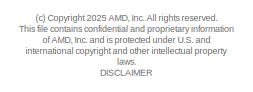
[diagram: root canvas - part 1/3, top left region]
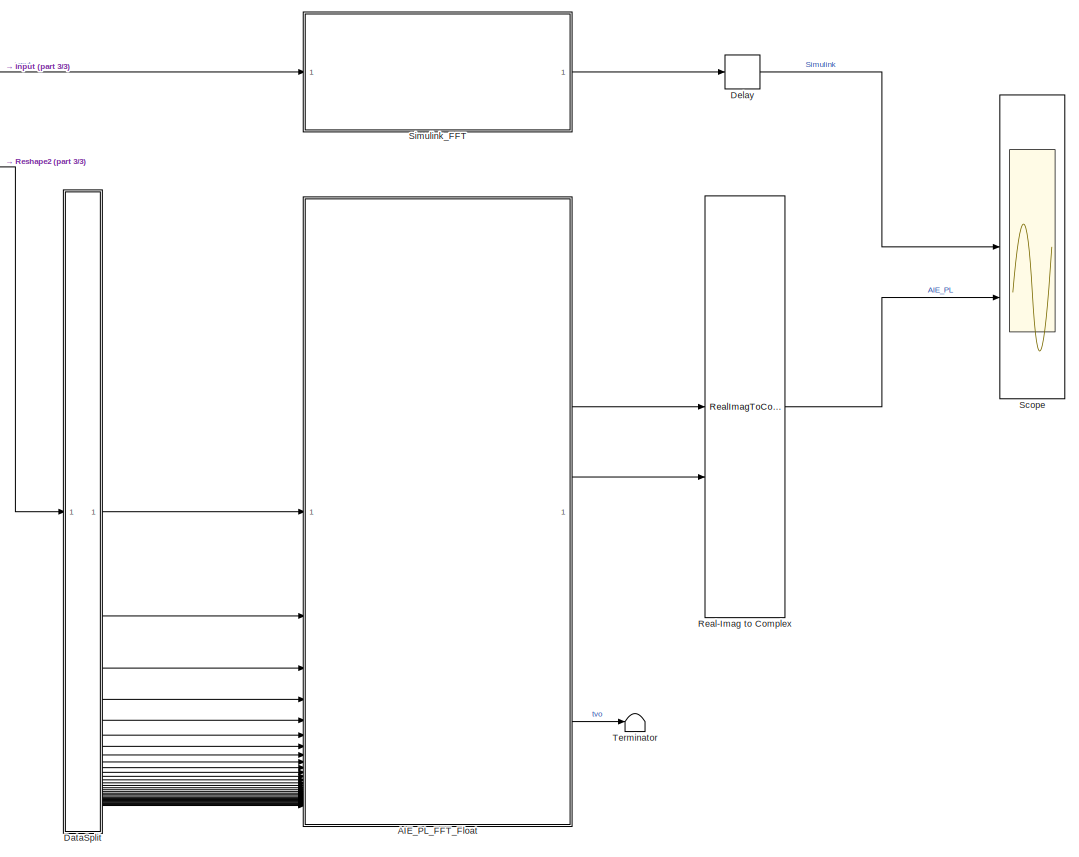
[diagram: root canvas - part 2/3, right side, full height]
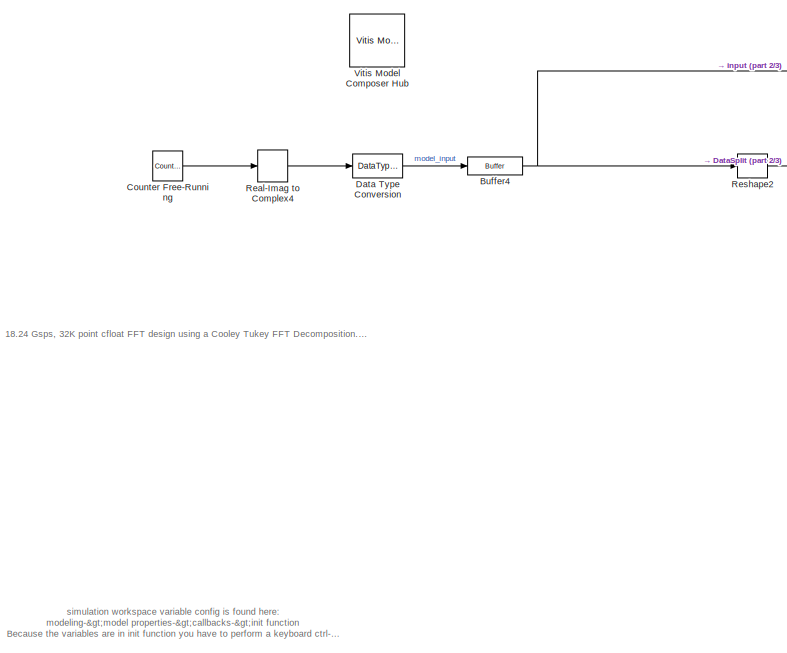
[diagram: root canvas - part 3/3, central region]
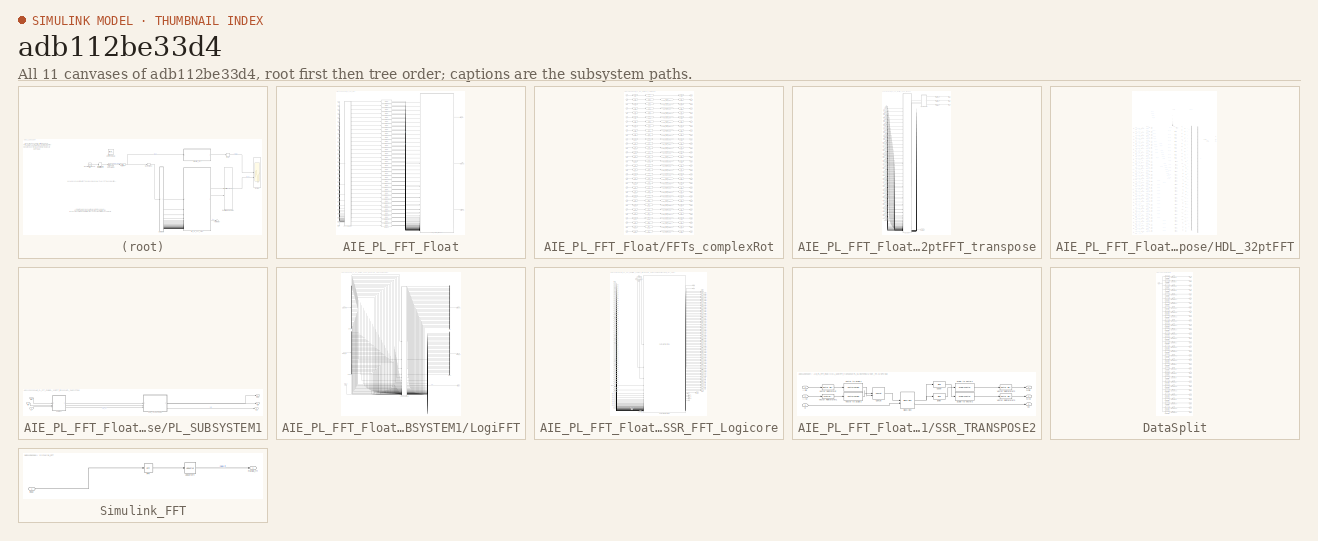
[diagram: thumbnail index - all 11 canvases of the model, root first then tree order]
MODEL slx_adb112be33d4
KIND model
CONFIG AbsTol = auto
CONFIG EnableMultiTasking = off
CONFIG FixedStep = auto
CONFIG InitFcn = clk_freq = 570e6;\nSSR=32; % transpose block SSR settings...\nsample_period = 1/(SSR*clk_freq);\nN=32768; % fft point size\nbinw=(1/sample_period) / (2*N); % bin width\nbin_freq = 2*pi*3*binw+pi*binw; % sin, cos freq centered in channel\n\n% for transpose block\nDATA_WIDTH=32;\nM=32;\nN1=N/M;\nMEM_STYLE=4; % MEM OPTIONS: 4 - ULTRA, 0 - AUTO, 1 - BRAM, 5 - MIXED
CONFIG MaxStep = auto
CONFIG MinStep = auto
CONFIG PreLoadFcn = clk_freq = 570e6;\nSSR=32; % transpose block SSR settings...\nsample_period = 1/(SSR*clk_freq); \nN=32768; % fft point size\nbinw=(1/sample_period) / (2*N); % bin width\nbin_freq = 2*pi*3*binw+pi*binw; % sin, cos freq centered in channel\n\n% for transpose block\nDATA_WIDTH=32;\nM=32;\nN1=N/M;\nMEM_STYLE=4; % MEM OPTIONS: 4 - ULTRA, 0 - AUTO, 1 - BRAM, 5 - MIXED
CONFIG RelTol = 1e-3
CONFIG SampleTimeConstraint = Unconstrained
CONFIG SolverName = VariableStepAuto
CONFIG StartTime = 0.0
CONFIG StopTime = sample_period*N*6
BLOCK [SubSystem] AIE_PL_FFT_Float
BLOCK [Reference] AIE_PL_FFT_Float/AIE to HDL  REF=aieUtilities/AIE to HDL
  SourceBlock = aieUtilities/AIE to HDL
  SourceType = AIE to HDL
BLOCK [Reference] AIE_PL_FFT_Float/AIE to HDL1  REF=aieUtilities/AIE to HDL
  SourceBlock = aieUtilities/AIE to HDL
  SourceType = AIE to HDL
BLOCK [Reference] AIE_PL_FFT_Float/AIE to HDL10  REF=aieUtilities/AIE to HDL
  SourceBlock = aieUtilities/AIE to HDL
  SourceType = AIE to HDL
BLOCK [Reference] AIE_PL_FFT_Float/AIE to HDL11  REF=aieUtilities/AIE to HDL
  SourceBlock = aieUtilities/AIE to HDL
  SourceType = AIE to HDL
BLOCK [Reference] AIE_PL_FFT_Float/AIE to HDL12  REF=aieUtilities/AIE to HDL
  SourceBlock = aieUtilities/AIE to HDL
  SourceType = AIE to HDL
BLOCK [Reference] AIE_PL_FFT_Float/AIE to HDL13  REF=aieUtilities/AIE to HDL
  SourceBlock = aieUtilities/AIE to HDL
  SourceType = AIE to HDL
BLOCK [Reference] AIE_PL_FFT_Float/AIE to HDL14  REF=aieUtilities/AIE to HDL
  SourceBlock = aieUtilities/AIE to HDL
  SourceType = AIE to HDL
BLOCK [Reference] AIE_PL_FFT_Float/AIE to HDL15  REF=aieUtilities/AIE to HDL
  SourceBlock = aieUtilities/AIE to HDL
  SourceType = AIE to HDL
BLOCK [Reference] AIE_PL_FFT_Float/AIE to HDL16  REF=aieUtilities/AIE to HDL
  SourceBlock = aieUtilities/AIE to HDL
  SourceType = AIE to HDL
BLOCK [Reference] AIE_PL_FFT_Float/AIE to HDL17  REF=aieUtilities/AIE to HDL
  SourceBlock = aieUtilities/AIE to HDL
  SourceType = AIE to HDL
BLOCK [Reference] AIE_PL_FFT_Float/AIE to HDL18  REF=aieUtilities/AIE to HDL
  SourceBlock = aieUtilities/AIE to HDL
  SourceType = AIE to HDL
BLOCK [Reference] AIE_PL_FFT_Float/AIE to HDL19  REF=aieUtilities/AIE to HDL
  SourceBlock = aieUtilities/AIE to HDL
  SourceType = AIE to HDL
BLOCK [Reference] AIE_PL_FFT_Float/AIE to HDL2  REF=aieUtilities/AIE to HDL
  SourceBlock = aieUtilities/AIE to HDL
  SourceType = AIE to HDL
BLOCK [Reference] AIE_PL_FFT_Float/AIE to HDL20  REF=aieUtilities/AIE to HDL
  SourceBlock = aieUtilities/AIE to HDL
  SourceType = AIE to HDL
BLOCK [Reference] AIE_PL_FFT_Float/AIE to HDL21  REF=aieUtilities/AIE to HDL
  SourceBlock = aieUtilities/AIE to HDL
  SourceType = AIE to HDL
BLOCK [Reference] AIE_PL_FFT_Float/AIE to HDL22  REF=aieUtilities/AIE to HDL
  SourceBlock = aieUtilities/AIE to HDL
  SourceType = AIE to HDL
BLOCK [Reference] AIE_PL_FFT_Float/AIE to HDL23  REF=aieUtilities/AIE to HDL
  SourceBlock = aieUtilities/AIE to HDL
  SourceType = AIE to HDL
BLOCK [Reference] AIE_PL_FFT_Float/AIE to HDL24  REF=aieUtilities/AIE to HDL
  SourceBlock = aieUtilities/AIE to HDL
  SourceType = AIE to HDL
BLOCK [Reference] AIE_PL_FFT_Float/AIE to HDL25  REF=aieUtilities/AIE to HDL
  SourceBlock = aieUtilities/AIE to HDL
  SourceType = AIE to HDL
BLOCK [Reference] AIE_PL_FFT_Float/AIE to HDL26  REF=aieUtilities/AIE to HDL
  SourceBlock = aieUtilities/AIE to HDL
  SourceType = AIE to HDL
BLOCK [Reference] AIE_PL_FFT_Float/AIE to HDL27  REF=aieUtilities/AIE to HDL
  SourceBlock = aieUtilities/AIE to HDL
  SourceType = AIE to HDL
BLOCK [Reference] AIE_PL_FFT_Float/AIE to HDL28  REF=aieUtilities/AIE to HDL
  SourceBlock = aieUtilities/AIE to HDL
  SourceType = AIE to HDL
BLOCK [Reference] AIE_PL_FFT_Float/AIE to HDL29  REF=aieUtilities/AIE to HDL
  SourceBlock = aieUtilities/AIE to HDL
  SourceType = AIE to HDL
BLOCK [Reference] AIE_PL_FFT_Float/AIE to HDL3  REF=aieUtilities/AIE to HDL
  SourceBlock = aieUtilities/AIE to HDL
  SourceType = AIE to HDL
BLOCK [Reference] AIE_PL_FFT_Float/AIE to HDL30  REF=aieUtilities/AIE to HDL
  SourceBlock = aieUtilities/AIE to HDL
  SourceType = AIE to HDL
BLOCK [Reference] AIE_PL_FFT_Float/AIE to HDL31  REF=aieUtilities/AIE to HDL
  SourceBlock = aieUtilities/AIE to HDL
  SourceType = AIE to HDL
BLOCK [Reference] AIE_PL_FFT_Float/AIE to HDL4  REF=aieUtilities/AIE to HDL
  SourceBlock = aieUtilities/AIE to HDL
  SourceType = AIE to HDL
BLOCK [Reference] AIE_PL_FFT_Float/AIE to HDL5  REF=aieUtilities/AIE to HDL
  SourceBlock = aieUtilities/AIE to HDL
  SourceType = AIE to HDL
BLOCK [Reference] AIE_PL_FFT_Float/AIE to HDL6  REF=aieUtilities/AIE to HDL
  SourceBlock = aieUtilities/AIE to HDL
  SourceType = AIE to HDL
BLOCK [Reference] AIE_PL_FFT_Float/AIE to HDL7  REF=aieUtilities/AIE to HDL
  SourceBlock = aieUtilities/AIE to HDL
  SourceType = AIE to HDL
BLOCK [Reference] AIE_PL_FFT_Float/AIE to HDL8  REF=aieUtilities/AIE to HDL
  SourceBlock = aieUtilities/AIE to HDL
  SourceType = AIE to HDL
BLOCK [Reference] AIE_PL_FFT_Float/AIE to HDL9  REF=aieUtilities/AIE to HDL
  SourceBlock = aieUtilities/AIE to HDL
  SourceType = AIE to HDL
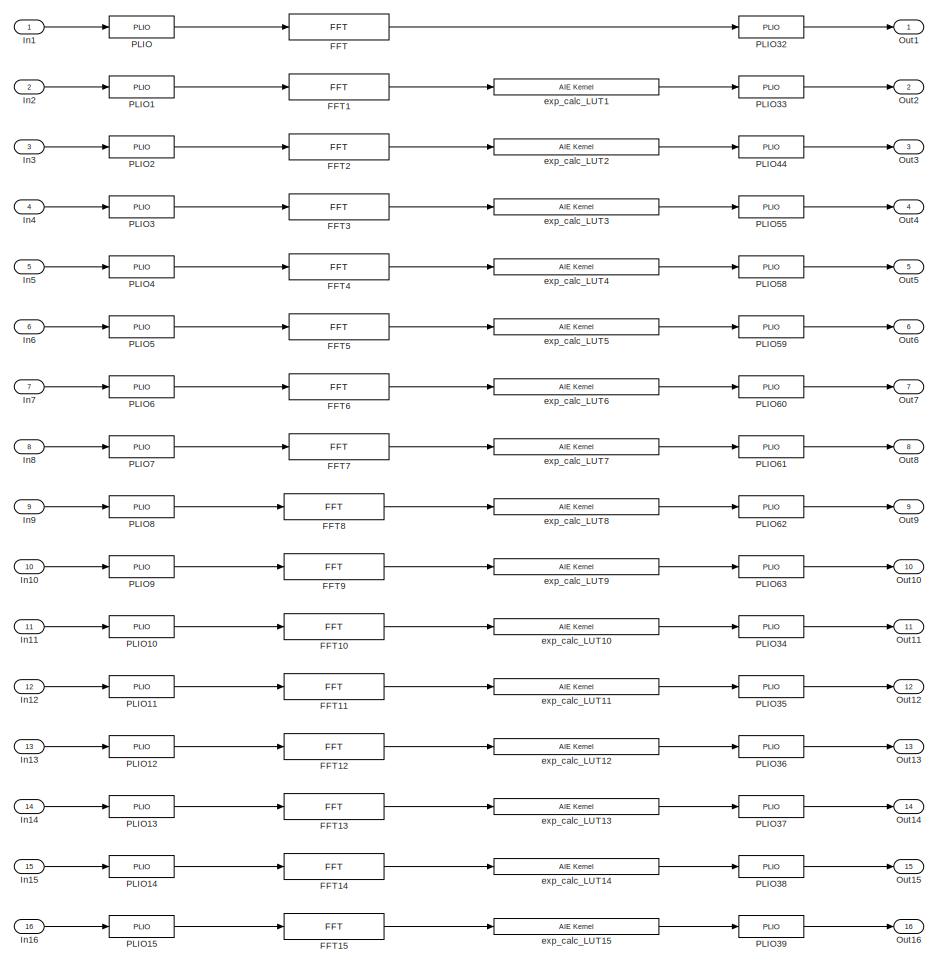
[diagram: AIE_PL_FFT_Float/FFTs_complexRot - part 1/2, full width, top band]
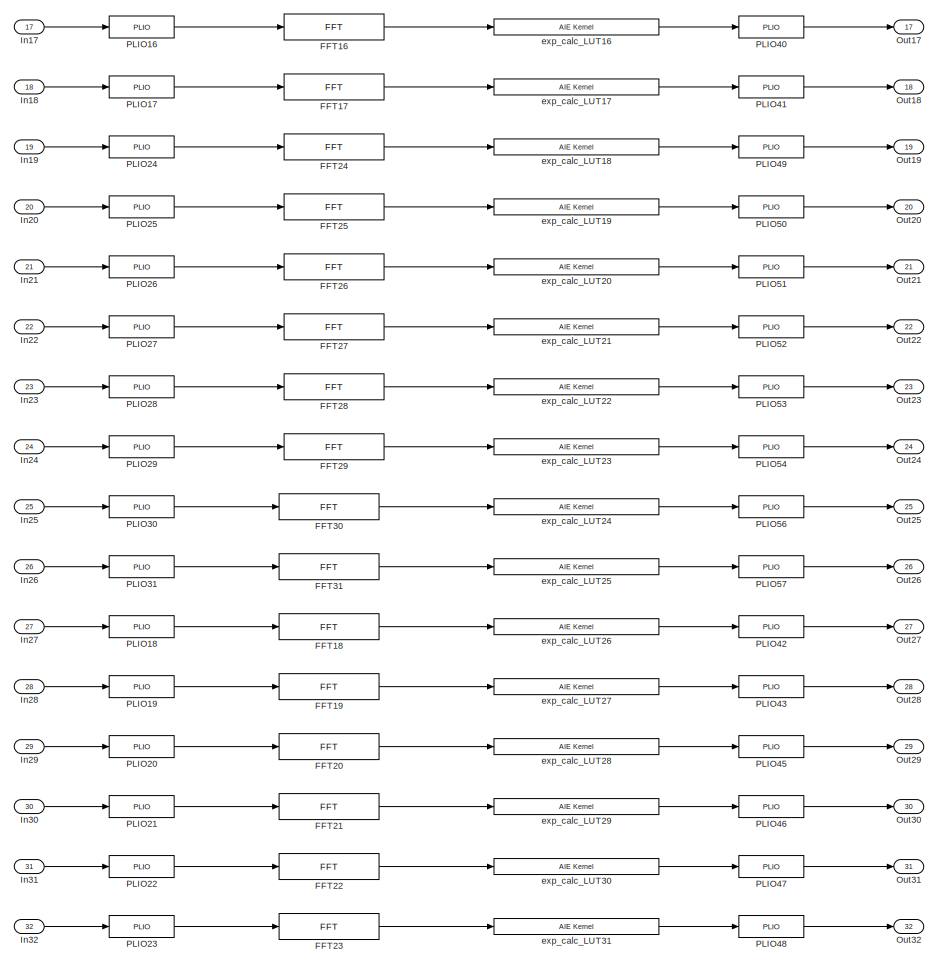
[diagram: AIE_PL_FFT_Float/FFTs_complexRot - part 2/2, full width, bottom band]
BLOCK [SubSystem] AIE_PL_FFT_Float/FFTs_complexRot
BLOCK [Reference] AIE_PL_FFT_Float/FFTs_complexRot/FFT  REF=aieDSP/FFT
  SourceBlock = aieDSP/FFT
  SourceType = FFT
BLOCK [Reference] AIE_PL_FFT_Float/FFTs_complexRot/FFT1  REF=aieDSP/FFT
  SourceBlock = aieDSP/FFT
  SourceType = FFT
BLOCK [Reference] AIE_PL_FFT_Float/FFTs_complexRot/FFT10  REF=aieDSP/FFT
  SourceBlock = aieDSP/FFT
  SourceType = FFT
BLOCK [Reference] AIE_PL_FFT_Float/FFTs_complexRot/FFT11  REF=aieDSP/FFT
  SourceBlock = aieDSP/FFT
  SourceType = FFT
BLOCK [Reference] AIE_PL_FFT_Float/FFTs_complexRot/FFT12  REF=aieDSP/FFT
  SourceBlock = aieDSP/FFT
  SourceType = FFT
BLOCK [Reference] AIE_PL_FFT_Float/FFTs_complexRot/FFT13  REF=aieDSP/FFT
  SourceBlock = aieDSP/FFT
  SourceType = FFT
BLOCK [Reference] AIE_PL_FFT_Float/FFTs_complexRot/FFT14  REF=aieDSP/FFT
  SourceBlock = aieDSP/FFT
  SourceType = FFT
BLOCK [Reference] AIE_PL_FFT_Float/FFTs_complexRot/FFT15  REF=aieDSP/FFT
  SourceBlock = aieDSP/FFT
  SourceType = FFT
BLOCK [Reference] AIE_PL_FFT_Float/FFTs_complexRot/FFT16  REF=aieDSP/FFT
  SourceBlock = aieDSP/FFT
  SourceType = FFT
BLOCK [Reference] AIE_PL_FFT_Float/FFTs_complexRot/FFT17  REF=aieDSP/FFT
  SourceBlock = aieDSP/FFT
  SourceType = FFT
BLOCK [Reference] AIE_PL_FFT_Float/FFTs_complexRot/FFT18  REF=aieDSP/FFT
  SourceBlock = aieDSP/FFT
  SourceType = FFT
BLOCK [Reference] AIE_PL_FFT_Float/FFTs_complexRot/FFT19  REF=aieDSP/FFT
  SourceBlock = aieDSP/FFT
  SourceType = FFT
BLOCK [Reference] AIE_PL_FFT_Float/FFTs_complexRot/FFT2  REF=aieDSP/FFT
  SourceBlock = aieDSP/FFT
  SourceType = FFT
BLOCK [Reference] AIE_PL_FFT_Float/FFTs_complexRot/FFT20  REF=aieDSP/FFT
  SourceBlock = aieDSP/FFT
  SourceType = FFT
BLOCK [Reference] AIE_PL_FFT_Float/FFTs_complexRot/FFT21  REF=aieDSP/FFT
  SourceBlock = aieDSP/FFT
  SourceType = FFT
BLOCK [Reference] AIE_PL_FFT_Float/FFTs_complexRot/FFT22  REF=aieDSP/FFT
  SourceBlock = aieDSP/FFT
  SourceType = FFT
BLOCK [Reference] AIE_PL_FFT_Float/FFTs_complexRot/FFT23  REF=aieDSP/FFT
  SourceBlock = aieDSP/FFT
  SourceType = FFT
BLOCK [Reference] AIE_PL_FFT_Float/FFTs_complexRot/FFT24  REF=aieDSP/FFT
  SourceBlock = aieDSP/FFT
  SourceType = FFT
BLOCK [Reference] AIE_PL_FFT_Float/FFTs_complexRot/FFT25  REF=aieDSP/FFT
  SourceBlock = aieDSP/FFT
  SourceType = FFT
BLOCK [Reference] AIE_PL_FFT_Float/FFTs_complexRot/FFT26  REF=aieDSP/FFT
  SourceBlock = aieDSP/FFT
  SourceType = FFT
BLOCK [Reference] AIE_PL_FFT_Float/FFTs_complexRot/FFT27  REF=aieDSP/FFT
  SourceBlock = aieDSP/FFT
  SourceType = FFT
BLOCK [Reference] AIE_PL_FFT_Float/FFTs_complexRot/FFT28  REF=aieDSP/FFT
  SourceBlock = aieDSP/FFT
  SourceType = FFT
BLOCK [Reference] AIE_PL_FFT_Float/FFTs_complexRot/FFT29  REF=aieDSP/FFT
  SourceBlock = aieDSP/FFT
  SourceType = FFT
BLOCK [Reference] AIE_PL_FFT_Float/FFTs_complexRot/FFT3  REF=aieDSP/FFT
  SourceBlock = aieDSP/FFT
  SourceType = FFT
BLOCK [Reference] AIE_PL_FFT_Float/FFTs_complexRot/FFT30  REF=aieDSP/FFT
  SourceBlock = aieDSP/FFT
  SourceType = FFT
BLOCK [Reference] AIE_PL_FFT_Float/FFTs_complexRot/FFT31  REF=aieDSP/FFT
  SourceBlock = aieDSP/FFT
  SourceType = FFT
BLOCK [Reference] AIE_PL_FFT_Float/FFTs_complexRot/FFT4  REF=aieDSP/FFT
  SourceBlock = aieDSP/FFT
  SourceType = FFT
BLOCK [Reference] AIE_PL_FFT_Float/FFTs_complexRot/FFT5  REF=aieDSP/FFT
  SourceBlock = aieDSP/FFT
  SourceType = FFT
BLOCK [Reference] AIE_PL_FFT_Float/FFTs_complexRot/FFT6  REF=aieDSP/FFT
  SourceBlock = aieDSP/FFT
  SourceType = FFT
BLOCK [Reference] AIE_PL_FFT_Float/FFTs_complexRot/FFT7  REF=aieDSP/FFT
  SourceBlock = aieDSP/FFT
  SourceType = FFT
BLOCK [Reference] AIE_PL_FFT_Float/FFTs_complexRot/FFT8  REF=aieDSP/FFT
  SourceBlock = aieDSP/FFT
  SourceType = FFT
BLOCK [Reference] AIE_PL_FFT_Float/FFTs_complexRot/FFT9  REF=aieDSP/FFT
  SourceBlock = aieDSP/FFT
  SourceType = FFT
BLOCK [Inport] AIE_PL_FFT_Float/FFTs_complexRot/In1
BLOCK [Inport] AIE_PL_FFT_Float/FFTs_complexRot/In10
  Port = 10
BLOCK [Inport] AIE_PL_FFT_Float/FFTs_complexRot/In11
  Port = 11
BLOCK [Inport] AIE_PL_FFT_Float/FFTs_complexRot/In12
  Port = 12
BLOCK [Inport] AIE_PL_FFT_Float/FFTs_complexRot/In13
  Port = 13
BLOCK [Inport] AIE_PL_FFT_Float/FFTs_complexRot/In14
  Port = 14
BLOCK [Inport] AIE_PL_FFT_Float/FFTs_complexRot/In15
  Port = 15
BLOCK [Inport] AIE_PL_FFT_Float/FFTs_complexRot/In16
  Port = 16
BLOCK [Inport] AIE_PL_FFT_Float/FFTs_complexRot/In17
  Port = 17
BLOCK [Inport] AIE_PL_FFT_Float/FFTs_complexRot/In18
  Port = 18
BLOCK [Inport] AIE_PL_FFT_Float/FFTs_complexRot/In19
  Port = 19
BLOCK [Inport] AIE_PL_FFT_Float/FFTs_complexRot/In2
  Port = 2
BLOCK [Inport] AIE_PL_FFT_Float/FFTs_complexRot/In20
  Port = 20
BLOCK [Inport] AIE_PL_FFT_Float/FFTs_complexRot/In21
  Port = 21
BLOCK [Inport] AIE_PL_FFT_Float/FFTs_complexRot/In22
  Port = 22
BLOCK [Inport] AIE_PL_FFT_Float/FFTs_complexRot/In23
  Port = 23
BLOCK [Inport] AIE_PL_FFT_Float/FFTs_complexRot/In24
  Port = 24
BLOCK [Inport] AIE_PL_FFT_Float/FFTs_complexRot/In25
  Port = 25
BLOCK [Inport] AIE_PL_FFT_Float/FFTs_complexRot/In26
  Port = 26
BLOCK [Inport] AIE_PL_FFT_Float/FFTs_complexRot/In27
  Port = 27
BLOCK [Inport] AIE_PL_FFT_Float/FFTs_complexRot/In28
  Port = 28
BLOCK [Inport] AIE_PL_FFT_Float/FFTs_complexRot/In29
  Port = 29
BLOCK [Inport] AIE_PL_FFT_Float/FFTs_complexRot/In3
  Port = 3
BLOCK [Inport] AIE_PL_FFT_Float/FFTs_complexRot/In30
  Port = 30
BLOCK [Inport] AIE_PL_FFT_Float/FFTs_complexRot/In31
  Port = 31
BLOCK [Inport] AIE_PL_FFT_Float/FFTs_complexRot/In32
  Port = 32
BLOCK [Inport] AIE_PL_FFT_Float/FFTs_complexRot/In4
  Port = 4
BLOCK [Inport] AIE_PL_FFT_Float/FFTs_complexRot/In5
  Port = 5
BLOCK [Inport] AIE_PL_FFT_Float/FFTs_complexRot/In6
  Port = 6
BLOCK [Inport] AIE_PL_FFT_Float/FFTs_complexRot/In7
  Port = 7
BLOCK [Inport] AIE_PL_FFT_Float/FFTs_complexRot/In8
  Port = 8
BLOCK [Inport] AIE_PL_FFT_Float/FFTs_complexRot/In9
  Port = 9
BLOCK [Outport] AIE_PL_FFT_Float/FFTs_complexRot/Out1
BLOCK [Outport] AIE_PL_FFT_Float/FFTs_complexRot/Out10
  Port = 10
BLOCK [Outport] AIE_PL_FFT_Float/FFTs_complexRot/Out11
  Port = 11
BLOCK [Outport] AIE_PL_FFT_Float/FFTs_complexRot/Out12
  Port = 12
BLOCK [Outport] AIE_PL_FFT_Float/FFTs_complexRot/Out13
  Port = 13
BLOCK [Outport] AIE_PL_FFT_Float/FFTs_complexRot/Out14
  Port = 14
BLOCK [Outport] AIE_PL_FFT_Float/FFTs_complexRot/Out15
  Port = 15
BLOCK [Outport] AIE_PL_FFT_Float/FFTs_complexRot/Out16
  Port = 16
BLOCK [Outport] AIE_PL_FFT_Float/FFTs_complexRot/Out17
  Port = 17
BLOCK [Outport] AIE_PL_FFT_Float/FFTs_complexRot/Out18
  Port = 18
BLOCK [Outport] AIE_PL_FFT_Float/FFTs_complexRot/Out19
  Port = 19
BLOCK [Outport] AIE_PL_FFT_Float/FFTs_complexRot/Out2
  Port = 2
BLOCK [Outport] AIE_PL_FFT_Float/FFTs_complexRot/Out20
  Port = 20
BLOCK [Outport] AIE_PL_FFT_Float/FFTs_complexRot/Out21
  Port = 21
BLOCK [Outport] AIE_PL_FFT_Float/FFTs_complexRot/Out22
  Port = 22
BLOCK [Outport] AIE_PL_FFT_Float/FFTs_complexRot/Out23
  Port = 23
BLOCK [Outport] AIE_PL_FFT_Float/FFTs_complexRot/Out24
  Port = 24
BLOCK [Outport] AIE_PL_FFT_Float/FFTs_complexRot/Out25
  Port = 25
BLOCK [Outport] AIE_PL_FFT_Float/FFTs_complexRot/Out26
  Port = 26
BLOCK [Outport] AIE_PL_FFT_Float/FFTs_complexRot/Out27
  Port = 27
BLOCK [Outport] AIE_PL_FFT_Float/FFTs_complexRot/Out28
  Port = 28
BLOCK [Outport] AIE_PL_FFT_Float/FFTs_complexRot/Out29
  Port = 29
BLOCK [Outport] AIE_PL_FFT_Float/FFTs_complexRot/Out3
  Port = 3
BLOCK [Outport] AIE_PL_FFT_Float/FFTs_complexRot/Out30
  Port = 30
BLOCK [Outport] AIE_PL_FFT_Float/FFTs_complexRot/Out31
  Port = 31
BLOCK [Outport] AIE_PL_FFT_Float/FFTs_complexRot/Out32
  Port = 32
BLOCK [Outport] AIE_PL_FFT_Float/FFTs_complexRot/Out4
  Port = 4
BLOCK [Outport] AIE_PL_FFT_Float/FFTs_complexRot/Out5
  Port = 5
BLOCK [Outport] AIE_PL_FFT_Float/FFTs_complexRot/Out6
  Port = 6
BLOCK [Outport] AIE_PL_FFT_Float/FFTs_complexRot/Out7
  Port = 7
BLOCK [Outport] AIE_PL_FFT_Float/FFTs_complexRot/Out8
  Port = 8
BLOCK [Outport] AIE_PL_FFT_Float/FFTs_complexRot/Out9
  Port = 9
BLOCK [Reference] AIE_PL_FFT_Float/FFTs_complexRot/PLIO  REF=aieBasic/PLIO
  SourceBlock = aieBasic/PLIO
  SourceType = PLIO
BLOCK [Reference] AIE_PL_FFT_Float/FFTs_complexRot/PLIO1  REF=aieBasic/PLIO
  SourceBlock = aieBasic/PLIO
  SourceType = PLIO
BLOCK [Reference] AIE_PL_FFT_Float/FFTs_complexRot/PLIO10  REF=aieBasic/PLIO
  SourceBlock = aieBasic/PLIO
  SourceType = PLIO
BLOCK [Reference] AIE_PL_FFT_Float/FFTs_complexRot/PLIO11  REF=aieBasic/PLIO
  SourceBlock = aieBasic/PLIO
  SourceType = PLIO
BLOCK [Reference] AIE_PL_FFT_Float/FFTs_complexRot/PLIO12  REF=aieBasic/PLIO
  SourceBlock = aieBasic/PLIO
  SourceType = PLIO
BLOCK [Reference] AIE_PL_FFT_Float/FFTs_complexRot/PLIO13  REF=aieBasic/PLIO
  SourceBlock = aieBasic/PLIO
  SourceType = PLIO
BLOCK [Reference] AIE_PL_FFT_Float/FFTs_complexRot/PLIO14  REF=aieBasic/PLIO
  SourceBlock = aieBasic/PLIO
  SourceType = PLIO
BLOCK [Reference] AIE_PL_FFT_Float/FFTs_complexRot/PLIO15  REF=aieBasic/PLIO
  SourceBlock = aieBasic/PLIO
  SourceType = PLIO
BLOCK [Reference] AIE_PL_FFT_Float/FFTs_complexRot/PLIO16  REF=aieBasic/PLIO
  SourceBlock = aieBasic/PLIO
  SourceType = PLIO
BLOCK [Reference] AIE_PL_FFT_Float/FFTs_complexRot/PLIO17  REF=aieBasic/PLIO
  SourceBlock = aieBasic/PLIO
  SourceType = PLIO
BLOCK [Reference] AIE_PL_FFT_Float/FFTs_complexRot/PLIO18  REF=aieBasic/PLIO
  SourceBlock = aieBasic/PLIO
  SourceType = PLIO
BLOCK [Reference] AIE_PL_FFT_Float/FFTs_complexRot/PLIO19  REF=aieBasic/PLIO
  SourceBlock = aieBasic/PLIO
  SourceType = PLIO
BLOCK [Reference] AIE_PL_FFT_Float/FFTs_complexRot/PLIO2  REF=aieBasic/PLIO
  SourceBlock = aieBasic/PLIO
  SourceType = PLIO
BLOCK [Reference] AIE_PL_FFT_Float/FFTs_complexRot/PLIO20  REF=aieBasic/PLIO
  SourceBlock = aieBasic/PLIO
  SourceType = PLIO
BLOCK [Reference] AIE_PL_FFT_Float/FFTs_complexRot/PLIO21  REF=aieBasic/PLIO
  SourceBlock = aieBasic/PLIO
  SourceType = PLIO
BLOCK [Reference] AIE_PL_FFT_Float/FFTs_complexRot/PLIO22  REF=aieBasic/PLIO
  SourceBlock = aieBasic/PLIO
  SourceType = PLIO
BLOCK [Reference] AIE_PL_FFT_Float/FFTs_complexRot/PLIO23  REF=aieBasic/PLIO
  SourceBlock = aieBasic/PLIO
  SourceType = PLIO
BLOCK [Reference] AIE_PL_FFT_Float/FFTs_complexRot/PLIO24  REF=aieBasic/PLIO
  SourceBlock = aieBasic/PLIO
  SourceType = PLIO
BLOCK [Reference] AIE_PL_FFT_Float/FFTs_complexRot/PLIO25  REF=aieBasic/PLIO
  SourceBlock = aieBasic/PLIO
  SourceType = PLIO
BLOCK [Reference] AIE_PL_FFT_Float/FFTs_complexRot/PLIO26  REF=aieBasic/PLIO
  SourceBlock = aieBasic/PLIO
  SourceType = PLIO
BLOCK [Reference] AIE_PL_FFT_Float/FFTs_complexRot/PLIO27  REF=aieBasic/PLIO
  SourceBlock = aieBasic/PLIO
  SourceType = PLIO
BLOCK [Reference] AIE_PL_FFT_Float/FFTs_complexRot/PLIO28  REF=aieBasic/PLIO
  SourceBlock = aieBasic/PLIO
  SourceType = PLIO
BLOCK [Reference] AIE_PL_FFT_Float/FFTs_complexRot/PLIO29  REF=aieBasic/PLIO
  SourceBlock = aieBasic/PLIO
  SourceType = PLIO
BLOCK [Reference] AIE_PL_FFT_Float/FFTs_complexRot/PLIO3  REF=aieBasic/PLIO
  SourceBlock = aieBasic/PLIO
  SourceType = PLIO
BLOCK [Reference] AIE_PL_FFT_Float/FFTs_complexRot/PLIO30  REF=aieBasic/PLIO
  SourceBlock = aieBasic/PLIO
  SourceType = PLIO
BLOCK [Reference] AIE_PL_FFT_Float/FFTs_complexRot/PLIO31  REF=aieBasic/PLIO
  SourceBlock = aieBasic/PLIO
  SourceType = PLIO
BLOCK [Reference] AIE_PL_FFT_Float/FFTs_complexRot/PLIO32  REF=aieBasic/PLIO
  SourceBlock = aieBasic/PLIO
  SourceType = PLIO
BLOCK [Reference] AIE_PL_FFT_Float/FFTs_complexRot/PLIO33  REF=aieBasic/PLIO
  SourceBlock = aieBasic/PLIO
  SourceType = PLIO
BLOCK [Reference] AIE_PL_FFT_Float/FFTs_complexRot/PLIO34  REF=aieBasic/PLIO
  SourceBlock = aieBasic/PLIO
  SourceType = PLIO
BLOCK [Reference] AIE_PL_FFT_Float/FFTs_complexRot/PLIO35  REF=aieBasic/PLIO
  SourceBlock = aieBasic/PLIO
  SourceType = PLIO
BLOCK [Reference] AIE_PL_FFT_Float/FFTs_complexRot/PLIO36  REF=aieBasic/PLIO
  SourceBlock = aieBasic/PLIO
  SourceType = PLIO
BLOCK [Reference] AIE_PL_FFT_Float/FFTs_complexRot/PLIO37  REF=aieBasic/PLIO
  SourceBlock = aieBasic/PLIO
  SourceType = PLIO
BLOCK [Reference] AIE_PL_FFT_Float/FFTs_complexRot/PLIO38  REF=aieBasic/PLIO
  SourceBlock = aieBasic/PLIO
  SourceType = PLIO
BLOCK [Reference] AIE_PL_FFT_Float/FFTs_complexRot/PLIO39  REF=aieBasic/PLIO
  SourceBlock = aieBasic/PLIO
  SourceType = PLIO
BLOCK [Reference] AIE_PL_FFT_Float/FFTs_complexRot/PLIO4  REF=aieBasic/PLIO
  SourceBlock = aieBasic/PLIO
  SourceType = PLIO
BLOCK [Reference] AIE_PL_FFT_Float/FFTs_complexRot/PLIO40  REF=aieBasic/PLIO
  SourceBlock = aieBasic/PLIO
  SourceType = PLIO
BLOCK [Reference] AIE_PL_FFT_Float/FFTs_complexRot/PLIO41  REF=aieBasic/PLIO
  SourceBlock = aieBasic/PLIO
  SourceType = PLIO
BLOCK [Reference] AIE_PL_FFT_Float/FFTs_complexRot/PLIO42  REF=aieBasic/PLIO
  SourceBlock = aieBasic/PLIO
  SourceType = PLIO
BLOCK [Reference] AIE_PL_FFT_Float/FFTs_complexRot/PLIO43  REF=aieBasic/PLIO
  SourceBlock = aieBasic/PLIO
  SourceType = PLIO
BLOCK [Reference] AIE_PL_FFT_Float/FFTs_complexRot/PLIO44  REF=aieBasic/PLIO
  SourceBlock = aieBasic/PLIO
  SourceType = PLIO
BLOCK [Reference] AIE_PL_FFT_Float/FFTs_complexRot/PLIO45  REF=aieBasic/PLIO
  SourceBlock = aieBasic/PLIO
  SourceType = PLIO
BLOCK [Reference] AIE_PL_FFT_Float/FFTs_complexRot/PLIO46  REF=aieBasic/PLIO
  SourceBlock = aieBasic/PLIO
  SourceType = PLIO
BLOCK [Reference] AIE_PL_FFT_Float/FFTs_complexRot/PLIO47  REF=aieBasic/PLIO
  SourceBlock = aieBasic/PLIO
  SourceType = PLIO
BLOCK [Reference] AIE_PL_FFT_Float/FFTs_complexRot/PLIO48  REF=aieBasic/PLIO
  SourceBlock = aieBasic/PLIO
  SourceType = PLIO
BLOCK [Reference] AIE_PL_FFT_Float/FFTs_complexRot/PLIO49  REF=aieBasic/PLIO
  SourceBlock = aieBasic/PLIO
  SourceType = PLIO
BLOCK [Reference] AIE_PL_FFT_Float/FFTs_complexRot/PLIO5  REF=aieBasic/PLIO
  SourceBlock = aieBasic/PLIO
  SourceType = PLIO
BLOCK [Reference] AIE_PL_FFT_Float/FFTs_complexRot/PLIO50  REF=aieBasic/PLIO
  SourceBlock = aieBasic/PLIO
  SourceType = PLIO
BLOCK [Reference] AIE_PL_FFT_Float/FFTs_complexRot/PLIO51  REF=aieBasic/PLIO
  SourceBlock = aieBasic/PLIO
  SourceType = PLIO
BLOCK [Reference] AIE_PL_FFT_Float/FFTs_complexRot/PLIO52  REF=aieBasic/PLIO
  SourceBlock = aieBasic/PLIO
  SourceType = PLIO
BLOCK [Reference] AIE_PL_FFT_Float/FFTs_complexRot/PLIO53  REF=aieBasic/PLIO
  SourceBlock = aieBasic/PLIO
  SourceType = PLIO
BLOCK [Reference] AIE_PL_FFT_Float/FFTs_complexRot/PLIO54  REF=aieBasic/PLIO
  SourceBlock = aieBasic/PLIO
  SourceType = PLIO
BLOCK [Reference] AIE_PL_FFT_Float/FFTs_complexRot/PLIO55  REF=aieBasic/PLIO
  SourceBlock = aieBasic/PLIO
  SourceType = PLIO
BLOCK [Reference] AIE_PL_FFT_Float/FFTs_complexRot/PLIO56  REF=aieBasic/PLIO
  SourceBlock = aieBasic/PLIO
  SourceType = PLIO
BLOCK [Reference] AIE_PL_FFT_Float/FFTs_complexRot/PLIO57  REF=aieBasic/PLIO
  SourceBlock = aieBasic/PLIO
  SourceType = PLIO
BLOCK [Reference] AIE_PL_FFT_Float/FFTs_complexRot/PLIO58  REF=aieBasic/PLIO
  SourceBlock = aieBasic/PLIO
  SourceType = PLIO
BLOCK [Reference] AIE_PL_FFT_Float/FFTs_complexRot/PLIO59  REF=aieBasic/PLIO
  SourceBlock = aieBasic/PLIO
  SourceType = PLIO
BLOCK [Reference] AIE_PL_FFT_Float/FFTs_complexRot/PLIO6  REF=aieBasic/PLIO
  SourceBlock = aieBasic/PLIO
  SourceType = PLIO
BLOCK [Reference] AIE_PL_FFT_Float/FFTs_complexRot/PLIO60  REF=aieBasic/PLIO
  SourceBlock = aieBasic/PLIO
  SourceType = PLIO
BLOCK [Reference] AIE_PL_FFT_Float/FFTs_complexRot/PLIO61  REF=aieBasic/PLIO
  SourceBlock = aieBasic/PLIO
  SourceType = PLIO
BLOCK [Reference] AIE_PL_FFT_Float/FFTs_complexRot/PLIO62  REF=aieBasic/PLIO
  SourceBlock = aieBasic/PLIO
  SourceType = PLIO
BLOCK [Reference] AIE_PL_FFT_Float/FFTs_complexRot/PLIO63  REF=aieBasic/PLIO
  SourceBlock = aieBasic/PLIO
  SourceType = PLIO
BLOCK [Reference] AIE_PL_FFT_Float/FFTs_complexRot/PLIO7  REF=aieBasic/PLIO
  SourceBlock = aieBasic/PLIO
  SourceType = PLIO
BLOCK [Reference] AIE_PL_FFT_Float/FFTs_complexRot/PLIO8  REF=aieBasic/PLIO
  SourceBlock = aieBasic/PLIO
  SourceType = PLIO
BLOCK [Reference] AIE_PL_FFT_Float/FFTs_complexRot/PLIO9  REF=aieBasic/PLIO
  SourceBlock = aieBasic/PLIO
  SourceType = PLIO
BLOCK [Reference] AIE_PL_FFT_Float/FFTs_complexRot/exp_calc_LUT1  REF=aieBasic/AIE Kernel
  SourceBlock = aieBasic/AIE Kernel
  SourceType = AIE Kernel Function
BLOCK [Reference] AIE_PL_FFT_Float/FFTs_complexRot/exp_calc_LUT10  REF=aieBasic/AIE Kernel
  SourceBlock = aieBasic/AIE Kernel
  SourceType = AIE Kernel Function
BLOCK [Reference] AIE_PL_FFT_Float/FFTs_complexRot/exp_calc_LUT11  REF=aieBasic/AIE Kernel
  SourceBlock = aieBasic/AIE Kernel
  SourceType = AIE Kernel Function
BLOCK [Reference] AIE_PL_FFT_Float/FFTs_complexRot/exp_calc_LUT12  REF=aieBasic/AIE Kernel
  SourceBlock = aieBasic/AIE Kernel
  SourceType = AIE Kernel Function
BLOCK [Reference] AIE_PL_FFT_Float/FFTs_complexRot/exp_calc_LUT13  REF=aieBasic/AIE Kernel
  SourceBlock = aieBasic/AIE Kernel
  SourceType = AIE Kernel Function
BLOCK [Reference] AIE_PL_FFT_Float/FFTs_complexRot/exp_calc_LUT14  REF=aieBasic/AIE Kernel
  SourceBlock = aieBasic/AIE Kernel
  SourceType = AIE Kernel Function
BLOCK [Reference] AIE_PL_FFT_Float/FFTs_complexRot/exp_calc_LUT15  REF=aieBasic/AIE Kernel
  SourceBlock = aieBasic/AIE Kernel
  SourceType = AIE Kernel Function
BLOCK [Reference] AIE_PL_FFT_Float/FFTs_complexRot/exp_calc_LUT16  REF=aieBasic/AIE Kernel
  SourceBlock = aieBasic/AIE Kernel
  SourceType = AIE Kernel Function
BLOCK [Reference] AIE_PL_FFT_Float/FFTs_complexRot/exp_calc_LUT17  REF=aieBasic/AIE Kernel
  SourceBlock = aieBasic/AIE Kernel
  SourceType = AIE Kernel Function
BLOCK [Reference] AIE_PL_FFT_Float/FFTs_complexRot/exp_calc_LUT18  REF=aieBasic/AIE Kernel
  SourceBlock = aieBasic/AIE Kernel
  SourceType = AIE Kernel Function
BLOCK [Reference] AIE_PL_FFT_Float/FFTs_complexRot/exp_calc_LUT19  REF=aieBasic/AIE Kernel
  SourceBlock = aieBasic/AIE Kernel
  SourceType = AIE Kernel Function
BLOCK [Reference] AIE_PL_FFT_Float/FFTs_complexRot/exp_calc_LUT2  REF=aieBasic/AIE Kernel
  SourceBlock = aieBasic/AIE Kernel
  SourceType = AIE Kernel Function
BLOCK [Reference] AIE_PL_FFT_Float/FFTs_complexRot/exp_calc_LUT20  REF=aieBasic/AIE Kernel
  SourceBlock = aieBasic/AIE Kernel
  SourceType = AIE Kernel Function
BLOCK [Reference] AIE_PL_FFT_Float/FFTs_complexRot/exp_calc_LUT21  REF=aieBasic/AIE Kernel
  SourceBlock = aieBasic/AIE Kernel
  SourceType = AIE Kernel Function
BLOCK [Reference] AIE_PL_FFT_Float/FFTs_complexRot/exp_calc_LUT22  REF=aieBasic/AIE Kernel
  SourceBlock = aieBasic/AIE Kernel
  SourceType = AIE Kernel Function
BLOCK [Reference] AIE_PL_FFT_Float/FFTs_complexRot/exp_calc_LUT23  REF=aieBasic/AIE Kernel
  SourceBlock = aieBasic/AIE Kernel
  SourceType = AIE Kernel Function
BLOCK [Reference] AIE_PL_FFT_Float/FFTs_complexRot/exp_calc_LUT24  REF=aieBasic/AIE Kernel
  SourceBlock = aieBasic/AIE Kernel
  SourceType = AIE Kernel Function
BLOCK [Reference] AIE_PL_FFT_Float/FFTs_complexRot/exp_calc_LUT25  REF=aieBasic/AIE Kernel
  SourceBlock = aieBasic/AIE Kernel
  SourceType = AIE Kernel Function
BLOCK [Reference] AIE_PL_FFT_Float/FFTs_complexRot/exp_calc_LUT26  REF=aieBasic/AIE Kernel
  SourceBlock = aieBasic/AIE Kernel
  SourceType = AIE Kernel Function
BLOCK [Reference] AIE_PL_FFT_Float/FFTs_complexRot/exp_calc_LUT27  REF=aieBasic/AIE Kernel
  SourceBlock = aieBasic/AIE Kernel
  SourceType = AIE Kernel Function
BLOCK [Reference] AIE_PL_FFT_Float/FFTs_complexRot/exp_calc_LUT28  REF=aieBasic/AIE Kernel
  SourceBlock = aieBasic/AIE Kernel
  SourceType = AIE Kernel Function
BLOCK [Reference] AIE_PL_FFT_Float/FFTs_complexRot/exp_calc_LUT29  REF=aieBasic/AIE Kernel
  SourceBlock = aieBasic/AIE Kernel
  SourceType = AIE Kernel Function
BLOCK [Reference] AIE_PL_FFT_Float/FFTs_complexRot/exp_calc_LUT3  REF=aieBasic/AIE Kernel
  SourceBlock = aieBasic/AIE Kernel
  SourceType = AIE Kernel Function
BLOCK [Reference] AIE_PL_FFT_Float/FFTs_complexRot/exp_calc_LUT30  REF=aieBasic/AIE Kernel
  SourceBlock = aieBasic/AIE Kernel
  SourceType = AIE Kernel Function
BLOCK [Reference] AIE_PL_FFT_Float/FFTs_complexRot/exp_calc_LUT31  REF=aieBasic/AIE Kernel
  SourceBlock = aieBasic/AIE Kernel
  SourceType = AIE Kernel Function
BLOCK [Reference] AIE_PL_FFT_Float/FFTs_complexRot/exp_calc_LUT4  REF=aieBasic/AIE Kernel
  SourceBlock = aieBasic/AIE Kernel
  SourceType = AIE Kernel Function
BLOCK [Reference] AIE_PL_FFT_Float/FFTs_complexRot/exp_calc_LUT5  REF=aieBasic/AIE Kernel
  SourceBlock = aieBasic/AIE Kernel
  SourceType = AIE Kernel Function
BLOCK [Reference] AIE_PL_FFT_Float/FFTs_complexRot/exp_calc_LUT6  REF=aieBasic/AIE Kernel
  SourceBlock = aieBasic/AIE Kernel
  SourceType = AIE Kernel Function
BLOCK [Reference] AIE_PL_FFT_Float/FFTs_complexRot/exp_calc_LUT7  REF=aieBasic/AIE Kernel
  SourceBlock = aieBasic/AIE Kernel
  SourceType = AIE Kernel Function
BLOCK [Reference] AIE_PL_FFT_Float/FFTs_complexRot/exp_calc_LUT8  REF=aieBasic/AIE Kernel
  SourceBlock = aieBasic/AIE Kernel
  SourceType = AIE Kernel Function
BLOCK [Reference] AIE_PL_FFT_Float/FFTs_complexRot/exp_calc_LUT9  REF=aieBasic/AIE Kernel
  SourceBlock = aieBasic/AIE Kernel
  SourceType = AIE Kernel Function
BLOCK [SubSystem] AIE_PL_FFT_Float/HDL_32ptFFT_transpose
  PortSchema = {"entries":[{"content":{"sides":[{"content":{"connectorIds":["In1","In2","Out4","In3","In4","Out5","In5","In6","Out6","In7","In8","Out7","In9","In10","Out8","In11","In12","Out9","In13","In14","Out10","In15","In16","Out11","In17","In18","Out12","In19","In20","Out13","In21","In22","Out14","In23","In24","Out15","In25","In26","Out16","In27","In28","Out17","In29","In30","Out18","In31","In32","Out19","I...<+919ch>
BLOCK [Reference] AIE_PL_FFT_Float/HDL_32ptFFT_transpose/Constant  REF=hdlBasic/Constant
  SourceBlock = hdlBasic/Constant
  SourceType = Constant Block Block
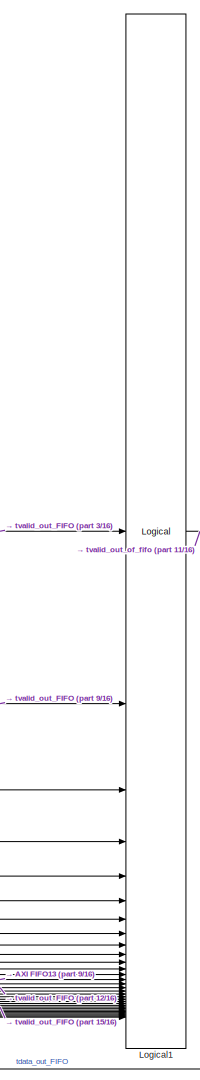
[diagram: AIE_PL_FFT_Float/HDL_32ptFFT_transpose/HDL_32ptFFT - part 1/16, top center region]
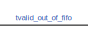
[diagram: AIE_PL_FFT_Float/HDL_32ptFFT_transpose/HDL_32ptFFT - part 2/16, top right region]
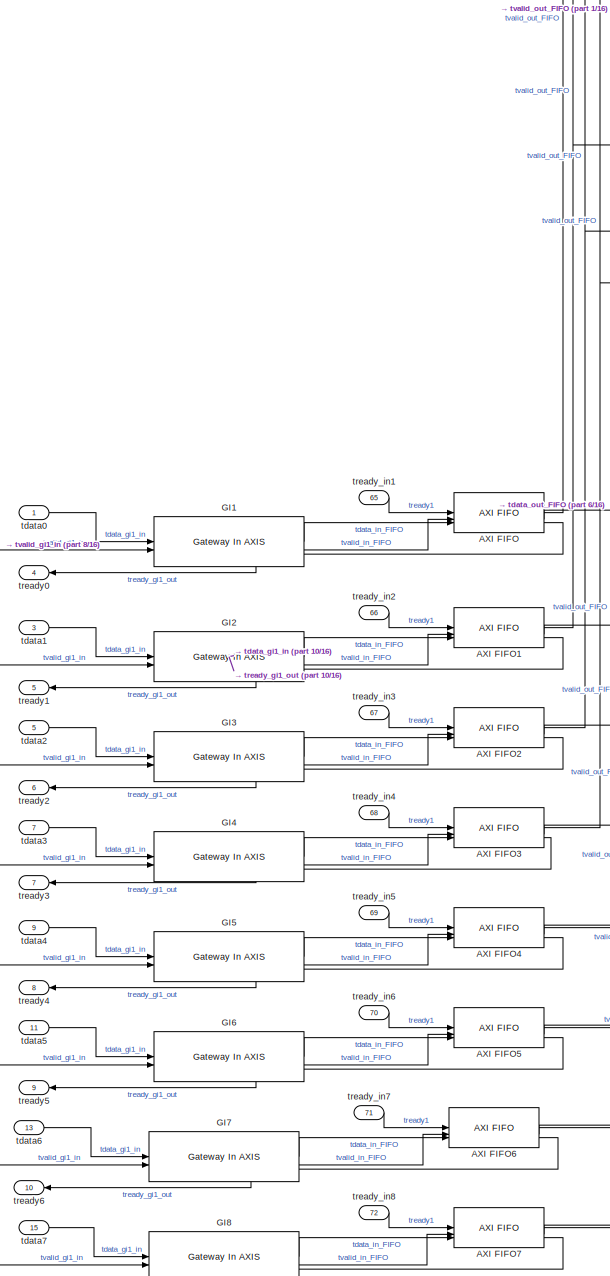
[diagram: AIE_PL_FFT_Float/HDL_32ptFFT_transpose/HDL_32ptFFT - part 3/16, top left region]
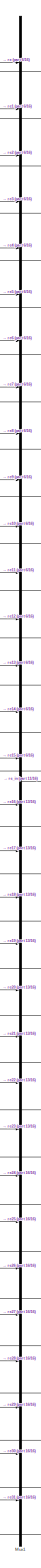
[diagram: AIE_PL_FFT_Float/HDL_32ptFFT_transpose/HDL_32ptFFT - part 4/16, right side, full height]
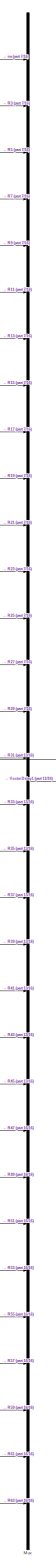
[diagram: AIE_PL_FFT_Float/HDL_32ptFFT_transpose/HDL_32ptFFT - part 5/16, right side, full height]
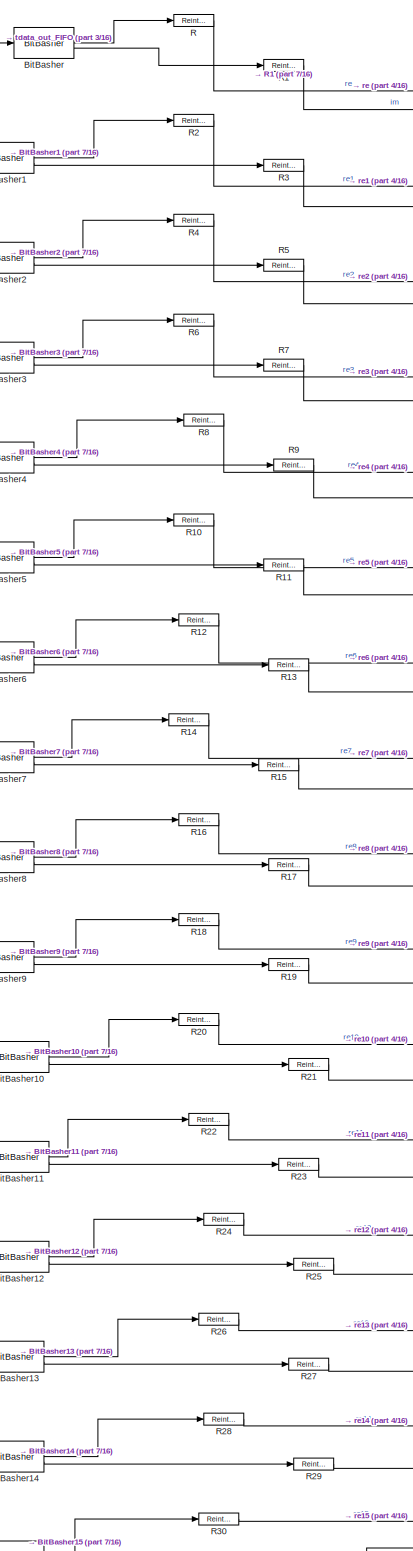
[diagram: AIE_PL_FFT_Float/HDL_32ptFFT_transpose/HDL_32ptFFT - part 6/16, central region]
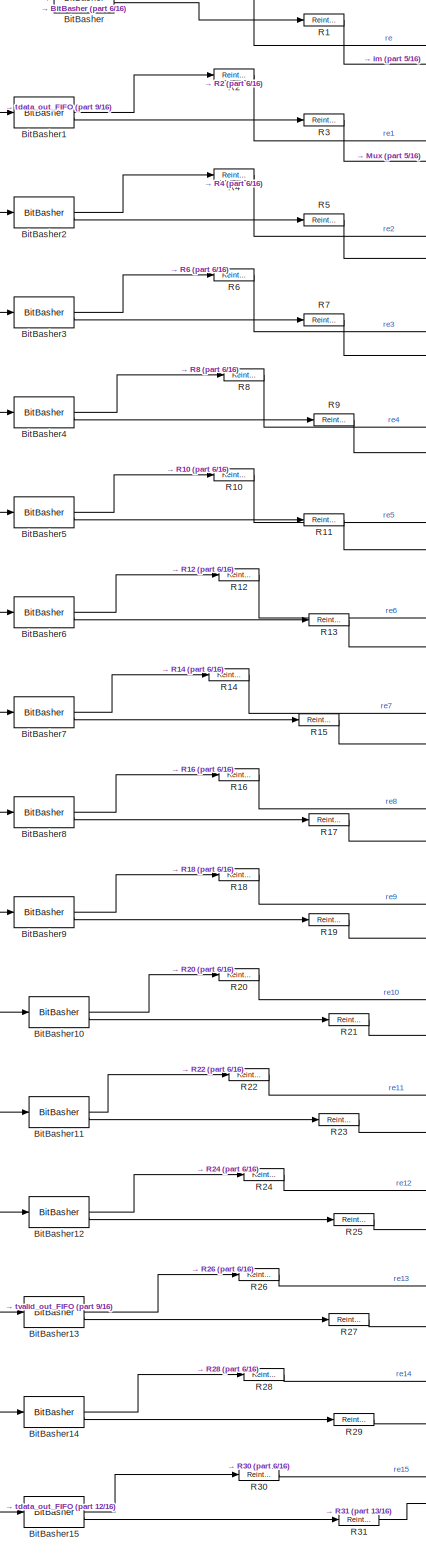
[diagram: AIE_PL_FFT_Float/HDL_32ptFFT_transpose/HDL_32ptFFT - part 7/16, central region]
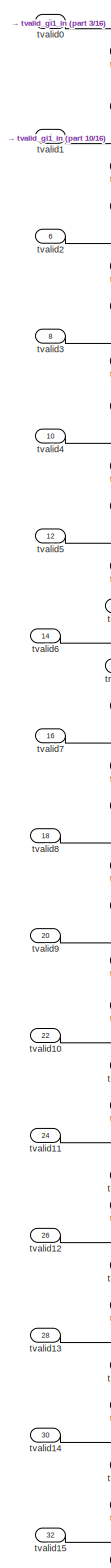
[diagram: AIE_PL_FFT_Float/HDL_32ptFFT_transpose/HDL_32ptFFT - part 8/16, middle left region]
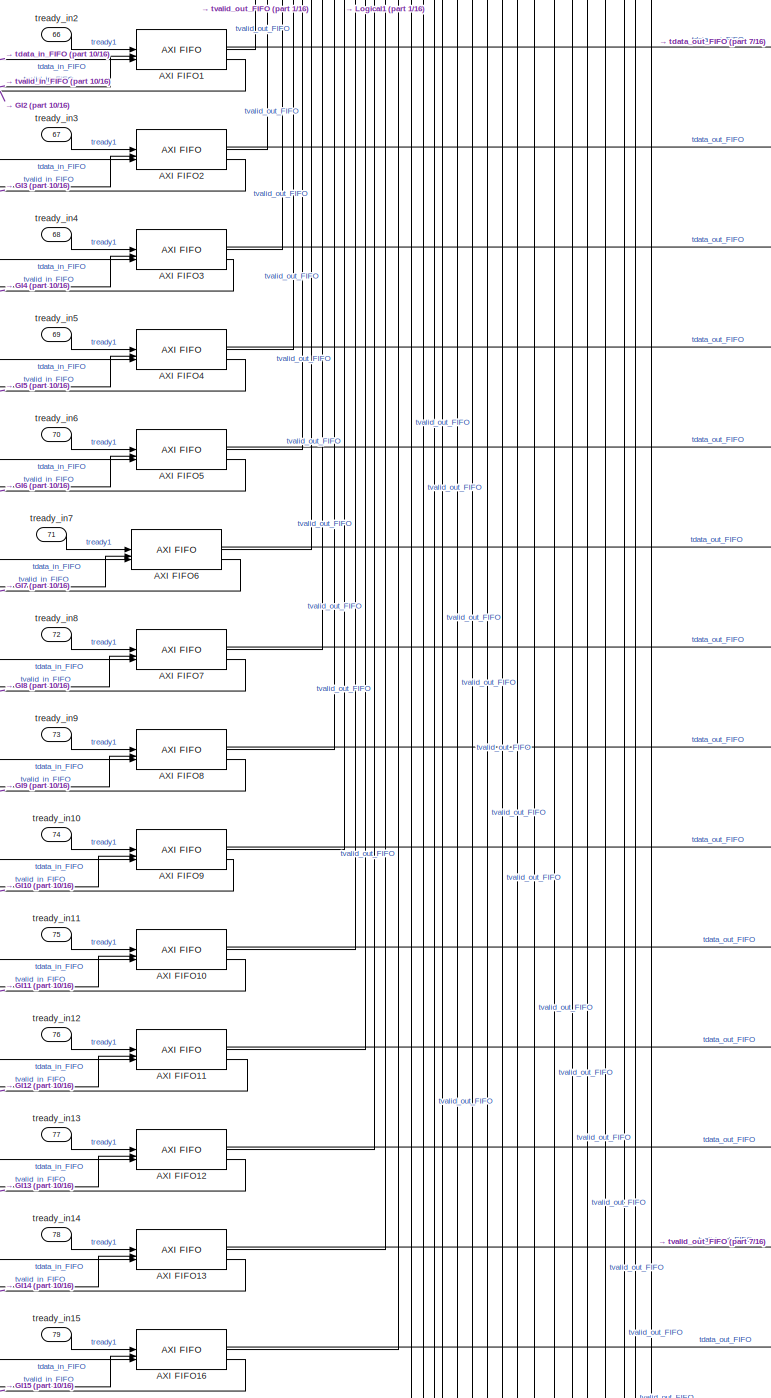
[diagram: AIE_PL_FFT_Float/HDL_32ptFFT_transpose/HDL_32ptFFT - part 9/16, middle left region]
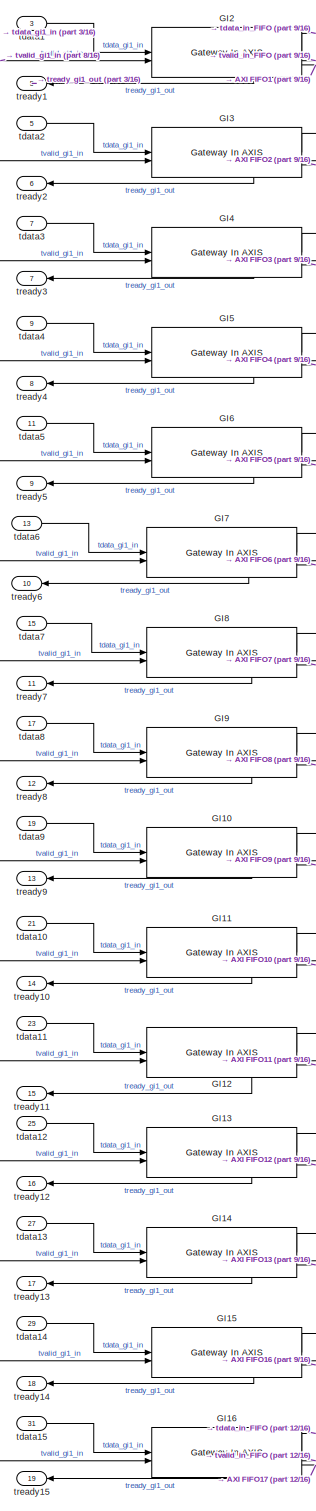
[diagram: AIE_PL_FFT_Float/HDL_32ptFFT_transpose/HDL_32ptFFT - part 10/16, middle left region]
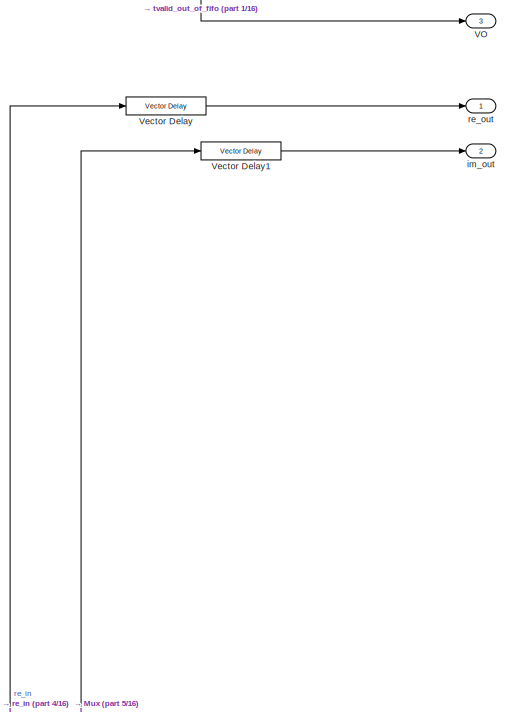
[diagram: AIE_PL_FFT_Float/HDL_32ptFFT_transpose/HDL_32ptFFT - part 11/16, middle right region]
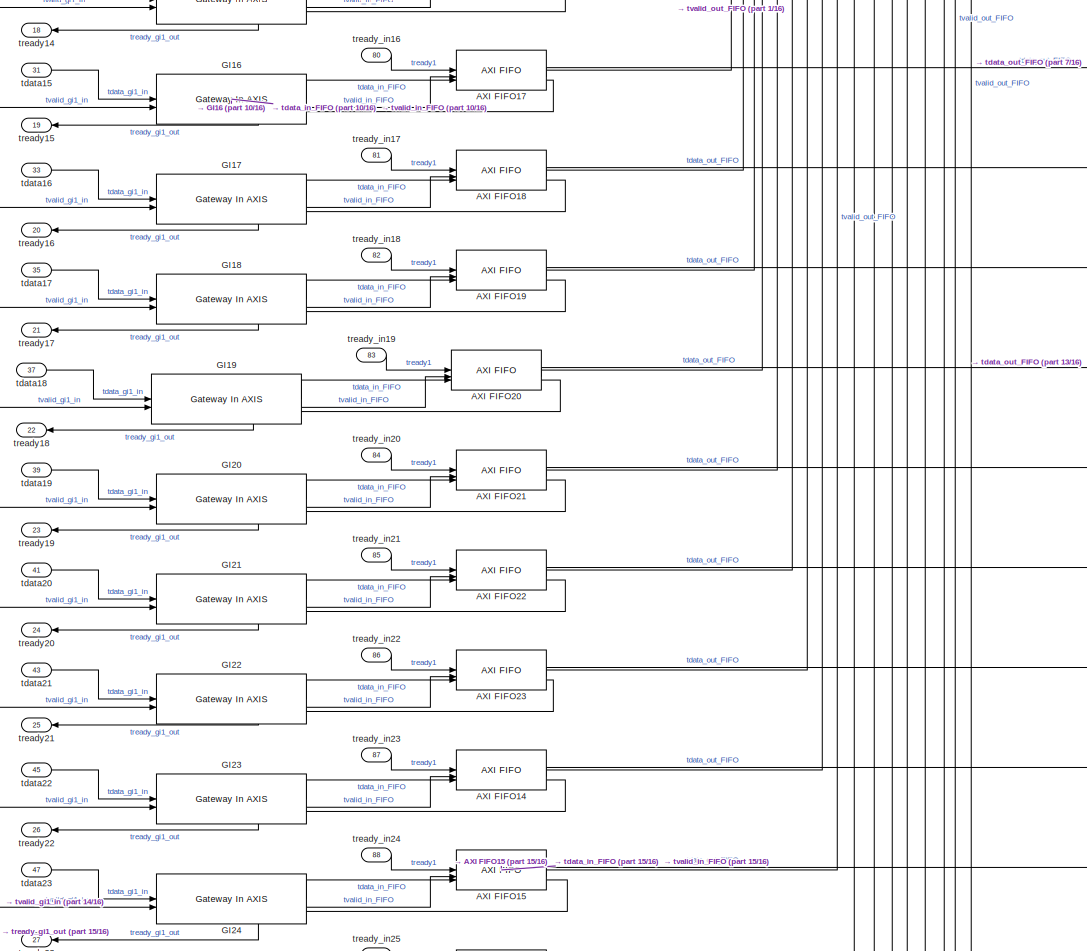
[diagram: AIE_PL_FFT_Float/HDL_32ptFFT_transpose/HDL_32ptFFT - part 12/16, bottom left region]
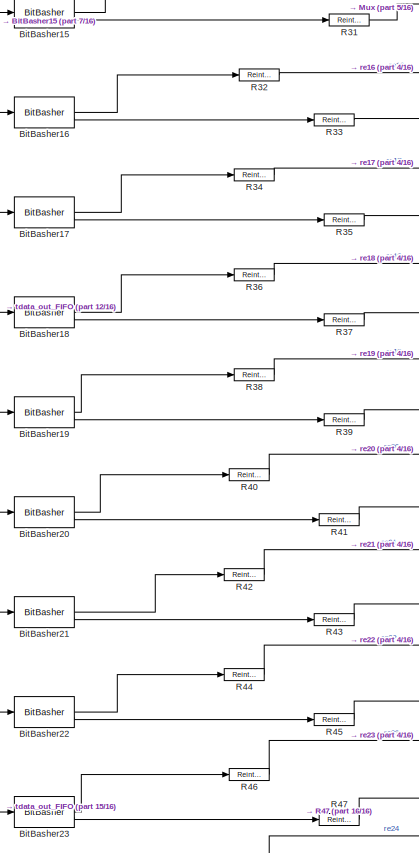
[diagram: AIE_PL_FFT_Float/HDL_32ptFFT_transpose/HDL_32ptFFT - part 13/16, bottom center region]
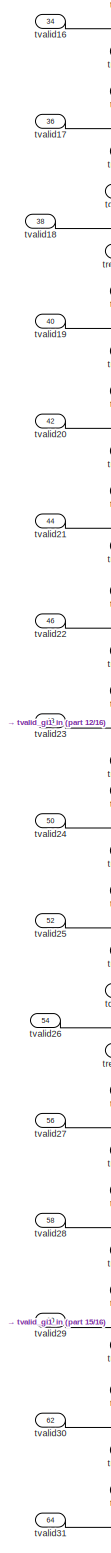
[diagram: AIE_PL_FFT_Float/HDL_32ptFFT_transpose/HDL_32ptFFT - part 14/16, bottom left region]
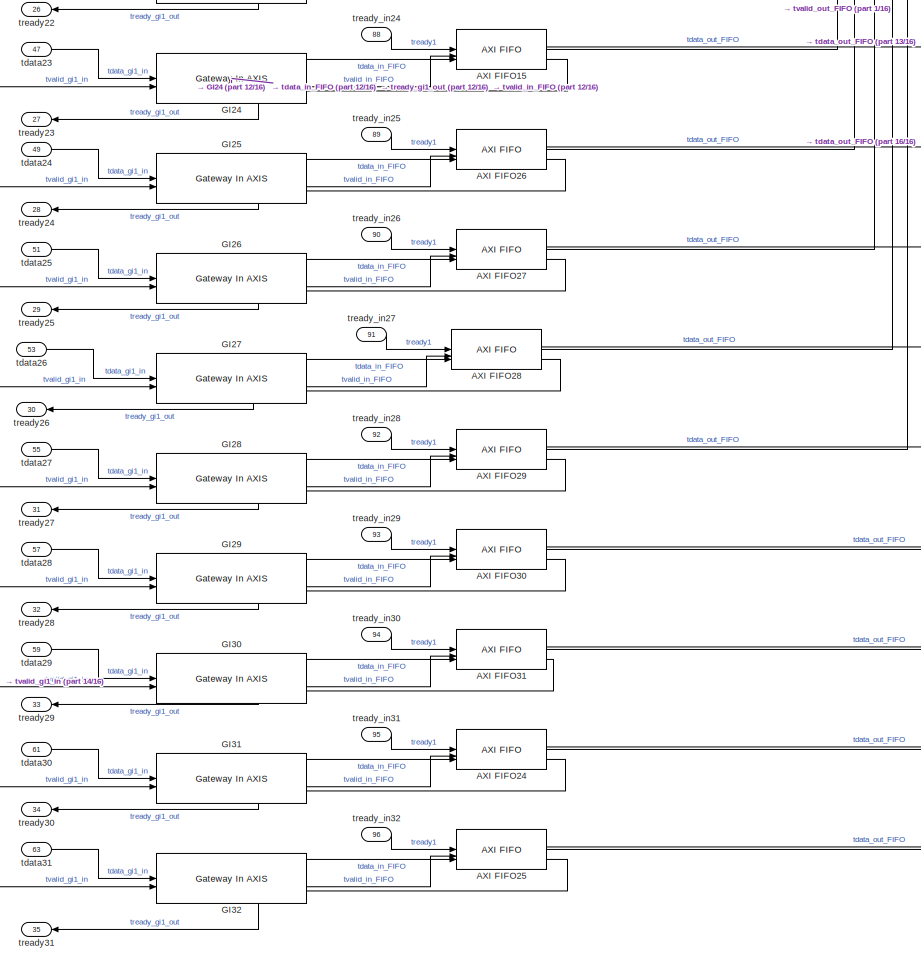
[diagram: AIE_PL_FFT_Float/HDL_32ptFFT_transpose/HDL_32ptFFT - part 15/16, bottom left region]
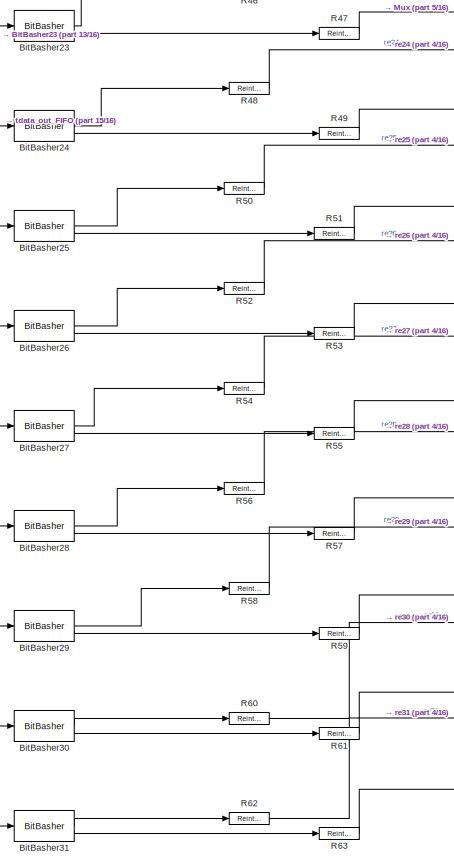
[diagram: AIE_PL_FFT_Float/HDL_32ptFFT_transpose/HDL_32ptFFT - part 16/16, bottom center region]
BLOCK [SubSystem] AIE_PL_FFT_Float/HDL_32ptFFT_transpose/HDL_32ptFFT
  PortSchema = {"entries":[{"content":{"sides":[{"content":{"connectorIds":["In1","In2","Out4","In3","In4","Out5","In5","In6","Out6","In7","In8","Out7","In9","In10","Out8","In11","In12","Out9","In13","In14","Out10","In15","In16","Out11","In17","In18","Out12","In19","In20","Out13","In21","In22","Out14","In23","In24","Out15","In25","In26","Out16","In27","In28","Out17","In29","In30","Out18","In31","In32","Out19","I...<+1269ch>
BLOCK [Reference] AIE_PL_FFT_Float/HDL_32ptFFT_transpose/HDL_32ptFFT/AXI FIFO  REF=hdlBasic/AXI FIFO
  SourceBlock = hdlBasic/AXI FIFO
  SourceType = AXI FIFO Block Block
BLOCK [Reference] AIE_PL_FFT_Float/HDL_32ptFFT_transpose/HDL_32ptFFT/AXI FIFO1  REF=hdlBasic/AXI FIFO
  SourceBlock = hdlBasic/AXI FIFO
  SourceType = AXI FIFO Block Block
BLOCK [Reference] AIE_PL_FFT_Float/HDL_32ptFFT_transpose/HDL_32ptFFT/AXI FIFO10  REF=hdlBasic/AXI FIFO
  SourceBlock = hdlBasic/AXI FIFO
  SourceType = AXI FIFO Block Block
BLOCK [Reference] AIE_PL_FFT_Float/HDL_32ptFFT_transpose/HDL_32ptFFT/AXI FIFO11  REF=hdlBasic/AXI FIFO
  SourceBlock = hdlBasic/AXI FIFO
  SourceType = AXI FIFO Block Block
BLOCK [Reference] AIE_PL_FFT_Float/HDL_32ptFFT_transpose/HDL_32ptFFT/AXI FIFO12  REF=hdlBasic/AXI FIFO
  SourceBlock = hdlBasic/AXI FIFO
  SourceType = AXI FIFO Block Block
BLOCK [Reference] AIE_PL_FFT_Float/HDL_32ptFFT_transpose/HDL_32ptFFT/AXI FIFO13  REF=hdlBasic/AXI FIFO
  SourceBlock = hdlBasic/AXI FIFO
  SourceType = AXI FIFO Block Block
BLOCK [Reference] AIE_PL_FFT_Float/HDL_32ptFFT_transpose/HDL_32ptFFT/AXI FIFO14  REF=hdlBasic/AXI FIFO
  SourceBlock = hdlBasic/AXI FIFO
  SourceType = AXI FIFO Block Block
BLOCK [Reference] AIE_PL_FFT_Float/HDL_32ptFFT_transpose/HDL_32ptFFT/AXI FIFO15  REF=hdlBasic/AXI FIFO
  SourceBlock = hdlBasic/AXI FIFO
  SourceType = AXI FIFO Block Block
BLOCK [Reference] AIE_PL_FFT_Float/HDL_32ptFFT_transpose/HDL_32ptFFT/AXI FIFO16  REF=hdlBasic/AXI FIFO
  SourceBlock = hdlBasic/AXI FIFO
  SourceType = AXI FIFO Block Block
BLOCK [Reference] AIE_PL_FFT_Float/HDL_32ptFFT_transpose/HDL_32ptFFT/AXI FIFO17  REF=hdlBasic/AXI FIFO
  SourceBlock = hdlBasic/AXI FIFO
  SourceType = AXI FIFO Block Block
BLOCK [Reference] AIE_PL_FFT_Float/HDL_32ptFFT_transpose/HDL_32ptFFT/AXI FIFO18  REF=hdlBasic/AXI FIFO
  SourceBlock = hdlBasic/AXI FIFO
  SourceType = AXI FIFO Block Block
BLOCK [Reference] AIE_PL_FFT_Float/HDL_32ptFFT_transpose/HDL_32ptFFT/AXI FIFO19  REF=hdlBasic/AXI FIFO
  SourceBlock = hdlBasic/AXI FIFO
  SourceType = AXI FIFO Block Block
BLOCK [Reference] AIE_PL_FFT_Float/HDL_32ptFFT_transpose/HDL_32ptFFT/AXI FIFO2  REF=hdlBasic/AXI FIFO
  SourceBlock = hdlBasic/AXI FIFO
  SourceType = AXI FIFO Block Block
BLOCK [Reference] AIE_PL_FFT_Float/HDL_32ptFFT_transpose/HDL_32ptFFT/AXI FIFO20  REF=hdlBasic/AXI FIFO
  SourceBlock = hdlBasic/AXI FIFO
  SourceType = AXI FIFO Block Block
BLOCK [Reference] AIE_PL_FFT_Float/HDL_32ptFFT_transpose/HDL_32ptFFT/AXI FIFO21  REF=hdlBasic/AXI FIFO
  SourceBlock = hdlBasic/AXI FIFO
  SourceType = AXI FIFO Block Block
BLOCK [Reference] AIE_PL_FFT_Float/HDL_32ptFFT_transpose/HDL_32ptFFT/AXI FIFO22  REF=hdlBasic/AXI FIFO
  SourceBlock = hdlBasic/AXI FIFO
  SourceType = AXI FIFO Block Block
BLOCK [Reference] AIE_PL_FFT_Float/HDL_32ptFFT_transpose/HDL_32ptFFT/AXI FIFO23  REF=hdlBasic/AXI FIFO
  SourceBlock = hdlBasic/AXI FIFO
  SourceType = AXI FIFO Block Block
BLOCK [Reference] AIE_PL_FFT_Float/HDL_32ptFFT_transpose/HDL_32ptFFT/AXI FIFO24  REF=hdlBasic/AXI FIFO
  SourceBlock = hdlBasic/AXI FIFO
  SourceType = AXI FIFO Block Block
BLOCK [Reference] AIE_PL_FFT_Float/HDL_32ptFFT_transpose/HDL_32ptFFT/AXI FIFO25  REF=hdlBasic/AXI FIFO
  SourceBlock = hdlBasic/AXI FIFO
  SourceType = AXI FIFO Block Block
BLOCK [Reference] AIE_PL_FFT_Float/HDL_32ptFFT_transpose/HDL_32ptFFT/AXI FIFO26  REF=hdlBasic/AXI FIFO
  SourceBlock = hdlBasic/AXI FIFO
  SourceType = AXI FIFO Block Block
BLOCK [Reference] AIE_PL_FFT_Float/HDL_32ptFFT_transpose/HDL_32ptFFT/AXI FIFO27  REF=hdlBasic/AXI FIFO
  SourceBlock = hdlBasic/AXI FIFO
  SourceType = AXI FIFO Block Block
BLOCK [Reference] AIE_PL_FFT_Float/HDL_32ptFFT_transpose/HDL_32ptFFT/AXI FIFO28  REF=hdlBasic/AXI FIFO
  SourceBlock = hdlBasic/AXI FIFO
  SourceType = AXI FIFO Block Block
BLOCK [Reference] AIE_PL_FFT_Float/HDL_32ptFFT_transpose/HDL_32ptFFT/AXI FIFO29  REF=hdlBasic/AXI FIFO
  SourceBlock = hdlBasic/AXI FIFO
  SourceType = AXI FIFO Block Block
BLOCK [Reference] AIE_PL_FFT_Float/HDL_32ptFFT_transpose/HDL_32ptFFT/AXI FIFO3  REF=hdlBasic/AXI FIFO
  SourceBlock = hdlBasic/AXI FIFO
  SourceType = AXI FIFO Block Block
BLOCK [Reference] AIE_PL_FFT_Float/HDL_32ptFFT_transpose/HDL_32ptFFT/AXI FIFO30  REF=hdlBasic/AXI FIFO
  SourceBlock = hdlBasic/AXI FIFO
  SourceType = AXI FIFO Block Block
BLOCK [Reference] AIE_PL_FFT_Float/HDL_32ptFFT_transpose/HDL_32ptFFT/AXI FIFO31  REF=hdlBasic/AXI FIFO
  SourceBlock = hdlBasic/AXI FIFO
  SourceType = AXI FIFO Block Block
BLOCK [Reference] AIE_PL_FFT_Float/HDL_32ptFFT_transpose/HDL_32ptFFT/AXI FIFO4  REF=hdlBasic/AXI FIFO
  SourceBlock = hdlBasic/AXI FIFO
  SourceType = AXI FIFO Block Block
BLOCK [Reference] AIE_PL_FFT_Float/HDL_32ptFFT_transpose/HDL_32ptFFT/AXI FIFO5  REF=hdlBasic/AXI FIFO
  SourceBlock = hdlBasic/AXI FIFO
  SourceType = AXI FIFO Block Block
BLOCK [Reference] AIE_PL_FFT_Float/HDL_32ptFFT_transpose/HDL_32ptFFT/AXI FIFO6  REF=hdlBasic/AXI FIFO
  SourceBlock = hdlBasic/AXI FIFO
  SourceType = AXI FIFO Block Block
BLOCK [Reference] AIE_PL_FFT_Float/HDL_32ptFFT_transpose/HDL_32ptFFT/AXI FIFO7  REF=hdlBasic/AXI FIFO
  SourceBlock = hdlBasic/AXI FIFO
  SourceType = AXI FIFO Block Block
BLOCK [Reference] AIE_PL_FFT_Float/HDL_32ptFFT_transpose/HDL_32ptFFT/AXI FIFO8  REF=hdlBasic/AXI FIFO
  SourceBlock = hdlBasic/AXI FIFO
  SourceType = AXI FIFO Block Block
BLOCK [Reference] AIE_PL_FFT_Float/HDL_32ptFFT_transpose/HDL_32ptFFT/AXI FIFO9  REF=hdlBasic/AXI FIFO
  SourceBlock = hdlBasic/AXI FIFO
  SourceType = AXI FIFO Block Block
BLOCK [Reference] AIE_PL_FFT_Float/HDL_32ptFFT_transpose/HDL_32ptFFT/BitBasher  REF=hdlBasic/BitBasher
  SourceBlock = hdlBasic/BitBasher
  SourceType = BitBasher Block
BLOCK [Reference] AIE_PL_FFT_Float/HDL_32ptFFT_transpose/HDL_32ptFFT/BitBasher1  REF=hdlBasic/BitBasher
  SourceBlock = hdlBasic/BitBasher
  SourceType = BitBasher Block
BLOCK [Reference] AIE_PL_FFT_Float/HDL_32ptFFT_transpose/HDL_32ptFFT/BitBasher10  REF=hdlBasic/BitBasher
  SourceBlock = hdlBasic/BitBasher
  SourceType = BitBasher Block
BLOCK [Reference] AIE_PL_FFT_Float/HDL_32ptFFT_transpose/HDL_32ptFFT/BitBasher11  REF=hdlBasic/BitBasher
  SourceBlock = hdlBasic/BitBasher
  SourceType = BitBasher Block
BLOCK [Reference] AIE_PL_FFT_Float/HDL_32ptFFT_transpose/HDL_32ptFFT/BitBasher12  REF=hdlBasic/BitBasher
  SourceBlock = hdlBasic/BitBasher
  SourceType = BitBasher Block
BLOCK [Reference] AIE_PL_FFT_Float/HDL_32ptFFT_transpose/HDL_32ptFFT/BitBasher13  REF=hdlBasic/BitBasher
  SourceBlock = hdlBasic/BitBasher
  SourceType = BitBasher Block
BLOCK [Reference] AIE_PL_FFT_Float/HDL_32ptFFT_transpose/HDL_32ptFFT/BitBasher14  REF=hdlBasic/BitBasher
  SourceBlock = hdlBasic/BitBasher
  SourceType = BitBasher Block
BLOCK [Reference] AIE_PL_FFT_Float/HDL_32ptFFT_transpose/HDL_32ptFFT/BitBasher15  REF=hdlBasic/BitBasher
  SourceBlock = hdlBasic/BitBasher
  SourceType = BitBasher Block
BLOCK [Reference] AIE_PL_FFT_Float/HDL_32ptFFT_transpose/HDL_32ptFFT/BitBasher16  REF=hdlBasic/BitBasher
  SourceBlock = hdlBasic/BitBasher
  SourceType = BitBasher Block
BLOCK [Reference] AIE_PL_FFT_Float/HDL_32ptFFT_transpose/HDL_32ptFFT/BitBasher17  REF=hdlBasic/BitBasher
  SourceBlock = hdlBasic/BitBasher
  SourceType = BitBasher Block
BLOCK [Reference] AIE_PL_FFT_Float/HDL_32ptFFT_transpose/HDL_32ptFFT/BitBasher18  REF=hdlBasic/BitBasher
  SourceBlock = hdlBasic/BitBasher
  SourceType = BitBasher Block
BLOCK [Reference] AIE_PL_FFT_Float/HDL_32ptFFT_transpose/HDL_32ptFFT/BitBasher19  REF=hdlBasic/BitBasher
  SourceBlock = hdlBasic/BitBasher
  SourceType = BitBasher Block
BLOCK [Reference] AIE_PL_FFT_Float/HDL_32ptFFT_transpose/HDL_32ptFFT/BitBasher2  REF=hdlBasic/BitBasher
  SourceBlock = hdlBasic/BitBasher
  SourceType = BitBasher Block
BLOCK [Reference] AIE_PL_FFT_Float/HDL_32ptFFT_transpose/HDL_32ptFFT/BitBasher20  REF=hdlBasic/BitBasher
  SourceBlock = hdlBasic/BitBasher
  SourceType = BitBasher Block
BLOCK [Reference] AIE_PL_FFT_Float/HDL_32ptFFT_transpose/HDL_32ptFFT/BitBasher21  REF=hdlBasic/BitBasher
  SourceBlock = hdlBasic/BitBasher
  SourceType = BitBasher Block
BLOCK [Reference] AIE_PL_FFT_Float/HDL_32ptFFT_transpose/HDL_32ptFFT/BitBasher22  REF=hdlBasic/BitBasher
  SourceBlock = hdlBasic/BitBasher
  SourceType = BitBasher Block
BLOCK [Reference] AIE_PL_FFT_Float/HDL_32ptFFT_transpose/HDL_32ptFFT/BitBasher23  REF=hdlBasic/BitBasher
  SourceBlock = hdlBasic/BitBasher
  SourceType = BitBasher Block
BLOCK [Reference] AIE_PL_FFT_Float/HDL_32ptFFT_transpose/HDL_32ptFFT/BitBasher24  REF=hdlBasic/BitBasher
  SourceBlock = hdlBasic/BitBasher
  SourceType = BitBasher Block
BLOCK [Reference] AIE_PL_FFT_Float/HDL_32ptFFT_transpose/HDL_32ptFFT/BitBasher25  REF=hdlBasic/BitBasher
  SourceBlock = hdlBasic/BitBasher
  SourceType = BitBasher Block
BLOCK [Reference] AIE_PL_FFT_Float/HDL_32ptFFT_transpose/HDL_32ptFFT/BitBasher26  REF=hdlBasic/BitBasher
  SourceBlock = hdlBasic/BitBasher
  SourceType = BitBasher Block
BLOCK [Reference] AIE_PL_FFT_Float/HDL_32ptFFT_transpose/HDL_32ptFFT/BitBasher27  REF=hdlBasic/BitBasher
  SourceBlock = hdlBasic/BitBasher
  SourceType = BitBasher Block
BLOCK [Reference] AIE_PL_FFT_Float/HDL_32ptFFT_transpose/HDL_32ptFFT/BitBasher28  REF=hdlBasic/BitBasher
  SourceBlock = hdlBasic/BitBasher
  SourceType = BitBasher Block
BLOCK [Reference] AIE_PL_FFT_Float/HDL_32ptFFT_transpose/HDL_32ptFFT/BitBasher29  REF=hdlBasic/BitBasher
  SourceBlock = hdlBasic/BitBasher
  SourceType = BitBasher Block
BLOCK [Reference] AIE_PL_FFT_Float/HDL_32ptFFT_transpose/HDL_32ptFFT/BitBasher3  REF=hdlBasic/BitBasher
  SourceBlock = hdlBasic/BitBasher
  SourceType = BitBasher Block
BLOCK [Reference] AIE_PL_FFT_Float/HDL_32ptFFT_transpose/HDL_32ptFFT/BitBasher30  REF=hdlBasic/BitBasher
  SourceBlock = hdlBasic/BitBasher
  SourceType = BitBasher Block
BLOCK [Reference] AIE_PL_FFT_Float/HDL_32ptFFT_transpose/HDL_32ptFFT/BitBasher31  REF=hdlBasic/BitBasher
  SourceBlock = hdlBasic/BitBasher
  SourceType = BitBasher Block
BLOCK [Reference] AIE_PL_FFT_Float/HDL_32ptFFT_transpose/HDL_32ptFFT/BitBasher4  REF=hdlBasic/BitBasher
  SourceBlock = hdlBasic/BitBasher
  SourceType = BitBasher Block
BLOCK [Reference] AIE_PL_FFT_Float/HDL_32ptFFT_transpose/HDL_32ptFFT/BitBasher5  REF=hdlBasic/BitBasher
  SourceBlock = hdlBasic/BitBasher
  SourceType = BitBasher Block
BLOCK [Reference] AIE_PL_FFT_Float/HDL_32ptFFT_transpose/HDL_32ptFFT/BitBasher6  REF=hdlBasic/BitBasher
  SourceBlock = hdlBasic/BitBasher
  SourceType = BitBasher Block
BLOCK [Reference] AIE_PL_FFT_Float/HDL_32ptFFT_transpose/HDL_32ptFFT/BitBasher7  REF=hdlBasic/BitBasher
  SourceBlock = hdlBasic/BitBasher
  SourceType = BitBasher Block
BLOCK [Reference] AIE_PL_FFT_Float/HDL_32ptFFT_transpose/HDL_32ptFFT/BitBasher8  REF=hdlBasic/BitBasher
  SourceBlock = hdlBasic/BitBasher
  SourceType = BitBasher Block
BLOCK [Reference] AIE_PL_FFT_Float/HDL_32ptFFT_transpose/HDL_32ptFFT/BitBasher9  REF=hdlBasic/BitBasher
  SourceBlock = hdlBasic/BitBasher
  SourceType = BitBasher Block
BLOCK [Reference] AIE_PL_FFT_Float/HDL_32ptFFT_transpose/HDL_32ptFFT/GI1  REF=hdlUtilities/Gateway In AXIS
  SourceBlock = hdlUtilities/Gateway In AXIS
  SourceType = Gateway In AXIS
BLOCK [Reference] AIE_PL_FFT_Float/HDL_32ptFFT_transpose/HDL_32ptFFT/GI10  REF=hdlUtilities/Gateway In AXIS
  SourceBlock = hdlUtilities/Gateway In AXIS
  SourceType = Gateway In AXIS
BLOCK [Reference] AIE_PL_FFT_Float/HDL_32ptFFT_transpose/HDL_32ptFFT/GI11  REF=hdlUtilities/Gateway In AXIS
  SourceBlock = hdlUtilities/Gateway In AXIS
  SourceType = Gateway In AXIS
BLOCK [Reference] AIE_PL_FFT_Float/HDL_32ptFFT_transpose/HDL_32ptFFT/GI12  REF=hdlUtilities/Gateway In AXIS
  SourceBlock = hdlUtilities/Gateway In AXIS
  SourceType = Gateway In AXIS
BLOCK [Reference] AIE_PL_FFT_Float/HDL_32ptFFT_transpose/HDL_32ptFFT/GI13  REF=hdlUtilities/Gateway In AXIS
  SourceBlock = hdlUtilities/Gateway In AXIS
  SourceType = Gateway In AXIS
BLOCK [Reference] AIE_PL_FFT_Float/HDL_32ptFFT_transpose/HDL_32ptFFT/GI14  REF=hdlUtilities/Gateway In AXIS
  SourceBlock = hdlUtilities/Gateway In AXIS
  SourceType = Gateway In AXIS
BLOCK [Reference] AIE_PL_FFT_Float/HDL_32ptFFT_transpose/HDL_32ptFFT/GI15  REF=hdlUtilities/Gateway In AXIS
  SourceBlock = hdlUtilities/Gateway In AXIS
  SourceType = Gateway In AXIS
BLOCK [Reference] AIE_PL_FFT_Float/HDL_32ptFFT_transpose/HDL_32ptFFT/GI16  REF=hdlUtilities/Gateway In AXIS
  SourceBlock = hdlUtilities/Gateway In AXIS
  SourceType = Gateway In AXIS
BLOCK [Reference] AIE_PL_FFT_Float/HDL_32ptFFT_transpose/HDL_32ptFFT/GI17  REF=hdlUtilities/Gateway In AXIS
  SourceBlock = hdlUtilities/Gateway In AXIS
  SourceType = Gateway In AXIS
BLOCK [Reference] AIE_PL_FFT_Float/HDL_32ptFFT_transpose/HDL_32ptFFT/GI18  REF=hdlUtilities/Gateway In AXIS
  SourceBlock = hdlUtilities/Gateway In AXIS
  SourceType = Gateway In AXIS
BLOCK [Reference] AIE_PL_FFT_Float/HDL_32ptFFT_transpose/HDL_32ptFFT/GI19  REF=hdlUtilities/Gateway In AXIS
  SourceBlock = hdlUtilities/Gateway In AXIS
  SourceType = Gateway In AXIS
BLOCK [Reference] AIE_PL_FFT_Float/HDL_32ptFFT_transpose/HDL_32ptFFT/GI2  REF=hdlUtilities/Gateway In AXIS
  SourceBlock = hdlUtilities/Gateway In AXIS
  SourceType = Gateway In AXIS
BLOCK [Reference] AIE_PL_FFT_Float/HDL_32ptFFT_transpose/HDL_32ptFFT/GI20  REF=hdlUtilities/Gateway In AXIS
  SourceBlock = hdlUtilities/Gateway In AXIS
  SourceType = Gateway In AXIS
BLOCK [Reference] AIE_PL_FFT_Float/HDL_32ptFFT_transpose/HDL_32ptFFT/GI21  REF=hdlUtilities/Gateway In AXIS
  SourceBlock = hdlUtilities/Gateway In AXIS
  SourceType = Gateway In AXIS
BLOCK [Reference] AIE_PL_FFT_Float/HDL_32ptFFT_transpose/HDL_32ptFFT/GI22  REF=hdlUtilities/Gateway In AXIS
  SourceBlock = hdlUtilities/Gateway In AXIS
  SourceType = Gateway In AXIS
BLOCK [Reference] AIE_PL_FFT_Float/HDL_32ptFFT_transpose/HDL_32ptFFT/GI23  REF=hdlUtilities/Gateway In AXIS
  SourceBlock = hdlUtilities/Gateway In AXIS
  SourceType = Gateway In AXIS
BLOCK [Reference] AIE_PL_FFT_Float/HDL_32ptFFT_transpose/HDL_32ptFFT/GI24  REF=hdlUtilities/Gateway In AXIS
  SourceBlock = hdlUtilities/Gateway In AXIS
  SourceType = Gateway In AXIS
BLOCK [Reference] AIE_PL_FFT_Float/HDL_32ptFFT_transpose/HDL_32ptFFT/GI25  REF=hdlUtilities/Gateway In AXIS
  SourceBlock = hdlUtilities/Gateway In AXIS
  SourceType = Gateway In AXIS
BLOCK [Reference] AIE_PL_FFT_Float/HDL_32ptFFT_transpose/HDL_32ptFFT/GI26  REF=hdlUtilities/Gateway In AXIS
  SourceBlock = hdlUtilities/Gateway In AXIS
  SourceType = Gateway In AXIS
BLOCK [Reference] AIE_PL_FFT_Float/HDL_32ptFFT_transpose/HDL_32ptFFT/GI27  REF=hdlUtilities/Gateway In AXIS
  SourceBlock = hdlUtilities/Gateway In AXIS
  SourceType = Gateway In AXIS
BLOCK [Reference] AIE_PL_FFT_Float/HDL_32ptFFT_transpose/HDL_32ptFFT/GI28  REF=hdlUtilities/Gateway In AXIS
  SourceBlock = hdlUtilities/Gateway In AXIS
  SourceType = Gateway In AXIS
BLOCK [Reference] AIE_PL_FFT_Float/HDL_32ptFFT_transpose/HDL_32ptFFT/GI29  REF=hdlUtilities/Gateway In AXIS
  SourceBlock = hdlUtilities/Gateway In AXIS
  SourceType = Gateway In AXIS
BLOCK [Reference] AIE_PL_FFT_Float/HDL_32ptFFT_transpose/HDL_32ptFFT/GI3  REF=hdlUtilities/Gateway In AXIS
  SourceBlock = hdlUtilities/Gateway In AXIS
  SourceType = Gateway In AXIS
BLOCK [Reference] AIE_PL_FFT_Float/HDL_32ptFFT_transpose/HDL_32ptFFT/GI30  REF=hdlUtilities/Gateway In AXIS
  SourceBlock = hdlUtilities/Gateway In AXIS
  SourceType = Gateway In AXIS
BLOCK [Reference] AIE_PL_FFT_Float/HDL_32ptFFT_transpose/HDL_32ptFFT/GI31  REF=hdlUtilities/Gateway In AXIS
  SourceBlock = hdlUtilities/Gateway In AXIS
  SourceType = Gateway In AXIS
BLOCK [Reference] AIE_PL_FFT_Float/HDL_32ptFFT_transpose/HDL_32ptFFT/GI32  REF=hdlUtilities/Gateway In AXIS
  SourceBlock = hdlUtilities/Gateway In AXIS
  SourceType = Gateway In AXIS
BLOCK [Reference] AIE_PL_FFT_Float/HDL_32ptFFT_transpose/HDL_32ptFFT/GI4  REF=hdlUtilities/Gateway In AXIS
  SourceBlock = hdlUtilities/Gateway In AXIS
  SourceType = Gateway In AXIS
BLOCK [Reference] AIE_PL_FFT_Float/HDL_32ptFFT_transpose/HDL_32ptFFT/GI5  REF=hdlUtilities/Gateway In AXIS
  SourceBlock = hdlUtilities/Gateway In AXIS
  SourceType = Gateway In AXIS
BLOCK [Reference] AIE_PL_FFT_Float/HDL_32ptFFT_transpose/HDL_32ptFFT/GI6  REF=hdlUtilities/Gateway In AXIS
  SourceBlock = hdlUtilities/Gateway In AXIS
  SourceType = Gateway In AXIS
BLOCK [Reference] AIE_PL_FFT_Float/HDL_32ptFFT_transpose/HDL_32ptFFT/GI7  REF=hdlUtilities/Gateway In AXIS
  SourceBlock = hdlUtilities/Gateway In AXIS
  SourceType = Gateway In AXIS
BLOCK [Reference] AIE_PL_FFT_Float/HDL_32ptFFT_transpose/HDL_32ptFFT/GI8  REF=hdlUtilities/Gateway In AXIS
  SourceBlock = hdlUtilities/Gateway In AXIS
  SourceType = Gateway In AXIS
BLOCK [Reference] AIE_PL_FFT_Float/HDL_32ptFFT_transpose/HDL_32ptFFT/GI9  REF=hdlUtilities/Gateway In AXIS
  SourceBlock = hdlUtilities/Gateway In AXIS
  SourceType = Gateway In AXIS
BLOCK [Reference] AIE_PL_FFT_Float/HDL_32ptFFT_transpose/HDL_32ptFFT/Logical1  REF=hdlBasic/Logical
  SourceBlock = hdlBasic/Logical
  SourceType = Logical Block Block
BLOCK [Mux] AIE_PL_FFT_Float/HDL_32ptFFT_transpose/HDL_32ptFFT/Mux
  DisplayOption = bar
  Inputs = 32
BLOCK [Mux] AIE_PL_FFT_Float/HDL_32ptFFT_transpose/HDL_32ptFFT/Mux1
  DisplayOption = bar
  Inputs = 32
BLOCK [Reference] AIE_PL_FFT_Float/HDL_32ptFFT_transpose/HDL_32ptFFT/R  REF=hdlBasic/Reinterpret
  SourceBlock = hdlBasic/Reinterpret
  SourceType = Type Reinterpreter Block
BLOCK [Reference] AIE_PL_FFT_Float/HDL_32ptFFT_transpose/HDL_32ptFFT/R1  REF=hdlBasic/Reinterpret
  SourceBlock = hdlBasic/Reinterpret
  SourceType = Type Reinterpreter Block
BLOCK [Reference] AIE_PL_FFT_Float/HDL_32ptFFT_transpose/HDL_32ptFFT/R10  REF=hdlBasic/Reinterpret
  SourceBlock = hdlBasic/Reinterpret
  SourceType = Type Reinterpreter Block
BLOCK [Reference] AIE_PL_FFT_Float/HDL_32ptFFT_transpose/HDL_32ptFFT/R11  REF=hdlBasic/Reinterpret
  SourceBlock = hdlBasic/Reinterpret
  SourceType = Type Reinterpreter Block
BLOCK [Reference] AIE_PL_FFT_Float/HDL_32ptFFT_transpose/HDL_32ptFFT/R12  REF=hdlBasic/Reinterpret
  SourceBlock = hdlBasic/Reinterpret
  SourceType = Type Reinterpreter Block
BLOCK [Reference] AIE_PL_FFT_Float/HDL_32ptFFT_transpose/HDL_32ptFFT/R13  REF=hdlBasic/Reinterpret
  SourceBlock = hdlBasic/Reinterpret
  SourceType = Type Reinterpreter Block
BLOCK [Reference] AIE_PL_FFT_Float/HDL_32ptFFT_transpose/HDL_32ptFFT/R14  REF=hdlBasic/Reinterpret
  SourceBlock = hdlBasic/Reinterpret
  SourceType = Type Reinterpreter Block
BLOCK [Reference] AIE_PL_FFT_Float/HDL_32ptFFT_transpose/HDL_32ptFFT/R15  REF=hdlBasic/Reinterpret
  SourceBlock = hdlBasic/Reinterpret
  SourceType = Type Reinterpreter Block
BLOCK [Reference] AIE_PL_FFT_Float/HDL_32ptFFT_transpose/HDL_32ptFFT/R16  REF=hdlBasic/Reinterpret
  SourceBlock = hdlBasic/Reinterpret
  SourceType = Type Reinterpreter Block
BLOCK [Reference] AIE_PL_FFT_Float/HDL_32ptFFT_transpose/HDL_32ptFFT/R17  REF=hdlBasic/Reinterpret
  SourceBlock = hdlBasic/Reinterpret
  SourceType = Type Reinterpreter Block
BLOCK [Reference] AIE_PL_FFT_Float/HDL_32ptFFT_transpose/HDL_32ptFFT/R18  REF=hdlBasic/Reinterpret
  SourceBlock = hdlBasic/Reinterpret
  SourceType = Type Reinterpreter Block
BLOCK [Reference] AIE_PL_FFT_Float/HDL_32ptFFT_transpose/HDL_32ptFFT/R19  REF=hdlBasic/Reinterpret
  SourceBlock = hdlBasic/Reinterpret
  SourceType = Type Reinterpreter Block
BLOCK [Reference] AIE_PL_FFT_Float/HDL_32ptFFT_transpose/HDL_32ptFFT/R2  REF=hdlBasic/Reinterpret
  SourceBlock = hdlBasic/Reinterpret
  SourceType = Type Reinterpreter Block
BLOCK [Reference] AIE_PL_FFT_Float/HDL_32ptFFT_transpose/HDL_32ptFFT/R20  REF=hdlBasic/Reinterpret
  SourceBlock = hdlBasic/Reinterpret
  SourceType = Type Reinterpreter Block
BLOCK [Reference] AIE_PL_FFT_Float/HDL_32ptFFT_transpose/HDL_32ptFFT/R21  REF=hdlBasic/Reinterpret
  SourceBlock = hdlBasic/Reinterpret
  SourceType = Type Reinterpreter Block
BLOCK [Reference] AIE_PL_FFT_Float/HDL_32ptFFT_transpose/HDL_32ptFFT/R22  REF=hdlBasic/Reinterpret
  SourceBlock = hdlBasic/Reinterpret
  SourceType = Type Reinterpreter Block
BLOCK [Reference] AIE_PL_FFT_Float/HDL_32ptFFT_transpose/HDL_32ptFFT/R23  REF=hdlBasic/Reinterpret
  SourceBlock = hdlBasic/Reinterpret
  SourceType = Type Reinterpreter Block
BLOCK [Reference] AIE_PL_FFT_Float/HDL_32ptFFT_transpose/HDL_32ptFFT/R24  REF=hdlBasic/Reinterpret
  SourceBlock = hdlBasic/Reinterpret
  SourceType = Type Reinterpreter Block
BLOCK [Reference] AIE_PL_FFT_Float/HDL_32ptFFT_transpose/HDL_32ptFFT/R25  REF=hdlBasic/Reinterpret
  SourceBlock = hdlBasic/Reinterpret
  SourceType = Type Reinterpreter Block
BLOCK [Reference] AIE_PL_FFT_Float/HDL_32ptFFT_transpose/HDL_32ptFFT/R26  REF=hdlBasic/Reinterpret
  SourceBlock = hdlBasic/Reinterpret
  SourceType = Type Reinterpreter Block
BLOCK [Reference] AIE_PL_FFT_Float/HDL_32ptFFT_transpose/HDL_32ptFFT/R27  REF=hdlBasic/Reinterpret
  SourceBlock = hdlBasic/Reinterpret
  SourceType = Type Reinterpreter Block
BLOCK [Reference] AIE_PL_FFT_Float/HDL_32ptFFT_transpose/HDL_32ptFFT/R28  REF=hdlBasic/Reinterpret
  SourceBlock = hdlBasic/Reinterpret
  SourceType = Type Reinterpreter Block
BLOCK [Reference] AIE_PL_FFT_Float/HDL_32ptFFT_transpose/HDL_32ptFFT/R29  REF=hdlBasic/Reinterpret
  SourceBlock = hdlBasic/Reinterpret
  SourceType = Type Reinterpreter Block
BLOCK [Reference] AIE_PL_FFT_Float/HDL_32ptFFT_transpose/HDL_32ptFFT/R3  REF=hdlBasic/Reinterpret
  SourceBlock = hdlBasic/Reinterpret
  SourceType = Type Reinterpreter Block
BLOCK [Reference] AIE_PL_FFT_Float/HDL_32ptFFT_transpose/HDL_32ptFFT/R30  REF=hdlBasic/Reinterpret
  SourceBlock = hdlBasic/Reinterpret
  SourceType = Type Reinterpreter Block
BLOCK [Reference] AIE_PL_FFT_Float/HDL_32ptFFT_transpose/HDL_32ptFFT/R31  REF=hdlBasic/Reinterpret
  SourceBlock = hdlBasic/Reinterpret
  SourceType = Type Reinterpreter Block
BLOCK [Reference] AIE_PL_FFT_Float/HDL_32ptFFT_transpose/HDL_32ptFFT/R32  REF=hdlBasic/Reinterpret
  SourceBlock = hdlBasic/Reinterpret
  SourceType = Type Reinterpreter Block
BLOCK [Reference] AIE_PL_FFT_Float/HDL_32ptFFT_transpose/HDL_32ptFFT/R33  REF=hdlBasic/Reinterpret
  SourceBlock = hdlBasic/Reinterpret
  SourceType = Type Reinterpreter Block
BLOCK [Reference] AIE_PL_FFT_Float/HDL_32ptFFT_transpose/HDL_32ptFFT/R34  REF=hdlBasic/Reinterpret
  SourceBlock = hdlBasic/Reinterpret
  SourceType = Type Reinterpreter Block
BLOCK [Reference] AIE_PL_FFT_Float/HDL_32ptFFT_transpose/HDL_32ptFFT/R35  REF=hdlBasic/Reinterpret
  SourceBlock = hdlBasic/Reinterpret
  SourceType = Type Reinterpreter Block
BLOCK [Reference] AIE_PL_FFT_Float/HDL_32ptFFT_transpose/HDL_32ptFFT/R36  REF=hdlBasic/Reinterpret
  SourceBlock = hdlBasic/Reinterpret
  SourceType = Type Reinterpreter Block
BLOCK [Reference] AIE_PL_FFT_Float/HDL_32ptFFT_transpose/HDL_32ptFFT/R37  REF=hdlBasic/Reinterpret
  SourceBlock = hdlBasic/Reinterpret
  SourceType = Type Reinterpreter Block
BLOCK [Reference] AIE_PL_FFT_Float/HDL_32ptFFT_transpose/HDL_32ptFFT/R38  REF=hdlBasic/Reinterpret
  SourceBlock = hdlBasic/Reinterpret
  SourceType = Type Reinterpreter Block
BLOCK [Reference] AIE_PL_FFT_Float/HDL_32ptFFT_transpose/HDL_32ptFFT/R39  REF=hdlBasic/Reinterpret
  SourceBlock = hdlBasic/Reinterpret
  SourceType = Type Reinterpreter Block
BLOCK [Reference] AIE_PL_FFT_Float/HDL_32ptFFT_transpose/HDL_32ptFFT/R4  REF=hdlBasic/Reinterpret
  SourceBlock = hdlBasic/Reinterpret
  SourceType = Type Reinterpreter Block
BLOCK [Reference] AIE_PL_FFT_Float/HDL_32ptFFT_transpose/HDL_32ptFFT/R40  REF=hdlBasic/Reinterpret
  SourceBlock = hdlBasic/Reinterpret
  SourceType = Type Reinterpreter Block
BLOCK [Reference] AIE_PL_FFT_Float/HDL_32ptFFT_transpose/HDL_32ptFFT/R41  REF=hdlBasic/Reinterpret
  SourceBlock = hdlBasic/Reinterpret
  SourceType = Type Reinterpreter Block
BLOCK [Reference] AIE_PL_FFT_Float/HDL_32ptFFT_transpose/HDL_32ptFFT/R42  REF=hdlBasic/Reinterpret
  SourceBlock = hdlBasic/Reinterpret
  SourceType = Type Reinterpreter Block
BLOCK [Reference] AIE_PL_FFT_Float/HDL_32ptFFT_transpose/HDL_32ptFFT/R43  REF=hdlBasic/Reinterpret
  SourceBlock = hdlBasic/Reinterpret
  SourceType = Type Reinterpreter Block
BLOCK [Reference] AIE_PL_FFT_Float/HDL_32ptFFT_transpose/HDL_32ptFFT/R44  REF=hdlBasic/Reinterpret
  SourceBlock = hdlBasic/Reinterpret
  SourceType = Type Reinterpreter Block
BLOCK [Reference] AIE_PL_FFT_Float/HDL_32ptFFT_transpose/HDL_32ptFFT/R45  REF=hdlBasic/Reinterpret
  SourceBlock = hdlBasic/Reinterpret
  SourceType = Type Reinterpreter Block
BLOCK [Reference] AIE_PL_FFT_Float/HDL_32ptFFT_transpose/HDL_32ptFFT/R46  REF=hdlBasic/Reinterpret
  SourceBlock = hdlBasic/Reinterpret
  SourceType = Type Reinterpreter Block
BLOCK [Reference] AIE_PL_FFT_Float/HDL_32ptFFT_transpose/HDL_32ptFFT/R47  REF=hdlBasic/Reinterpret
  SourceBlock = hdlBasic/Reinterpret
  SourceType = Type Reinterpreter Block
BLOCK [Reference] AIE_PL_FFT_Float/HDL_32ptFFT_transpose/HDL_32ptFFT/R48  REF=hdlBasic/Reinterpret
  SourceBlock = hdlBasic/Reinterpret
  SourceType = Type Reinterpreter Block
BLOCK [Reference] AIE_PL_FFT_Float/HDL_32ptFFT_transpose/HDL_32ptFFT/R49  REF=hdlBasic/Reinterpret
  SourceBlock = hdlBasic/Reinterpret
  SourceType = Type Reinterpreter Block
BLOCK [Reference] AIE_PL_FFT_Float/HDL_32ptFFT_transpose/HDL_32ptFFT/R5  REF=hdlBasic/Reinterpret
  SourceBlock = hdlBasic/Reinterpret
  SourceType = Type Reinterpreter Block
BLOCK [Reference] AIE_PL_FFT_Float/HDL_32ptFFT_transpose/HDL_32ptFFT/R50  REF=hdlBasic/Reinterpret
  SourceBlock = hdlBasic/Reinterpret
  SourceType = Type Reinterpreter Block
BLOCK [Reference] AIE_PL_FFT_Float/HDL_32ptFFT_transpose/HDL_32ptFFT/R51  REF=hdlBasic/Reinterpret
  SourceBlock = hdlBasic/Reinterpret
  SourceType = Type Reinterpreter Block
BLOCK [Reference] AIE_PL_FFT_Float/HDL_32ptFFT_transpose/HDL_32ptFFT/R52  REF=hdlBasic/Reinterpret
  SourceBlock = hdlBasic/Reinterpret
  SourceType = Type Reinterpreter Block
BLOCK [Reference] AIE_PL_FFT_Float/HDL_32ptFFT_transpose/HDL_32ptFFT/R53  REF=hdlBasic/Reinterpret
  SourceBlock = hdlBasic/Reinterpret
  SourceType = Type Reinterpreter Block
BLOCK [Reference] AIE_PL_FFT_Float/HDL_32ptFFT_transpose/HDL_32ptFFT/R54  REF=hdlBasic/Reinterpret
  SourceBlock = hdlBasic/Reinterpret
  SourceType = Type Reinterpreter Block
BLOCK [Reference] AIE_PL_FFT_Float/HDL_32ptFFT_transpose/HDL_32ptFFT/R55  REF=hdlBasic/Reinterpret
  SourceBlock = hdlBasic/Reinterpret
  SourceType = Type Reinterpreter Block
BLOCK [Reference] AIE_PL_FFT_Float/HDL_32ptFFT_transpose/HDL_32ptFFT/R56  REF=hdlBasic/Reinterpret
  SourceBlock = hdlBasic/Reinterpret
  SourceType = Type Reinterpreter Block
BLOCK [Reference] AIE_PL_FFT_Float/HDL_32ptFFT_transpose/HDL_32ptFFT/R57  REF=hdlBasic/Reinterpret
  SourceBlock = hdlBasic/Reinterpret
  SourceType = Type Reinterpreter Block
BLOCK [Reference] AIE_PL_FFT_Float/HDL_32ptFFT_transpose/HDL_32ptFFT/R58  REF=hdlBasic/Reinterpret
  SourceBlock = hdlBasic/Reinterpret
  SourceType = Type Reinterpreter Block
BLOCK [Reference] AIE_PL_FFT_Float/HDL_32ptFFT_transpose/HDL_32ptFFT/R59  REF=hdlBasic/Reinterpret
  SourceBlock = hdlBasic/Reinterpret
  SourceType = Type Reinterpreter Block
BLOCK [Reference] AIE_PL_FFT_Float/HDL_32ptFFT_transpose/HDL_32ptFFT/R6  REF=hdlBasic/Reinterpret
  SourceBlock = hdlBasic/Reinterpret
  SourceType = Type Reinterpreter Block
BLOCK [Reference] AIE_PL_FFT_Float/HDL_32ptFFT_transpose/HDL_32ptFFT/R60  REF=hdlBasic/Reinterpret
  SourceBlock = hdlBasic/Reinterpret
  SourceType = Type Reinterpreter Block
BLOCK [Reference] AIE_PL_FFT_Float/HDL_32ptFFT_transpose/HDL_32ptFFT/R61  REF=hdlBasic/Reinterpret
  SourceBlock = hdlBasic/Reinterpret
  SourceType = Type Reinterpreter Block
BLOCK [Reference] AIE_PL_FFT_Float/HDL_32ptFFT_transpose/HDL_32ptFFT/R62  REF=hdlBasic/Reinterpret
  SourceBlock = hdlBasic/Reinterpret
  SourceType = Type Reinterpreter Block
BLOCK [Reference] AIE_PL_FFT_Float/HDL_32ptFFT_transpose/HDL_32ptFFT/R63  REF=hdlBasic/Reinterpret
  SourceBlock = hdlBasic/Reinterpret
  SourceType = Type Reinterpreter Block
BLOCK [Reference] AIE_PL_FFT_Float/HDL_32ptFFT_transpose/HDL_32ptFFT/R7  REF=hdlBasic/Reinterpret
  SourceBlock = hdlBasic/Reinterpret
  SourceType = Type Reinterpreter Block
BLOCK [Reference] AIE_PL_FFT_Float/HDL_32ptFFT_transpose/HDL_32ptFFT/R8  REF=hdlBasic/Reinterpret
  SourceBlock = hdlBasic/Reinterpret
  SourceType = Type Reinterpreter Block
BLOCK [Reference] AIE_PL_FFT_Float/HDL_32ptFFT_transpose/HDL_32ptFFT/R9  REF=hdlBasic/Reinterpret
  SourceBlock = hdlBasic/Reinterpret
  SourceType = Type Reinterpreter Block
BLOCK [Outport] AIE_PL_FFT_Float/HDL_32ptFFT_transpose/HDL_32ptFFT/VO
  Port = 3
BLOCK [Reference] AIE_PL_FFT_Float/HDL_32ptFFT_transpose/HDL_32ptFFT/Vector Delay  REF=hdlSSR/Vector Delay
  SourceBlock = hdlSSR/Vector Delay
  SourceType = Xilinx Vector Delay Block
BLOCK [Reference] AIE_PL_FFT_Float/HDL_32ptFFT_transpose/HDL_32ptFFT/Vector Delay1  REF=hdlSSR/Vector Delay
  SourceBlock = hdlSSR/Vector Delay
  SourceType = Xilinx Vector Delay Block
BLOCK [Outport] AIE_PL_FFT_Float/HDL_32ptFFT_transpose/HDL_32ptFFT/im_out
  Port = 2
BLOCK [Outport] AIE_PL_FFT_Float/HDL_32ptFFT_transpose/HDL_32ptFFT/re_out
BLOCK [Inport] AIE_PL_FFT_Float/HDL_32ptFFT_transpose/HDL_32ptFFT/tdata0
BLOCK [Inport] AIE_PL_FFT_Float/HDL_32ptFFT_transpose/HDL_32ptFFT/tdata1
  Port = 3
BLOCK [Inport] AIE_PL_FFT_Float/HDL_32ptFFT_transpose/HDL_32ptFFT/tdata10
  Port = 21
BLOCK [Inport] AIE_PL_FFT_Float/HDL_32ptFFT_transpose/HDL_32ptFFT/tdata11
  Port = 23
BLOCK [Inport] AIE_PL_FFT_Float/HDL_32ptFFT_transpose/HDL_32ptFFT/tdata12
  Port = 25
BLOCK [Inport] AIE_PL_FFT_Float/HDL_32ptFFT_transpose/HDL_32ptFFT/tdata13
  Port = 27
BLOCK [Inport] AIE_PL_FFT_Float/HDL_32ptFFT_transpose/HDL_32ptFFT/tdata14
  Port = 29
BLOCK [Inport] AIE_PL_FFT_Float/HDL_32ptFFT_transpose/HDL_32ptFFT/tdata15
  Port = 31
BLOCK [Inport] AIE_PL_FFT_Float/HDL_32ptFFT_transpose/HDL_32ptFFT/tdata16
  Port = 33
BLOCK [Inport] AIE_PL_FFT_Float/HDL_32ptFFT_transpose/HDL_32ptFFT/tdata17
  Port = 35
BLOCK [Inport] AIE_PL_FFT_Float/HDL_32ptFFT_transpose/HDL_32ptFFT/tdata18
  Port = 37
BLOCK [Inport] AIE_PL_FFT_Float/HDL_32ptFFT_transpose/HDL_32ptFFT/tdata19
  Port = 39
BLOCK [Inport] AIE_PL_FFT_Float/HDL_32ptFFT_transpose/HDL_32ptFFT/tdata2
  Port = 5
BLOCK [Inport] AIE_PL_FFT_Float/HDL_32ptFFT_transpose/HDL_32ptFFT/tdata20
  Port = 41
BLOCK [Inport] AIE_PL_FFT_Float/HDL_32ptFFT_transpose/HDL_32ptFFT/tdata21
  Port = 43
BLOCK [Inport] AIE_PL_FFT_Float/HDL_32ptFFT_transpose/HDL_32ptFFT/tdata22
  Port = 45
BLOCK [Inport] AIE_PL_FFT_Float/HDL_32ptFFT_transpose/HDL_32ptFFT/tdata23
  Port = 47
BLOCK [Inport] AIE_PL_FFT_Float/HDL_32ptFFT_transpose/HDL_32ptFFT/tdata24
  Port = 49
BLOCK [Inport] AIE_PL_FFT_Float/HDL_32ptFFT_transpose/HDL_32ptFFT/tdata25
  Port = 51
BLOCK [Inport] AIE_PL_FFT_Float/HDL_32ptFFT_transpose/HDL_32ptFFT/tdata26
  Port = 53
BLOCK [Inport] AIE_PL_FFT_Float/HDL_32ptFFT_transpose/HDL_32ptFFT/tdata27
  Port = 55
BLOCK [Inport] AIE_PL_FFT_Float/HDL_32ptFFT_transpose/HDL_32ptFFT/tdata28
  Port = 57
BLOCK [Inport] AIE_PL_FFT_Float/HDL_32ptFFT_transpose/HDL_32ptFFT/tdata29
  Port = 59
BLOCK [Inport] AIE_PL_FFT_Float/HDL_32ptFFT_transpose/HDL_32ptFFT/tdata3
  Port = 7
BLOCK [Inport] AIE_PL_FFT_Float/HDL_32ptFFT_transpose/HDL_32ptFFT/tdata30
  Port = 61
BLOCK [Inport] AIE_PL_FFT_Float/HDL_32ptFFT_transpose/HDL_32ptFFT/tdata31
  Port = 63
BLOCK [Inport] AIE_PL_FFT_Float/HDL_32ptFFT_transpose/HDL_32ptFFT/tdata4
  Port = 9
BLOCK [Inport] AIE_PL_FFT_Float/HDL_32ptFFT_transpose/HDL_32ptFFT/tdata5
  Port = 11
BLOCK [Inport] AIE_PL_FFT_Float/HDL_32ptFFT_transpose/HDL_32ptFFT/tdata6
  Port = 13
BLOCK [Inport] AIE_PL_FFT_Float/HDL_32ptFFT_transpose/HDL_32ptFFT/tdata7
  Port = 15
BLOCK [Inport] AIE_PL_FFT_Float/HDL_32ptFFT_transpose/HDL_32ptFFT/tdata8
  Port = 17
BLOCK [Inport] AIE_PL_FFT_Float/HDL_32ptFFT_transpose/HDL_32ptFFT/tdata9
  Port = 19
BLOCK [Outport] AIE_PL_FFT_Float/HDL_32ptFFT_transpose/HDL_32ptFFT/tready0
  Port = 4
BLOCK [Outport] AIE_PL_FFT_Float/HDL_32ptFFT_transpose/HDL_32ptFFT/tready1
  Port = 5
BLOCK [Outport] AIE_PL_FFT_Float/HDL_32ptFFT_transpose/HDL_32ptFFT/tready10
  Port = 14
BLOCK [Outport] AIE_PL_FFT_Float/HDL_32ptFFT_transpose/HDL_32ptFFT/tready11
  Port = 15
BLOCK [Outport] AIE_PL_FFT_Float/HDL_32ptFFT_transpose/HDL_32ptFFT/tready12
  Port = 16
BLOCK [Outport] AIE_PL_FFT_Float/HDL_32ptFFT_transpose/HDL_32ptFFT/tready13
  Port = 17
BLOCK [Outport] AIE_PL_FFT_Float/HDL_32ptFFT_transpose/HDL_32ptFFT/tready14
  Port = 18
BLOCK [Outport] AIE_PL_FFT_Float/HDL_32ptFFT_transpose/HDL_32ptFFT/tready15
  Port = 19
BLOCK [Outport] AIE_PL_FFT_Float/HDL_32ptFFT_transpose/HDL_32ptFFT/tready16
  Port = 20
BLOCK [Outport] AIE_PL_FFT_Float/HDL_32ptFFT_transpose/HDL_32ptFFT/tready17
  Port = 21
BLOCK [Outport] AIE_PL_FFT_Float/HDL_32ptFFT_transpose/HDL_32ptFFT/tready18
  Port = 22
BLOCK [Outport] AIE_PL_FFT_Float/HDL_32ptFFT_transpose/HDL_32ptFFT/tready19
  Port = 23
BLOCK [Outport] AIE_PL_FFT_Float/HDL_32ptFFT_transpose/HDL_32ptFFT/tready2
  Port = 6
BLOCK [Outport] AIE_PL_FFT_Float/HDL_32ptFFT_transpose/HDL_32ptFFT/tready20
  Port = 24
BLOCK [Outport] AIE_PL_FFT_Float/HDL_32ptFFT_transpose/HDL_32ptFFT/tready21
  Port = 25
BLOCK [Outport] AIE_PL_FFT_Float/HDL_32ptFFT_transpose/HDL_32ptFFT/tready22
  Port = 26
BLOCK [Outport] AIE_PL_FFT_Float/HDL_32ptFFT_transpose/HDL_32ptFFT/tready23
  Port = 27
BLOCK [Outport] AIE_PL_FFT_Float/HDL_32ptFFT_transpose/HDL_32ptFFT/tready24
  Port = 28
BLOCK [Outport] AIE_PL_FFT_Float/HDL_32ptFFT_transpose/HDL_32ptFFT/tready25
  Port = 29
BLOCK [Outport] AIE_PL_FFT_Float/HDL_32ptFFT_transpose/HDL_32ptFFT/tready26
  Port = 30
BLOCK [Outport] AIE_PL_FFT_Float/HDL_32ptFFT_transpose/HDL_32ptFFT/tready27
  Port = 31
BLOCK [Outport] AIE_PL_FFT_Float/HDL_32ptFFT_transpose/HDL_32ptFFT/tready28
  Port = 32
BLOCK [Outport] AIE_PL_FFT_Float/HDL_32ptFFT_transpose/HDL_32ptFFT/tready29
  Port = 33
BLOCK [Outport] AIE_PL_FFT_Float/HDL_32ptFFT_transpose/HDL_32ptFFT/tready3
  Port = 7
BLOCK [Outport] AIE_PL_FFT_Float/HDL_32ptFFT_transpose/HDL_32ptFFT/tready30
  Port = 34
BLOCK [Outport] AIE_PL_FFT_Float/HDL_32ptFFT_transpose/HDL_32ptFFT/tready31
  Port = 35
BLOCK [Outport] AIE_PL_FFT_Float/HDL_32ptFFT_transpose/HDL_32ptFFT/tready4
  Port = 8
BLOCK [Outport] AIE_PL_FFT_Float/HDL_32ptFFT_transpose/HDL_32ptFFT/tready5
  Port = 9
BLOCK [Outport] AIE_PL_FFT_Float/HDL_32ptFFT_transpose/HDL_32ptFFT/tready6
  Port = 10
BLOCK [Outport] AIE_PL_FFT_Float/HDL_32ptFFT_transpose/HDL_32ptFFT/tready7
  Port = 11
BLOCK [Outport] AIE_PL_FFT_Float/HDL_32ptFFT_transpose/HDL_32ptFFT/tready8
  Port = 12
BLOCK [Outport] AIE_PL_FFT_Float/HDL_32ptFFT_transpose/HDL_32ptFFT/tready9
  Port = 13
BLOCK [Inport] AIE_PL_FFT_Float/HDL_32ptFFT_transpose/HDL_32ptFFT/tready_in1
  Port = 65
BLOCK [Inport] AIE_PL_FFT_Float/HDL_32ptFFT_transpose/HDL_32ptFFT/tready_in10
  Port = 74
BLOCK [Inport] AIE_PL_FFT_Float/HDL_32ptFFT_transpose/HDL_32ptFFT/tready_in11
  Port = 75
BLOCK [Inport] AIE_PL_FFT_Float/HDL_32ptFFT_transpose/HDL_32ptFFT/tready_in12
  Port = 76
BLOCK [Inport] AIE_PL_FFT_Float/HDL_32ptFFT_transpose/HDL_32ptFFT/tready_in13
  Port = 77
BLOCK [Inport] AIE_PL_FFT_Float/HDL_32ptFFT_transpose/HDL_32ptFFT/tready_in14
  Port = 78
BLOCK [Inport] AIE_PL_FFT_Float/HDL_32ptFFT_transpose/HDL_32ptFFT/tready_in15
  Port = 79
BLOCK [Inport] AIE_PL_FFT_Float/HDL_32ptFFT_transpose/HDL_32ptFFT/tready_in16
  Port = 80
BLOCK [Inport] AIE_PL_FFT_Float/HDL_32ptFFT_transpose/HDL_32ptFFT/tready_in17
  Port = 81
BLOCK [Inport] AIE_PL_FFT_Float/HDL_32ptFFT_transpose/HDL_32ptFFT/tready_in18
  Port = 82
BLOCK [Inport] AIE_PL_FFT_Float/HDL_32ptFFT_transpose/HDL_32ptFFT/tready_in19
  Port = 83
BLOCK [Inport] AIE_PL_FFT_Float/HDL_32ptFFT_transpose/HDL_32ptFFT/tready_in2
  Port = 66
BLOCK [Inport] AIE_PL_FFT_Float/HDL_32ptFFT_transpose/HDL_32ptFFT/tready_in20
  Port = 84
BLOCK [Inport] AIE_PL_FFT_Float/HDL_32ptFFT_transpose/HDL_32ptFFT/tready_in21
  Port = 85
BLOCK [Inport] AIE_PL_FFT_Float/HDL_32ptFFT_transpose/HDL_32ptFFT/tready_in22
  Port = 86
BLOCK [Inport] AIE_PL_FFT_Float/HDL_32ptFFT_transpose/HDL_32ptFFT/tready_in23
  Port = 87
BLOCK [Inport] AIE_PL_FFT_Float/HDL_32ptFFT_transpose/HDL_32ptFFT/tready_in24
  Port = 88
BLOCK [Inport] AIE_PL_FFT_Float/HDL_32ptFFT_transpose/HDL_32ptFFT/tready_in25
  Port = 89
BLOCK [Inport] AIE_PL_FFT_Float/HDL_32ptFFT_transpose/HDL_32ptFFT/tready_in26
  Port = 90
BLOCK [Inport] AIE_PL_FFT_Float/HDL_32ptFFT_transpose/HDL_32ptFFT/tready_in27
  Port = 91
BLOCK [Inport] AIE_PL_FFT_Float/HDL_32ptFFT_transpose/HDL_32ptFFT/tready_in28
  Port = 92
BLOCK [Inport] AIE_PL_FFT_Float/HDL_32ptFFT_transpose/HDL_32ptFFT/tready_in29
  Port = 93
BLOCK [Inport] AIE_PL_FFT_Float/HDL_32ptFFT_transpose/HDL_32ptFFT/tready_in3
  Port = 67
BLOCK [Inport] AIE_PL_FFT_Float/HDL_32ptFFT_transpose/HDL_32ptFFT/tready_in30
  Port = 94
BLOCK [Inport] AIE_PL_FFT_Float/HDL_32ptFFT_transpose/HDL_32ptFFT/tready_in31
  Port = 95
BLOCK [Inport] AIE_PL_FFT_Float/HDL_32ptFFT_transpose/HDL_32ptFFT/tready_in32
  Port = 96
BLOCK [Inport] AIE_PL_FFT_Float/HDL_32ptFFT_transpose/HDL_32ptFFT/tready_in4
  Port = 68
BLOCK [Inport] AIE_PL_FFT_Float/HDL_32ptFFT_transpose/HDL_32ptFFT/tready_in5
  Port = 69
BLOCK [Inport] AIE_PL_FFT_Float/HDL_32ptFFT_transpose/HDL_32ptFFT/tready_in6
  Port = 70
BLOCK [Inport] AIE_PL_FFT_Float/HDL_32ptFFT_transpose/HDL_32ptFFT/tready_in7
  Port = 71
BLOCK [Inport] AIE_PL_FFT_Float/HDL_32ptFFT_transpose/HDL_32ptFFT/tready_in8
  Port = 72
BLOCK [Inport] AIE_PL_FFT_Float/HDL_32ptFFT_transpose/HDL_32ptFFT/tready_in9
  Port = 73
BLOCK [Inport] AIE_PL_FFT_Float/HDL_32ptFFT_transpose/HDL_32ptFFT/tvalid0
  Port = 2
BLOCK [Inport] AIE_PL_FFT_Float/HDL_32ptFFT_transpose/HDL_32ptFFT/tvalid1
  Port = 4
BLOCK [Inport] AIE_PL_FFT_Float/HDL_32ptFFT_transpose/HDL_32ptFFT/tvalid10
  Port = 22
BLOCK [Inport] AIE_PL_FFT_Float/HDL_32ptFFT_transpose/HDL_32ptFFT/tvalid11
  Port = 24
BLOCK [Inport] AIE_PL_FFT_Float/HDL_32ptFFT_transpose/HDL_32ptFFT/tvalid12
  Port = 26
BLOCK [Inport] AIE_PL_FFT_Float/HDL_32ptFFT_transpose/HDL_32ptFFT/tvalid13
  Port = 28
BLOCK [Inport] AIE_PL_FFT_Float/HDL_32ptFFT_transpose/HDL_32ptFFT/tvalid14
  Port = 30
BLOCK [Inport] AIE_PL_FFT_Float/HDL_32ptFFT_transpose/HDL_32ptFFT/tvalid15
  Port = 32
BLOCK [Inport] AIE_PL_FFT_Float/HDL_32ptFFT_transpose/HDL_32ptFFT/tvalid16
  Port = 34
BLOCK [Inport] AIE_PL_FFT_Float/HDL_32ptFFT_transpose/HDL_32ptFFT/tvalid17
  Port = 36
BLOCK [Inport] AIE_PL_FFT_Float/HDL_32ptFFT_transpose/HDL_32ptFFT/tvalid18
  Port = 38
BLOCK [Inport] AIE_PL_FFT_Float/HDL_32ptFFT_transpose/HDL_32ptFFT/tvalid19
  Port = 40
BLOCK [Inport] AIE_PL_FFT_Float/HDL_32ptFFT_transpose/HDL_32ptFFT/tvalid2
  Port = 6
BLOCK [Inport] AIE_PL_FFT_Float/HDL_32ptFFT_transpose/HDL_32ptFFT/tvalid20
  Port = 42
BLOCK [Inport] AIE_PL_FFT_Float/HDL_32ptFFT_transpose/HDL_32ptFFT/tvalid21
  Port = 44
BLOCK [Inport] AIE_PL_FFT_Float/HDL_32ptFFT_transpose/HDL_32ptFFT/tvalid22
  Port = 46
BLOCK [Inport] AIE_PL_FFT_Float/HDL_32ptFFT_transpose/HDL_32ptFFT/tvalid23
  Port = 48
BLOCK [Inport] AIE_PL_FFT_Float/HDL_32ptFFT_transpose/HDL_32ptFFT/tvalid24
  Port = 50
BLOCK [Inport] AIE_PL_FFT_Float/HDL_32ptFFT_transpose/HDL_32ptFFT/tvalid25
  Port = 52
BLOCK [Inport] AIE_PL_FFT_Float/HDL_32ptFFT_transpose/HDL_32ptFFT/tvalid26
  Port = 54
BLOCK [Inport] AIE_PL_FFT_Float/HDL_32ptFFT_transpose/HDL_32ptFFT/tvalid27
  Port = 56
BLOCK [Inport] AIE_PL_FFT_Float/HDL_32ptFFT_transpose/HDL_32ptFFT/tvalid28
  Port = 58
BLOCK [Inport] AIE_PL_FFT_Float/HDL_32ptFFT_transpose/HDL_32ptFFT/tvalid29
  Port = 60
BLOCK [Inport] AIE_PL_FFT_Float/HDL_32ptFFT_transpose/HDL_32ptFFT/tvalid3
  Port = 8
BLOCK [Inport] AIE_PL_FFT_Float/HDL_32ptFFT_transpose/HDL_32ptFFT/tvalid30
  Port = 62
BLOCK [Inport] AIE_PL_FFT_Float/HDL_32ptFFT_transpose/HDL_32ptFFT/tvalid31
  Port = 64
BLOCK [Inport] AIE_PL_FFT_Float/HDL_32ptFFT_transpose/HDL_32ptFFT/tvalid4
  Port = 10
BLOCK [Inport] AIE_PL_FFT_Float/HDL_32ptFFT_transpose/HDL_32ptFFT/tvalid5
  Port = 12
BLOCK [Inport] AIE_PL_FFT_Float/HDL_32ptFFT_transpose/HDL_32ptFFT/tvalid6
  Port = 14
BLOCK [Inport] AIE_PL_FFT_Float/HDL_32ptFFT_transpose/HDL_32ptFFT/tvalid7
  Port = 16
BLOCK [Inport] AIE_PL_FFT_Float/HDL_32ptFFT_transpose/HDL_32ptFFT/tvalid8
  Port = 18
BLOCK [Inport] AIE_PL_FFT_Float/HDL_32ptFFT_transpose/HDL_32ptFFT/tvalid9
  Port = 20
BLOCK [Outport] AIE_PL_FFT_Float/HDL_32ptFFT_transpose/Out1
BLOCK [Outport] AIE_PL_FFT_Float/HDL_32ptFFT_transpose/Out2
  Port = 2
BLOCK [Outport] AIE_PL_FFT_Float/HDL_32ptFFT_transpose/Out3
  Port = 3
BLOCK [SubSystem] AIE_PL_FFT_Float/HDL_32ptFFT_transpose/PL_SUBSYSTEM1
BLOCK [Inport] AIE_PL_FFT_Float/HDL_32ptFFT_transpose/PL_SUBSYSTEM1/I.IM
  Port = 2
BLOCK [Inport] AIE_PL_FFT_Float/HDL_32ptFFT_transpose/PL_SUBSYSTEM1/I.RE
BLOCK [SubSystem] AIE_PL_FFT_Float/HDL_32ptFFT_transpose/PL_SUBSYSTEM1/LogiFFT
BLOCK [Demux] AIE_PL_FFT_Float/HDL_32ptFFT_transpose/PL_SUBSYSTEM1/LogiFFT/Demux
  Outputs = 32
BLOCK [Demux] AIE_PL_FFT_Float/HDL_32ptFFT_transpose/PL_SUBSYSTEM1/LogiFFT/Demux1
  Outputs = 32
BLOCK [Mux] AIE_PL_FFT_Float/HDL_32ptFFT_transpose/PL_SUBSYSTEM1/LogiFFT/Mux
  DisplayOption = bar
  Inputs = 32
BLOCK [Mux] AIE_PL_FFT_Float/HDL_32ptFFT_transpose/PL_SUBSYSTEM1/LogiFFT/Mux1
  DisplayOption = bar
  Inputs = 32
BLOCK [SubSystem] AIE_PL_FFT_Float/HDL_32ptFFT_transpose/PL_SUBSYSTEM1/LogiFFT/SSR_FFT_Logicore
BLOCK [Reference] AIE_PL_FFT_Float/HDL_32ptFFT_transpose/PL_SUBSYSTEM1/LogiFFT/SSR_FFT_Logicore/Constant2  REF=hdlBasic/Constant
  SourceBlock = hdlBasic/Constant
  SourceType = Constant Block Block
BLOCK [Reference] AIE_PL_FFT_Float/HDL_32ptFFT_transpose/PL_SUBSYSTEM1/LogiFFT/SSR_FFT_Logicore/Constant3  REF=hdlBasic/Constant
  SourceBlock = hdlBasic/Constant
  SourceType = Constant Block Block
BLOCK [Reference] AIE_PL_FFT_Float/HDL_32ptFFT_transpose/PL_SUBSYSTEM1/LogiFFT/SSR_FFT_Logicore/Constant4  REF=hdlBasic/Constant
  SourceBlock = hdlBasic/Constant
  SourceType = Constant Block Block
BLOCK [Reference] AIE_PL_FFT_Float/HDL_32ptFFT_transpose/PL_SUBSYSTEM1/LogiFFT/SSR_FFT_Logicore/Constant5  REF=hdlBasic/Constant
  SourceBlock = hdlBasic/Constant
  SourceType = Constant Block Block
BLOCK [Reference] AIE_PL_FFT_Float/HDL_32ptFFT_transpose/PL_SUBSYSTEM1/LogiFFT/SSR_FFT_Logicore/Fast Fourier Transform 9.1  REF=hdlDSPIP/Fast Fourier Transform 9.1 
  SourceBlock = hdlDSPIP/Fast Fourier Transform 9.1
  SourceType = Fast Fourier Transform 9.1  Block
BLOCK [Inport] AIE_PL_FFT_Float/HDL_32ptFFT_transpose/PL_SUBSYSTEM1/LogiFFT/SSR_FFT_Logicore/In1
  Port = 2
BLOCK [Inport] AIE_PL_FFT_Float/HDL_32ptFFT_transpose/PL_SUBSYSTEM1/LogiFFT/SSR_FFT_Logicore/In10
  Port = 11
BLOCK [Inport] AIE_PL_FFT_Float/HDL_32ptFFT_transpose/PL_SUBSYSTEM1/LogiFFT/SSR_FFT_Logicore/In11
  Port = 12
BLOCK [Inport] AIE_PL_FFT_Float/HDL_32ptFFT_transpose/PL_SUBSYSTEM1/LogiFFT/SSR_FFT_Logicore/In12
  Port = 13
BLOCK [Inport] AIE_PL_FFT_Float/HDL_32ptFFT_transpose/PL_SUBSYSTEM1/LogiFFT/SSR_FFT_Logicore/In13
  Port = 14
BLOCK [Inport] AIE_PL_FFT_Float/HDL_32ptFFT_transpose/PL_SUBSYSTEM1/LogiFFT/SSR_FFT_Logicore/In14
  Port = 15
BLOCK [Inport] AIE_PL_FFT_Float/HDL_32ptFFT_transpose/PL_SUBSYSTEM1/LogiFFT/SSR_FFT_Logicore/In15
  Port = 16
BLOCK [Inport] AIE_PL_FFT_Float/HDL_32ptFFT_transpose/PL_SUBSYSTEM1/LogiFFT/SSR_FFT_Logicore/In16
  Port = 17
BLOCK [Inport] AIE_PL_FFT_Float/HDL_32ptFFT_transpose/PL_SUBSYSTEM1/LogiFFT/SSR_FFT_Logicore/In17
  Port = 18
BLOCK [Inport] AIE_PL_FFT_Float/HDL_32ptFFT_transpose/PL_SUBSYSTEM1/LogiFFT/SSR_FFT_Logicore/In18
BLOCK [Inport] AIE_PL_FFT_Float/HDL_32ptFFT_transpose/PL_SUBSYSTEM1/LogiFFT/SSR_FFT_Logicore/In19
  Port = 19
BLOCK [Inport] AIE_PL_FFT_Float/HDL_32ptFFT_transpose/PL_SUBSYSTEM1/LogiFFT/SSR_FFT_Logicore/In2
  Port = 3
BLOCK [Inport] AIE_PL_FFT_Float/HDL_32ptFFT_transpose/PL_SUBSYSTEM1/LogiFFT/SSR_FFT_Logicore/In20
  Port = 20
BLOCK [Inport] AIE_PL_FFT_Float/HDL_32ptFFT_transpose/PL_SUBSYSTEM1/LogiFFT/SSR_FFT_Logicore/In21
  Port = 21
BLOCK [Inport] AIE_PL_FFT_Float/HDL_32ptFFT_transpose/PL_SUBSYSTEM1/LogiFFT/SSR_FFT_Logicore/In22
  Port = 22
BLOCK [Inport] AIE_PL_FFT_Float/HDL_32ptFFT_transpose/PL_SUBSYSTEM1/LogiFFT/SSR_FFT_Logicore/In23
  Port = 23
BLOCK [Inport] AIE_PL_FFT_Float/HDL_32ptFFT_transpose/PL_SUBSYSTEM1/LogiFFT/SSR_FFT_Logicore/In24
  Port = 24
BLOCK [Inport] AIE_PL_FFT_Float/HDL_32ptFFT_transpose/PL_SUBSYSTEM1/LogiFFT/SSR_FFT_Logicore/In25
  Port = 25
BLOCK [Inport] AIE_PL_FFT_Float/HDL_32ptFFT_transpose/PL_SUBSYSTEM1/LogiFFT/SSR_FFT_Logicore/In26
  Port = 26
BLOCK [Inport] AIE_PL_FFT_Float/HDL_32ptFFT_transpose/PL_SUBSYSTEM1/LogiFFT/SSR_FFT_Logicore/In27
  Port = 27
BLOCK [Inport] AIE_PL_FFT_Float/HDL_32ptFFT_transpose/PL_SUBSYSTEM1/LogiFFT/SSR_FFT_Logicore/In28
  Port = 28
BLOCK [Inport] AIE_PL_FFT_Float/HDL_32ptFFT_transpose/PL_SUBSYSTEM1/LogiFFT/SSR_FFT_Logicore/In29
  Port = 29
BLOCK [Inport] AIE_PL_FFT_Float/HDL_32ptFFT_transpose/PL_SUBSYSTEM1/LogiFFT/SSR_FFT_Logicore/In3
  Port = 4
BLOCK [Inport] AIE_PL_FFT_Float/HDL_32ptFFT_transpose/PL_SUBSYSTEM1/LogiFFT/SSR_FFT_Logicore/In30
  Port = 30
BLOCK [Inport] AIE_PL_FFT_Float/HDL_32ptFFT_transpose/PL_SUBSYSTEM1/LogiFFT/SSR_FFT_Logicore/In31
  Port = 31
BLOCK [Inport] AIE_PL_FFT_Float/HDL_32ptFFT_transpose/PL_SUBSYSTEM1/LogiFFT/SSR_FFT_Logicore/In32
  Port = 32
BLOCK [Inport] AIE_PL_FFT_Float/HDL_32ptFFT_transpose/PL_SUBSYSTEM1/LogiFFT/SSR_FFT_Logicore/In33
  Port = 33
BLOCK [Inport] AIE_PL_FFT_Float/HDL_32ptFFT_transpose/PL_SUBSYSTEM1/LogiFFT/SSR_FFT_Logicore/In34
  Port = 34
BLOCK [Inport] AIE_PL_FFT_Float/HDL_32ptFFT_transpose/PL_SUBSYSTEM1/LogiFFT/SSR_FFT_Logicore/In35
  Port = 35
BLOCK [Inport] AIE_PL_FFT_Float/HDL_32ptFFT_transpose/PL_SUBSYSTEM1/LogiFFT/SSR_FFT_Logicore/In36
  Port = 36
BLOCK [Inport] AIE_PL_FFT_Float/HDL_32ptFFT_transpose/PL_SUBSYSTEM1/LogiFFT/SSR_FFT_Logicore/In37
  Port = 37
BLOCK [Inport] AIE_PL_FFT_Float/HDL_32ptFFT_transpose/PL_SUBSYSTEM1/LogiFFT/SSR_FFT_Logicore/In38
  Port = 38
BLOCK [Inport] AIE_PL_FFT_Float/HDL_32ptFFT_transpose/PL_SUBSYSTEM1/LogiFFT/SSR_FFT_Logicore/In39
  Port = 39
BLOCK [Inport] AIE_PL_FFT_Float/HDL_32ptFFT_transpose/PL_SUBSYSTEM1/LogiFFT/SSR_FFT_Logicore/In4
  Port = 5
BLOCK [Inport] AIE_PL_FFT_Float/HDL_32ptFFT_transpose/PL_SUBSYSTEM1/LogiFFT/SSR_FFT_Logicore/In40
  Port = 40
BLOCK [Inport] AIE_PL_FFT_Float/HDL_32ptFFT_transpose/PL_SUBSYSTEM1/LogiFFT/SSR_FFT_Logicore/In41
  Port = 41
BLOCK [Inport] AIE_PL_FFT_Float/HDL_32ptFFT_transpose/PL_SUBSYSTEM1/LogiFFT/SSR_FFT_Logicore/In42
  Port = 42
BLOCK [Inport] AIE_PL_FFT_Float/HDL_32ptFFT_transpose/PL_SUBSYSTEM1/LogiFFT/SSR_FFT_Logicore/In43
  Port = 43
BLOCK [Inport] AIE_PL_FFT_Float/HDL_32ptFFT_transpose/PL_SUBSYSTEM1/LogiFFT/SSR_FFT_Logicore/In44
  Port = 44
BLOCK [Inport] AIE_PL_FFT_Float/HDL_32ptFFT_transpose/PL_SUBSYSTEM1/LogiFFT/SSR_FFT_Logicore/In45
  Port = 45
BLOCK [Inport] AIE_PL_FFT_Float/HDL_32ptFFT_transpose/PL_SUBSYSTEM1/LogiFFT/SSR_FFT_Logicore/In46
  Port = 46
BLOCK [Inport] AIE_PL_FFT_Float/HDL_32ptFFT_transpose/PL_SUBSYSTEM1/LogiFFT/SSR_FFT_Logicore/In47
  Port = 47
BLOCK [Inport] AIE_PL_FFT_Float/HDL_32ptFFT_transpose/PL_SUBSYSTEM1/LogiFFT/SSR_FFT_Logicore/In48
  Port = 48
BLOCK [Inport] AIE_PL_FFT_Float/HDL_32ptFFT_transpose/PL_SUBSYSTEM1/LogiFFT/SSR_FFT_Logicore/In49
  Port = 49
BLOCK [Inport] AIE_PL_FFT_Float/HDL_32ptFFT_transpose/PL_SUBSYSTEM1/LogiFFT/SSR_FFT_Logicore/In5
  Port = 6
BLOCK [Inport] AIE_PL_FFT_Float/HDL_32ptFFT_transpose/PL_SUBSYSTEM1/LogiFFT/SSR_FFT_Logicore/In50
  Port = 50
BLOCK [Inport] AIE_PL_FFT_Float/HDL_32ptFFT_transpose/PL_SUBSYSTEM1/LogiFFT/SSR_FFT_Logicore/In51
  Port = 51
BLOCK [Inport] AIE_PL_FFT_Float/HDL_32ptFFT_transpose/PL_SUBSYSTEM1/LogiFFT/SSR_FFT_Logicore/In52
  Port = 52
BLOCK [Inport] AIE_PL_FFT_Float/HDL_32ptFFT_transpose/PL_SUBSYSTEM1/LogiFFT/SSR_FFT_Logicore/In53
  Port = 53
BLOCK [Inport] AIE_PL_FFT_Float/HDL_32ptFFT_transpose/PL_SUBSYSTEM1/LogiFFT/SSR_FFT_Logicore/In54
  Port = 54
BLOCK [Inport] AIE_PL_FFT_Float/HDL_32ptFFT_transpose/PL_SUBSYSTEM1/LogiFFT/SSR_FFT_Logicore/In55
  Port = 55
BLOCK [Inport] AIE_PL_FFT_Float/HDL_32ptFFT_transpose/PL_SUBSYSTEM1/LogiFFT/SSR_FFT_Logicore/In56
  Port = 56
BLOCK [Inport] AIE_PL_FFT_Float/HDL_32ptFFT_transpose/PL_SUBSYSTEM1/LogiFFT/SSR_FFT_Logicore/In57
  Port = 57
BLOCK [Inport] AIE_PL_FFT_Float/HDL_32ptFFT_transpose/PL_SUBSYSTEM1/LogiFFT/SSR_FFT_Logicore/In58
  Port = 58
BLOCK [Inport] AIE_PL_FFT_Float/HDL_32ptFFT_transpose/PL_SUBSYSTEM1/LogiFFT/SSR_FFT_Logicore/In59
  Port = 59
BLOCK [Inport] AIE_PL_FFT_Float/HDL_32ptFFT_transpose/PL_SUBSYSTEM1/LogiFFT/SSR_FFT_Logicore/In6
  Port = 7
BLOCK [Inport] AIE_PL_FFT_Float/HDL_32ptFFT_transpose/PL_SUBSYSTEM1/LogiFFT/SSR_FFT_Logicore/In60
  Port = 60
BLOCK [Inport] AIE_PL_FFT_Float/HDL_32ptFFT_transpose/PL_SUBSYSTEM1/LogiFFT/SSR_FFT_Logicore/In61
  Port = 61
BLOCK [Inport] AIE_PL_FFT_Float/HDL_32ptFFT_transpose/PL_SUBSYSTEM1/LogiFFT/SSR_FFT_Logicore/In62
  Port = 62
BLOCK [Inport] AIE_PL_FFT_Float/HDL_32ptFFT_transpose/PL_SUBSYSTEM1/LogiFFT/SSR_FFT_Logicore/In63
  Port = 63
BLOCK [Inport] AIE_PL_FFT_Float/HDL_32ptFFT_transpose/PL_SUBSYSTEM1/LogiFFT/SSR_FFT_Logicore/In64
  Port = 64
BLOCK [Inport] AIE_PL_FFT_Float/HDL_32ptFFT_transpose/PL_SUBSYSTEM1/LogiFFT/SSR_FFT_Logicore/In7
  Port = 8
BLOCK [Inport] AIE_PL_FFT_Float/HDL_32ptFFT_transpose/PL_SUBSYSTEM1/LogiFFT/SSR_FFT_Logicore/In8
  Port = 9
BLOCK [Inport] AIE_PL_FFT_Float/HDL_32ptFFT_transpose/PL_SUBSYSTEM1/LogiFFT/SSR_FFT_Logicore/In9
  Port = 10
BLOCK [Outport] AIE_PL_FFT_Float/HDL_32ptFFT_transpose/PL_SUBSYSTEM1/LogiFFT/SSR_FFT_Logicore/Out1
BLOCK [Outport] AIE_PL_FFT_Float/HDL_32ptFFT_transpose/PL_SUBSYSTEM1/LogiFFT/SSR_FFT_Logicore/Out10
  Port = 10
BLOCK [Outport] AIE_PL_FFT_Float/HDL_32ptFFT_transpose/PL_SUBSYSTEM1/LogiFFT/SSR_FFT_Logicore/Out11
  Port = 11
BLOCK [Outport] AIE_PL_FFT_Float/HDL_32ptFFT_transpose/PL_SUBSYSTEM1/LogiFFT/SSR_FFT_Logicore/Out12
  Port = 12
BLOCK [Outport] AIE_PL_FFT_Float/HDL_32ptFFT_transpose/PL_SUBSYSTEM1/LogiFFT/SSR_FFT_Logicore/Out13
  Port = 13
BLOCK [Outport] AIE_PL_FFT_Float/HDL_32ptFFT_transpose/PL_SUBSYSTEM1/LogiFFT/SSR_FFT_Logicore/Out14
  Port = 14
BLOCK [Outport] AIE_PL_FFT_Float/HDL_32ptFFT_transpose/PL_SUBSYSTEM1/LogiFFT/SSR_FFT_Logicore/Out15
  Port = 15
BLOCK [Outport] AIE_PL_FFT_Float/HDL_32ptFFT_transpose/PL_SUBSYSTEM1/LogiFFT/SSR_FFT_Logicore/Out16
  Port = 16
BLOCK [Outport] AIE_PL_FFT_Float/HDL_32ptFFT_transpose/PL_SUBSYSTEM1/LogiFFT/SSR_FFT_Logicore/Out17
  Port = 17
BLOCK [Outport] AIE_PL_FFT_Float/HDL_32ptFFT_transpose/PL_SUBSYSTEM1/LogiFFT/SSR_FFT_Logicore/Out18
  Port = 18
BLOCK [Outport] AIE_PL_FFT_Float/HDL_32ptFFT_transpose/PL_SUBSYSTEM1/LogiFFT/SSR_FFT_Logicore/Out19
  Port = 19
BLOCK [Outport] AIE_PL_FFT_Float/HDL_32ptFFT_transpose/PL_SUBSYSTEM1/LogiFFT/SSR_FFT_Logicore/Out2
  Port = 2
BLOCK [Outport] AIE_PL_FFT_Float/HDL_32ptFFT_transpose/PL_SUBSYSTEM1/LogiFFT/SSR_FFT_Logicore/Out20
  Port = 20
BLOCK [Outport] AIE_PL_FFT_Float/HDL_32ptFFT_transpose/PL_SUBSYSTEM1/LogiFFT/SSR_FFT_Logicore/Out21
  Port = 21
BLOCK [Outport] AIE_PL_FFT_Float/HDL_32ptFFT_transpose/PL_SUBSYSTEM1/LogiFFT/SSR_FFT_Logicore/Out22
  Port = 22
BLOCK [Outport] AIE_PL_FFT_Float/HDL_32ptFFT_transpose/PL_SUBSYSTEM1/LogiFFT/SSR_FFT_Logicore/Out23
  Port = 23
BLOCK [Outport] AIE_PL_FFT_Float/HDL_32ptFFT_transpose/PL_SUBSYSTEM1/LogiFFT/SSR_FFT_Logicore/Out24
  Port = 24
BLOCK [Outport] AIE_PL_FFT_Float/HDL_32ptFFT_transpose/PL_SUBSYSTEM1/LogiFFT/SSR_FFT_Logicore/Out25
  Port = 25
BLOCK [Outport] AIE_PL_FFT_Float/HDL_32ptFFT_transpose/PL_SUBSYSTEM1/LogiFFT/SSR_FFT_Logicore/Out26
  Port = 26
BLOCK [Outport] AIE_PL_FFT_Float/HDL_32ptFFT_transpose/PL_SUBSYSTEM1/LogiFFT/SSR_FFT_Logicore/Out27
  Port = 27
BLOCK [Outport] AIE_PL_FFT_Float/HDL_32ptFFT_transpose/PL_SUBSYSTEM1/LogiFFT/SSR_FFT_Logicore/Out28
  Port = 28
BLOCK [Outport] AIE_PL_FFT_Float/HDL_32ptFFT_transpose/PL_SUBSYSTEM1/LogiFFT/SSR_FFT_Logicore/Out29
  Port = 29
BLOCK [Outport] AIE_PL_FFT_Float/HDL_32ptFFT_transpose/PL_SUBSYSTEM1/LogiFFT/SSR_FFT_Logicore/Out3
  Port = 3
BLOCK [Outport] AIE_PL_FFT_Float/HDL_32ptFFT_transpose/PL_SUBSYSTEM1/LogiFFT/SSR_FFT_Logicore/Out30
  Port = 30
BLOCK [Outport] AIE_PL_FFT_Float/HDL_32ptFFT_transpose/PL_SUBSYSTEM1/LogiFFT/SSR_FFT_Logicore/Out31
  Port = 31
BLOCK [Outport] AIE_PL_FFT_Float/HDL_32ptFFT_transpose/PL_SUBSYSTEM1/LogiFFT/SSR_FFT_Logicore/Out32
  Port = 32
BLOCK [Outport] AIE_PL_FFT_Float/HDL_32ptFFT_transpose/PL_SUBSYSTEM1/LogiFFT/SSR_FFT_Logicore/Out33
  Port = 33
BLOCK [Outport] AIE_PL_FFT_Float/HDL_32ptFFT_transpose/PL_SUBSYSTEM1/LogiFFT/SSR_FFT_Logicore/Out34
  Port = 34
BLOCK [Outport] AIE_PL_FFT_Float/HDL_32ptFFT_transpose/PL_SUBSYSTEM1/LogiFFT/SSR_FFT_Logicore/Out35
  Port = 35
BLOCK [Outport] AIE_PL_FFT_Float/HDL_32ptFFT_transpose/PL_SUBSYSTEM1/LogiFFT/SSR_FFT_Logicore/Out36
  Port = 36
BLOCK [Outport] AIE_PL_FFT_Float/HDL_32ptFFT_transpose/PL_SUBSYSTEM1/LogiFFT/SSR_FFT_Logicore/Out37
  Port = 37
BLOCK [Outport] AIE_PL_FFT_Float/HDL_32ptFFT_transpose/PL_SUBSYSTEM1/LogiFFT/SSR_FFT_Logicore/Out38
  Port = 38
BLOCK [Outport] AIE_PL_FFT_Float/HDL_32ptFFT_transpose/PL_SUBSYSTEM1/LogiFFT/SSR_FFT_Logicore/Out39
  Port = 39
BLOCK [Outport] AIE_PL_FFT_Float/HDL_32ptFFT_transpose/PL_SUBSYSTEM1/LogiFFT/SSR_FFT_Logicore/Out4
  Port = 4
BLOCK [Outport] AIE_PL_FFT_Float/HDL_32ptFFT_transpose/PL_SUBSYSTEM1/LogiFFT/SSR_FFT_Logicore/Out40
  Port = 40
BLOCK [Outport] AIE_PL_FFT_Float/HDL_32ptFFT_transpose/PL_SUBSYSTEM1/LogiFFT/SSR_FFT_Logicore/Out41
  Port = 41
BLOCK [Outport] AIE_PL_FFT_Float/HDL_32ptFFT_transpose/PL_SUBSYSTEM1/LogiFFT/SSR_FFT_Logicore/Out42
  Port = 42
BLOCK [Outport] AIE_PL_FFT_Float/HDL_32ptFFT_transpose/PL_SUBSYSTEM1/LogiFFT/SSR_FFT_Logicore/Out43
  Port = 43
BLOCK [Outport] AIE_PL_FFT_Float/HDL_32ptFFT_transpose/PL_SUBSYSTEM1/LogiFFT/SSR_FFT_Logicore/Out44
  Port = 44
BLOCK [Outport] AIE_PL_FFT_Float/HDL_32ptFFT_transpose/PL_SUBSYSTEM1/LogiFFT/SSR_FFT_Logicore/Out45
  Port = 45
BLOCK [Outport] AIE_PL_FFT_Float/HDL_32ptFFT_transpose/PL_SUBSYSTEM1/LogiFFT/SSR_FFT_Logicore/Out46
  Port = 46
BLOCK [Outport] AIE_PL_FFT_Float/HDL_32ptFFT_transpose/PL_SUBSYSTEM1/LogiFFT/SSR_FFT_Logicore/Out47
  Port = 47
BLOCK [Outport] AIE_PL_FFT_Float/HDL_32ptFFT_transpose/PL_SUBSYSTEM1/LogiFFT/SSR_FFT_Logicore/Out48
  Port = 48
BLOCK [Outport] AIE_PL_FFT_Float/HDL_32ptFFT_transpose/PL_SUBSYSTEM1/LogiFFT/SSR_FFT_Logicore/Out49
  Port = 49
BLOCK [Outport] AIE_PL_FFT_Float/HDL_32ptFFT_transpose/PL_SUBSYSTEM1/LogiFFT/SSR_FFT_Logicore/Out5
  Port = 5
BLOCK [Outport] AIE_PL_FFT_Float/HDL_32ptFFT_transpose/PL_SUBSYSTEM1/LogiFFT/SSR_FFT_Logicore/Out50
  Port = 50
BLOCK [Outport] AIE_PL_FFT_Float/HDL_32ptFFT_transpose/PL_SUBSYSTEM1/LogiFFT/SSR_FFT_Logicore/Out51
  Port = 51
BLOCK [Outport] AIE_PL_FFT_Float/HDL_32ptFFT_transpose/PL_SUBSYSTEM1/LogiFFT/SSR_FFT_Logicore/Out52
  Port = 52
BLOCK [Outport] AIE_PL_FFT_Float/HDL_32ptFFT_transpose/PL_SUBSYSTEM1/LogiFFT/SSR_FFT_Logicore/Out53
  Port = 53
BLOCK [Outport] AIE_PL_FFT_Float/HDL_32ptFFT_transpose/PL_SUBSYSTEM1/LogiFFT/SSR_FFT_Logicore/Out54
  Port = 54
BLOCK [Outport] AIE_PL_FFT_Float/HDL_32ptFFT_transpose/PL_SUBSYSTEM1/LogiFFT/SSR_FFT_Logicore/Out55
  Port = 55
BLOCK [Outport] AIE_PL_FFT_Float/HDL_32ptFFT_transpose/PL_SUBSYSTEM1/LogiFFT/SSR_FFT_Logicore/Out56
  Port = 56
BLOCK [Outport] AIE_PL_FFT_Float/HDL_32ptFFT_transpose/PL_SUBSYSTEM1/LogiFFT/SSR_FFT_Logicore/Out57
  Port = 57
BLOCK [Outport] AIE_PL_FFT_Float/HDL_32ptFFT_transpose/PL_SUBSYSTEM1/LogiFFT/SSR_FFT_Logicore/Out58
  Port = 58
BLOCK [Outport] AIE_PL_FFT_Float/HDL_32ptFFT_transpose/PL_SUBSYSTEM1/LogiFFT/SSR_FFT_Logicore/Out59
  Port = 59
BLOCK [Outport] AIE_PL_FFT_Float/HDL_32ptFFT_transpose/PL_SUBSYSTEM1/LogiFFT/SSR_FFT_Logicore/Out6
  Port = 6
BLOCK [Outport] AIE_PL_FFT_Float/HDL_32ptFFT_transpose/PL_SUBSYSTEM1/LogiFFT/SSR_FFT_Logicore/Out60
  Port = 60
BLOCK [Outport] AIE_PL_FFT_Float/HDL_32ptFFT_transpose/PL_SUBSYSTEM1/LogiFFT/SSR_FFT_Logicore/Out61
  Port = 61
BLOCK [Outport] AIE_PL_FFT_Float/HDL_32ptFFT_transpose/PL_SUBSYSTEM1/LogiFFT/SSR_FFT_Logicore/Out62
  Port = 62
BLOCK [Outport] AIE_PL_FFT_Float/HDL_32ptFFT_transpose/PL_SUBSYSTEM1/LogiFFT/SSR_FFT_Logicore/Out63
  Port = 63
BLOCK [Outport] AIE_PL_FFT_Float/HDL_32ptFFT_transpose/PL_SUBSYSTEM1/LogiFFT/SSR_FFT_Logicore/Out64
  Port = 64
BLOCK [Outport] AIE_PL_FFT_Float/HDL_32ptFFT_transpose/PL_SUBSYSTEM1/LogiFFT/SSR_FFT_Logicore/Out7
  Port = 7
BLOCK [Outport] AIE_PL_FFT_Float/HDL_32ptFFT_transpose/PL_SUBSYSTEM1/LogiFFT/SSR_FFT_Logicore/Out8
  Port = 8
BLOCK [Outport] AIE_PL_FFT_Float/HDL_32ptFFT_transpose/PL_SUBSYSTEM1/LogiFFT/SSR_FFT_Logicore/Out9
  Port = 9
BLOCK [Terminator] AIE_PL_FFT_Float/HDL_32ptFFT_transpose/PL_SUBSYSTEM1/LogiFFT/SSR_FFT_Logicore/T1
BLOCK [Terminator] AIE_PL_FFT_Float/HDL_32ptFFT_transpose/PL_SUBSYSTEM1/LogiFFT/SSR_FFT_Logicore/T2
BLOCK [Terminator] AIE_PL_FFT_Float/HDL_32ptFFT_transpose/PL_SUBSYSTEM1/LogiFFT/SSR_FFT_Logicore/T3
BLOCK [Terminator] AIE_PL_FFT_Float/HDL_32ptFFT_transpose/PL_SUBSYSTEM1/LogiFFT/SSR_FFT_Logicore/T4
BLOCK [Terminator] AIE_PL_FFT_Float/HDL_32ptFFT_transpose/PL_SUBSYSTEM1/LogiFFT/SSR_FFT_Logicore/T5
BLOCK [Terminator] AIE_PL_FFT_Float/HDL_32ptFFT_transpose/PL_SUBSYSTEM1/LogiFFT/SSR_FFT_Logicore/T6
BLOCK [Terminator] AIE_PL_FFT_Float/HDL_32ptFFT_transpose/PL_SUBSYSTEM1/LogiFFT/SSR_FFT_Logicore/T7
BLOCK [Inport] AIE_PL_FFT_Float/HDL_32ptFFT_transpose/PL_SUBSYSTEM1/LogiFFT/SSR_FFT_Logicore/tvalid_in
  Port = 65
BLOCK [Outport] AIE_PL_FFT_Float/HDL_32ptFFT_transpose/PL_SUBSYSTEM1/LogiFFT/SSR_FFT_Logicore/tvalid_o
  Port = 65
BLOCK [Inport] AIE_PL_FFT_Float/HDL_32ptFFT_transpose/PL_SUBSYSTEM1/LogiFFT/tdata_im_in
  Port = 2
BLOCK [Outport] AIE_PL_FFT_Float/HDL_32ptFFT_transpose/PL_SUBSYSTEM1/LogiFFT/tdata_im_o
  Port = 2
BLOCK [Inport] AIE_PL_FFT_Float/HDL_32ptFFT_transpose/PL_SUBSYSTEM1/LogiFFT/tdata_re_in
BLOCK [Outport] AIE_PL_FFT_Float/HDL_32ptFFT_transpose/PL_SUBSYSTEM1/LogiFFT/tdata_re_o
BLOCK [Inport] AIE_PL_FFT_Float/HDL_32ptFFT_transpose/PL_SUBSYSTEM1/LogiFFT/tvalid_in
  Port = 3
BLOCK [Outport] AIE_PL_FFT_Float/HDL_32ptFFT_transpose/PL_SUBSYSTEM1/LogiFFT/tvalid_o
  Port = 3
BLOCK [Outport] AIE_PL_FFT_Float/HDL_32ptFFT_transpose/PL_SUBSYSTEM1/O.IM
  Port = 2
BLOCK [Outport] AIE_PL_FFT_Float/HDL_32ptFFT_transpose/PL_SUBSYSTEM1/O.RE
BLOCK [SubSystem] AIE_PL_FFT_Float/HDL_32ptFFT_transpose/PL_SUBSYSTEM1/SSR_TRANSPOSE2
BLOCK [Outport] AIE_PL_FFT_Float/HDL_32ptFFT_transpose/PL_SUBSYSTEM1/SSR_TRANSPOSE2/ O.IM
  Port = 2
BLOCK [Outport] AIE_PL_FFT_Float/HDL_32ptFFT_transpose/PL_SUBSYSTEM1/SSR_TRANSPOSE2/ O.RE
BLOCK [Outport] AIE_PL_FFT_Float/HDL_32ptFFT_transpose/PL_SUBSYSTEM1/SSR_TRANSPOSE2/ VO
  Port = 3
BLOCK [Reference] AIE_PL_FFT_Float/HDL_32ptFFT_transpose/PL_SUBSYSTEM1/SSR_TRANSPOSE2/Black Box  REF=hdlBasic/Black Box
  SourceBlock = hdlBasic/Black Box
  SourceType = Black Box Block
BLOCK [Reference] AIE_PL_FFT_Float/HDL_32ptFFT_transpose/PL_SUBSYSTEM1/SSR_TRANSPOSE2/Concat  REF=hdlBasic/Concat
  SourceBlock = hdlBasic/Concat
  SourceType = Bus Concatenator Block
BLOCK [Inport] AIE_PL_FFT_Float/HDL_32ptFFT_transpose/PL_SUBSYSTEM1/SSR_TRANSPOSE2/I.IM 
  Port = 2
BLOCK [Inport] AIE_PL_FFT_Float/HDL_32ptFFT_transpose/PL_SUBSYSTEM1/SSR_TRANSPOSE2/I.RE 
BLOCK [Reference] AIE_PL_FFT_Float/HDL_32ptFFT_transpose/PL_SUBSYSTEM1/SSR_TRANSPOSE2/Scalar to Vector1  REF=hdlSSR/Scalar2Vector
  SourceBlock = hdlSSR/Scalar2Vector
  SourceType = Xilinx Scalar2Vector Block
BLOCK [Reference] AIE_PL_FFT_Float/HDL_32ptFFT_transpose/PL_SUBSYSTEM1/SSR_TRANSPOSE2/Scalar to Vector2  REF=hdlSSR/Scalar2Vector
  SourceBlock = hdlSSR/Scalar2Vector
  SourceType = Xilinx Scalar2Vector Block
BLOCK [Inport] AIE_PL_FFT_Float/HDL_32ptFFT_transpose/PL_SUBSYSTEM1/SSR_TRANSPOSE2/VI 
  Port = 3
BLOCK [Reference] AIE_PL_FFT_Float/HDL_32ptFFT_transpose/PL_SUBSYSTEM1/SSR_TRANSPOSE2/Vector Reinterpret  REF=hdlSSR/Vector Reinterpret
  SourceBlock = hdlSSR/Vector Reinterpret
  SourceType = Xilinx Vector Type Reinterpreter Block
BLOCK [Reference] AIE_PL_FFT_Float/HDL_32ptFFT_transpose/PL_SUBSYSTEM1/SSR_TRANSPOSE2/Vector Reinterpret1  REF=hdlSSR/Vector Reinterpret
  SourceBlock = hdlSSR/Vector Reinterpret
  SourceType = Xilinx Vector Type Reinterpreter Block
BLOCK [Reference] AIE_PL_FFT_Float/HDL_32ptFFT_transpose/PL_SUBSYSTEM1/SSR_TRANSPOSE2/Vector Reinterpret2  REF=hdlSSR/Vector Reinterpret
  SourceBlock = hdlSSR/Vector Reinterpret
  SourceType = Xilinx Vector Type Reinterpreter Block
BLOCK [Reference] AIE_PL_FFT_Float/HDL_32ptFFT_transpose/PL_SUBSYSTEM1/SSR_TRANSPOSE2/Vector Reinterpret3  REF=hdlSSR/Vector Reinterpret
  SourceBlock = hdlSSR/Vector Reinterpret
  SourceType = Xilinx Vector Type Reinterpreter Block
BLOCK [Reference] AIE_PL_FFT_Float/HDL_32ptFFT_transpose/PL_SUBSYSTEM1/SSR_TRANSPOSE2/Vector to Scalar1  REF=hdlSSR/Vector2Scalar
  SourceBlock = hdlSSR/Vector2Scalar
  SourceType = Xilinx Vector2Scalar Block
BLOCK [Reference] AIE_PL_FFT_Float/HDL_32ptFFT_transpose/PL_SUBSYSTEM1/SSR_TRANSPOSE2/Vector to Scalar2  REF=hdlSSR/Vector2Scalar
  SourceBlock = hdlSSR/Vector2Scalar
  SourceType = Xilinx Vector2Scalar Block
BLOCK [Reference] AIE_PL_FFT_Float/HDL_32ptFFT_transpose/PL_SUBSYSTEM1/SSR_TRANSPOSE2/lower  REF=hdlBasic/Slice
  SourceBlock = hdlBasic/Slice
  SourceType = Bit Slice Extractor Block
BLOCK [Reference] AIE_PL_FFT_Float/HDL_32ptFFT_transpose/PL_SUBSYSTEM1/SSR_TRANSPOSE2/upper  REF=hdlBasic/Slice
  SourceBlock = hdlBasic/Slice
  SourceType = Bit Slice Extractor Block
BLOCK [Inport] AIE_PL_FFT_Float/HDL_32ptFFT_transpose/PL_SUBSYSTEM1/VI
  Port = 3
BLOCK [Outport] AIE_PL_FFT_Float/HDL_32ptFFT_transpose/PL_SUBSYSTEM1/VO
  Port = 3
BLOCK [Reference] AIE_PL_FFT_Float/HDL_32ptFFT_transpose/imag  REF=hdlSSR/Vector Real Gateway Out
  SourceBlock = hdlSSR/Vector Real Gateway Out
  SourceType = Xilinx Vector Gateway Out Block
BLOCK [Reference] AIE_PL_FFT_Float/HDL_32ptFFT_transpose/real  REF=hdlSSR/Vector Real Gateway Out
  SourceBlock = hdlSSR/Vector Real Gateway Out
  SourceType = Xilinx Vector Gateway Out Block
BLOCK [Inport] AIE_PL_FFT_Float/HDL_32ptFFT_transpose/td
BLOCK [Inport] AIE_PL_FFT_Float/HDL_32ptFFT_transpose/tdata1
  Port = 3
BLOCK [Inport] AIE_PL_FFT_Float/HDL_32ptFFT_transpose/tdata10
  Port = 21
BLOCK [Inport] AIE_PL_FFT_Float/HDL_32ptFFT_transpose/tdata11
  Port = 23
BLOCK [Inport] AIE_PL_FFT_Float/HDL_32ptFFT_transpose/tdata12
  Port = 25
BLOCK [Inport] AIE_PL_FFT_Float/HDL_32ptFFT_transpose/tdata13
  Port = 27
BLOCK [Inport] AIE_PL_FFT_Float/HDL_32ptFFT_transpose/tdata14
  Port = 29
BLOCK [Inport] AIE_PL_FFT_Float/HDL_32ptFFT_transpose/tdata15
  Port = 31
BLOCK [Inport] AIE_PL_FFT_Float/HDL_32ptFFT_transpose/tdata16
  Port = 33
BLOCK [Inport] AIE_PL_FFT_Float/HDL_32ptFFT_transpose/tdata17
  Port = 35
BLOCK [Inport] AIE_PL_FFT_Float/HDL_32ptFFT_transpose/tdata18
  Port = 37
BLOCK [Inport] AIE_PL_FFT_Float/HDL_32ptFFT_transpose/tdata19
  Port = 39
BLOCK [Inport] AIE_PL_FFT_Float/HDL_32ptFFT_transpose/tdata2
  Port = 5
BLOCK [Inport] AIE_PL_FFT_Float/HDL_32ptFFT_transpose/tdata20
  Port = 41
BLOCK [Inport] AIE_PL_FFT_Float/HDL_32ptFFT_transpose/tdata21
  Port = 43
BLOCK [Inport] AIE_PL_FFT_Float/HDL_32ptFFT_transpose/tdata22
  Port = 45
BLOCK [Inport] AIE_PL_FFT_Float/HDL_32ptFFT_transpose/tdata23
  Port = 47
BLOCK [Inport] AIE_PL_FFT_Float/HDL_32ptFFT_transpose/tdata24
  Port = 49
BLOCK [Inport] AIE_PL_FFT_Float/HDL_32ptFFT_transpose/tdata25
  Port = 51
BLOCK [Inport] AIE_PL_FFT_Float/HDL_32ptFFT_transpose/tdata26
  Port = 53
BLOCK [Inport] AIE_PL_FFT_Float/HDL_32ptFFT_transpose/tdata27
  Port = 55
BLOCK [Inport] AIE_PL_FFT_Float/HDL_32ptFFT_transpose/tdata28
  Port = 57
BLOCK [Inport] AIE_PL_FFT_Float/HDL_32ptFFT_transpose/tdata29
  Port = 59
BLOCK [Inport] AIE_PL_FFT_Float/HDL_32ptFFT_transpose/tdata3
  Port = 7
BLOCK [Inport] AIE_PL_FFT_Float/HDL_32ptFFT_transpose/tdata30
  Port = 61
BLOCK [Inport] AIE_PL_FFT_Float/HDL_32ptFFT_transpose/tdata31
  Port = 63
BLOCK [Inport] AIE_PL_FFT_Float/HDL_32ptFFT_transpose/tdata4
  Port = 9
BLOCK [Inport] AIE_PL_FFT_Float/HDL_32ptFFT_transpose/tdata5
  Port = 11
BLOCK [Inport] AIE_PL_FFT_Float/HDL_32ptFFT_transpose/tdata6
  Port = 13
BLOCK [Inport] AIE_PL_FFT_Float/HDL_32ptFFT_transpose/tdata7
  Port = 15
BLOCK [Inport] AIE_PL_FFT_Float/HDL_32ptFFT_transpose/tdata8
  Port = 17
BLOCK [Inport] AIE_PL_FFT_Float/HDL_32ptFFT_transpose/tdata9
  Port = 19
BLOCK [Outport] AIE_PL_FFT_Float/HDL_32ptFFT_transpose/tready0
  Port = 4
BLOCK [Outport] AIE_PL_FFT_Float/HDL_32ptFFT_transpose/tready1
  Port = 5
BLOCK [Outport] AIE_PL_FFT_Float/HDL_32ptFFT_transpose/tready10
  Port = 14
BLOCK [Outport] AIE_PL_FFT_Float/HDL_32ptFFT_transpose/tready11
  Port = 15
BLOCK [Outport] AIE_PL_FFT_Float/HDL_32ptFFT_transpose/tready12
  Port = 16
BLOCK [Outport] AIE_PL_FFT_Float/HDL_32ptFFT_transpose/tready13
  Port = 17
BLOCK [Outport] AIE_PL_FFT_Float/HDL_32ptFFT_transpose/tready14
  Port = 18
BLOCK [Outport] AIE_PL_FFT_Float/HDL_32ptFFT_transpose/tready15
  Port = 19
BLOCK [Outport] AIE_PL_FFT_Float/HDL_32ptFFT_transpose/tready16
  Port = 20
BLOCK [Outport] AIE_PL_FFT_Float/HDL_32ptFFT_transpose/tready17
  Port = 21
BLOCK [Outport] AIE_PL_FFT_Float/HDL_32ptFFT_transpose/tready18
  Port = 22
BLOCK [Outport] AIE_PL_FFT_Float/HDL_32ptFFT_transpose/tready19
  Port = 23
BLOCK [Outport] AIE_PL_FFT_Float/HDL_32ptFFT_transpose/tready2
  Port = 6
BLOCK [Outport] AIE_PL_FFT_Float/HDL_32ptFFT_transpose/tready20
  Port = 24
BLOCK [Outport] AIE_PL_FFT_Float/HDL_32ptFFT_transpose/tready21
  Port = 25
BLOCK [Outport] AIE_PL_FFT_Float/HDL_32ptFFT_transpose/tready22
  Port = 26
BLOCK [Outport] AIE_PL_FFT_Float/HDL_32ptFFT_transpose/tready23
  Port = 27
BLOCK [Outport] AIE_PL_FFT_Float/HDL_32ptFFT_transpose/tready24
  Port = 28
BLOCK [Outport] AIE_PL_FFT_Float/HDL_32ptFFT_transpose/tready25
  Port = 29
BLOCK [Outport] AIE_PL_FFT_Float/HDL_32ptFFT_transpose/tready26
  Port = 30
BLOCK [Outport] AIE_PL_FFT_Float/HDL_32ptFFT_transpose/tready27
  Port = 31
BLOCK [Outport] AIE_PL_FFT_Float/HDL_32ptFFT_transpose/tready28
  Port = 32
BLOCK [Outport] AIE_PL_FFT_Float/HDL_32ptFFT_transpose/tready29
  Port = 33
BLOCK [Outport] AIE_PL_FFT_Float/HDL_32ptFFT_transpose/tready3
  Port = 7
BLOCK [Outport] AIE_PL_FFT_Float/HDL_32ptFFT_transpose/tready30
  Port = 34
BLOCK [Outport] AIE_PL_FFT_Float/HDL_32ptFFT_transpose/tready31
  Port = 35
BLOCK [Outport] AIE_PL_FFT_Float/HDL_32ptFFT_transpose/tready4
  Port = 8
BLOCK [Outport] AIE_PL_FFT_Float/HDL_32ptFFT_transpose/tready5
  Port = 9
BLOCK [Outport] AIE_PL_FFT_Float/HDL_32ptFFT_transpose/tready6
  Port = 10
BLOCK [Outport] AIE_PL_FFT_Float/HDL_32ptFFT_transpose/tready7
  Port = 11
BLOCK [Outport] AIE_PL_FFT_Float/HDL_32ptFFT_transpose/tready8
  Port = 12
BLOCK [Outport] AIE_PL_FFT_Float/HDL_32ptFFT_transpose/tready9
  Port = 13
BLOCK [Inport] AIE_PL_FFT_Float/HDL_32ptFFT_transpose/tv
  Port = 2
BLOCK [Reference] AIE_PL_FFT_Float/HDL_32ptFFT_transpose/tvalid  REF=hdlBasic/Gateway Out
  SourceBlock = hdlBasic/Gateway Out
  SourceType = Gateway Out Block
BLOCK [Inport] AIE_PL_FFT_Float/HDL_32ptFFT_transpose/tvalid1
  Port = 4
BLOCK [Inport] AIE_PL_FFT_Float/HDL_32ptFFT_transpose/tvalid10
  Port = 22
BLOCK [Inport] AIE_PL_FFT_Float/HDL_32ptFFT_transpose/tvalid11
  Port = 24
BLOCK [Inport] AIE_PL_FFT_Float/HDL_32ptFFT_transpose/tvalid12
  Port = 26
BLOCK [Inport] AIE_PL_FFT_Float/HDL_32ptFFT_transpose/tvalid13
  Port = 28
BLOCK [Inport] AIE_PL_FFT_Float/HDL_32ptFFT_transpose/tvalid14
  Port = 30
BLOCK [Inport] AIE_PL_FFT_Float/HDL_32ptFFT_transpose/tvalid15
  Port = 32
BLOCK [Inport] AIE_PL_FFT_Float/HDL_32ptFFT_transpose/tvalid16
  Port = 34
BLOCK [Inport] AIE_PL_FFT_Float/HDL_32ptFFT_transpose/tvalid17
  Port = 36
BLOCK [Inport] AIE_PL_FFT_Float/HDL_32ptFFT_transpose/tvalid18
  Port = 38
BLOCK [Inport] AIE_PL_FFT_Float/HDL_32ptFFT_transpose/tvalid19
  Port = 40
BLOCK [Inport] AIE_PL_FFT_Float/HDL_32ptFFT_transpose/tvalid2
  Port = 6
BLOCK [Inport] AIE_PL_FFT_Float/HDL_32ptFFT_transpose/tvalid20
  Port = 42
BLOCK [Inport] AIE_PL_FFT_Float/HDL_32ptFFT_transpose/tvalid21
  Port = 44
BLOCK [Inport] AIE_PL_FFT_Float/HDL_32ptFFT_transpose/tvalid22
  Port = 46
BLOCK [Inport] AIE_PL_FFT_Float/HDL_32ptFFT_transpose/tvalid23
  Port = 48
BLOCK [Inport] AIE_PL_FFT_Float/HDL_32ptFFT_transpose/tvalid24
  Port = 50
BLOCK [Inport] AIE_PL_FFT_Float/HDL_32ptFFT_transpose/tvalid25
  Port = 52
BLOCK [Inport] AIE_PL_FFT_Float/HDL_32ptFFT_transpose/tvalid26
  Port = 54
BLOCK [Inport] AIE_PL_FFT_Float/HDL_32ptFFT_transpose/tvalid27
  Port = 56
BLOCK [Inport] AIE_PL_FFT_Float/HDL_32ptFFT_transpose/tvalid28
  Port = 58
BLOCK [Inport] AIE_PL_FFT_Float/HDL_32ptFFT_transpose/tvalid29
  Port = 60
BLOCK [Inport] AIE_PL_FFT_Float/HDL_32ptFFT_transpose/tvalid3
  Port = 8
BLOCK [Inport] AIE_PL_FFT_Float/HDL_32ptFFT_transpose/tvalid30
  Port = 62
BLOCK [Inport] AIE_PL_FFT_Float/HDL_32ptFFT_transpose/tvalid31
  Port = 64
BLOCK [Inport] AIE_PL_FFT_Float/HDL_32ptFFT_transpose/tvalid4
  Port = 10
BLOCK [Inport] AIE_PL_FFT_Float/HDL_32ptFFT_transpose/tvalid5
  Port = 12
BLOCK [Inport] AIE_PL_FFT_Float/HDL_32ptFFT_transpose/tvalid6
  Port = 14
BLOCK [Inport] AIE_PL_FFT_Float/HDL_32ptFFT_transpose/tvalid7
  Port = 16
BLOCK [Inport] AIE_PL_FFT_Float/HDL_32ptFFT_transpose/tvalid8
  Port = 18
BLOCK [Inport] AIE_PL_FFT_Float/HDL_32ptFFT_transpose/tvalid9
  Port = 20
BLOCK [Inport] AIE_PL_FFT_Float/In1
BLOCK [Inport] AIE_PL_FFT_Float/In10
  Port = 10
BLOCK [Inport] AIE_PL_FFT_Float/In11
  Port = 11
BLOCK [Inport] AIE_PL_FFT_Float/In12
  Port = 12
BLOCK [Inport] AIE_PL_FFT_Float/In13
  Port = 13
BLOCK [Inport] AIE_PL_FFT_Float/In14
  Port = 14
BLOCK [Inport] AIE_PL_FFT_Float/In15
  Port = 15
BLOCK [Inport] AIE_PL_FFT_Float/In16
  Port = 16
BLOCK [Inport] AIE_PL_FFT_Float/In17
  Port = 17
BLOCK [Inport] AIE_PL_FFT_Float/In18
  Port = 18
BLOCK [Inport] AIE_PL_FFT_Float/In19
  Port = 19
BLOCK [Inport] AIE_PL_FFT_Float/In2
  Port = 2
BLOCK [Inport] AIE_PL_FFT_Float/In20
  Port = 20
BLOCK [Inport] AIE_PL_FFT_Float/In21
  Port = 21
BLOCK [Inport] AIE_PL_FFT_Float/In22
  Port = 22
BLOCK [Inport] AIE_PL_FFT_Float/In23
  Port = 23
BLOCK [Inport] AIE_PL_FFT_Float/In24
  Port = 24
BLOCK [Inport] AIE_PL_FFT_Float/In25
  Port = 25
BLOCK [Inport] AIE_PL_FFT_Float/In26
  Port = 26
BLOCK [Inport] AIE_PL_FFT_Float/In27
  Port = 27
BLOCK [Inport] AIE_PL_FFT_Float/In28
  Port = 28
BLOCK [Inport] AIE_PL_FFT_Float/In29
  Port = 29
BLOCK [Inport] AIE_PL_FFT_Float/In3
  Port = 3
BLOCK [Inport] AIE_PL_FFT_Float/In30
  Port = 30
BLOCK [Inport] AIE_PL_FFT_Float/In31
  Port = 31
BLOCK [Inport] AIE_PL_FFT_Float/In32
  Port = 32
BLOCK [Inport] AIE_PL_FFT_Float/In4
  Port = 4
BLOCK [Inport] AIE_PL_FFT_Float/In5
  Port = 5
BLOCK [Inport] AIE_PL_FFT_Float/In6
  Port = 6
BLOCK [Inport] AIE_PL_FFT_Float/In7
  Port = 7
BLOCK [Inport] AIE_PL_FFT_Float/In8
  Port = 8
BLOCK [Inport] AIE_PL_FFT_Float/In9
  Port = 9
BLOCK [Outport] AIE_PL_FFT_Float/imag_out
  Port = 2
BLOCK [Outport] AIE_PL_FFT_Float/real_out
BLOCK [Outport] AIE_PL_FFT_Float/tvalid_out
  Port = 3
BLOCK [Buffer] Buffer4
  N = N
  OutputFrames = off
BLOCK [Reference] Counter Free-Running  REF=simulink/Sources/Counter
Free-Running
  SourceBlock = simulink/Sources/Counter\nFree-Running
  SourceType = Counter Free-Running
BLOCK [DataTypeConversion] Data Type Conversion
  OutDataTypeStr = single
  RndMeth = Floor
  SaturateOnIntegerOverflow = off
BLOCK [SubSystem] DataSplit
BLOCK [Inport] DataSplit/In1
BLOCK [Outport] DataSplit/Out1
BLOCK [Outport] DataSplit/Out10
  Port = 10
BLOCK [Outport] DataSplit/Out11
  Port = 11
BLOCK [Outport] DataSplit/Out12
  Port = 12
BLOCK [Outport] DataSplit/Out13
  Port = 13
BLOCK [Outport] DataSplit/Out14
  Port = 14
BLOCK [Outport] DataSplit/Out15
  Port = 15
BLOCK [Outport] DataSplit/Out16
  Port = 16
BLOCK [Outport] DataSplit/Out17
  Port = 17
BLOCK [Outport] DataSplit/Out18
  Port = 18
BLOCK [Outport] DataSplit/Out19
  Port = 19
BLOCK [Outport] DataSplit/Out2
  Port = 2
BLOCK [Outport] DataSplit/Out20
  Port = 20
BLOCK [Outport] DataSplit/Out21
  Port = 21
BLOCK [Outport] DataSplit/Out22
  Port = 22
BLOCK [Outport] DataSplit/Out23
  Port = 23
BLOCK [Outport] DataSplit/Out24
  Port = 24
BLOCK [Outport] DataSplit/Out25
  Port = 25
BLOCK [Outport] DataSplit/Out26
  Port = 26
BLOCK [Outport] DataSplit/Out27
  Port = 27
BLOCK [Outport] DataSplit/Out28
  Port = 28
BLOCK [Outport] DataSplit/Out29
  Port = 29
BLOCK [Outport] DataSplit/Out3
  Port = 3
BLOCK [Outport] DataSplit/Out30
  Port = 30
BLOCK [Outport] DataSplit/Out31
  Port = 31
BLOCK [Outport] DataSplit/Out32
  Port = 32
BLOCK [Outport] DataSplit/Out4
  Port = 4
BLOCK [Outport] DataSplit/Out5
  Port = 5
BLOCK [Outport] DataSplit/Out6
  Port = 6
BLOCK [Outport] DataSplit/Out7
  Port = 7
BLOCK [Outport] DataSplit/Out8
  Port = 8
BLOCK [Outport] DataSplit/Out9
  Port = 9
BLOCK [Reference] DataSplit/Submatrix1  REF=matrix_library/Submatrix
  SourceBlock = matrix_library/Submatrix
  SourceType = Submatrix
BLOCK [Reference] DataSplit/Submatrix10  REF=matrix_library/Submatrix
  SourceBlock = matrix_library/Submatrix
  SourceType = Submatrix
BLOCK [Reference] DataSplit/Submatrix11  REF=matrix_library/Submatrix
  SourceBlock = matrix_library/Submatrix
  SourceType = Submatrix
BLOCK [Reference] DataSplit/Submatrix12  REF=matrix_library/Submatrix
  SourceBlock = matrix_library/Submatrix
  SourceType = Submatrix
BLOCK [Reference] DataSplit/Submatrix13  REF=matrix_library/Submatrix
  SourceBlock = matrix_library/Submatrix
  SourceType = Submatrix
BLOCK [Reference] DataSplit/Submatrix14  REF=matrix_library/Submatrix
  SourceBlock = matrix_library/Submatrix
  SourceType = Submatrix
BLOCK [Reference] DataSplit/Submatrix15  REF=matrix_library/Submatrix
  SourceBlock = matrix_library/Submatrix
  SourceType = Submatrix
BLOCK [Reference] DataSplit/Submatrix16  REF=matrix_library/Submatrix
  SourceBlock = matrix_library/Submatrix
  SourceType = Submatrix
BLOCK [Reference] DataSplit/Submatrix17  REF=matrix_library/Submatrix
  SourceBlock = matrix_library/Submatrix
  SourceType = Submatrix
BLOCK [Reference] DataSplit/Submatrix18  REF=matrix_library/Submatrix
  SourceBlock = matrix_library/Submatrix
  SourceType = Submatrix
BLOCK [Reference] DataSplit/Submatrix19  REF=matrix_library/Submatrix
  SourceBlock = matrix_library/Submatrix
  SourceType = Submatrix
BLOCK [Reference] DataSplit/Submatrix2  REF=matrix_library/Submatrix
  SourceBlock = matrix_library/Submatrix
  SourceType = Submatrix
BLOCK [Reference] DataSplit/Submatrix20  REF=matrix_library/Submatrix
  SourceBlock = matrix_library/Submatrix
  SourceType = Submatrix
BLOCK [Reference] DataSplit/Submatrix21  REF=matrix_library/Submatrix
  SourceBlock = matrix_library/Submatrix
  SourceType = Submatrix
BLOCK [Reference] DataSplit/Submatrix22  REF=matrix_library/Submatrix
  SourceBlock = matrix_library/Submatrix
  SourceType = Submatrix
BLOCK [Reference] DataSplit/Submatrix23  REF=matrix_library/Submatrix
  SourceBlock = matrix_library/Submatrix
  SourceType = Submatrix
BLOCK [Reference] DataSplit/Submatrix24  REF=matrix_library/Submatrix
  SourceBlock = matrix_library/Submatrix
  SourceType = Submatrix
BLOCK [Reference] DataSplit/Submatrix25  REF=matrix_library/Submatrix
  SourceBlock = matrix_library/Submatrix
  SourceType = Submatrix
BLOCK [Reference] DataSplit/Submatrix26  REF=matrix_library/Submatrix
  SourceBlock = matrix_library/Submatrix
  SourceType = Submatrix
BLOCK [Reference] DataSplit/Submatrix27  REF=matrix_library/Submatrix
  SourceBlock = matrix_library/Submatrix
  SourceType = Submatrix
BLOCK [Reference] DataSplit/Submatrix28  REF=matrix_library/Submatrix
  SourceBlock = matrix_library/Submatrix
  SourceType = Submatrix
BLOCK [Reference] DataSplit/Submatrix29  REF=matrix_library/Submatrix
  SourceBlock = matrix_library/Submatrix
  SourceType = Submatrix
BLOCK [Reference] DataSplit/Submatrix3  REF=matrix_library/Submatrix
  SourceBlock = matrix_library/Submatrix
  SourceType = Submatrix
BLOCK [Reference] DataSplit/Submatrix30  REF=matrix_library/Submatrix
  SourceBlock = matrix_library/Submatrix
  SourceType = Submatrix
BLOCK [Reference] DataSplit/Submatrix31  REF=matrix_library/Submatrix
  SourceBlock = matrix_library/Submatrix
  SourceType = Submatrix
BLOCK [Reference] DataSplit/Submatrix32  REF=matrix_library/Submatrix
  SourceBlock = matrix_library/Submatrix
  SourceType = Submatrix
BLOCK [Reference] DataSplit/Submatrix4  REF=matrix_library/Submatrix
  SourceBlock = matrix_library/Submatrix
  SourceType = Submatrix
BLOCK [Reference] DataSplit/Submatrix5  REF=matrix_library/Submatrix
  SourceBlock = matrix_library/Submatrix
  SourceType = Submatrix
BLOCK [Reference] DataSplit/Submatrix6  REF=matrix_library/Submatrix
  SourceBlock = matrix_library/Submatrix
  SourceType = Submatrix
BLOCK [Reference] DataSplit/Submatrix7  REF=matrix_library/Submatrix
  SourceBlock = matrix_library/Submatrix
  SourceType = Submatrix
BLOCK [Reference] DataSplit/Submatrix8  REF=matrix_library/Submatrix
  SourceBlock = matrix_library/Submatrix
  SourceType = Submatrix
BLOCK [Reference] DataSplit/Submatrix9  REF=matrix_library/Submatrix
  SourceBlock = matrix_library/Submatrix
  SourceType = Submatrix
BLOCK [Math] DataSplit/Transpose1
  Operator = transpose
BLOCK [Math] DataSplit/Transpose10
  Operator = transpose
BLOCK [Math] DataSplit/Transpose11
  Operator = transpose
BLOCK [Math] DataSplit/Transpose12
  Operator = transpose
BLOCK [Math] DataSplit/Transpose13
  Operator = transpose
BLOCK [Math] DataSplit/Transpose14
  Operator = transpose
BLOCK [Math] DataSplit/Transpose15
  Operator = transpose
BLOCK [Math] DataSplit/Transpose16
  Operator = transpose
BLOCK [Math] DataSplit/Transpose17
  Operator = transpose
BLOCK [Math] DataSplit/Transpose18
  Operator = transpose
BLOCK [Math] DataSplit/Transpose19
  Operator = transpose
BLOCK [Math] DataSplit/Transpose2
  Operator = transpose
BLOCK [Math] DataSplit/Transpose20
  Operator = transpose
BLOCK [Math] DataSplit/Transpose21
  Operator = transpose
BLOCK [Math] DataSplit/Transpose24
  Operator = transpose
BLOCK [Math] DataSplit/Transpose25
  Operator = transpose
BLOCK [Math] DataSplit/Transpose26
  Operator = transpose
BLOCK [Math] DataSplit/Transpose27
  Operator = transpose
BLOCK [Math] DataSplit/Transpose28
  Operator = transpose
BLOCK [Math] DataSplit/Transpose29
  Operator = transpose
BLOCK [Math] DataSplit/Transpose3
  Operator = transpose
BLOCK [Math] DataSplit/Transpose30
  Operator = transpose
BLOCK [Math] DataSplit/Transpose31
  Operator = transpose
BLOCK [Math] DataSplit/Transpose32
  Operator = transpose
BLOCK [Math] DataSplit/Transpose33
  Operator = transpose
BLOCK [Math] DataSplit/Transpose34
  Operator = transpose
BLOCK [Math] DataSplit/Transpose4
  Operator = transpose
BLOCK [Math] DataSplit/Transpose5
  Operator = transpose
BLOCK [Math] DataSplit/Transpose6
  Operator = transpose
BLOCK [Math] DataSplit/Transpose7
  Operator = transpose
BLOCK [Math] DataSplit/Transpose8
  Operator = transpose
BLOCK [Math] DataSplit/Transpose9
  Operator = transpose
BLOCK [Delay] Delay
  DelayLength = 34848
  InputPortMap = u0
BLOCK [RealImagToComplex] Real-Imag to Complex
BLOCK [RealImagToComplex] Real-Imag to Complex4
  Input = Real
BLOCK [Reshape] Reshape2
  OutputDimensionality = Customize
  OutputDimensions = [32,N/32]
BLOCK [Scope] Scope
  Floating = off
  NumInputPorts = 2
  ScopeSpecificationString = Simulink.scopes.TimeScopeBlockCfg('CurrentConfiguration', extmgr.ConfigurationSet(extmgr.Configuration('Core','General UI',true,'DisplayFullSourceName',false,'ShowMainToolbar',true,'FigureColor',[0.129411764705882 0.129411764705882 0.129411764705882]),extmgr.Configuration('Sources','WiredSimulink',true,'DataLogging',false,'DataLoggingVariableName','ScopeData','DataLoggingLimitDataPoints',false,'Da...<+3539ch>
BLOCK [SubSystem] Simulink_FFT
BLOCK [Reference] Simulink_FFT/FFT  REF=dspxfrm3/FFT
  SourceBlock = dspxfrm3/FFT
  SourceType = FFT
BLOCK [Unbuffer] Simulink_FFT/Unbuffer4
BLOCK [Inport] Simulink_FFT/input
BLOCK [Outport] Simulink_FFT/matlab_fft
BLOCK [Terminator] Terminator
BLOCK [Reference] Vitis Model Composer Hub  REF=vmcUtilities/Vitis Model Composer Hub
  SourceBlock = vmcUtilities/Vitis Model Composer Hub
  SourceType = VMC Hub
  Tag = genX
  UserDataPersistent = on
ANNOTATION (root): (c) <copyright redacted>
ANNOTATION (root): simulation workspace variable config is found here: modeling->model properties->callbacks->init function Because the variables are in init function you have to perform a keyboard ctrl-D operation to initialize workspace variables before simulation or implementation.
ANNOTATION (root): 18.24 Gsps, 32K point cfloat FFT design using a Cooley Tukey FFT Decomposition. The design is split between AIE and PL domains. What makes the approach unique is only 1 memory transpose is required (i.e.: normally requires 3 transpose operations) which significantly reduces latency and memory requirements and creates a high performance FFT.
LINE AIE_PL_FFT_Float/AIE to HDL10:1 -> AIE_PL_FFT_Float/HDL_32ptFFT_transpose:21
LINE AIE_PL_FFT_Float/AIE to HDL10:2 -> AIE_PL_FFT_Float/HDL_32ptFFT_transpose:22
LINE AIE_PL_FFT_Float/AIE to HDL11:1 -> AIE_PL_FFT_Float/HDL_32ptFFT_transpose:23
LINE AIE_PL_FFT_Float/AIE to HDL11:2 -> AIE_PL_FFT_Float/HDL_32ptFFT_transpose:24
LINE AIE_PL_FFT_Float/AIE to HDL12:1 -> AIE_PL_FFT_Float/HDL_32ptFFT_transpose:25
LINE AIE_PL_FFT_Float/AIE to HDL12:2 -> AIE_PL_FFT_Float/HDL_32ptFFT_transpose:26
LINE AIE_PL_FFT_Float/AIE to HDL13:1 -> AIE_PL_FFT_Float/HDL_32ptFFT_transpose:27
LINE AIE_PL_FFT_Float/AIE to HDL13:2 -> AIE_PL_FFT_Float/HDL_32ptFFT_transpose:28
LINE AIE_PL_FFT_Float/AIE to HDL14:1 -> AIE_PL_FFT_Float/HDL_32ptFFT_transpose:29
LINE AIE_PL_FFT_Float/AIE to HDL14:2 -> AIE_PL_FFT_Float/HDL_32ptFFT_transpose:30
LINE AIE_PL_FFT_Float/AIE to HDL15:1 -> AIE_PL_FFT_Float/HDL_32ptFFT_transpose:31
LINE AIE_PL_FFT_Float/AIE to HDL15:2 -> AIE_PL_FFT_Float/HDL_32ptFFT_transpose:32
LINE AIE_PL_FFT_Float/AIE to HDL16:1 -> AIE_PL_FFT_Float/HDL_32ptFFT_transpose:33
LINE AIE_PL_FFT_Float/AIE to HDL16:2 -> AIE_PL_FFT_Float/HDL_32ptFFT_transpose:34
LINE AIE_PL_FFT_Float/AIE to HDL17:1 -> AIE_PL_FFT_Float/HDL_32ptFFT_transpose:35
LINE AIE_PL_FFT_Float/AIE to HDL17:2 -> AIE_PL_FFT_Float/HDL_32ptFFT_transpose:36
LINE AIE_PL_FFT_Float/AIE to HDL18:1 -> AIE_PL_FFT_Float/HDL_32ptFFT_transpose:37
LINE AIE_PL_FFT_Float/AIE to HDL18:2 -> AIE_PL_FFT_Float/HDL_32ptFFT_transpose:38
LINE AIE_PL_FFT_Float/AIE to HDL19:1 -> AIE_PL_FFT_Float/HDL_32ptFFT_transpose:39
LINE AIE_PL_FFT_Float/AIE to HDL19:2 -> AIE_PL_FFT_Float/HDL_32ptFFT_transpose:40
LINE AIE_PL_FFT_Float/AIE to HDL1:1 -> AIE_PL_FFT_Float/HDL_32ptFFT_transpose:3
LINE AIE_PL_FFT_Float/AIE to HDL1:2 -> AIE_PL_FFT_Float/HDL_32ptFFT_transpose:4
LINE AIE_PL_FFT_Float/AIE to HDL20:1 -> AIE_PL_FFT_Float/HDL_32ptFFT_transpose:41
LINE AIE_PL_FFT_Float/AIE to HDL20:2 -> AIE_PL_FFT_Float/HDL_32ptFFT_transpose:42
LINE AIE_PL_FFT_Float/AIE to HDL21:1 -> AIE_PL_FFT_Float/HDL_32ptFFT_transpose:43
LINE AIE_PL_FFT_Float/AIE to HDL21:2 -> AIE_PL_FFT_Float/HDL_32ptFFT_transpose:44
LINE AIE_PL_FFT_Float/AIE to HDL22:1 -> AIE_PL_FFT_Float/HDL_32ptFFT_transpose:45
LINE AIE_PL_FFT_Float/AIE to HDL22:2 -> AIE_PL_FFT_Float/HDL_32ptFFT_transpose:46
LINE AIE_PL_FFT_Float/AIE to HDL23:1 -> AIE_PL_FFT_Float/HDL_32ptFFT_transpose:47
LINE AIE_PL_FFT_Float/AIE to HDL23:2 -> AIE_PL_FFT_Float/HDL_32ptFFT_transpose:48
LINE AIE_PL_FFT_Float/AIE to HDL24:1 -> AIE_PL_FFT_Float/HDL_32ptFFT_transpose:49
LINE AIE_PL_FFT_Float/AIE to HDL24:2 -> AIE_PL_FFT_Float/HDL_32ptFFT_transpose:50
LINE AIE_PL_FFT_Float/AIE to HDL25:1 -> AIE_PL_FFT_Float/HDL_32ptFFT_transpose:51
LINE AIE_PL_FFT_Float/AIE to HDL25:2 -> AIE_PL_FFT_Float/HDL_32ptFFT_transpose:52
LINE AIE_PL_FFT_Float/AIE to HDL26:1 -> AIE_PL_FFT_Float/HDL_32ptFFT_transpose:53
LINE AIE_PL_FFT_Float/AIE to HDL26:2 -> AIE_PL_FFT_Float/HDL_32ptFFT_transpose:54
LINE AIE_PL_FFT_Float/AIE to HDL27:1 -> AIE_PL_FFT_Float/HDL_32ptFFT_transpose:55
LINE AIE_PL_FFT_Float/AIE to HDL27:2 -> AIE_PL_FFT_Float/HDL_32ptFFT_transpose:56
LINE AIE_PL_FFT_Float/AIE to HDL28:1 -> AIE_PL_FFT_Float/HDL_32ptFFT_transpose:57
LINE AIE_PL_FFT_Float/AIE to HDL28:2 -> AIE_PL_FFT_Float/HDL_32ptFFT_transpose:58
LINE AIE_PL_FFT_Float/AIE to HDL29:1 -> AIE_PL_FFT_Float/HDL_32ptFFT_transpose:59
LINE AIE_PL_FFT_Float/AIE to HDL29:2 -> AIE_PL_FFT_Float/HDL_32ptFFT_transpose:60
LINE AIE_PL_FFT_Float/AIE to HDL2:1 -> AIE_PL_FFT_Float/HDL_32ptFFT_transpose:5
LINE AIE_PL_FFT_Float/AIE to HDL2:2 -> AIE_PL_FFT_Float/HDL_32ptFFT_transpose:6
LINE AIE_PL_FFT_Float/AIE to HDL30:1 -> AIE_PL_FFT_Float/HDL_32ptFFT_transpose:61
LINE AIE_PL_FFT_Float/AIE to HDL30:2 -> AIE_PL_FFT_Float/HDL_32ptFFT_transpose:62
LINE AIE_PL_FFT_Float/AIE to HDL31:1 -> AIE_PL_FFT_Float/HDL_32ptFFT_transpose:63
LINE AIE_PL_FFT_Float/AIE to HDL31:2 -> AIE_PL_FFT_Float/HDL_32ptFFT_transpose:64
LINE AIE_PL_FFT_Float/AIE to HDL3:1 -> AIE_PL_FFT_Float/HDL_32ptFFT_transpose:7
LINE AIE_PL_FFT_Float/AIE to HDL3:2 -> AIE_PL_FFT_Float/HDL_32ptFFT_transpose:8
LINE AIE_PL_FFT_Float/AIE to HDL4:1 -> AIE_PL_FFT_Float/HDL_32ptFFT_transpose:9
LINE AIE_PL_FFT_Float/AIE to HDL4:2 -> AIE_PL_FFT_Float/HDL_32ptFFT_transpose:10
LINE AIE_PL_FFT_Float/AIE to HDL5:1 -> AIE_PL_FFT_Float/HDL_32ptFFT_transpose:11
LINE AIE_PL_FFT_Float/AIE to HDL5:2 -> AIE_PL_FFT_Float/HDL_32ptFFT_transpose:12
LINE AIE_PL_FFT_Float/AIE to HDL6:1 -> AIE_PL_FFT_Float/HDL_32ptFFT_transpose:13
LINE AIE_PL_FFT_Float/AIE to HDL6:2 -> AIE_PL_FFT_Float/HDL_32ptFFT_transpose:14
LINE AIE_PL_FFT_Float/AIE to HDL7:1 -> AIE_PL_FFT_Float/HDL_32ptFFT_transpose:15
LINE AIE_PL_FFT_Float/AIE to HDL7:2 -> AIE_PL_FFT_Float/HDL_32ptFFT_transpose:16
LINE AIE_PL_FFT_Float/AIE to HDL8:1 -> AIE_PL_FFT_Float/HDL_32ptFFT_transpose:17
LINE AIE_PL_FFT_Float/AIE to HDL8:2 -> AIE_PL_FFT_Float/HDL_32ptFFT_transpose:18
LINE AIE_PL_FFT_Float/AIE to HDL9:1 -> AIE_PL_FFT_Float/HDL_32ptFFT_transpose:19
LINE AIE_PL_FFT_Float/AIE to HDL9:2 -> AIE_PL_FFT_Float/HDL_32ptFFT_transpose:20
LINE AIE_PL_FFT_Float/AIE to HDL:1 -> AIE_PL_FFT_Float/HDL_32ptFFT_transpose:1
LINE AIE_PL_FFT_Float/AIE to HDL:2 -> AIE_PL_FFT_Float/HDL_32ptFFT_transpose:2
LINE AIE_PL_FFT_Float/FFTs_complexRot/FFT10:1 -> AIE_PL_FFT_Float/FFTs_complexRot/exp_calc_LUT10:1
LINE AIE_PL_FFT_Float/FFTs_complexRot/FFT11:1 -> AIE_PL_FFT_Float/FFTs_complexRot/exp_calc_LUT11:1
LINE AIE_PL_FFT_Float/FFTs_complexRot/FFT12:1 -> AIE_PL_FFT_Float/FFTs_complexRot/exp_calc_LUT12:1
LINE AIE_PL_FFT_Float/FFTs_complexRot/FFT13:1 -> AIE_PL_FFT_Float/FFTs_complexRot/exp_calc_LUT13:1
LINE AIE_PL_FFT_Float/FFTs_complexRot/FFT14:1 -> AIE_PL_FFT_Float/FFTs_complexRot/exp_calc_LUT14:1
LINE AIE_PL_FFT_Float/FFTs_complexRot/FFT15:1 -> AIE_PL_FFT_Float/FFTs_complexRot/exp_calc_LUT15:1
LINE AIE_PL_FFT_Float/FFTs_complexRot/FFT16:1 -> AIE_PL_FFT_Float/FFTs_complexRot/exp_calc_LUT16:1
LINE AIE_PL_FFT_Float/FFTs_complexRot/FFT17:1 -> AIE_PL_FFT_Float/FFTs_complexRot/exp_calc_LUT17:1
LINE AIE_PL_FFT_Float/FFTs_complexRot/FFT18:1 -> AIE_PL_FFT_Float/FFTs_complexRot/exp_calc_LUT26:1
LINE AIE_PL_FFT_Float/FFTs_complexRot/FFT19:1 -> AIE_PL_FFT_Float/FFTs_complexRot/exp_calc_LUT27:1
LINE AIE_PL_FFT_Float/FFTs_complexRot/FFT1:1 -> AIE_PL_FFT_Float/FFTs_complexRot/exp_calc_LUT1:1
LINE AIE_PL_FFT_Float/FFTs_complexRot/FFT20:1 -> AIE_PL_FFT_Float/FFTs_complexRot/exp_calc_LUT28:1
LINE AIE_PL_FFT_Float/FFTs_complexRot/FFT21:1 -> AIE_PL_FFT_Float/FFTs_complexRot/exp_calc_LUT29:1
LINE AIE_PL_FFT_Float/FFTs_complexRot/FFT22:1 -> AIE_PL_FFT_Float/FFTs_complexRot/exp_calc_LUT30:1
LINE AIE_PL_FFT_Float/FFTs_complexRot/FFT23:1 -> AIE_PL_FFT_Float/FFTs_complexRot/exp_calc_LUT31:1
LINE AIE_PL_FFT_Float/FFTs_complexRot/FFT24:1 -> AIE_PL_FFT_Float/FFTs_complexRot/exp_calc_LUT18:1
LINE AIE_PL_FFT_Float/FFTs_complexRot/FFT25:1 -> AIE_PL_FFT_Float/FFTs_complexRot/exp_calc_LUT19:1
LINE AIE_PL_FFT_Float/FFTs_complexRot/FFT26:1 -> AIE_PL_FFT_Float/FFTs_complexRot/exp_calc_LUT20:1
LINE AIE_PL_FFT_Float/FFTs_complexRot/FFT27:1 -> AIE_PL_FFT_Float/FFTs_complexRot/exp_calc_LUT21:1
LINE AIE_PL_FFT_Float/FFTs_complexRot/FFT28:1 -> AIE_PL_FFT_Float/FFTs_complexRot/exp_calc_LUT22:1
LINE AIE_PL_FFT_Float/FFTs_complexRot/FFT29:1 -> AIE_PL_FFT_Float/FFTs_complexRot/exp_calc_LUT23:1
LINE AIE_PL_FFT_Float/FFTs_complexRot/FFT2:1 -> AIE_PL_FFT_Float/FFTs_complexRot/exp_calc_LUT2:1
LINE AIE_PL_FFT_Float/FFTs_complexRot/FFT30:1 -> AIE_PL_FFT_Float/FFTs_complexRot/exp_calc_LUT24:1
LINE AIE_PL_FFT_Float/FFTs_complexRot/FFT31:1 -> AIE_PL_FFT_Float/FFTs_complexRot/exp_calc_LUT25:1
LINE AIE_PL_FFT_Float/FFTs_complexRot/FFT3:1 -> AIE_PL_FFT_Float/FFTs_complexRot/exp_calc_LUT3:1
LINE AIE_PL_FFT_Float/FFTs_complexRot/FFT4:1 -> AIE_PL_FFT_Float/FFTs_complexRot/exp_calc_LUT4:1
LINE AIE_PL_FFT_Float/FFTs_complexRot/FFT5:1 -> AIE_PL_FFT_Float/FFTs_complexRot/exp_calc_LUT5:1
LINE AIE_PL_FFT_Float/FFTs_complexRot/FFT6:1 -> AIE_PL_FFT_Float/FFTs_complexRot/exp_calc_LUT6:1
LINE AIE_PL_FFT_Float/FFTs_complexRot/FFT7:1 -> AIE_PL_FFT_Float/FFTs_complexRot/exp_calc_LUT7:1
LINE AIE_PL_FFT_Float/FFTs_complexRot/FFT8:1 -> AIE_PL_FFT_Float/FFTs_complexRot/exp_calc_LUT8:1
LINE AIE_PL_FFT_Float/FFTs_complexRot/FFT9:1 -> AIE_PL_FFT_Float/FFTs_complexRot/exp_calc_LUT9:1
LINE AIE_PL_FFT_Float/FFTs_complexRot/FFT:1 -> AIE_PL_FFT_Float/FFTs_complexRot/PLIO32:1
LINE AIE_PL_FFT_Float/FFTs_complexRot/In10:1 -> AIE_PL_FFT_Float/FFTs_complexRot/PLIO9:1
LINE AIE_PL_FFT_Float/FFTs_complexRot/In11:1 -> AIE_PL_FFT_Float/FFTs_complexRot/PLIO10:1
LINE AIE_PL_FFT_Float/FFTs_complexRot/In12:1 -> AIE_PL_FFT_Float/FFTs_complexRot/PLIO11:1
LINE AIE_PL_FFT_Float/FFTs_complexRot/In13:1 -> AIE_PL_FFT_Float/FFTs_complexRot/PLIO12:1
LINE AIE_PL_FFT_Float/FFTs_complexRot/In14:1 -> AIE_PL_FFT_Float/FFTs_complexRot/PLIO13:1
LINE AIE_PL_FFT_Float/FFTs_complexRot/In15:1 -> AIE_PL_FFT_Float/FFTs_complexRot/PLIO14:1
LINE AIE_PL_FFT_Float/FFTs_complexRot/In16:1 -> AIE_PL_FFT_Float/FFTs_complexRot/PLIO15:1
LINE AIE_PL_FFT_Float/FFTs_complexRot/In17:1 -> AIE_PL_FFT_Float/FFTs_complexRot/PLIO16:1
LINE AIE_PL_FFT_Float/FFTs_complexRot/In18:1 -> AIE_PL_FFT_Float/FFTs_complexRot/PLIO17:1
LINE AIE_PL_FFT_Float/FFTs_complexRot/In19:1 -> AIE_PL_FFT_Float/FFTs_complexRot/PLIO24:1
LINE AIE_PL_FFT_Float/FFTs_complexRot/In1:1 -> AIE_PL_FFT_Float/FFTs_complexRot/PLIO:1
LINE AIE_PL_FFT_Float/FFTs_complexRot/In20:1 -> AIE_PL_FFT_Float/FFTs_complexRot/PLIO25:1
LINE AIE_PL_FFT_Float/FFTs_complexRot/In21:1 -> AIE_PL_FFT_Float/FFTs_complexRot/PLIO26:1
LINE AIE_PL_FFT_Float/FFTs_complexRot/In22:1 -> AIE_PL_FFT_Float/FFTs_complexRot/PLIO27:1
LINE AIE_PL_FFT_Float/FFTs_complexRot/In23:1 -> AIE_PL_FFT_Float/FFTs_complexRot/PLIO28:1
LINE AIE_PL_FFT_Float/FFTs_complexRot/In24:1 -> AIE_PL_FFT_Float/FFTs_complexRot/PLIO29:1
LINE AIE_PL_FFT_Float/FFTs_complexRot/In25:1 -> AIE_PL_FFT_Float/FFTs_complexRot/PLIO30:1
LINE AIE_PL_FFT_Float/FFTs_complexRot/In26:1 -> AIE_PL_FFT_Float/FFTs_complexRot/PLIO31:1
LINE AIE_PL_FFT_Float/FFTs_complexRot/In27:1 -> AIE_PL_FFT_Float/FFTs_complexRot/PLIO18:1
LINE AIE_PL_FFT_Float/FFTs_complexRot/In28:1 -> AIE_PL_FFT_Float/FFTs_complexRot/PLIO19:1
LINE AIE_PL_FFT_Float/FFTs_complexRot/In29:1 -> AIE_PL_FFT_Float/FFTs_complexRot/PLIO20:1
LINE AIE_PL_FFT_Float/FFTs_complexRot/In2:1 -> AIE_PL_FFT_Float/FFTs_complexRot/PLIO1:1
LINE AIE_PL_FFT_Float/FFTs_complexRot/In30:1 -> AIE_PL_FFT_Float/FFTs_complexRot/PLIO21:1
LINE AIE_PL_FFT_Float/FFTs_complexRot/In31:1 -> AIE_PL_FFT_Float/FFTs_complexRot/PLIO22:1
LINE AIE_PL_FFT_Float/FFTs_complexRot/In32:1 -> AIE_PL_FFT_Float/FFTs_complexRot/PLIO23:1
LINE AIE_PL_FFT_Float/FFTs_complexRot/In3:1 -> AIE_PL_FFT_Float/FFTs_complexRot/PLIO2:1
LINE AIE_PL_FFT_Float/FFTs_complexRot/In4:1 -> AIE_PL_FFT_Float/FFTs_complexRot/PLIO3:1
LINE AIE_PL_FFT_Float/FFTs_complexRot/In5:1 -> AIE_PL_FFT_Float/FFTs_complexRot/PLIO4:1
LINE AIE_PL_FFT_Float/FFTs_complexRot/In6:1 -> AIE_PL_FFT_Float/FFTs_complexRot/PLIO5:1
LINE AIE_PL_FFT_Float/FFTs_complexRot/In7:1 -> AIE_PL_FFT_Float/FFTs_complexRot/PLIO6:1
LINE AIE_PL_FFT_Float/FFTs_complexRot/In8:1 -> AIE_PL_FFT_Float/FFTs_complexRot/PLIO7:1
LINE AIE_PL_FFT_Float/FFTs_complexRot/In9:1 -> AIE_PL_FFT_Float/FFTs_complexRot/PLIO8:1
LINE AIE_PL_FFT_Float/FFTs_complexRot/PLIO10:1 -> AIE_PL_FFT_Float/FFTs_complexRot/FFT10:1
LINE AIE_PL_FFT_Float/FFTs_complexRot/PLIO11:1 -> AIE_PL_FFT_Float/FFTs_complexRot/FFT11:1
LINE AIE_PL_FFT_Float/FFTs_complexRot/PLIO12:1 -> AIE_PL_FFT_Float/FFTs_complexRot/FFT12:1
LINE AIE_PL_FFT_Float/FFTs_complexRot/PLIO13:1 -> AIE_PL_FFT_Float/FFTs_complexRot/FFT13:1
LINE AIE_PL_FFT_Float/FFTs_complexRot/PLIO14:1 -> AIE_PL_FFT_Float/FFTs_complexRot/FFT14:1
LINE AIE_PL_FFT_Float/FFTs_complexRot/PLIO15:1 -> AIE_PL_FFT_Float/FFTs_complexRot/FFT15:1
LINE AIE_PL_FFT_Float/FFTs_complexRot/PLIO16:1 -> AIE_PL_FFT_Float/FFTs_complexRot/FFT16:1
LINE AIE_PL_FFT_Float/FFTs_complexRot/PLIO17:1 -> AIE_PL_FFT_Float/FFTs_complexRot/FFT17:1
LINE AIE_PL_FFT_Float/FFTs_complexRot/PLIO18:1 -> AIE_PL_FFT_Float/FFTs_complexRot/FFT18:1
LINE AIE_PL_FFT_Float/FFTs_complexRot/PLIO19:1 -> AIE_PL_FFT_Float/FFTs_complexRot/FFT19:1
LINE AIE_PL_FFT_Float/FFTs_complexRot/PLIO1:1 -> AIE_PL_FFT_Float/FFTs_complexRot/FFT1:1
LINE AIE_PL_FFT_Float/FFTs_complexRot/PLIO20:1 -> AIE_PL_FFT_Float/FFTs_complexRot/FFT20:1
LINE AIE_PL_FFT_Float/FFTs_complexRot/PLIO21:1 -> AIE_PL_FFT_Float/FFTs_complexRot/FFT21:1
LINE AIE_PL_FFT_Float/FFTs_complexRot/PLIO22:1 -> AIE_PL_FFT_Float/FFTs_complexRot/FFT22:1
LINE AIE_PL_FFT_Float/FFTs_complexRot/PLIO23:1 -> AIE_PL_FFT_Float/FFTs_complexRot/FFT23:1
LINE AIE_PL_FFT_Float/FFTs_complexRot/PLIO24:1 -> AIE_PL_FFT_Float/FFTs_complexRot/FFT24:1
LINE AIE_PL_FFT_Float/FFTs_complexRot/PLIO25:1 -> AIE_PL_FFT_Float/FFTs_complexRot/FFT25:1
LINE AIE_PL_FFT_Float/FFTs_complexRot/PLIO26:1 -> AIE_PL_FFT_Float/FFTs_complexRot/FFT26:1
LINE AIE_PL_FFT_Float/FFTs_complexRot/PLIO27:1 -> AIE_PL_FFT_Float/FFTs_complexRot/FFT27:1
LINE AIE_PL_FFT_Float/FFTs_complexRot/PLIO28:1 -> AIE_PL_FFT_Float/FFTs_complexRot/FFT28:1
LINE AIE_PL_FFT_Float/FFTs_complexRot/PLIO29:1 -> AIE_PL_FFT_Float/FFTs_complexRot/FFT29:1
LINE AIE_PL_FFT_Float/FFTs_complexRot/PLIO2:1 -> AIE_PL_FFT_Float/FFTs_complexRot/FFT2:1
LINE AIE_PL_FFT_Float/FFTs_complexRot/PLIO30:1 -> AIE_PL_FFT_Float/FFTs_complexRot/FFT30:1
LINE AIE_PL_FFT_Float/FFTs_complexRot/PLIO31:1 -> AIE_PL_FFT_Float/FFTs_complexRot/FFT31:1
LINE AIE_PL_FFT_Float/FFTs_complexRot/PLIO32:1 -> AIE_PL_FFT_Float/FFTs_complexRot/Out1:1
LINE AIE_PL_FFT_Float/FFTs_complexRot/PLIO33:1 -> AIE_PL_FFT_Float/FFTs_complexRot/Out2:1
LINE AIE_PL_FFT_Float/FFTs_complexRot/PLIO34:1 -> AIE_PL_FFT_Float/FFTs_complexRot/Out11:1
LINE AIE_PL_FFT_Float/FFTs_complexRot/PLIO35:1 -> AIE_PL_FFT_Float/FFTs_complexRot/Out12:1
LINE AIE_PL_FFT_Float/FFTs_complexRot/PLIO36:1 -> AIE_PL_FFT_Float/FFTs_complexRot/Out13:1
LINE AIE_PL_FFT_Float/FFTs_complexRot/PLIO37:1 -> AIE_PL_FFT_Float/FFTs_complexRot/Out14:1
LINE AIE_PL_FFT_Float/FFTs_complexRot/PLIO38:1 -> AIE_PL_FFT_Float/FFTs_complexRot/Out15:1
LINE AIE_PL_FFT_Float/FFTs_complexRot/PLIO39:1 -> AIE_PL_FFT_Float/FFTs_complexRot/Out16:1
LINE AIE_PL_FFT_Float/FFTs_complexRot/PLIO3:1 -> AIE_PL_FFT_Float/FFTs_complexRot/FFT3:1
LINE AIE_PL_FFT_Float/FFTs_complexRot/PLIO40:1 -> AIE_PL_FFT_Float/FFTs_complexRot/Out17:1
LINE AIE_PL_FFT_Float/FFTs_complexRot/PLIO41:1 -> AIE_PL_FFT_Float/FFTs_complexRot/Out18:1
LINE AIE_PL_FFT_Float/FFTs_complexRot/PLIO42:1 -> AIE_PL_FFT_Float/FFTs_complexRot/Out27:1
LINE AIE_PL_FFT_Float/FFTs_complexRot/PLIO43:1 -> AIE_PL_FFT_Float/FFTs_complexRot/Out28:1
LINE AIE_PL_FFT_Float/FFTs_complexRot/PLIO44:1 -> AIE_PL_FFT_Float/FFTs_complexRot/Out3:1
LINE AIE_PL_FFT_Float/FFTs_complexRot/PLIO45:1 -> AIE_PL_FFT_Float/FFTs_complexRot/Out29:1
LINE AIE_PL_FFT_Float/FFTs_complexRot/PLIO46:1 -> AIE_PL_FFT_Float/FFTs_complexRot/Out30:1
LINE AIE_PL_FFT_Float/FFTs_complexRot/PLIO47:1 -> AIE_PL_FFT_Float/FFTs_complexRot/Out31:1
LINE AIE_PL_FFT_Float/FFTs_complexRot/PLIO48:1 -> AIE_PL_FFT_Float/FFTs_complexRot/Out32:1
LINE AIE_PL_FFT_Float/FFTs_complexRot/PLIO49:1 -> AIE_PL_FFT_Float/FFTs_complexRot/Out19:1
LINE AIE_PL_FFT_Float/FFTs_complexRot/PLIO4:1 -> AIE_PL_FFT_Float/FFTs_complexRot/FFT4:1
LINE AIE_PL_FFT_Float/FFTs_complexRot/PLIO50:1 -> AIE_PL_FFT_Float/FFTs_complexRot/Out20:1
LINE AIE_PL_FFT_Float/FFTs_complexRot/PLIO51:1 -> AIE_PL_FFT_Float/FFTs_complexRot/Out21:1
LINE AIE_PL_FFT_Float/FFTs_complexRot/PLIO52:1 -> AIE_PL_FFT_Float/FFTs_complexRot/Out22:1
LINE AIE_PL_FFT_Float/FFTs_complexRot/PLIO53:1 -> AIE_PL_FFT_Float/FFTs_complexRot/Out23:1
LINE AIE_PL_FFT_Float/FFTs_complexRot/PLIO54:1 -> AIE_PL_FFT_Float/FFTs_complexRot/Out24:1
LINE AIE_PL_FFT_Float/FFTs_complexRot/PLIO55:1 -> AIE_PL_FFT_Float/FFTs_complexRot/Out4:1
LINE AIE_PL_FFT_Float/FFTs_complexRot/PLIO56:1 -> AIE_PL_FFT_Float/FFTs_complexRot/Out25:1
LINE AIE_PL_FFT_Float/FFTs_complexRot/PLIO57:1 -> AIE_PL_FFT_Float/FFTs_complexRot/Out26:1
LINE AIE_PL_FFT_Float/FFTs_complexRot/PLIO58:1 -> AIE_PL_FFT_Float/FFTs_complexRot/Out5:1
LINE AIE_PL_FFT_Float/FFTs_complexRot/PLIO59:1 -> AIE_PL_FFT_Float/FFTs_complexRot/Out6:1
LINE AIE_PL_FFT_Float/FFTs_complexRot/PLIO5:1 -> AIE_PL_FFT_Float/FFTs_complexRot/FFT5:1
LINE AIE_PL_FFT_Float/FFTs_complexRot/PLIO60:1 -> AIE_PL_FFT_Float/FFTs_complexRot/Out7:1
LINE AIE_PL_FFT_Float/FFTs_complexRot/PLIO61:1 -> AIE_PL_FFT_Float/FFTs_complexRot/Out8:1
LINE AIE_PL_FFT_Float/FFTs_complexRot/PLIO62:1 -> AIE_PL_FFT_Float/FFTs_complexRot/Out9:1
LINE AIE_PL_FFT_Float/FFTs_complexRot/PLIO63:1 -> AIE_PL_FFT_Float/FFTs_complexRot/Out10:1
LINE AIE_PL_FFT_Float/FFTs_complexRot/PLIO6:1 -> AIE_PL_FFT_Float/FFTs_complexRot/FFT6:1
LINE AIE_PL_FFT_Float/FFTs_complexRot/PLIO7:1 -> AIE_PL_FFT_Float/FFTs_complexRot/FFT7:1
LINE AIE_PL_FFT_Float/FFTs_complexRot/PLIO8:1 -> AIE_PL_FFT_Float/FFTs_complexRot/FFT8:1
LINE AIE_PL_FFT_Float/FFTs_complexRot/PLIO9:1 -> AIE_PL_FFT_Float/FFTs_complexRot/FFT9:1
LINE AIE_PL_FFT_Float/FFTs_complexRot/PLIO:1 -> AIE_PL_FFT_Float/FFTs_complexRot/FFT:1
LINE AIE_PL_FFT_Float/FFTs_complexRot/exp_calc_LUT10:1 -> AIE_PL_FFT_Float/FFTs_complexRot/PLIO34:1
LINE AIE_PL_FFT_Float/FFTs_complexRot/exp_calc_LUT11:1 -> AIE_PL_FFT_Float/FFTs_complexRot/PLIO35:1
LINE AIE_PL_FFT_Float/FFTs_complexRot/exp_calc_LUT12:1 -> AIE_PL_FFT_Float/FFTs_complexRot/PLIO36:1
LINE AIE_PL_FFT_Float/FFTs_complexRot/exp_calc_LUT13:1 -> AIE_PL_FFT_Float/FFTs_complexRot/PLIO37:1
LINE AIE_PL_FFT_Float/FFTs_complexRot/exp_calc_LUT14:1 -> AIE_PL_FFT_Float/FFTs_complexRot/PLIO38:1
LINE AIE_PL_FFT_Float/FFTs_complexRot/exp_calc_LUT15:1 -> AIE_PL_FFT_Float/FFTs_complexRot/PLIO39:1
LINE AIE_PL_FFT_Float/FFTs_complexRot/exp_calc_LUT16:1 -> AIE_PL_FFT_Float/FFTs_complexRot/PLIO40:1
LINE AIE_PL_FFT_Float/FFTs_complexRot/exp_calc_LUT17:1 -> AIE_PL_FFT_Float/FFTs_complexRot/PLIO41:1
LINE AIE_PL_FFT_Float/FFTs_complexRot/exp_calc_LUT18:1 -> AIE_PL_FFT_Float/FFTs_complexRot/PLIO49:1
LINE AIE_PL_FFT_Float/FFTs_complexRot/exp_calc_LUT19:1 -> AIE_PL_FFT_Float/FFTs_complexRot/PLIO50:1
LINE AIE_PL_FFT_Float/FFTs_complexRot/exp_calc_LUT1:1 -> AIE_PL_FFT_Float/FFTs_complexRot/PLIO33:1
LINE AIE_PL_FFT_Float/FFTs_complexRot/exp_calc_LUT20:1 -> AIE_PL_FFT_Float/FFTs_complexRot/PLIO51:1
LINE AIE_PL_FFT_Float/FFTs_complexRot/exp_calc_LUT21:1 -> AIE_PL_FFT_Float/FFTs_complexRot/PLIO52:1
LINE AIE_PL_FFT_Float/FFTs_complexRot/exp_calc_LUT22:1 -> AIE_PL_FFT_Float/FFTs_complexRot/PLIO53:1
LINE AIE_PL_FFT_Float/FFTs_complexRot/exp_calc_LUT23:1 -> AIE_PL_FFT_Float/FFTs_complexRot/PLIO54:1
LINE AIE_PL_FFT_Float/FFTs_complexRot/exp_calc_LUT24:1 -> AIE_PL_FFT_Float/FFTs_complexRot/PLIO56:1
LINE AIE_PL_FFT_Float/FFTs_complexRot/exp_calc_LUT25:1 -> AIE_PL_FFT_Float/FFTs_complexRot/PLIO57:1
LINE AIE_PL_FFT_Float/FFTs_complexRot/exp_calc_LUT26:1 -> AIE_PL_FFT_Float/FFTs_complexRot/PLIO42:1
LINE AIE_PL_FFT_Float/FFTs_complexRot/exp_calc_LUT27:1 -> AIE_PL_FFT_Float/FFTs_complexRot/PLIO43:1
LINE AIE_PL_FFT_Float/FFTs_complexRot/exp_calc_LUT28:1 -> AIE_PL_FFT_Float/FFTs_complexRot/PLIO45:1
LINE AIE_PL_FFT_Float/FFTs_complexRot/exp_calc_LUT29:1 -> AIE_PL_FFT_Float/FFTs_complexRot/PLIO46:1
LINE AIE_PL_FFT_Float/FFTs_complexRot/exp_calc_LUT2:1 -> AIE_PL_FFT_Float/FFTs_complexRot/PLIO44:1
LINE AIE_PL_FFT_Float/FFTs_complexRot/exp_calc_LUT30:1 -> AIE_PL_FFT_Float/FFTs_complexRot/PLIO47:1
LINE AIE_PL_FFT_Float/FFTs_complexRot/exp_calc_LUT31:1 -> AIE_PL_FFT_Float/FFTs_complexRot/PLIO48:1
LINE AIE_PL_FFT_Float/FFTs_complexRot/exp_calc_LUT3:1 -> AIE_PL_FFT_Float/FFTs_complexRot/PLIO55:1
LINE AIE_PL_FFT_Float/FFTs_complexRot/exp_calc_LUT4:1 -> AIE_PL_FFT_Float/FFTs_complexRot/PLIO58:1
LINE AIE_PL_FFT_Float/FFTs_complexRot/exp_calc_LUT5:1 -> AIE_PL_FFT_Float/FFTs_complexRot/PLIO59:1
LINE AIE_PL_FFT_Float/FFTs_complexRot/exp_calc_LUT6:1 -> AIE_PL_FFT_Float/FFTs_complexRot/PLIO60:1
LINE AIE_PL_FFT_Float/FFTs_complexRot/exp_calc_LUT7:1 -> AIE_PL_FFT_Float/FFTs_complexRot/PLIO61:1
LINE AIE_PL_FFT_Float/FFTs_complexRot/exp_calc_LUT8:1 -> AIE_PL_FFT_Float/FFTs_complexRot/PLIO62:1
LINE AIE_PL_FFT_Float/FFTs_complexRot/exp_calc_LUT9:1 -> AIE_PL_FFT_Float/FFTs_complexRot/PLIO63:1
LINE AIE_PL_FFT_Float/FFTs_complexRot:1 -> AIE_PL_FFT_Float/AIE to HDL:1
LINE AIE_PL_FFT_Float/FFTs_complexRot:10 -> AIE_PL_FFT_Float/AIE to HDL9:1
LINE AIE_PL_FFT_Float/FFTs_complexRot:11 -> AIE_PL_FFT_Float/AIE to HDL10:1
LINE AIE_PL_FFT_Float/FFTs_complexRot:12 -> AIE_PL_FFT_Float/AIE to HDL11:1
LINE AIE_PL_FFT_Float/FFTs_complexRot:13 -> AIE_PL_FFT_Float/AIE to HDL12:1
LINE AIE_PL_FFT_Float/FFTs_complexRot:14 -> AIE_PL_FFT_Float/AIE to HDL13:1
LINE AIE_PL_FFT_Float/FFTs_complexRot:15 -> AIE_PL_FFT_Float/AIE to HDL14:1
LINE AIE_PL_FFT_Float/FFTs_complexRot:16 -> AIE_PL_FFT_Float/AIE to HDL15:1
LINE AIE_PL_FFT_Float/FFTs_complexRot:17 -> AIE_PL_FFT_Float/AIE to HDL16:1
LINE AIE_PL_FFT_Float/FFTs_complexRot:18 -> AIE_PL_FFT_Float/AIE to HDL17:1
LINE AIE_PL_FFT_Float/FFTs_complexRot:19 -> AIE_PL_FFT_Float/AIE to HDL18:1
LINE AIE_PL_FFT_Float/FFTs_complexRot:2 -> AIE_PL_FFT_Float/AIE to HDL1:1
LINE AIE_PL_FFT_Float/FFTs_complexRot:20 -> AIE_PL_FFT_Float/AIE to HDL19:1
LINE AIE_PL_FFT_Float/FFTs_complexRot:21 -> AIE_PL_FFT_Float/AIE to HDL20:1
LINE AIE_PL_FFT_Float/FFTs_complexRot:22 -> AIE_PL_FFT_Float/AIE to HDL21:1
LINE AIE_PL_FFT_Float/FFTs_complexRot:23 -> AIE_PL_FFT_Float/AIE to HDL22:1
LINE AIE_PL_FFT_Float/FFTs_complexRot:24 -> AIE_PL_FFT_Float/AIE to HDL23:1
LINE AIE_PL_FFT_Float/FFTs_complexRot:25 -> AIE_PL_FFT_Float/AIE to HDL24:1
LINE AIE_PL_FFT_Float/FFTs_complexRot:26 -> AIE_PL_FFT_Float/AIE to HDL25:1
LINE AIE_PL_FFT_Float/FFTs_complexRot:27 -> AIE_PL_FFT_Float/AIE to HDL26:1
LINE AIE_PL_FFT_Float/FFTs_complexRot:28 -> AIE_PL_FFT_Float/AIE to HDL27:1
LINE AIE_PL_FFT_Float/FFTs_complexRot:29 -> AIE_PL_FFT_Float/AIE to HDL28:1
LINE AIE_PL_FFT_Float/FFTs_complexRot:3 -> AIE_PL_FFT_Float/AIE to HDL2:1
LINE AIE_PL_FFT_Float/FFTs_complexRot:30 -> AIE_PL_FFT_Float/AIE to HDL29:1
LINE AIE_PL_FFT_Float/FFTs_complexRot:31 -> AIE_PL_FFT_Float/AIE to HDL30:1
LINE AIE_PL_FFT_Float/FFTs_complexRot:32 -> AIE_PL_FFT_Float/AIE to HDL31:1
LINE AIE_PL_FFT_Float/FFTs_complexRot:4 -> AIE_PL_FFT_Float/AIE to HDL3:1
LINE AIE_PL_FFT_Float/FFTs_complexRot:5 -> AIE_PL_FFT_Float/AIE to HDL4:1
LINE AIE_PL_FFT_Float/FFTs_complexRot:6 -> AIE_PL_FFT_Float/AIE to HDL5:1
LINE AIE_PL_FFT_Float/FFTs_complexRot:7 -> AIE_PL_FFT_Float/AIE to HDL6:1
LINE AIE_PL_FFT_Float/FFTs_complexRot:8 -> AIE_PL_FFT_Float/AIE to HDL7:1
LINE AIE_PL_FFT_Float/FFTs_complexRot:9 -> AIE_PL_FFT_Float/AIE to HDL8:1
NET AIE_PL_FFT_Float/HDL_32ptFFT_transpose/Constant:1 -> AIE_PL_FFT_Float/HDL_32ptFFT_transpose/HDL_32ptFFT:65, AIE_PL_FFT_Float/HDL_32ptFFT_transpose/HDL_32ptFFT:66, AIE_PL_FFT_Float/HDL_32ptFFT_transpose/HDL_32ptFFT:67, AIE_PL_FFT_Float/HDL_32ptFFT_transpose/HDL_32ptFFT:68, AIE_PL_FFT_Float/HDL_32ptFFT_transpose/HDL_32ptFFT:69, AIE_PL_FFT_Float/HDL_32ptFFT_transpose/HDL_32ptFFT:70, AIE_PL_FFT_Float/HDL_32ptFFT_transpose/HDL_32ptFFT:71, AIE_PL_FFT_Float/HDL_32ptFFT_transpose/HDL_32ptFFT:72, AIE_PL_FFT_Float/HDL_32ptFFT_transpose/HDL_32ptFFT:73, AIE_PL_FFT_Float/HDL_32ptFFT_transpose/HDL_32ptFFT:74, AIE_PL_FFT_Float/HDL_32ptFFT_transpose/HDL_32ptFFT:75, AIE_PL_FFT_Float/HDL_32ptFFT_transpose/HDL_32ptFFT:76, AIE_PL_FFT_Float/HDL_32ptFFT_transpose/HDL_32ptFFT:77, AIE_PL_FFT_Float/HDL_32ptFFT_transpose/HDL_32ptFFT:78, AIE_PL_FFT_Float/HDL_32ptFFT_transpose/HDL_32ptFFT:79, AIE_PL_FFT_Float/HDL_32ptFFT_transpose/HDL_32ptFFT:80, AIE_PL_FFT_Float/HDL_32ptFFT_transpose/HDL_32ptFFT:81, AIE_PL_FFT_Float/HDL_32ptFFT_transpose/HDL_32ptFFT:82, AIE_PL_FFT_Float/HDL_32ptFFT_transpose/HDL_32ptFFT:83, AIE_PL_FFT_Float/HDL_32ptFFT_transpose/HDL_32ptFFT:84, AIE_PL_FFT_Float/HDL_32ptFFT_transpose/HDL_32ptFFT:85, AIE_PL_FFT_Float/HDL_32ptFFT_transpose/HDL_32ptFFT:86, AIE_PL_FFT_Float/HDL_32ptFFT_transpose/HDL_32ptFFT:87, AIE_PL_FFT_Float/HDL_32ptFFT_transpose/HDL_32ptFFT:88, AIE_PL_FFT_Float/HDL_32ptFFT_transpose/HDL_32ptFFT:89, AIE_PL_FFT_Float/HDL_32ptFFT_transpose/HDL_32ptFFT:90, AIE_PL_FFT_Float/HDL_32ptFFT_transpose/HDL_32ptFFT:91, AIE_PL_FFT_Float/HDL_32ptFFT_transpose/HDL_32ptFFT:92, AIE_PL_FFT_Float/HDL_32ptFFT_transpose/HDL_32ptFFT:93, AIE_PL_FFT_Float/HDL_32ptFFT_transpose/HDL_32ptFFT:94, AIE_PL_FFT_Float/HDL_32ptFFT_transpose/HDL_32ptFFT:95, AIE_PL_FFT_Float/HDL_32ptFFT_transpose/HDL_32ptFFT:96
LINE AIE_PL_FFT_Float/HDL_32ptFFT_transpose/HDL_32ptFFT/AXI FIFO10:1 -> AIE_PL_FFT_Float/HDL_32ptFFT_transpose/HDL_32ptFFT/Logical1:11
LINE AIE_PL_FFT_Float/HDL_32ptFFT_transpose/HDL_32ptFFT/AXI FIFO10:2 -> AIE_PL_FFT_Float/HDL_32ptFFT_transpose/HDL_32ptFFT/BitBasher10:1
LINE AIE_PL_FFT_Float/HDL_32ptFFT_transpose/HDL_32ptFFT/AXI FIFO10:3 -> AIE_PL_FFT_Float/HDL_32ptFFT_transpose/HDL_32ptFFT/GI11:3
LINE AIE_PL_FFT_Float/HDL_32ptFFT_transpose/HDL_32ptFFT/AXI FIFO11:1 -> AIE_PL_FFT_Float/HDL_32ptFFT_transpose/HDL_32ptFFT/Logical1:12
LINE AIE_PL_FFT_Float/HDL_32ptFFT_transpose/HDL_32ptFFT/AXI FIFO11:2 -> AIE_PL_FFT_Float/HDL_32ptFFT_transpose/HDL_32ptFFT/BitBasher11:1
LINE AIE_PL_FFT_Float/HDL_32ptFFT_transpose/HDL_32ptFFT/AXI FIFO11:3 -> AIE_PL_FFT_Float/HDL_32ptFFT_transpose/HDL_32ptFFT/GI12:3
LINE AIE_PL_FFT_Float/HDL_32ptFFT_transpose/HDL_32ptFFT/AXI FIFO12:1 -> AIE_PL_FFT_Float/HDL_32ptFFT_transpose/HDL_32ptFFT/Logical1:13
LINE AIE_PL_FFT_Float/HDL_32ptFFT_transpose/HDL_32ptFFT/AXI FIFO12:2 -> AIE_PL_FFT_Float/HDL_32ptFFT_transpose/HDL_32ptFFT/BitBasher12:1
LINE AIE_PL_FFT_Float/HDL_32ptFFT_transpose/HDL_32ptFFT/AXI FIFO12:3 -> AIE_PL_FFT_Float/HDL_32ptFFT_transpose/HDL_32ptFFT/GI13:3
LINE AIE_PL_FFT_Float/HDL_32ptFFT_transpose/HDL_32ptFFT/AXI FIFO13:1 -> AIE_PL_FFT_Float/HDL_32ptFFT_transpose/HDL_32ptFFT/Logical1:14
LINE AIE_PL_FFT_Float/HDL_32ptFFT_transpose/HDL_32ptFFT/AXI FIFO13:2 -> AIE_PL_FFT_Float/HDL_32ptFFT_transpose/HDL_32ptFFT/BitBasher13:1
LINE AIE_PL_FFT_Float/HDL_32ptFFT_transpose/HDL_32ptFFT/AXI FIFO13:3 -> AIE_PL_FFT_Float/HDL_32ptFFT_transpose/HDL_32ptFFT/GI14:3
LINE AIE_PL_FFT_Float/HDL_32ptFFT_transpose/HDL_32ptFFT/AXI FIFO14:1 -> AIE_PL_FFT_Float/HDL_32ptFFT_transpose/HDL_32ptFFT/Logical1:23
LINE AIE_PL_FFT_Float/HDL_32ptFFT_transpose/HDL_32ptFFT/AXI FIFO14:2 -> AIE_PL_FFT_Float/HDL_32ptFFT_transpose/HDL_32ptFFT/BitBasher22:1
LINE AIE_PL_FFT_Float/HDL_32ptFFT_transpose/HDL_32ptFFT/AXI FIFO14:3 -> AIE_PL_FFT_Float/HDL_32ptFFT_transpose/HDL_32ptFFT/GI23:3
LINE AIE_PL_FFT_Float/HDL_32ptFFT_transpose/HDL_32ptFFT/AXI FIFO15:1 -> AIE_PL_FFT_Float/HDL_32ptFFT_transpose/HDL_32ptFFT/Logical1:24
LINE AIE_PL_FFT_Float/HDL_32ptFFT_transpose/HDL_32ptFFT/AXI FIFO15:2 -> AIE_PL_FFT_Float/HDL_32ptFFT_transpose/HDL_32ptFFT/BitBasher23:1
LINE AIE_PL_FFT_Float/HDL_32ptFFT_transpose/HDL_32ptFFT/AXI FIFO15:3 -> AIE_PL_FFT_Float/HDL_32ptFFT_transpose/HDL_32ptFFT/GI24:3
LINE AIE_PL_FFT_Float/HDL_32ptFFT_transpose/HDL_32ptFFT/AXI FIFO16:1 -> AIE_PL_FFT_Float/HDL_32ptFFT_transpose/HDL_32ptFFT/Logical1:15
LINE AIE_PL_FFT_Float/HDL_32ptFFT_transpose/HDL_32ptFFT/AXI FIFO16:2 -> AIE_PL_FFT_Float/HDL_32ptFFT_transpose/HDL_32ptFFT/BitBasher14:1
LINE AIE_PL_FFT_Float/HDL_32ptFFT_transpose/HDL_32ptFFT/AXI FIFO16:3 -> AIE_PL_FFT_Float/HDL_32ptFFT_transpose/HDL_32ptFFT/GI15:3
LINE AIE_PL_FFT_Float/HDL_32ptFFT_transpose/HDL_32ptFFT/AXI FIFO17:1 -> AIE_PL_FFT_Float/HDL_32ptFFT_transpose/HDL_32ptFFT/Logical1:16
LINE AIE_PL_FFT_Float/HDL_32ptFFT_transpose/HDL_32ptFFT/AXI FIFO17:2 -> AIE_PL_FFT_Float/HDL_32ptFFT_transpose/HDL_32ptFFT/BitBasher15:1
LINE AIE_PL_FFT_Float/HDL_32ptFFT_transpose/HDL_32ptFFT/AXI FIFO17:3 -> AIE_PL_FFT_Float/HDL_32ptFFT_transpose/HDL_32ptFFT/GI16:3
LINE AIE_PL_FFT_Float/HDL_32ptFFT_transpose/HDL_32ptFFT/AXI FIFO18:1 -> AIE_PL_FFT_Float/HDL_32ptFFT_transpose/HDL_32ptFFT/Logical1:17
LINE AIE_PL_FFT_Float/HDL_32ptFFT_transpose/HDL_32ptFFT/AXI FIFO18:2 -> AIE_PL_FFT_Float/HDL_32ptFFT_transpose/HDL_32ptFFT/BitBasher16:1
LINE AIE_PL_FFT_Float/HDL_32ptFFT_transpose/HDL_32ptFFT/AXI FIFO18:3 -> AIE_PL_FFT_Float/HDL_32ptFFT_transpose/HDL_32ptFFT/GI17:3
LINE AIE_PL_FFT_Float/HDL_32ptFFT_transpose/HDL_32ptFFT/AXI FIFO19:1 -> AIE_PL_FFT_Float/HDL_32ptFFT_transpose/HDL_32ptFFT/Logical1:18
LINE AIE_PL_FFT_Float/HDL_32ptFFT_transpose/HDL_32ptFFT/AXI FIFO19:2 -> AIE_PL_FFT_Float/HDL_32ptFFT_transpose/HDL_32ptFFT/BitBasher17:1
LINE AIE_PL_FFT_Float/HDL_32ptFFT_transpose/HDL_32ptFFT/AXI FIFO19:3 -> AIE_PL_FFT_Float/HDL_32ptFFT_transpose/HDL_32ptFFT/GI18:3
LINE AIE_PL_FFT_Float/HDL_32ptFFT_transpose/HDL_32ptFFT/AXI FIFO1:1 -> AIE_PL_FFT_Float/HDL_32ptFFT_transpose/HDL_32ptFFT/Logical1:2
LINE AIE_PL_FFT_Float/HDL_32ptFFT_transpose/HDL_32ptFFT/AXI FIFO1:2 -> AIE_PL_FFT_Float/HDL_32ptFFT_transpose/HDL_32ptFFT/BitBasher1:1
LINE AIE_PL_FFT_Float/HDL_32ptFFT_transpose/HDL_32ptFFT/AXI FIFO1:3 -> AIE_PL_FFT_Float/HDL_32ptFFT_transpose/HDL_32ptFFT/GI2:3
LINE AIE_PL_FFT_Float/HDL_32ptFFT_transpose/HDL_32ptFFT/AXI FIFO20:1 -> AIE_PL_FFT_Float/HDL_32ptFFT_transpose/HDL_32ptFFT/Logical1:19
LINE AIE_PL_FFT_Float/HDL_32ptFFT_transpose/HDL_32ptFFT/AXI FIFO20:2 -> AIE_PL_FFT_Float/HDL_32ptFFT_transpose/HDL_32ptFFT/BitBasher18:1
LINE AIE_PL_FFT_Float/HDL_32ptFFT_transpose/HDL_32ptFFT/AXI FIFO20:3 -> AIE_PL_FFT_Float/HDL_32ptFFT_transpose/HDL_32ptFFT/GI19:3
LINE AIE_PL_FFT_Float/HDL_32ptFFT_transpose/HDL_32ptFFT/AXI FIFO21:1 -> AIE_PL_FFT_Float/HDL_32ptFFT_transpose/HDL_32ptFFT/Logical1:20
LINE AIE_PL_FFT_Float/HDL_32ptFFT_transpose/HDL_32ptFFT/AXI FIFO21:2 -> AIE_PL_FFT_Float/HDL_32ptFFT_transpose/HDL_32ptFFT/BitBasher19:1
LINE AIE_PL_FFT_Float/HDL_32ptFFT_transpose/HDL_32ptFFT/AXI FIFO21:3 -> AIE_PL_FFT_Float/HDL_32ptFFT_transpose/HDL_32ptFFT/GI20:3
LINE AIE_PL_FFT_Float/HDL_32ptFFT_transpose/HDL_32ptFFT/AXI FIFO22:1 -> AIE_PL_FFT_Float/HDL_32ptFFT_transpose/HDL_32ptFFT/Logical1:21
LINE AIE_PL_FFT_Float/HDL_32ptFFT_transpose/HDL_32ptFFT/AXI FIFO22:2 -> AIE_PL_FFT_Float/HDL_32ptFFT_transpose/HDL_32ptFFT/BitBasher20:1
LINE AIE_PL_FFT_Float/HDL_32ptFFT_transpose/HDL_32ptFFT/AXI FIFO22:3 -> AIE_PL_FFT_Float/HDL_32ptFFT_transpose/HDL_32ptFFT/GI21:3
LINE AIE_PL_FFT_Float/HDL_32ptFFT_transpose/HDL_32ptFFT/AXI FIFO23:1 -> AIE_PL_FFT_Float/HDL_32ptFFT_transpose/HDL_32ptFFT/Logical1:22
LINE AIE_PL_FFT_Float/HDL_32ptFFT_transpose/HDL_32ptFFT/AXI FIFO23:2 -> AIE_PL_FFT_Float/HDL_32ptFFT_transpose/HDL_32ptFFT/BitBasher21:1
LINE AIE_PL_FFT_Float/HDL_32ptFFT_transpose/HDL_32ptFFT/AXI FIFO23:3 -> AIE_PL_FFT_Float/HDL_32ptFFT_transpose/HDL_32ptFFT/GI22:3
LINE AIE_PL_FFT_Float/HDL_32ptFFT_transpose/HDL_32ptFFT/AXI FIFO24:1 -> AIE_PL_FFT_Float/HDL_32ptFFT_transpose/HDL_32ptFFT/Logical1:31
LINE AIE_PL_FFT_Float/HDL_32ptFFT_transpose/HDL_32ptFFT/AXI FIFO24:2 -> AIE_PL_FFT_Float/HDL_32ptFFT_transpose/HDL_32ptFFT/BitBasher30:1
LINE AIE_PL_FFT_Float/HDL_32ptFFT_transpose/HDL_32ptFFT/AXI FIFO24:3 -> AIE_PL_FFT_Float/HDL_32ptFFT_transpose/HDL_32ptFFT/GI31:3
LINE AIE_PL_FFT_Float/HDL_32ptFFT_transpose/HDL_32ptFFT/AXI FIFO25:1 -> AIE_PL_FFT_Float/HDL_32ptFFT_transpose/HDL_32ptFFT/Logical1:32
LINE AIE_PL_FFT_Float/HDL_32ptFFT_transpose/HDL_32ptFFT/AXI FIFO25:2 -> AIE_PL_FFT_Float/HDL_32ptFFT_transpose/HDL_32ptFFT/BitBasher31:1
LINE AIE_PL_FFT_Float/HDL_32ptFFT_transpose/HDL_32ptFFT/AXI FIFO25:3 -> AIE_PL_FFT_Float/HDL_32ptFFT_transpose/HDL_32ptFFT/GI32:3
LINE AIE_PL_FFT_Float/HDL_32ptFFT_transpose/HDL_32ptFFT/AXI FIFO26:1 -> AIE_PL_FFT_Float/HDL_32ptFFT_transpose/HDL_32ptFFT/Logical1:25
LINE AIE_PL_FFT_Float/HDL_32ptFFT_transpose/HDL_32ptFFT/AXI FIFO26:2 -> AIE_PL_FFT_Float/HDL_32ptFFT_transpose/HDL_32ptFFT/BitBasher24:1
LINE AIE_PL_FFT_Float/HDL_32ptFFT_transpose/HDL_32ptFFT/AXI FIFO26:3 -> AIE_PL_FFT_Float/HDL_32ptFFT_transpose/HDL_32ptFFT/GI25:3
LINE AIE_PL_FFT_Float/HDL_32ptFFT_transpose/HDL_32ptFFT/AXI FIFO27:1 -> AIE_PL_FFT_Float/HDL_32ptFFT_transpose/HDL_32ptFFT/Logical1:26
LINE AIE_PL_FFT_Float/HDL_32ptFFT_transpose/HDL_32ptFFT/AXI FIFO27:2 -> AIE_PL_FFT_Float/HDL_32ptFFT_transpose/HDL_32ptFFT/BitBasher25:1
LINE AIE_PL_FFT_Float/HDL_32ptFFT_transpose/HDL_32ptFFT/AXI FIFO27:3 -> AIE_PL_FFT_Float/HDL_32ptFFT_transpose/HDL_32ptFFT/GI26:3
LINE AIE_PL_FFT_Float/HDL_32ptFFT_transpose/HDL_32ptFFT/AXI FIFO28:1 -> AIE_PL_FFT_Float/HDL_32ptFFT_transpose/HDL_32ptFFT/Logical1:27
LINE AIE_PL_FFT_Float/HDL_32ptFFT_transpose/HDL_32ptFFT/AXI FIFO28:2 -> AIE_PL_FFT_Float/HDL_32ptFFT_transpose/HDL_32ptFFT/BitBasher26:1
LINE AIE_PL_FFT_Float/HDL_32ptFFT_transpose/HDL_32ptFFT/AXI FIFO28:3 -> AIE_PL_FFT_Float/HDL_32ptFFT_transpose/HDL_32ptFFT/GI27:3
LINE AIE_PL_FFT_Float/HDL_32ptFFT_transpose/HDL_32ptFFT/AXI FIFO29:1 -> AIE_PL_FFT_Float/HDL_32ptFFT_transpose/HDL_32ptFFT/Logical1:28
LINE AIE_PL_FFT_Float/HDL_32ptFFT_transpose/HDL_32ptFFT/AXI FIFO29:2 -> AIE_PL_FFT_Float/HDL_32ptFFT_transpose/HDL_32ptFFT/BitBasher27:1
LINE AIE_PL_FFT_Float/HDL_32ptFFT_transpose/HDL_32ptFFT/AXI FIFO29:3 -> AIE_PL_FFT_Float/HDL_32ptFFT_transpose/HDL_32ptFFT/GI28:3
LINE AIE_PL_FFT_Float/HDL_32ptFFT_transpose/HDL_32ptFFT/AXI FIFO2:1 -> AIE_PL_FFT_Float/HDL_32ptFFT_transpose/HDL_32ptFFT/Logical1:3
LINE AIE_PL_FFT_Float/HDL_32ptFFT_transpose/HDL_32ptFFT/AXI FIFO2:2 -> AIE_PL_FFT_Float/HDL_32ptFFT_transpose/HDL_32ptFFT/BitBasher2:1
LINE AIE_PL_FFT_Float/HDL_32ptFFT_transpose/HDL_32ptFFT/AXI FIFO2:3 -> AIE_PL_FFT_Float/HDL_32ptFFT_transpose/HDL_32ptFFT/GI3:3
LINE AIE_PL_FFT_Float/HDL_32ptFFT_transpose/HDL_32ptFFT/AXI FIFO30:1 -> AIE_PL_FFT_Float/HDL_32ptFFT_transpose/HDL_32ptFFT/Logical1:29
LINE AIE_PL_FFT_Float/HDL_32ptFFT_transpose/HDL_32ptFFT/AXI FIFO30:2 -> AIE_PL_FFT_Float/HDL_32ptFFT_transpose/HDL_32ptFFT/BitBasher28:1
LINE AIE_PL_FFT_Float/HDL_32ptFFT_transpose/HDL_32ptFFT/AXI FIFO30:3 -> AIE_PL_FFT_Float/HDL_32ptFFT_transpose/HDL_32ptFFT/GI29:3
LINE AIE_PL_FFT_Float/HDL_32ptFFT_transpose/HDL_32ptFFT/AXI FIFO31:1 -> AIE_PL_FFT_Float/HDL_32ptFFT_transpose/HDL_32ptFFT/Logical1:30
LINE AIE_PL_FFT_Float/HDL_32ptFFT_transpose/HDL_32ptFFT/AXI FIFO31:2 -> AIE_PL_FFT_Float/HDL_32ptFFT_transpose/HDL_32ptFFT/BitBasher29:1
LINE AIE_PL_FFT_Float/HDL_32ptFFT_transpose/HDL_32ptFFT/AXI FIFO31:3 -> AIE_PL_FFT_Float/HDL_32ptFFT_transpose/HDL_32ptFFT/GI30:3
LINE AIE_PL_FFT_Float/HDL_32ptFFT_transpose/HDL_32ptFFT/AXI FIFO3:1 -> AIE_PL_FFT_Float/HDL_32ptFFT_transpose/HDL_32ptFFT/Logical1:4
LINE AIE_PL_FFT_Float/HDL_32ptFFT_transpose/HDL_32ptFFT/AXI FIFO3:2 -> AIE_PL_FFT_Float/HDL_32ptFFT_transpose/HDL_32ptFFT/BitBasher3:1
LINE AIE_PL_FFT_Float/HDL_32ptFFT_transpose/HDL_32ptFFT/AXI FIFO3:3 -> AIE_PL_FFT_Float/HDL_32ptFFT_transpose/HDL_32ptFFT/GI4:3
LINE AIE_PL_FFT_Float/HDL_32ptFFT_transpose/HDL_32ptFFT/AXI FIFO4:1 -> AIE_PL_FFT_Float/HDL_32ptFFT_transpose/HDL_32ptFFT/Logical1:5
LINE AIE_PL_FFT_Float/HDL_32ptFFT_transpose/HDL_32ptFFT/AXI FIFO4:2 -> AIE_PL_FFT_Float/HDL_32ptFFT_transpose/HDL_32ptFFT/BitBasher4:1
LINE AIE_PL_FFT_Float/HDL_32ptFFT_transpose/HDL_32ptFFT/AXI FIFO4:3 -> AIE_PL_FFT_Float/HDL_32ptFFT_transpose/HDL_32ptFFT/GI5:3
LINE AIE_PL_FFT_Float/HDL_32ptFFT_transpose/HDL_32ptFFT/AXI FIFO5:1 -> AIE_PL_FFT_Float/HDL_32ptFFT_transpose/HDL_32ptFFT/Logical1:6
LINE AIE_PL_FFT_Float/HDL_32ptFFT_transpose/HDL_32ptFFT/AXI FIFO5:2 -> AIE_PL_FFT_Float/HDL_32ptFFT_transpose/HDL_32ptFFT/BitBasher5:1
LINE AIE_PL_FFT_Float/HDL_32ptFFT_transpose/HDL_32ptFFT/AXI FIFO5:3 -> AIE_PL_FFT_Float/HDL_32ptFFT_transpose/HDL_32ptFFT/GI6:3
LINE AIE_PL_FFT_Float/HDL_32ptFFT_transpose/HDL_32ptFFT/AXI FIFO6:1 -> AIE_PL_FFT_Float/HDL_32ptFFT_transpose/HDL_32ptFFT/Logical1:7
LINE AIE_PL_FFT_Float/HDL_32ptFFT_transpose/HDL_32ptFFT/AXI FIFO6:2 -> AIE_PL_FFT_Float/HDL_32ptFFT_transpose/HDL_32ptFFT/BitBasher6:1
LINE AIE_PL_FFT_Float/HDL_32ptFFT_transpose/HDL_32ptFFT/AXI FIFO6:3 -> AIE_PL_FFT_Float/HDL_32ptFFT_transpose/HDL_32ptFFT/GI7:3
LINE AIE_PL_FFT_Float/HDL_32ptFFT_transpose/HDL_32ptFFT/AXI FIFO7:1 -> AIE_PL_FFT_Float/HDL_32ptFFT_transpose/HDL_32ptFFT/Logical1:8
LINE AIE_PL_FFT_Float/HDL_32ptFFT_transpose/HDL_32ptFFT/AXI FIFO7:2 -> AIE_PL_FFT_Float/HDL_32ptFFT_transpose/HDL_32ptFFT/BitBasher7:1
LINE AIE_PL_FFT_Float/HDL_32ptFFT_transpose/HDL_32ptFFT/AXI FIFO7:3 -> AIE_PL_FFT_Float/HDL_32ptFFT_transpose/HDL_32ptFFT/GI8:3
LINE AIE_PL_FFT_Float/HDL_32ptFFT_transpose/HDL_32ptFFT/AXI FIFO8:1 -> AIE_PL_FFT_Float/HDL_32ptFFT_transpose/HDL_32ptFFT/Logical1:9
LINE AIE_PL_FFT_Float/HDL_32ptFFT_transpose/HDL_32ptFFT/AXI FIFO8:2 -> AIE_PL_FFT_Float/HDL_32ptFFT_transpose/HDL_32ptFFT/BitBasher8:1
LINE AIE_PL_FFT_Float/HDL_32ptFFT_transpose/HDL_32ptFFT/AXI FIFO8:3 -> AIE_PL_FFT_Float/HDL_32ptFFT_transpose/HDL_32ptFFT/GI9:3
LINE AIE_PL_FFT_Float/HDL_32ptFFT_transpose/HDL_32ptFFT/AXI FIFO9:1 -> AIE_PL_FFT_Float/HDL_32ptFFT_transpose/HDL_32ptFFT/Logical1:10
LINE AIE_PL_FFT_Float/HDL_32ptFFT_transpose/HDL_32ptFFT/AXI FIFO9:2 -> AIE_PL_FFT_Float/HDL_32ptFFT_transpose/HDL_32ptFFT/BitBasher9:1
LINE AIE_PL_FFT_Float/HDL_32ptFFT_transpose/HDL_32ptFFT/AXI FIFO9:3 -> AIE_PL_FFT_Float/HDL_32ptFFT_transpose/HDL_32ptFFT/GI10:3
LINE AIE_PL_FFT_Float/HDL_32ptFFT_transpose/HDL_32ptFFT/AXI FIFO:1 -> AIE_PL_FFT_Float/HDL_32ptFFT_transpose/HDL_32ptFFT/Logical1:1
LINE AIE_PL_FFT_Float/HDL_32ptFFT_transpose/HDL_32ptFFT/AXI FIFO:2 -> AIE_PL_FFT_Float/HDL_32ptFFT_transpose/HDL_32ptFFT/BitBasher:1
LINE AIE_PL_FFT_Float/HDL_32ptFFT_transpose/HDL_32ptFFT/AXI FIFO:3 -> AIE_PL_FFT_Float/HDL_32ptFFT_transpose/HDL_32ptFFT/GI1:3
LINE AIE_PL_FFT_Float/HDL_32ptFFT_transpose/HDL_32ptFFT/BitBasher10:1 -> AIE_PL_FFT_Float/HDL_32ptFFT_transpose/HDL_32ptFFT/R20:1
LINE AIE_PL_FFT_Float/HDL_32ptFFT_transpose/HDL_32ptFFT/BitBasher10:2 -> AIE_PL_FFT_Float/HDL_32ptFFT_transpose/HDL_32ptFFT/R21:1
LINE AIE_PL_FFT_Float/HDL_32ptFFT_transpose/HDL_32ptFFT/BitBasher11:1 -> AIE_PL_FFT_Float/HDL_32ptFFT_transpose/HDL_32ptFFT/R22:1
LINE AIE_PL_FFT_Float/HDL_32ptFFT_transpose/HDL_32ptFFT/BitBasher11:2 -> AIE_PL_FFT_Float/HDL_32ptFFT_transpose/HDL_32ptFFT/R23:1
LINE AIE_PL_FFT_Float/HDL_32ptFFT_transpose/HDL_32ptFFT/BitBasher12:1 -> AIE_PL_FFT_Float/HDL_32ptFFT_transpose/HDL_32ptFFT/R24:1
LINE AIE_PL_FFT_Float/HDL_32ptFFT_transpose/HDL_32ptFFT/BitBasher12:2 -> AIE_PL_FFT_Float/HDL_32ptFFT_transpose/HDL_32ptFFT/R25:1
LINE AIE_PL_FFT_Float/HDL_32ptFFT_transpose/HDL_32ptFFT/BitBasher13:1 -> AIE_PL_FFT_Float/HDL_32ptFFT_transpose/HDL_32ptFFT/R26:1
LINE AIE_PL_FFT_Float/HDL_32ptFFT_transpose/HDL_32ptFFT/BitBasher13:2 -> AIE_PL_FFT_Float/HDL_32ptFFT_transpose/HDL_32ptFFT/R27:1
LINE AIE_PL_FFT_Float/HDL_32ptFFT_transpose/HDL_32ptFFT/BitBasher14:1 -> AIE_PL_FFT_Float/HDL_32ptFFT_transpose/HDL_32ptFFT/R28:1
LINE AIE_PL_FFT_Float/HDL_32ptFFT_transpose/HDL_32ptFFT/BitBasher14:2 -> AIE_PL_FFT_Float/HDL_32ptFFT_transpose/HDL_32ptFFT/R29:1
LINE AIE_PL_FFT_Float/HDL_32ptFFT_transpose/HDL_32ptFFT/BitBasher15:1 -> AIE_PL_FFT_Float/HDL_32ptFFT_transpose/HDL_32ptFFT/R30:1
LINE AIE_PL_FFT_Float/HDL_32ptFFT_transpose/HDL_32ptFFT/BitBasher15:2 -> AIE_PL_FFT_Float/HDL_32ptFFT_transpose/HDL_32ptFFT/R31:1
LINE AIE_PL_FFT_Float/HDL_32ptFFT_transpose/HDL_32ptFFT/BitBasher16:1 -> AIE_PL_FFT_Float/HDL_32ptFFT_transpose/HDL_32ptFFT/R32:1
LINE AIE_PL_FFT_Float/HDL_32ptFFT_transpose/HDL_32ptFFT/BitBasher16:2 -> AIE_PL_FFT_Float/HDL_32ptFFT_transpose/HDL_32ptFFT/R33:1
LINE AIE_PL_FFT_Float/HDL_32ptFFT_transpose/HDL_32ptFFT/BitBasher17:1 -> AIE_PL_FFT_Float/HDL_32ptFFT_transpose/HDL_32ptFFT/R34:1
LINE AIE_PL_FFT_Float/HDL_32ptFFT_transpose/HDL_32ptFFT/BitBasher17:2 -> AIE_PL_FFT_Float/HDL_32ptFFT_transpose/HDL_32ptFFT/R35:1
LINE AIE_PL_FFT_Float/HDL_32ptFFT_transpose/HDL_32ptFFT/BitBasher18:1 -> AIE_PL_FFT_Float/HDL_32ptFFT_transpose/HDL_32ptFFT/R36:1
LINE AIE_PL_FFT_Float/HDL_32ptFFT_transpose/HDL_32ptFFT/BitBasher18:2 -> AIE_PL_FFT_Float/HDL_32ptFFT_transpose/HDL_32ptFFT/R37:1
LINE AIE_PL_FFT_Float/HDL_32ptFFT_transpose/HDL_32ptFFT/BitBasher19:1 -> AIE_PL_FFT_Float/HDL_32ptFFT_transpose/HDL_32ptFFT/R38:1
LINE AIE_PL_FFT_Float/HDL_32ptFFT_transpose/HDL_32ptFFT/BitBasher19:2 -> AIE_PL_FFT_Float/HDL_32ptFFT_transpose/HDL_32ptFFT/R39:1
LINE AIE_PL_FFT_Float/HDL_32ptFFT_transpose/HDL_32ptFFT/BitBasher1:1 -> AIE_PL_FFT_Float/HDL_32ptFFT_transpose/HDL_32ptFFT/R2:1
LINE AIE_PL_FFT_Float/HDL_32ptFFT_transpose/HDL_32ptFFT/BitBasher1:2 -> AIE_PL_FFT_Float/HDL_32ptFFT_transpose/HDL_32ptFFT/R3:1
LINE AIE_PL_FFT_Float/HDL_32ptFFT_transpose/HDL_32ptFFT/BitBasher20:1 -> AIE_PL_FFT_Float/HDL_32ptFFT_transpose/HDL_32ptFFT/R40:1
LINE AIE_PL_FFT_Float/HDL_32ptFFT_transpose/HDL_32ptFFT/BitBasher20:2 -> AIE_PL_FFT_Float/HDL_32ptFFT_transpose/HDL_32ptFFT/R41:1
LINE AIE_PL_FFT_Float/HDL_32ptFFT_transpose/HDL_32ptFFT/BitBasher21:1 -> AIE_PL_FFT_Float/HDL_32ptFFT_transpose/HDL_32ptFFT/R42:1
LINE AIE_PL_FFT_Float/HDL_32ptFFT_transpose/HDL_32ptFFT/BitBasher21:2 -> AIE_PL_FFT_Float/HDL_32ptFFT_transpose/HDL_32ptFFT/R43:1
LINE AIE_PL_FFT_Float/HDL_32ptFFT_transpose/HDL_32ptFFT/BitBasher22:1 -> AIE_PL_FFT_Float/HDL_32ptFFT_transpose/HDL_32ptFFT/R44:1
LINE AIE_PL_FFT_Float/HDL_32ptFFT_transpose/HDL_32ptFFT/BitBasher22:2 -> AIE_PL_FFT_Float/HDL_32ptFFT_transpose/HDL_32ptFFT/R45:1
LINE AIE_PL_FFT_Float/HDL_32ptFFT_transpose/HDL_32ptFFT/BitBasher23:1 -> AIE_PL_FFT_Float/HDL_32ptFFT_transpose/HDL_32ptFFT/R46:1
LINE AIE_PL_FFT_Float/HDL_32ptFFT_transpose/HDL_32ptFFT/BitBasher23:2 -> AIE_PL_FFT_Float/HDL_32ptFFT_transpose/HDL_32ptFFT/R47:1
LINE AIE_PL_FFT_Float/HDL_32ptFFT_transpose/HDL_32ptFFT/BitBasher24:1 -> AIE_PL_FFT_Float/HDL_32ptFFT_transpose/HDL_32ptFFT/R48:1
LINE AIE_PL_FFT_Float/HDL_32ptFFT_transpose/HDL_32ptFFT/BitBasher24:2 -> AIE_PL_FFT_Float/HDL_32ptFFT_transpose/HDL_32ptFFT/R49:1
LINE AIE_PL_FFT_Float/HDL_32ptFFT_transpose/HDL_32ptFFT/BitBasher25:1 -> AIE_PL_FFT_Float/HDL_32ptFFT_transpose/HDL_32ptFFT/R50:1
LINE AIE_PL_FFT_Float/HDL_32ptFFT_transpose/HDL_32ptFFT/BitBasher25:2 -> AIE_PL_FFT_Float/HDL_32ptFFT_transpose/HDL_32ptFFT/R51:1
LINE AIE_PL_FFT_Float/HDL_32ptFFT_transpose/HDL_32ptFFT/BitBasher26:1 -> AIE_PL_FFT_Float/HDL_32ptFFT_transpose/HDL_32ptFFT/R52:1
LINE AIE_PL_FFT_Float/HDL_32ptFFT_transpose/HDL_32ptFFT/BitBasher26:2 -> AIE_PL_FFT_Float/HDL_32ptFFT_transpose/HDL_32ptFFT/R53:1
LINE AIE_PL_FFT_Float/HDL_32ptFFT_transpose/HDL_32ptFFT/BitBasher27:1 -> AIE_PL_FFT_Float/HDL_32ptFFT_transpose/HDL_32ptFFT/R54:1
LINE AIE_PL_FFT_Float/HDL_32ptFFT_transpose/HDL_32ptFFT/BitBasher27:2 -> AIE_PL_FFT_Float/HDL_32ptFFT_transpose/HDL_32ptFFT/R55:1
LINE AIE_PL_FFT_Float/HDL_32ptFFT_transpose/HDL_32ptFFT/BitBasher28:1 -> AIE_PL_FFT_Float/HDL_32ptFFT_transpose/HDL_32ptFFT/R56:1
LINE AIE_PL_FFT_Float/HDL_32ptFFT_transpose/HDL_32ptFFT/BitBasher28:2 -> AIE_PL_FFT_Float/HDL_32ptFFT_transpose/HDL_32ptFFT/R57:1
LINE AIE_PL_FFT_Float/HDL_32ptFFT_transpose/HDL_32ptFFT/BitBasher29:1 -> AIE_PL_FFT_Float/HDL_32ptFFT_transpose/HDL_32ptFFT/R58:1
LINE AIE_PL_FFT_Float/HDL_32ptFFT_transpose/HDL_32ptFFT/BitBasher29:2 -> AIE_PL_FFT_Float/HDL_32ptFFT_transpose/HDL_32ptFFT/R59:1
LINE AIE_PL_FFT_Float/HDL_32ptFFT_transpose/HDL_32ptFFT/BitBasher2:1 -> AIE_PL_FFT_Float/HDL_32ptFFT_transpose/HDL_32ptFFT/R4:1
LINE AIE_PL_FFT_Float/HDL_32ptFFT_transpose/HDL_32ptFFT/BitBasher2:2 -> AIE_PL_FFT_Float/HDL_32ptFFT_transpose/HDL_32ptFFT/R5:1
LINE AIE_PL_FFT_Float/HDL_32ptFFT_transpose/HDL_32ptFFT/BitBasher30:1 -> AIE_PL_FFT_Float/HDL_32ptFFT_transpose/HDL_32ptFFT/R60:1
LINE AIE_PL_FFT_Float/HDL_32ptFFT_transpose/HDL_32ptFFT/BitBasher30:2 -> AIE_PL_FFT_Float/HDL_32ptFFT_transpose/HDL_32ptFFT/R61:1
LINE AIE_PL_FFT_Float/HDL_32ptFFT_transpose/HDL_32ptFFT/BitBasher31:1 -> AIE_PL_FFT_Float/HDL_32ptFFT_transpose/HDL_32ptFFT/R62:1
LINE AIE_PL_FFT_Float/HDL_32ptFFT_transpose/HDL_32ptFFT/BitBasher31:2 -> AIE_PL_FFT_Float/HDL_32ptFFT_transpose/HDL_32ptFFT/R63:1
LINE AIE_PL_FFT_Float/HDL_32ptFFT_transpose/HDL_32ptFFT/BitBasher3:1 -> AIE_PL_FFT_Float/HDL_32ptFFT_transpose/HDL_32ptFFT/R6:1
LINE AIE_PL_FFT_Float/HDL_32ptFFT_transpose/HDL_32ptFFT/BitBasher3:2 -> AIE_PL_FFT_Float/HDL_32ptFFT_transpose/HDL_32ptFFT/R7:1
LINE AIE_PL_FFT_Float/HDL_32ptFFT_transpose/HDL_32ptFFT/BitBasher4:1 -> AIE_PL_FFT_Float/HDL_32ptFFT_transpose/HDL_32ptFFT/R8:1
LINE AIE_PL_FFT_Float/HDL_32ptFFT_transpose/HDL_32ptFFT/BitBasher4:2 -> AIE_PL_FFT_Float/HDL_32ptFFT_transpose/HDL_32ptFFT/R9:1
LINE AIE_PL_FFT_Float/HDL_32ptFFT_transpose/HDL_32ptFFT/BitBasher5:1 -> AIE_PL_FFT_Float/HDL_32ptFFT_transpose/HDL_32ptFFT/R10:1
LINE AIE_PL_FFT_Float/HDL_32ptFFT_transpose/HDL_32ptFFT/BitBasher5:2 -> AIE_PL_FFT_Float/HDL_32ptFFT_transpose/HDL_32ptFFT/R11:1
LINE AIE_PL_FFT_Float/HDL_32ptFFT_transpose/HDL_32ptFFT/BitBasher6:1 -> AIE_PL_FFT_Float/HDL_32ptFFT_transpose/HDL_32ptFFT/R12:1
LINE AIE_PL_FFT_Float/HDL_32ptFFT_transpose/HDL_32ptFFT/BitBasher6:2 -> AIE_PL_FFT_Float/HDL_32ptFFT_transpose/HDL_32ptFFT/R13:1
LINE AIE_PL_FFT_Float/HDL_32ptFFT_transpose/HDL_32ptFFT/BitBasher7:1 -> AIE_PL_FFT_Float/HDL_32ptFFT_transpose/HDL_32ptFFT/R14:1
LINE AIE_PL_FFT_Float/HDL_32ptFFT_transpose/HDL_32ptFFT/BitBasher7:2 -> AIE_PL_FFT_Float/HDL_32ptFFT_transpose/HDL_32ptFFT/R15:1
LINE AIE_PL_FFT_Float/HDL_32ptFFT_transpose/HDL_32ptFFT/BitBasher8:1 -> AIE_PL_FFT_Float/HDL_32ptFFT_transpose/HDL_32ptFFT/R16:1
LINE AIE_PL_FFT_Float/HDL_32ptFFT_transpose/HDL_32ptFFT/BitBasher8:2 -> AIE_PL_FFT_Float/HDL_32ptFFT_transpose/HDL_32ptFFT/R17:1
LINE AIE_PL_FFT_Float/HDL_32ptFFT_transpose/HDL_32ptFFT/BitBasher9:1 -> AIE_PL_FFT_Float/HDL_32ptFFT_transpose/HDL_32ptFFT/R18:1
LINE AIE_PL_FFT_Float/HDL_32ptFFT_transpose/HDL_32ptFFT/BitBasher9:2 -> AIE_PL_FFT_Float/HDL_32ptFFT_transpose/HDL_32ptFFT/R19:1
LINE AIE_PL_FFT_Float/HDL_32ptFFT_transpose/HDL_32ptFFT/BitBasher:1 -> AIE_PL_FFT_Float/HDL_32ptFFT_transpose/HDL_32ptFFT/R:1
LINE AIE_PL_FFT_Float/HDL_32ptFFT_transpose/HDL_32ptFFT/BitBasher:2 -> AIE_PL_FFT_Float/HDL_32ptFFT_transpose/HDL_32ptFFT/R1:1
LINE AIE_PL_FFT_Float/HDL_32ptFFT_transpose/HDL_32ptFFT/GI10:1 -> AIE_PL_FFT_Float/HDL_32ptFFT_transpose/HDL_32ptFFT/AXI FIFO9:3
LINE AIE_PL_FFT_Float/HDL_32ptFFT_transpose/HDL_32ptFFT/GI10:2 -> AIE_PL_FFT_Float/HDL_32ptFFT_transpose/HDL_32ptFFT/AXI FIFO9:2
LINE AIE_PL_FFT_Float/HDL_32ptFFT_transpose/HDL_32ptFFT/GI10:3 -> AIE_PL_FFT_Float/HDL_32ptFFT_transpose/HDL_32ptFFT/tready9:1
LINE AIE_PL_FFT_Float/HDL_32ptFFT_transpose/HDL_32ptFFT/GI11:1 -> AIE_PL_FFT_Float/HDL_32ptFFT_transpose/HDL_32ptFFT/AXI FIFO10:3
LINE AIE_PL_FFT_Float/HDL_32ptFFT_transpose/HDL_32ptFFT/GI11:2 -> AIE_PL_FFT_Float/HDL_32ptFFT_transpose/HDL_32ptFFT/AXI FIFO10:2
LINE AIE_PL_FFT_Float/HDL_32ptFFT_transpose/HDL_32ptFFT/GI11:3 -> AIE_PL_FFT_Float/HDL_32ptFFT_transpose/HDL_32ptFFT/tready10:1
LINE AIE_PL_FFT_Float/HDL_32ptFFT_transpose/HDL_32ptFFT/GI12:1 -> AIE_PL_FFT_Float/HDL_32ptFFT_transpose/HDL_32ptFFT/AXI FIFO11:3
LINE AIE_PL_FFT_Float/HDL_32ptFFT_transpose/HDL_32ptFFT/GI12:2 -> AIE_PL_FFT_Float/HDL_32ptFFT_transpose/HDL_32ptFFT/AXI FIFO11:2
LINE AIE_PL_FFT_Float/HDL_32ptFFT_transpose/HDL_32ptFFT/GI12:3 -> AIE_PL_FFT_Float/HDL_32ptFFT_transpose/HDL_32ptFFT/tready11:1
LINE AIE_PL_FFT_Float/HDL_32ptFFT_transpose/HDL_32ptFFT/GI13:1 -> AIE_PL_FFT_Float/HDL_32ptFFT_transpose/HDL_32ptFFT/AXI FIFO12:3
LINE AIE_PL_FFT_Float/HDL_32ptFFT_transpose/HDL_32ptFFT/GI13:2 -> AIE_PL_FFT_Float/HDL_32ptFFT_transpose/HDL_32ptFFT/AXI FIFO12:2
LINE AIE_PL_FFT_Float/HDL_32ptFFT_transpose/HDL_32ptFFT/GI13:3 -> AIE_PL_FFT_Float/HDL_32ptFFT_transpose/HDL_32ptFFT/tready12:1
LINE AIE_PL_FFT_Float/HDL_32ptFFT_transpose/HDL_32ptFFT/GI14:1 -> AIE_PL_FFT_Float/HDL_32ptFFT_transpose/HDL_32ptFFT/AXI FIFO13:3
LINE AIE_PL_FFT_Float/HDL_32ptFFT_transpose/HDL_32ptFFT/GI14:2 -> AIE_PL_FFT_Float/HDL_32ptFFT_transpose/HDL_32ptFFT/AXI FIFO13:2
LINE AIE_PL_FFT_Float/HDL_32ptFFT_transpose/HDL_32ptFFT/GI14:3 -> AIE_PL_FFT_Float/HDL_32ptFFT_transpose/HDL_32ptFFT/tready13:1
LINE AIE_PL_FFT_Float/HDL_32ptFFT_transpose/HDL_32ptFFT/GI15:1 -> AIE_PL_FFT_Float/HDL_32ptFFT_transpose/HDL_32ptFFT/AXI FIFO16:3
LINE AIE_PL_FFT_Float/HDL_32ptFFT_transpose/HDL_32ptFFT/GI15:2 -> AIE_PL_FFT_Float/HDL_32ptFFT_transpose/HDL_32ptFFT/AXI FIFO16:2
LINE AIE_PL_FFT_Float/HDL_32ptFFT_transpose/HDL_32ptFFT/GI15:3 -> AIE_PL_FFT_Float/HDL_32ptFFT_transpose/HDL_32ptFFT/tready14:1
LINE AIE_PL_FFT_Float/HDL_32ptFFT_transpose/HDL_32ptFFT/GI16:1 -> AIE_PL_FFT_Float/HDL_32ptFFT_transpose/HDL_32ptFFT/AXI FIFO17:3
LINE AIE_PL_FFT_Float/HDL_32ptFFT_transpose/HDL_32ptFFT/GI16:2 -> AIE_PL_FFT_Float/HDL_32ptFFT_transpose/HDL_32ptFFT/AXI FIFO17:2
LINE AIE_PL_FFT_Float/HDL_32ptFFT_transpose/HDL_32ptFFT/GI16:3 -> AIE_PL_FFT_Float/HDL_32ptFFT_transpose/HDL_32ptFFT/tready15:1
LINE AIE_PL_FFT_Float/HDL_32ptFFT_transpose/HDL_32ptFFT/GI17:1 -> AIE_PL_FFT_Float/HDL_32ptFFT_transpose/HDL_32ptFFT/AXI FIFO18:3
LINE AIE_PL_FFT_Float/HDL_32ptFFT_transpose/HDL_32ptFFT/GI17:2 -> AIE_PL_FFT_Float/HDL_32ptFFT_transpose/HDL_32ptFFT/AXI FIFO18:2
LINE AIE_PL_FFT_Float/HDL_32ptFFT_transpose/HDL_32ptFFT/GI17:3 -> AIE_PL_FFT_Float/HDL_32ptFFT_transpose/HDL_32ptFFT/tready16:1
LINE AIE_PL_FFT_Float/HDL_32ptFFT_transpose/HDL_32ptFFT/GI18:1 -> AIE_PL_FFT_Float/HDL_32ptFFT_transpose/HDL_32ptFFT/AXI FIFO19:3
LINE AIE_PL_FFT_Float/HDL_32ptFFT_transpose/HDL_32ptFFT/GI18:2 -> AIE_PL_FFT_Float/HDL_32ptFFT_transpose/HDL_32ptFFT/AXI FIFO19:2
LINE AIE_PL_FFT_Float/HDL_32ptFFT_transpose/HDL_32ptFFT/GI18:3 -> AIE_PL_FFT_Float/HDL_32ptFFT_transpose/HDL_32ptFFT/tready17:1
LINE AIE_PL_FFT_Float/HDL_32ptFFT_transpose/HDL_32ptFFT/GI19:1 -> AIE_PL_FFT_Float/HDL_32ptFFT_transpose/HDL_32ptFFT/AXI FIFO20:3
LINE AIE_PL_FFT_Float/HDL_32ptFFT_transpose/HDL_32ptFFT/GI19:2 -> AIE_PL_FFT_Float/HDL_32ptFFT_transpose/HDL_32ptFFT/AXI FIFO20:2
LINE AIE_PL_FFT_Float/HDL_32ptFFT_transpose/HDL_32ptFFT/GI19:3 -> AIE_PL_FFT_Float/HDL_32ptFFT_transpose/HDL_32ptFFT/tready18:1
LINE AIE_PL_FFT_Float/HDL_32ptFFT_transpose/HDL_32ptFFT/GI1:1 -> AIE_PL_FFT_Float/HDL_32ptFFT_transpose/HDL_32ptFFT/AXI FIFO:3
LINE AIE_PL_FFT_Float/HDL_32ptFFT_transpose/HDL_32ptFFT/GI1:2 -> AIE_PL_FFT_Float/HDL_32ptFFT_transpose/HDL_32ptFFT/AXI FIFO:2
LINE AIE_PL_FFT_Float/HDL_32ptFFT_transpose/HDL_32ptFFT/GI1:3 -> AIE_PL_FFT_Float/HDL_32ptFFT_transpose/HDL_32ptFFT/tready0:1
LINE AIE_PL_FFT_Float/HDL_32ptFFT_transpose/HDL_32ptFFT/GI20:1 -> AIE_PL_FFT_Float/HDL_32ptFFT_transpose/HDL_32ptFFT/AXI FIFO21:3
LINE AIE_PL_FFT_Float/HDL_32ptFFT_transpose/HDL_32ptFFT/GI20:2 -> AIE_PL_FFT_Float/HDL_32ptFFT_transpose/HDL_32ptFFT/AXI FIFO21:2
LINE AIE_PL_FFT_Float/HDL_32ptFFT_transpose/HDL_32ptFFT/GI20:3 -> AIE_PL_FFT_Float/HDL_32ptFFT_transpose/HDL_32ptFFT/tready19:1
LINE AIE_PL_FFT_Float/HDL_32ptFFT_transpose/HDL_32ptFFT/GI21:1 -> AIE_PL_FFT_Float/HDL_32ptFFT_transpose/HDL_32ptFFT/AXI FIFO22:3
LINE AIE_PL_FFT_Float/HDL_32ptFFT_transpose/HDL_32ptFFT/GI21:2 -> AIE_PL_FFT_Float/HDL_32ptFFT_transpose/HDL_32ptFFT/AXI FIFO22:2
LINE AIE_PL_FFT_Float/HDL_32ptFFT_transpose/HDL_32ptFFT/GI21:3 -> AIE_PL_FFT_Float/HDL_32ptFFT_transpose/HDL_32ptFFT/tready20:1
LINE AIE_PL_FFT_Float/HDL_32ptFFT_transpose/HDL_32ptFFT/GI22:1 -> AIE_PL_FFT_Float/HDL_32ptFFT_transpose/HDL_32ptFFT/AXI FIFO23:3
LINE AIE_PL_FFT_Float/HDL_32ptFFT_transpose/HDL_32ptFFT/GI22:2 -> AIE_PL_FFT_Float/HDL_32ptFFT_transpose/HDL_32ptFFT/AXI FIFO23:2
LINE AIE_PL_FFT_Float/HDL_32ptFFT_transpose/HDL_32ptFFT/GI22:3 -> AIE_PL_FFT_Float/HDL_32ptFFT_transpose/HDL_32ptFFT/tready21:1
LINE AIE_PL_FFT_Float/HDL_32ptFFT_transpose/HDL_32ptFFT/GI23:1 -> AIE_PL_FFT_Float/HDL_32ptFFT_transpose/HDL_32ptFFT/AXI FIFO14:3
LINE AIE_PL_FFT_Float/HDL_32ptFFT_transpose/HDL_32ptFFT/GI23:2 -> AIE_PL_FFT_Float/HDL_32ptFFT_transpose/HDL_32ptFFT/AXI FIFO14:2
LINE AIE_PL_FFT_Float/HDL_32ptFFT_transpose/HDL_32ptFFT/GI23:3 -> AIE_PL_FFT_Float/HDL_32ptFFT_transpose/HDL_32ptFFT/tready22:1
LINE AIE_PL_FFT_Float/HDL_32ptFFT_transpose/HDL_32ptFFT/GI24:1 -> AIE_PL_FFT_Float/HDL_32ptFFT_transpose/HDL_32ptFFT/AXI FIFO15:3
LINE AIE_PL_FFT_Float/HDL_32ptFFT_transpose/HDL_32ptFFT/GI24:2 -> AIE_PL_FFT_Float/HDL_32ptFFT_transpose/HDL_32ptFFT/AXI FIFO15:2
LINE AIE_PL_FFT_Float/HDL_32ptFFT_transpose/HDL_32ptFFT/GI24:3 -> AIE_PL_FFT_Float/HDL_32ptFFT_transpose/HDL_32ptFFT/tready23:1
LINE AIE_PL_FFT_Float/HDL_32ptFFT_transpose/HDL_32ptFFT/GI25:1 -> AIE_PL_FFT_Float/HDL_32ptFFT_transpose/HDL_32ptFFT/AXI FIFO26:3
LINE AIE_PL_FFT_Float/HDL_32ptFFT_transpose/HDL_32ptFFT/GI25:2 -> AIE_PL_FFT_Float/HDL_32ptFFT_transpose/HDL_32ptFFT/AXI FIFO26:2
LINE AIE_PL_FFT_Float/HDL_32ptFFT_transpose/HDL_32ptFFT/GI25:3 -> AIE_PL_FFT_Float/HDL_32ptFFT_transpose/HDL_32ptFFT/tready24:1
LINE AIE_PL_FFT_Float/HDL_32ptFFT_transpose/HDL_32ptFFT/GI26:1 -> AIE_PL_FFT_Float/HDL_32ptFFT_transpose/HDL_32ptFFT/AXI FIFO27:3
LINE AIE_PL_FFT_Float/HDL_32ptFFT_transpose/HDL_32ptFFT/GI26:2 -> AIE_PL_FFT_Float/HDL_32ptFFT_transpose/HDL_32ptFFT/AXI FIFO27:2
LINE AIE_PL_FFT_Float/HDL_32ptFFT_transpose/HDL_32ptFFT/GI26:3 -> AIE_PL_FFT_Float/HDL_32ptFFT_transpose/HDL_32ptFFT/tready25:1
LINE AIE_PL_FFT_Float/HDL_32ptFFT_transpose/HDL_32ptFFT/GI27:1 -> AIE_PL_FFT_Float/HDL_32ptFFT_transpose/HDL_32ptFFT/AXI FIFO28:3
LINE AIE_PL_FFT_Float/HDL_32ptFFT_transpose/HDL_32ptFFT/GI27:2 -> AIE_PL_FFT_Float/HDL_32ptFFT_transpose/HDL_32ptFFT/AXI FIFO28:2
LINE AIE_PL_FFT_Float/HDL_32ptFFT_transpose/HDL_32ptFFT/GI27:3 -> AIE_PL_FFT_Float/HDL_32ptFFT_transpose/HDL_32ptFFT/tready26:1
LINE AIE_PL_FFT_Float/HDL_32ptFFT_transpose/HDL_32ptFFT/GI28:1 -> AIE_PL_FFT_Float/HDL_32ptFFT_transpose/HDL_32ptFFT/AXI FIFO29:3
LINE AIE_PL_FFT_Float/HDL_32ptFFT_transpose/HDL_32ptFFT/GI28:2 -> AIE_PL_FFT_Float/HDL_32ptFFT_transpose/HDL_32ptFFT/AXI FIFO29:2
LINE AIE_PL_FFT_Float/HDL_32ptFFT_transpose/HDL_32ptFFT/GI28:3 -> AIE_PL_FFT_Float/HDL_32ptFFT_transpose/HDL_32ptFFT/tready27:1
LINE AIE_PL_FFT_Float/HDL_32ptFFT_transpose/HDL_32ptFFT/GI29:1 -> AIE_PL_FFT_Float/HDL_32ptFFT_transpose/HDL_32ptFFT/AXI FIFO30:3
LINE AIE_PL_FFT_Float/HDL_32ptFFT_transpose/HDL_32ptFFT/GI29:2 -> AIE_PL_FFT_Float/HDL_32ptFFT_transpose/HDL_32ptFFT/AXI FIFO30:2
LINE AIE_PL_FFT_Float/HDL_32ptFFT_transpose/HDL_32ptFFT/GI29:3 -> AIE_PL_FFT_Float/HDL_32ptFFT_transpose/HDL_32ptFFT/tready28:1
LINE AIE_PL_FFT_Float/HDL_32ptFFT_transpose/HDL_32ptFFT/GI2:1 -> AIE_PL_FFT_Float/HDL_32ptFFT_transpose/HDL_32ptFFT/AXI FIFO1:3
LINE AIE_PL_FFT_Float/HDL_32ptFFT_transpose/HDL_32ptFFT/GI2:2 -> AIE_PL_FFT_Float/HDL_32ptFFT_transpose/HDL_32ptFFT/AXI FIFO1:2
LINE AIE_PL_FFT_Float/HDL_32ptFFT_transpose/HDL_32ptFFT/GI2:3 -> AIE_PL_FFT_Float/HDL_32ptFFT_transpose/HDL_32ptFFT/tready1:1
LINE AIE_PL_FFT_Float/HDL_32ptFFT_transpose/HDL_32ptFFT/GI30:1 -> AIE_PL_FFT_Float/HDL_32ptFFT_transpose/HDL_32ptFFT/AXI FIFO31:3
LINE AIE_PL_FFT_Float/HDL_32ptFFT_transpose/HDL_32ptFFT/GI30:2 -> AIE_PL_FFT_Float/HDL_32ptFFT_transpose/HDL_32ptFFT/AXI FIFO31:2
LINE AIE_PL_FFT_Float/HDL_32ptFFT_transpose/HDL_32ptFFT/GI30:3 -> AIE_PL_FFT_Float/HDL_32ptFFT_transpose/HDL_32ptFFT/tready29:1
LINE AIE_PL_FFT_Float/HDL_32ptFFT_transpose/HDL_32ptFFT/GI31:1 -> AIE_PL_FFT_Float/HDL_32ptFFT_transpose/HDL_32ptFFT/AXI FIFO24:3
LINE AIE_PL_FFT_Float/HDL_32ptFFT_transpose/HDL_32ptFFT/GI31:2 -> AIE_PL_FFT_Float/HDL_32ptFFT_transpose/HDL_32ptFFT/AXI FIFO24:2
LINE AIE_PL_FFT_Float/HDL_32ptFFT_transpose/HDL_32ptFFT/GI31:3 -> AIE_PL_FFT_Float/HDL_32ptFFT_transpose/HDL_32ptFFT/tready30:1
LINE AIE_PL_FFT_Float/HDL_32ptFFT_transpose/HDL_32ptFFT/GI32:1 -> AIE_PL_FFT_Float/HDL_32ptFFT_transpose/HDL_32ptFFT/AXI FIFO25:3
LINE AIE_PL_FFT_Float/HDL_32ptFFT_transpose/HDL_32ptFFT/GI32:2 -> AIE_PL_FFT_Float/HDL_32ptFFT_transpose/HDL_32ptFFT/AXI FIFO25:2
LINE AIE_PL_FFT_Float/HDL_32ptFFT_transpose/HDL_32ptFFT/GI32:3 -> AIE_PL_FFT_Float/HDL_32ptFFT_transpose/HDL_32ptFFT/tready31:1
LINE AIE_PL_FFT_Float/HDL_32ptFFT_transpose/HDL_32ptFFT/GI3:1 -> AIE_PL_FFT_Float/HDL_32ptFFT_transpose/HDL_32ptFFT/AXI FIFO2:3
LINE AIE_PL_FFT_Float/HDL_32ptFFT_transpose/HDL_32ptFFT/GI3:2 -> AIE_PL_FFT_Float/HDL_32ptFFT_transpose/HDL_32ptFFT/AXI FIFO2:2
LINE AIE_PL_FFT_Float/HDL_32ptFFT_transpose/HDL_32ptFFT/GI3:3 -> AIE_PL_FFT_Float/HDL_32ptFFT_transpose/HDL_32ptFFT/tready2:1
LINE AIE_PL_FFT_Float/HDL_32ptFFT_transpose/HDL_32ptFFT/GI4:1 -> AIE_PL_FFT_Float/HDL_32ptFFT_transpose/HDL_32ptFFT/AXI FIFO3:3
LINE AIE_PL_FFT_Float/HDL_32ptFFT_transpose/HDL_32ptFFT/GI4:2 -> AIE_PL_FFT_Float/HDL_32ptFFT_transpose/HDL_32ptFFT/AXI FIFO3:2
LINE AIE_PL_FFT_Float/HDL_32ptFFT_transpose/HDL_32ptFFT/GI4:3 -> AIE_PL_FFT_Float/HDL_32ptFFT_transpose/HDL_32ptFFT/tready3:1
LINE AIE_PL_FFT_Float/HDL_32ptFFT_transpose/HDL_32ptFFT/GI5:1 -> AIE_PL_FFT_Float/HDL_32ptFFT_transpose/HDL_32ptFFT/AXI FIFO4:3
LINE AIE_PL_FFT_Float/HDL_32ptFFT_transpose/HDL_32ptFFT/GI5:2 -> AIE_PL_FFT_Float/HDL_32ptFFT_transpose/HDL_32ptFFT/AXI FIFO4:2
LINE AIE_PL_FFT_Float/HDL_32ptFFT_transpose/HDL_32ptFFT/GI5:3 -> AIE_PL_FFT_Float/HDL_32ptFFT_transpose/HDL_32ptFFT/tready4:1
LINE AIE_PL_FFT_Float/HDL_32ptFFT_transpose/HDL_32ptFFT/GI6:1 -> AIE_PL_FFT_Float/HDL_32ptFFT_transpose/HDL_32ptFFT/AXI FIFO5:3
LINE AIE_PL_FFT_Float/HDL_32ptFFT_transpose/HDL_32ptFFT/GI6:2 -> AIE_PL_FFT_Float/HDL_32ptFFT_transpose/HDL_32ptFFT/AXI FIFO5:2
LINE AIE_PL_FFT_Float/HDL_32ptFFT_transpose/HDL_32ptFFT/GI6:3 -> AIE_PL_FFT_Float/HDL_32ptFFT_transpose/HDL_32ptFFT/tready5:1
LINE AIE_PL_FFT_Float/HDL_32ptFFT_transpose/HDL_32ptFFT/GI7:1 -> AIE_PL_FFT_Float/HDL_32ptFFT_transpose/HDL_32ptFFT/AXI FIFO6:3
LINE AIE_PL_FFT_Float/HDL_32ptFFT_transpose/HDL_32ptFFT/GI7:2 -> AIE_PL_FFT_Float/HDL_32ptFFT_transpose/HDL_32ptFFT/AXI FIFO6:2
LINE AIE_PL_FFT_Float/HDL_32ptFFT_transpose/HDL_32ptFFT/GI7:3 -> AIE_PL_FFT_Float/HDL_32ptFFT_transpose/HDL_32ptFFT/tready6:1
LINE AIE_PL_FFT_Float/HDL_32ptFFT_transpose/HDL_32ptFFT/GI8:1 -> AIE_PL_FFT_Float/HDL_32ptFFT_transpose/HDL_32ptFFT/AXI FIFO7:3
LINE AIE_PL_FFT_Float/HDL_32ptFFT_transpose/HDL_32ptFFT/GI8:2 -> AIE_PL_FFT_Float/HDL_32ptFFT_transpose/HDL_32ptFFT/AXI FIFO7:2
LINE AIE_PL_FFT_Float/HDL_32ptFFT_transpose/HDL_32ptFFT/GI8:3 -> AIE_PL_FFT_Float/HDL_32ptFFT_transpose/HDL_32ptFFT/tready7:1
LINE AIE_PL_FFT_Float/HDL_32ptFFT_transpose/HDL_32ptFFT/GI9:1 -> AIE_PL_FFT_Float/HDL_32ptFFT_transpose/HDL_32ptFFT/AXI FIFO8:3
LINE AIE_PL_FFT_Float/HDL_32ptFFT_transpose/HDL_32ptFFT/GI9:2 -> AIE_PL_FFT_Float/HDL_32ptFFT_transpose/HDL_32ptFFT/AXI FIFO8:2
LINE AIE_PL_FFT_Float/HDL_32ptFFT_transpose/HDL_32ptFFT/GI9:3 -> AIE_PL_FFT_Float/HDL_32ptFFT_transpose/HDL_32ptFFT/tready8:1
LINE AIE_PL_FFT_Float/HDL_32ptFFT_transpose/HDL_32ptFFT/Logical1:1 -> AIE_PL_FFT_Float/HDL_32ptFFT_transpose/HDL_32ptFFT/VO:1
LINE AIE_PL_FFT_Float/HDL_32ptFFT_transpose/HDL_32ptFFT/Mux1:1 -> AIE_PL_FFT_Float/HDL_32ptFFT_transpose/HDL_32ptFFT/Vector Delay:1
LINE AIE_PL_FFT_Float/HDL_32ptFFT_transpose/HDL_32ptFFT/Mux:1 -> AIE_PL_FFT_Float/HDL_32ptFFT_transpose/HDL_32ptFFT/Vector Delay1:1
LINE AIE_PL_FFT_Float/HDL_32ptFFT_transpose/HDL_32ptFFT/R10:1 -> AIE_PL_FFT_Float/HDL_32ptFFT_transpose/HDL_32ptFFT/Mux1:6
LINE AIE_PL_FFT_Float/HDL_32ptFFT_transpose/HDL_32ptFFT/R11:1 -> AIE_PL_FFT_Float/HDL_32ptFFT_transpose/HDL_32ptFFT/Mux:6
LINE AIE_PL_FFT_Float/HDL_32ptFFT_transpose/HDL_32ptFFT/R12:1 -> AIE_PL_FFT_Float/HDL_32ptFFT_transpose/HDL_32ptFFT/Mux1:7
LINE AIE_PL_FFT_Float/HDL_32ptFFT_transpose/HDL_32ptFFT/R13:1 -> AIE_PL_FFT_Float/HDL_32ptFFT_transpose/HDL_32ptFFT/Mux:7
LINE AIE_PL_FFT_Float/HDL_32ptFFT_transpose/HDL_32ptFFT/R14:1 -> AIE_PL_FFT_Float/HDL_32ptFFT_transpose/HDL_32ptFFT/Mux1:8
LINE AIE_PL_FFT_Float/HDL_32ptFFT_transpose/HDL_32ptFFT/R15:1 -> AIE_PL_FFT_Float/HDL_32ptFFT_transpose/HDL_32ptFFT/Mux:8
LINE AIE_PL_FFT_Float/HDL_32ptFFT_transpose/HDL_32ptFFT/R16:1 -> AIE_PL_FFT_Float/HDL_32ptFFT_transpose/HDL_32ptFFT/Mux1:9
LINE AIE_PL_FFT_Float/HDL_32ptFFT_transpose/HDL_32ptFFT/R17:1 -> AIE_PL_FFT_Float/HDL_32ptFFT_transpose/HDL_32ptFFT/Mux:9
LINE AIE_PL_FFT_Float/HDL_32ptFFT_transpose/HDL_32ptFFT/R18:1 -> AIE_PL_FFT_Float/HDL_32ptFFT_transpose/HDL_32ptFFT/Mux1:10
LINE AIE_PL_FFT_Float/HDL_32ptFFT_transpose/HDL_32ptFFT/R19:1 -> AIE_PL_FFT_Float/HDL_32ptFFT_transpose/HDL_32ptFFT/Mux:10
LINE AIE_PL_FFT_Float/HDL_32ptFFT_transpose/HDL_32ptFFT/R1:1 -> AIE_PL_FFT_Float/HDL_32ptFFT_transpose/HDL_32ptFFT/Mux:1
LINE AIE_PL_FFT_Float/HDL_32ptFFT_transpose/HDL_32ptFFT/R20:1 -> AIE_PL_FFT_Float/HDL_32ptFFT_transpose/HDL_32ptFFT/Mux1:11
LINE AIE_PL_FFT_Float/HDL_32ptFFT_transpose/HDL_32ptFFT/R21:1 -> AIE_PL_FFT_Float/HDL_32ptFFT_transpose/HDL_32ptFFT/Mux:11
LINE AIE_PL_FFT_Float/HDL_32ptFFT_transpose/HDL_32ptFFT/R22:1 -> AIE_PL_FFT_Float/HDL_32ptFFT_transpose/HDL_32ptFFT/Mux1:12
LINE AIE_PL_FFT_Float/HDL_32ptFFT_transpose/HDL_32ptFFT/R23:1 -> AIE_PL_FFT_Float/HDL_32ptFFT_transpose/HDL_32ptFFT/Mux:12
LINE AIE_PL_FFT_Float/HDL_32ptFFT_transpose/HDL_32ptFFT/R24:1 -> AIE_PL_FFT_Float/HDL_32ptFFT_transpose/HDL_32ptFFT/Mux1:13
LINE AIE_PL_FFT_Float/HDL_32ptFFT_transpose/HDL_32ptFFT/R25:1 -> AIE_PL_FFT_Float/HDL_32ptFFT_transpose/HDL_32ptFFT/Mux:13
LINE AIE_PL_FFT_Float/HDL_32ptFFT_transpose/HDL_32ptFFT/R26:1 -> AIE_PL_FFT_Float/HDL_32ptFFT_transpose/HDL_32ptFFT/Mux1:14
LINE AIE_PL_FFT_Float/HDL_32ptFFT_transpose/HDL_32ptFFT/R27:1 -> AIE_PL_FFT_Float/HDL_32ptFFT_transpose/HDL_32ptFFT/Mux:14
LINE AIE_PL_FFT_Float/HDL_32ptFFT_transpose/HDL_32ptFFT/R28:1 -> AIE_PL_FFT_Float/HDL_32ptFFT_transpose/HDL_32ptFFT/Mux1:15
LINE AIE_PL_FFT_Float/HDL_32ptFFT_transpose/HDL_32ptFFT/R29:1 -> AIE_PL_FFT_Float/HDL_32ptFFT_transpose/HDL_32ptFFT/Mux:15
LINE AIE_PL_FFT_Float/HDL_32ptFFT_transpose/HDL_32ptFFT/R2:1 -> AIE_PL_FFT_Float/HDL_32ptFFT_transpose/HDL_32ptFFT/Mux1:2
LINE AIE_PL_FFT_Float/HDL_32ptFFT_transpose/HDL_32ptFFT/R30:1 -> AIE_PL_FFT_Float/HDL_32ptFFT_transpose/HDL_32ptFFT/Mux1:16
LINE AIE_PL_FFT_Float/HDL_32ptFFT_transpose/HDL_32ptFFT/R31:1 -> AIE_PL_FFT_Float/HDL_32ptFFT_transpose/HDL_32ptFFT/Mux:16
LINE AIE_PL_FFT_Float/HDL_32ptFFT_transpose/HDL_32ptFFT/R32:1 -> AIE_PL_FFT_Float/HDL_32ptFFT_transpose/HDL_32ptFFT/Mux1:17
LINE AIE_PL_FFT_Float/HDL_32ptFFT_transpose/HDL_32ptFFT/R33:1 -> AIE_PL_FFT_Float/HDL_32ptFFT_transpose/HDL_32ptFFT/Mux:17
LINE AIE_PL_FFT_Float/HDL_32ptFFT_transpose/HDL_32ptFFT/R34:1 -> AIE_PL_FFT_Float/HDL_32ptFFT_transpose/HDL_32ptFFT/Mux1:18
LINE AIE_PL_FFT_Float/HDL_32ptFFT_transpose/HDL_32ptFFT/R35:1 -> AIE_PL_FFT_Float/HDL_32ptFFT_transpose/HDL_32ptFFT/Mux:18
LINE AIE_PL_FFT_Float/HDL_32ptFFT_transpose/HDL_32ptFFT/R36:1 -> AIE_PL_FFT_Float/HDL_32ptFFT_transpose/HDL_32ptFFT/Mux1:19
LINE AIE_PL_FFT_Float/HDL_32ptFFT_transpose/HDL_32ptFFT/R37:1 -> AIE_PL_FFT_Float/HDL_32ptFFT_transpose/HDL_32ptFFT/Mux:19
LINE AIE_PL_FFT_Float/HDL_32ptFFT_transpose/HDL_32ptFFT/R38:1 -> AIE_PL_FFT_Float/HDL_32ptFFT_transpose/HDL_32ptFFT/Mux1:20
LINE AIE_PL_FFT_Float/HDL_32ptFFT_transpose/HDL_32ptFFT/R39:1 -> AIE_PL_FFT_Float/HDL_32ptFFT_transpose/HDL_32ptFFT/Mux:20
LINE AIE_PL_FFT_Float/HDL_32ptFFT_transpose/HDL_32ptFFT/R3:1 -> AIE_PL_FFT_Float/HDL_32ptFFT_transpose/HDL_32ptFFT/Mux:2
LINE AIE_PL_FFT_Float/HDL_32ptFFT_transpose/HDL_32ptFFT/R40:1 -> AIE_PL_FFT_Float/HDL_32ptFFT_transpose/HDL_32ptFFT/Mux1:21
LINE AIE_PL_FFT_Float/HDL_32ptFFT_transpose/HDL_32ptFFT/R41:1 -> AIE_PL_FFT_Float/HDL_32ptFFT_transpose/HDL_32ptFFT/Mux:21
LINE AIE_PL_FFT_Float/HDL_32ptFFT_transpose/HDL_32ptFFT/R42:1 -> AIE_PL_FFT_Float/HDL_32ptFFT_transpose/HDL_32ptFFT/Mux1:22
LINE AIE_PL_FFT_Float/HDL_32ptFFT_transpose/HDL_32ptFFT/R43:1 -> AIE_PL_FFT_Float/HDL_32ptFFT_transpose/HDL_32ptFFT/Mux:22
LINE AIE_PL_FFT_Float/HDL_32ptFFT_transpose/HDL_32ptFFT/R44:1 -> AIE_PL_FFT_Float/HDL_32ptFFT_transpose/HDL_32ptFFT/Mux1:23
LINE AIE_PL_FFT_Float/HDL_32ptFFT_transpose/HDL_32ptFFT/R45:1 -> AIE_PL_FFT_Float/HDL_32ptFFT_transpose/HDL_32ptFFT/Mux:23
LINE AIE_PL_FFT_Float/HDL_32ptFFT_transpose/HDL_32ptFFT/R46:1 -> AIE_PL_FFT_Float/HDL_32ptFFT_transpose/HDL_32ptFFT/Mux1:24
LINE AIE_PL_FFT_Float/HDL_32ptFFT_transpose/HDL_32ptFFT/R47:1 -> AIE_PL_FFT_Float/HDL_32ptFFT_transpose/HDL_32ptFFT/Mux:24
LINE AIE_PL_FFT_Float/HDL_32ptFFT_transpose/HDL_32ptFFT/R48:1 -> AIE_PL_FFT_Float/HDL_32ptFFT_transpose/HDL_32ptFFT/Mux1:25
LINE AIE_PL_FFT_Float/HDL_32ptFFT_transpose/HDL_32ptFFT/R49:1 -> AIE_PL_FFT_Float/HDL_32ptFFT_transpose/HDL_32ptFFT/Mux:25
LINE AIE_PL_FFT_Float/HDL_32ptFFT_transpose/HDL_32ptFFT/R4:1 -> AIE_PL_FFT_Float/HDL_32ptFFT_transpose/HDL_32ptFFT/Mux1:3
LINE AIE_PL_FFT_Float/HDL_32ptFFT_transpose/HDL_32ptFFT/R50:1 -> AIE_PL_FFT_Float/HDL_32ptFFT_transpose/HDL_32ptFFT/Mux1:26
LINE AIE_PL_FFT_Float/HDL_32ptFFT_transpose/HDL_32ptFFT/R51:1 -> AIE_PL_FFT_Float/HDL_32ptFFT_transpose/HDL_32ptFFT/Mux:26
LINE AIE_PL_FFT_Float/HDL_32ptFFT_transpose/HDL_32ptFFT/R52:1 -> AIE_PL_FFT_Float/HDL_32ptFFT_transpose/HDL_32ptFFT/Mux1:27
LINE AIE_PL_FFT_Float/HDL_32ptFFT_transpose/HDL_32ptFFT/R53:1 -> AIE_PL_FFT_Float/HDL_32ptFFT_transpose/HDL_32ptFFT/Mux:27
LINE AIE_PL_FFT_Float/HDL_32ptFFT_transpose/HDL_32ptFFT/R54:1 -> AIE_PL_FFT_Float/HDL_32ptFFT_transpose/HDL_32ptFFT/Mux1:28
LINE AIE_PL_FFT_Float/HDL_32ptFFT_transpose/HDL_32ptFFT/R55:1 -> AIE_PL_FFT_Float/HDL_32ptFFT_transpose/HDL_32ptFFT/Mux:28
LINE AIE_PL_FFT_Float/HDL_32ptFFT_transpose/HDL_32ptFFT/R56:1 -> AIE_PL_FFT_Float/HDL_32ptFFT_transpose/HDL_32ptFFT/Mux1:29
LINE AIE_PL_FFT_Float/HDL_32ptFFT_transpose/HDL_32ptFFT/R57:1 -> AIE_PL_FFT_Float/HDL_32ptFFT_transpose/HDL_32ptFFT/Mux:29
LINE AIE_PL_FFT_Float/HDL_32ptFFT_transpose/HDL_32ptFFT/R58:1 -> AIE_PL_FFT_Float/HDL_32ptFFT_transpose/HDL_32ptFFT/Mux1:30
LINE AIE_PL_FFT_Float/HDL_32ptFFT_transpose/HDL_32ptFFT/R59:1 -> AIE_PL_FFT_Float/HDL_32ptFFT_transpose/HDL_32ptFFT/Mux:30
LINE AIE_PL_FFT_Float/HDL_32ptFFT_transpose/HDL_32ptFFT/R5:1 -> AIE_PL_FFT_Float/HDL_32ptFFT_transpose/HDL_32ptFFT/Mux:3
LINE AIE_PL_FFT_Float/HDL_32ptFFT_transpose/HDL_32ptFFT/R60:1 -> AIE_PL_FFT_Float/HDL_32ptFFT_transpose/HDL_32ptFFT/Mux1:31
LINE AIE_PL_FFT_Float/HDL_32ptFFT_transpose/HDL_32ptFFT/R61:1 -> AIE_PL_FFT_Float/HDL_32ptFFT_transpose/HDL_32ptFFT/Mux:31
LINE AIE_PL_FFT_Float/HDL_32ptFFT_transpose/HDL_32ptFFT/R62:1 -> AIE_PL_FFT_Float/HDL_32ptFFT_transpose/HDL_32ptFFT/Mux1:32
LINE AIE_PL_FFT_Float/HDL_32ptFFT_transpose/HDL_32ptFFT/R63:1 -> AIE_PL_FFT_Float/HDL_32ptFFT_transpose/HDL_32ptFFT/Mux:32
LINE AIE_PL_FFT_Float/HDL_32ptFFT_transpose/HDL_32ptFFT/R6:1 -> AIE_PL_FFT_Float/HDL_32ptFFT_transpose/HDL_32ptFFT/Mux1:4
LINE AIE_PL_FFT_Float/HDL_32ptFFT_transpose/HDL_32ptFFT/R7:1 -> AIE_PL_FFT_Float/HDL_32ptFFT_transpose/HDL_32ptFFT/Mux:4
LINE AIE_PL_FFT_Float/HDL_32ptFFT_transpose/HDL_32ptFFT/R8:1 -> AIE_PL_FFT_Float/HDL_32ptFFT_transpose/HDL_32ptFFT/Mux1:5
LINE AIE_PL_FFT_Float/HDL_32ptFFT_transpose/HDL_32ptFFT/R9:1 -> AIE_PL_FFT_Float/HDL_32ptFFT_transpose/HDL_32ptFFT/Mux:5
LINE AIE_PL_FFT_Float/HDL_32ptFFT_transpose/HDL_32ptFFT/R:1 -> AIE_PL_FFT_Float/HDL_32ptFFT_transpose/HDL_32ptFFT/Mux1:1
LINE AIE_PL_FFT_Float/HDL_32ptFFT_transpose/HDL_32ptFFT/Vector Delay1:1 -> AIE_PL_FFT_Float/HDL_32ptFFT_transpose/HDL_32ptFFT/im_out:1
LINE AIE_PL_FFT_Float/HDL_32ptFFT_transpose/HDL_32ptFFT/Vector Delay:1 -> AIE_PL_FFT_Float/HDL_32ptFFT_transpose/HDL_32ptFFT/re_out:1
LINE AIE_PL_FFT_Float/HDL_32ptFFT_transpose/HDL_32ptFFT/tdata0:1 -> AIE_PL_FFT_Float/HDL_32ptFFT_transpose/HDL_32ptFFT/GI1:1
LINE AIE_PL_FFT_Float/HDL_32ptFFT_transpose/HDL_32ptFFT/tdata10:1 -> AIE_PL_FFT_Float/HDL_32ptFFT_transpose/HDL_32ptFFT/GI11:1
LINE AIE_PL_FFT_Float/HDL_32ptFFT_transpose/HDL_32ptFFT/tdata11:1 -> AIE_PL_FFT_Float/HDL_32ptFFT_transpose/HDL_32ptFFT/GI12:1
LINE AIE_PL_FFT_Float/HDL_32ptFFT_transpose/HDL_32ptFFT/tdata12:1 -> AIE_PL_FFT_Float/HDL_32ptFFT_transpose/HDL_32ptFFT/GI13:1
LINE AIE_PL_FFT_Float/HDL_32ptFFT_transpose/HDL_32ptFFT/tdata13:1 -> AIE_PL_FFT_Float/HDL_32ptFFT_transpose/HDL_32ptFFT/GI14:1
LINE AIE_PL_FFT_Float/HDL_32ptFFT_transpose/HDL_32ptFFT/tdata14:1 -> AIE_PL_FFT_Float/HDL_32ptFFT_transpose/HDL_32ptFFT/GI15:1
LINE AIE_PL_FFT_Float/HDL_32ptFFT_transpose/HDL_32ptFFT/tdata15:1 -> AIE_PL_FFT_Float/HDL_32ptFFT_transpose/HDL_32ptFFT/GI16:1
LINE AIE_PL_FFT_Float/HDL_32ptFFT_transpose/HDL_32ptFFT/tdata16:1 -> AIE_PL_FFT_Float/HDL_32ptFFT_transpose/HDL_32ptFFT/GI17:1
LINE AIE_PL_FFT_Float/HDL_32ptFFT_transpose/HDL_32ptFFT/tdata17:1 -> AIE_PL_FFT_Float/HDL_32ptFFT_transpose/HDL_32ptFFT/GI18:1
LINE AIE_PL_FFT_Float/HDL_32ptFFT_transpose/HDL_32ptFFT/tdata18:1 -> AIE_PL_FFT_Float/HDL_32ptFFT_transpose/HDL_32ptFFT/GI19:1
LINE AIE_PL_FFT_Float/HDL_32ptFFT_transpose/HDL_32ptFFT/tdata19:1 -> AIE_PL_FFT_Float/HDL_32ptFFT_transpose/HDL_32ptFFT/GI20:1
LINE AIE_PL_FFT_Float/HDL_32ptFFT_transpose/HDL_32ptFFT/tdata1:1 -> AIE_PL_FFT_Float/HDL_32ptFFT_transpose/HDL_32ptFFT/GI2:1
LINE AIE_PL_FFT_Float/HDL_32ptFFT_transpose/HDL_32ptFFT/tdata20:1 -> AIE_PL_FFT_Float/HDL_32ptFFT_transpose/HDL_32ptFFT/GI21:1
LINE AIE_PL_FFT_Float/HDL_32ptFFT_transpose/HDL_32ptFFT/tdata21:1 -> AIE_PL_FFT_Float/HDL_32ptFFT_transpose/HDL_32ptFFT/GI22:1
LINE AIE_PL_FFT_Float/HDL_32ptFFT_transpose/HDL_32ptFFT/tdata22:1 -> AIE_PL_FFT_Float/HDL_32ptFFT_transpose/HDL_32ptFFT/GI23:1
LINE AIE_PL_FFT_Float/HDL_32ptFFT_transpose/HDL_32ptFFT/tdata23:1 -> AIE_PL_FFT_Float/HDL_32ptFFT_transpose/HDL_32ptFFT/GI24:1
LINE AIE_PL_FFT_Float/HDL_32ptFFT_transpose/HDL_32ptFFT/tdata24:1 -> AIE_PL_FFT_Float/HDL_32ptFFT_transpose/HDL_32ptFFT/GI25:1
LINE AIE_PL_FFT_Float/HDL_32ptFFT_transpose/HDL_32ptFFT/tdata25:1 -> AIE_PL_FFT_Float/HDL_32ptFFT_transpose/HDL_32ptFFT/GI26:1
LINE AIE_PL_FFT_Float/HDL_32ptFFT_transpose/HDL_32ptFFT/tdata26:1 -> AIE_PL_FFT_Float/HDL_32ptFFT_transpose/HDL_32ptFFT/GI27:1
LINE AIE_PL_FFT_Float/HDL_32ptFFT_transpose/HDL_32ptFFT/tdata27:1 -> AIE_PL_FFT_Float/HDL_32ptFFT_transpose/HDL_32ptFFT/GI28:1
LINE AIE_PL_FFT_Float/HDL_32ptFFT_transpose/HDL_32ptFFT/tdata28:1 -> AIE_PL_FFT_Float/HDL_32ptFFT_transpose/HDL_32ptFFT/GI29:1
LINE AIE_PL_FFT_Float/HDL_32ptFFT_transpose/HDL_32ptFFT/tdata29:1 -> AIE_PL_FFT_Float/HDL_32ptFFT_transpose/HDL_32ptFFT/GI30:1
LINE AIE_PL_FFT_Float/HDL_32ptFFT_transpose/HDL_32ptFFT/tdata2:1 -> AIE_PL_FFT_Float/HDL_32ptFFT_transpose/HDL_32ptFFT/GI3:1
LINE AIE_PL_FFT_Float/HDL_32ptFFT_transpose/HDL_32ptFFT/tdata30:1 -> AIE_PL_FFT_Float/HDL_32ptFFT_transpose/HDL_32ptFFT/GI31:1
LINE AIE_PL_FFT_Float/HDL_32ptFFT_transpose/HDL_32ptFFT/tdata31:1 -> AIE_PL_FFT_Float/HDL_32ptFFT_transpose/HDL_32ptFFT/GI32:1
LINE AIE_PL_FFT_Float/HDL_32ptFFT_transpose/HDL_32ptFFT/tdata3:1 -> AIE_PL_FFT_Float/HDL_32ptFFT_transpose/HDL_32ptFFT/GI4:1
LINE AIE_PL_FFT_Float/HDL_32ptFFT_transpose/HDL_32ptFFT/tdata4:1 -> AIE_PL_FFT_Float/HDL_32ptFFT_transpose/HDL_32ptFFT/GI5:1
LINE AIE_PL_FFT_Float/HDL_32ptFFT_transpose/HDL_32ptFFT/tdata5:1 -> AIE_PL_FFT_Float/HDL_32ptFFT_transpose/HDL_32ptFFT/GI6:1
LINE AIE_PL_FFT_Float/HDL_32ptFFT_transpose/HDL_32ptFFT/tdata6:1 -> AIE_PL_FFT_Float/HDL_32ptFFT_transpose/HDL_32ptFFT/GI7:1
LINE AIE_PL_FFT_Float/HDL_32ptFFT_transpose/HDL_32ptFFT/tdata7:1 -> AIE_PL_FFT_Float/HDL_32ptFFT_transpose/HDL_32ptFFT/GI8:1
LINE AIE_PL_FFT_Float/HDL_32ptFFT_transpose/HDL_32ptFFT/tdata8:1 -> AIE_PL_FFT_Float/HDL_32ptFFT_transpose/HDL_32ptFFT/GI9:1
LINE AIE_PL_FFT_Float/HDL_32ptFFT_transpose/HDL_32ptFFT/tdata9:1 -> AIE_PL_FFT_Float/HDL_32ptFFT_transpose/HDL_32ptFFT/GI10:1
LINE AIE_PL_FFT_Float/HDL_32ptFFT_transpose/HDL_32ptFFT/tready_in10:1 -> AIE_PL_FFT_Float/HDL_32ptFFT_transpose/HDL_32ptFFT/AXI FIFO9:1
LINE AIE_PL_FFT_Float/HDL_32ptFFT_transpose/HDL_32ptFFT/tready_in11:1 -> AIE_PL_FFT_Float/HDL_32ptFFT_transpose/HDL_32ptFFT/AXI FIFO10:1
LINE AIE_PL_FFT_Float/HDL_32ptFFT_transpose/HDL_32ptFFT/tready_in12:1 -> AIE_PL_FFT_Float/HDL_32ptFFT_transpose/HDL_32ptFFT/AXI FIFO11:1
LINE AIE_PL_FFT_Float/HDL_32ptFFT_transpose/HDL_32ptFFT/tready_in13:1 -> AIE_PL_FFT_Float/HDL_32ptFFT_transpose/HDL_32ptFFT/AXI FIFO12:1
LINE AIE_PL_FFT_Float/HDL_32ptFFT_transpose/HDL_32ptFFT/tready_in14:1 -> AIE_PL_FFT_Float/HDL_32ptFFT_transpose/HDL_32ptFFT/AXI FIFO13:1
LINE AIE_PL_FFT_Float/HDL_32ptFFT_transpose/HDL_32ptFFT/tready_in15:1 -> AIE_PL_FFT_Float/HDL_32ptFFT_transpose/HDL_32ptFFT/AXI FIFO16:1
LINE AIE_PL_FFT_Float/HDL_32ptFFT_transpose/HDL_32ptFFT/tready_in16:1 -> AIE_PL_FFT_Float/HDL_32ptFFT_transpose/HDL_32ptFFT/AXI FIFO17:1
LINE AIE_PL_FFT_Float/HDL_32ptFFT_transpose/HDL_32ptFFT/tready_in17:1 -> AIE_PL_FFT_Float/HDL_32ptFFT_transpose/HDL_32ptFFT/AXI FIFO18:1
LINE AIE_PL_FFT_Float/HDL_32ptFFT_transpose/HDL_32ptFFT/tready_in18:1 -> AIE_PL_FFT_Float/HDL_32ptFFT_transpose/HDL_32ptFFT/AXI FIFO19:1
LINE AIE_PL_FFT_Float/HDL_32ptFFT_transpose/HDL_32ptFFT/tready_in19:1 -> AIE_PL_FFT_Float/HDL_32ptFFT_transpose/HDL_32ptFFT/AXI FIFO20:1
LINE AIE_PL_FFT_Float/HDL_32ptFFT_transpose/HDL_32ptFFT/tready_in1:1 -> AIE_PL_FFT_Float/HDL_32ptFFT_transpose/HDL_32ptFFT/AXI FIFO:1
LINE AIE_PL_FFT_Float/HDL_32ptFFT_transpose/HDL_32ptFFT/tready_in20:1 -> AIE_PL_FFT_Float/HDL_32ptFFT_transpose/HDL_32ptFFT/AXI FIFO21:1
LINE AIE_PL_FFT_Float/HDL_32ptFFT_transpose/HDL_32ptFFT/tready_in21:1 -> AIE_PL_FFT_Float/HDL_32ptFFT_transpose/HDL_32ptFFT/AXI FIFO22:1
LINE AIE_PL_FFT_Float/HDL_32ptFFT_transpose/HDL_32ptFFT/tready_in22:1 -> AIE_PL_FFT_Float/HDL_32ptFFT_transpose/HDL_32ptFFT/AXI FIFO23:1
LINE AIE_PL_FFT_Float/HDL_32ptFFT_transpose/HDL_32ptFFT/tready_in23:1 -> AIE_PL_FFT_Float/HDL_32ptFFT_transpose/HDL_32ptFFT/AXI FIFO14:1
LINE AIE_PL_FFT_Float/HDL_32ptFFT_transpose/HDL_32ptFFT/tready_in24:1 -> AIE_PL_FFT_Float/HDL_32ptFFT_transpose/HDL_32ptFFT/AXI FIFO15:1
LINE AIE_PL_FFT_Float/HDL_32ptFFT_transpose/HDL_32ptFFT/tready_in25:1 -> AIE_PL_FFT_Float/HDL_32ptFFT_transpose/HDL_32ptFFT/AXI FIFO26:1
LINE AIE_PL_FFT_Float/HDL_32ptFFT_transpose/HDL_32ptFFT/tready_in26:1 -> AIE_PL_FFT_Float/HDL_32ptFFT_transpose/HDL_32ptFFT/AXI FIFO27:1
LINE AIE_PL_FFT_Float/HDL_32ptFFT_transpose/HDL_32ptFFT/tready_in27:1 -> AIE_PL_FFT_Float/HDL_32ptFFT_transpose/HDL_32ptFFT/AXI FIFO28:1
LINE AIE_PL_FFT_Float/HDL_32ptFFT_transpose/HDL_32ptFFT/tready_in28:1 -> AIE_PL_FFT_Float/HDL_32ptFFT_transpose/HDL_32ptFFT/AXI FIFO29:1
LINE AIE_PL_FFT_Float/HDL_32ptFFT_transpose/HDL_32ptFFT/tready_in29:1 -> AIE_PL_FFT_Float/HDL_32ptFFT_transpose/HDL_32ptFFT/AXI FIFO30:1
LINE AIE_PL_FFT_Float/HDL_32ptFFT_transpose/HDL_32ptFFT/tready_in2:1 -> AIE_PL_FFT_Float/HDL_32ptFFT_transpose/HDL_32ptFFT/AXI FIFO1:1
LINE AIE_PL_FFT_Float/HDL_32ptFFT_transpose/HDL_32ptFFT/tready_in30:1 -> AIE_PL_FFT_Float/HDL_32ptFFT_transpose/HDL_32ptFFT/AXI FIFO31:1
LINE AIE_PL_FFT_Float/HDL_32ptFFT_transpose/HDL_32ptFFT/tready_in31:1 -> AIE_PL_FFT_Float/HDL_32ptFFT_transpose/HDL_32ptFFT/AXI FIFO24:1
LINE AIE_PL_FFT_Float/HDL_32ptFFT_transpose/HDL_32ptFFT/tready_in32:1 -> AIE_PL_FFT_Float/HDL_32ptFFT_transpose/HDL_32ptFFT/AXI FIFO25:1
LINE AIE_PL_FFT_Float/HDL_32ptFFT_transpose/HDL_32ptFFT/tready_in3:1 -> AIE_PL_FFT_Float/HDL_32ptFFT_transpose/HDL_32ptFFT/AXI FIFO2:1
LINE AIE_PL_FFT_Float/HDL_32ptFFT_transpose/HDL_32ptFFT/tready_in4:1 -> AIE_PL_FFT_Float/HDL_32ptFFT_transpose/HDL_32ptFFT/AXI FIFO3:1
LINE AIE_PL_FFT_Float/HDL_32ptFFT_transpose/HDL_32ptFFT/tready_in5:1 -> AIE_PL_FFT_Float/HDL_32ptFFT_transpose/HDL_32ptFFT/AXI FIFO4:1
LINE AIE_PL_FFT_Float/HDL_32ptFFT_transpose/HDL_32ptFFT/tready_in6:1 -> AIE_PL_FFT_Float/HDL_32ptFFT_transpose/HDL_32ptFFT/AXI FIFO5:1
LINE AIE_PL_FFT_Float/HDL_32ptFFT_transpose/HDL_32ptFFT/tready_in7:1 -> AIE_PL_FFT_Float/HDL_32ptFFT_transpose/HDL_32ptFFT/AXI FIFO6:1
LINE AIE_PL_FFT_Float/HDL_32ptFFT_transpose/HDL_32ptFFT/tready_in8:1 -> AIE_PL_FFT_Float/HDL_32ptFFT_transpose/HDL_32ptFFT/AXI FIFO7:1
LINE AIE_PL_FFT_Float/HDL_32ptFFT_transpose/HDL_32ptFFT/tready_in9:1 -> AIE_PL_FFT_Float/HDL_32ptFFT_transpose/HDL_32ptFFT/AXI FIFO8:1
LINE AIE_PL_FFT_Float/HDL_32ptFFT_transpose/HDL_32ptFFT/tvalid0:1 -> AIE_PL_FFT_Float/HDL_32ptFFT_transpose/HDL_32ptFFT/GI1:2
LINE AIE_PL_FFT_Float/HDL_32ptFFT_transpose/HDL_32ptFFT/tvalid10:1 -> AIE_PL_FFT_Float/HDL_32ptFFT_transpose/HDL_32ptFFT/GI11:2
LINE AIE_PL_FFT_Float/HDL_32ptFFT_transpose/HDL_32ptFFT/tvalid11:1 -> AIE_PL_FFT_Float/HDL_32ptFFT_transpose/HDL_32ptFFT/GI12:2
LINE AIE_PL_FFT_Float/HDL_32ptFFT_transpose/HDL_32ptFFT/tvalid12:1 -> AIE_PL_FFT_Float/HDL_32ptFFT_transpose/HDL_32ptFFT/GI13:2
LINE AIE_PL_FFT_Float/HDL_32ptFFT_transpose/HDL_32ptFFT/tvalid13:1 -> AIE_PL_FFT_Float/HDL_32ptFFT_transpose/HDL_32ptFFT/GI14:2
LINE AIE_PL_FFT_Float/HDL_32ptFFT_transpose/HDL_32ptFFT/tvalid14:1 -> AIE_PL_FFT_Float/HDL_32ptFFT_transpose/HDL_32ptFFT/GI15:2
LINE AIE_PL_FFT_Float/HDL_32ptFFT_transpose/HDL_32ptFFT/tvalid15:1 -> AIE_PL_FFT_Float/HDL_32ptFFT_transpose/HDL_32ptFFT/GI16:2
LINE AIE_PL_FFT_Float/HDL_32ptFFT_transpose/HDL_32ptFFT/tvalid16:1 -> AIE_PL_FFT_Float/HDL_32ptFFT_transpose/HDL_32ptFFT/GI17:2
LINE AIE_PL_FFT_Float/HDL_32ptFFT_transpose/HDL_32ptFFT/tvalid17:1 -> AIE_PL_FFT_Float/HDL_32ptFFT_transpose/HDL_32ptFFT/GI18:2
LINE AIE_PL_FFT_Float/HDL_32ptFFT_transpose/HDL_32ptFFT/tvalid18:1 -> AIE_PL_FFT_Float/HDL_32ptFFT_transpose/HDL_32ptFFT/GI19:2
LINE AIE_PL_FFT_Float/HDL_32ptFFT_transpose/HDL_32ptFFT/tvalid19:1 -> AIE_PL_FFT_Float/HDL_32ptFFT_transpose/HDL_32ptFFT/GI20:2
LINE AIE_PL_FFT_Float/HDL_32ptFFT_transpose/HDL_32ptFFT/tvalid1:1 -> AIE_PL_FFT_Float/HDL_32ptFFT_transpose/HDL_32ptFFT/GI2:2
LINE AIE_PL_FFT_Float/HDL_32ptFFT_transpose/HDL_32ptFFT/tvalid20:1 -> AIE_PL_FFT_Float/HDL_32ptFFT_transpose/HDL_32ptFFT/GI21:2
LINE AIE_PL_FFT_Float/HDL_32ptFFT_transpose/HDL_32ptFFT/tvalid21:1 -> AIE_PL_FFT_Float/HDL_32ptFFT_transpose/HDL_32ptFFT/GI22:2
LINE AIE_PL_FFT_Float/HDL_32ptFFT_transpose/HDL_32ptFFT/tvalid22:1 -> AIE_PL_FFT_Float/HDL_32ptFFT_transpose/HDL_32ptFFT/GI23:2
LINE AIE_PL_FFT_Float/HDL_32ptFFT_transpose/HDL_32ptFFT/tvalid23:1 -> AIE_PL_FFT_Float/HDL_32ptFFT_transpose/HDL_32ptFFT/GI24:2
LINE AIE_PL_FFT_Float/HDL_32ptFFT_transpose/HDL_32ptFFT/tvalid24:1 -> AIE_PL_FFT_Float/HDL_32ptFFT_transpose/HDL_32ptFFT/GI25:2
LINE AIE_PL_FFT_Float/HDL_32ptFFT_transpose/HDL_32ptFFT/tvalid25:1 -> AIE_PL_FFT_Float/HDL_32ptFFT_transpose/HDL_32ptFFT/GI26:2
LINE AIE_PL_FFT_Float/HDL_32ptFFT_transpose/HDL_32ptFFT/tvalid26:1 -> AIE_PL_FFT_Float/HDL_32ptFFT_transpose/HDL_32ptFFT/GI27:2
LINE AIE_PL_FFT_Float/HDL_32ptFFT_transpose/HDL_32ptFFT/tvalid27:1 -> AIE_PL_FFT_Float/HDL_32ptFFT_transpose/HDL_32ptFFT/GI28:2
LINE AIE_PL_FFT_Float/HDL_32ptFFT_transpose/HDL_32ptFFT/tvalid28:1 -> AIE_PL_FFT_Float/HDL_32ptFFT_transpose/HDL_32ptFFT/GI29:2
LINE AIE_PL_FFT_Float/HDL_32ptFFT_transpose/HDL_32ptFFT/tvalid29:1 -> AIE_PL_FFT_Float/HDL_32ptFFT_transpose/HDL_32ptFFT/GI30:2
LINE AIE_PL_FFT_Float/HDL_32ptFFT_transpose/HDL_32ptFFT/tvalid2:1 -> AIE_PL_FFT_Float/HDL_32ptFFT_transpose/HDL_32ptFFT/GI3:2
LINE AIE_PL_FFT_Float/HDL_32ptFFT_transpose/HDL_32ptFFT/tvalid30:1 -> AIE_PL_FFT_Float/HDL_32ptFFT_transpose/HDL_32ptFFT/GI31:2
LINE AIE_PL_FFT_Float/HDL_32ptFFT_transpose/HDL_32ptFFT/tvalid31:1 -> AIE_PL_FFT_Float/HDL_32ptFFT_transpose/HDL_32ptFFT/GI32:2
LINE AIE_PL_FFT_Float/HDL_32ptFFT_transpose/HDL_32ptFFT/tvalid3:1 -> AIE_PL_FFT_Float/HDL_32ptFFT_transpose/HDL_32ptFFT/GI4:2
LINE AIE_PL_FFT_Float/HDL_32ptFFT_transpose/HDL_32ptFFT/tvalid4:1 -> AIE_PL_FFT_Float/HDL_32ptFFT_transpose/HDL_32ptFFT/GI5:2
LINE AIE_PL_FFT_Float/HDL_32ptFFT_transpose/HDL_32ptFFT/tvalid5:1 -> AIE_PL_FFT_Float/HDL_32ptFFT_transpose/HDL_32ptFFT/GI6:2
LINE AIE_PL_FFT_Float/HDL_32ptFFT_transpose/HDL_32ptFFT/tvalid6:1 -> AIE_PL_FFT_Float/HDL_32ptFFT_transpose/HDL_32ptFFT/GI7:2
LINE AIE_PL_FFT_Float/HDL_32ptFFT_transpose/HDL_32ptFFT/tvalid7:1 -> AIE_PL_FFT_Float/HDL_32ptFFT_transpose/HDL_32ptFFT/GI8:2
LINE AIE_PL_FFT_Float/HDL_32ptFFT_transpose/HDL_32ptFFT/tvalid8:1 -> AIE_PL_FFT_Float/HDL_32ptFFT_transpose/HDL_32ptFFT/GI9:2
LINE AIE_PL_FFT_Float/HDL_32ptFFT_transpose/HDL_32ptFFT/tvalid9:1 -> AIE_PL_FFT_Float/HDL_32ptFFT_transpose/HDL_32ptFFT/GI10:2
LINE AIE_PL_FFT_Float/HDL_32ptFFT_transpose/HDL_32ptFFT:1 -> AIE_PL_FFT_Float/HDL_32ptFFT_transpose/PL_SUBSYSTEM1:1
LINE AIE_PL_FFT_Float/HDL_32ptFFT_transpose/HDL_32ptFFT:10 -> AIE_PL_FFT_Float/HDL_32ptFFT_transpose/tready6:1
LINE AIE_PL_FFT_Float/HDL_32ptFFT_transpose/HDL_32ptFFT:11 -> AIE_PL_FFT_Float/HDL_32ptFFT_transpose/tready7:1
LINE AIE_PL_FFT_Float/HDL_32ptFFT_transpose/HDL_32ptFFT:12 -> AIE_PL_FFT_Float/HDL_32ptFFT_transpose/tready8:1
LINE AIE_PL_FFT_Float/HDL_32ptFFT_transpose/HDL_32ptFFT:13 -> AIE_PL_FFT_Float/HDL_32ptFFT_transpose/tready9:1
LINE AIE_PL_FFT_Float/HDL_32ptFFT_transpose/HDL_32ptFFT:14 -> AIE_PL_FFT_Float/HDL_32ptFFT_transpose/tready10:1
LINE AIE_PL_FFT_Float/HDL_32ptFFT_transpose/HDL_32ptFFT:15 -> AIE_PL_FFT_Float/HDL_32ptFFT_transpose/tready11:1
LINE AIE_PL_FFT_Float/HDL_32ptFFT_transpose/HDL_32ptFFT:16 -> AIE_PL_FFT_Float/HDL_32ptFFT_transpose/tready12:1
LINE AIE_PL_FFT_Float/HDL_32ptFFT_transpose/HDL_32ptFFT:17 -> AIE_PL_FFT_Float/HDL_32ptFFT_transpose/tready13:1
LINE AIE_PL_FFT_Float/HDL_32ptFFT_transpose/HDL_32ptFFT:18 -> AIE_PL_FFT_Float/HDL_32ptFFT_transpose/tready14:1
LINE AIE_PL_FFT_Float/HDL_32ptFFT_transpose/HDL_32ptFFT:19 -> AIE_PL_FFT_Float/HDL_32ptFFT_transpose/tready15:1
LINE AIE_PL_FFT_Float/HDL_32ptFFT_transpose/HDL_32ptFFT:2 -> AIE_PL_FFT_Float/HDL_32ptFFT_transpose/PL_SUBSYSTEM1:2
LINE AIE_PL_FFT_Float/HDL_32ptFFT_transpose/HDL_32ptFFT:20 -> AIE_PL_FFT_Float/HDL_32ptFFT_transpose/tready16:1
LINE AIE_PL_FFT_Float/HDL_32ptFFT_transpose/HDL_32ptFFT:21 -> AIE_PL_FFT_Float/HDL_32ptFFT_transpose/tready17:1
LINE AIE_PL_FFT_Float/HDL_32ptFFT_transpose/HDL_32ptFFT:22 -> AIE_PL_FFT_Float/HDL_32ptFFT_transpose/tready18:1
LINE AIE_PL_FFT_Float/HDL_32ptFFT_transpose/HDL_32ptFFT:23 -> AIE_PL_FFT_Float/HDL_32ptFFT_transpose/tready19:1
LINE AIE_PL_FFT_Float/HDL_32ptFFT_transpose/HDL_32ptFFT:24 -> AIE_PL_FFT_Float/HDL_32ptFFT_transpose/tready20:1
LINE AIE_PL_FFT_Float/HDL_32ptFFT_transpose/HDL_32ptFFT:25 -> AIE_PL_FFT_Float/HDL_32ptFFT_transpose/tready21:1
LINE AIE_PL_FFT_Float/HDL_32ptFFT_transpose/HDL_32ptFFT:26 -> AIE_PL_FFT_Float/HDL_32ptFFT_transpose/tready22:1
LINE AIE_PL_FFT_Float/HDL_32ptFFT_transpose/HDL_32ptFFT:27 -> AIE_PL_FFT_Float/HDL_32ptFFT_transpose/tready23:1
LINE AIE_PL_FFT_Float/HDL_32ptFFT_transpose/HDL_32ptFFT:28 -> AIE_PL_FFT_Float/HDL_32ptFFT_transpose/tready24:1
LINE AIE_PL_FFT_Float/HDL_32ptFFT_transpose/HDL_32ptFFT:29 -> AIE_PL_FFT_Float/HDL_32ptFFT_transpose/tready25:1
LINE AIE_PL_FFT_Float/HDL_32ptFFT_transpose/HDL_32ptFFT:3 -> AIE_PL_FFT_Float/HDL_32ptFFT_transpose/PL_SUBSYSTEM1:3
LINE AIE_PL_FFT_Float/HDL_32ptFFT_transpose/HDL_32ptFFT:30 -> AIE_PL_FFT_Float/HDL_32ptFFT_transpose/tready26:1
LINE AIE_PL_FFT_Float/HDL_32ptFFT_transpose/HDL_32ptFFT:31 -> AIE_PL_FFT_Float/HDL_32ptFFT_transpose/tready27:1
LINE AIE_PL_FFT_Float/HDL_32ptFFT_transpose/HDL_32ptFFT:32 -> AIE_PL_FFT_Float/HDL_32ptFFT_transpose/tready28:1
LINE AIE_PL_FFT_Float/HDL_32ptFFT_transpose/HDL_32ptFFT:33 -> AIE_PL_FFT_Float/HDL_32ptFFT_transpose/tready29:1
LINE AIE_PL_FFT_Float/HDL_32ptFFT_transpose/HDL_32ptFFT:34 -> AIE_PL_FFT_Float/HDL_32ptFFT_transpose/tready30:1
LINE AIE_PL_FFT_Float/HDL_32ptFFT_transpose/HDL_32ptFFT:35 -> AIE_PL_FFT_Float/HDL_32ptFFT_transpose/tready31:1
LINE AIE_PL_FFT_Float/HDL_32ptFFT_transpose/HDL_32ptFFT:4 -> AIE_PL_FFT_Float/HDL_32ptFFT_transpose/tready0:1
LINE AIE_PL_FFT_Float/HDL_32ptFFT_transpose/HDL_32ptFFT:5 -> AIE_PL_FFT_Float/HDL_32ptFFT_transpose/tready1:1
LINE AIE_PL_FFT_Float/HDL_32ptFFT_transpose/HDL_32ptFFT:6 -> AIE_PL_FFT_Float/HDL_32ptFFT_transpose/tready2:1
LINE AIE_PL_FFT_Float/HDL_32ptFFT_transpose/HDL_32ptFFT:7 -> AIE_PL_FFT_Float/HDL_32ptFFT_transpose/tready3:1
LINE AIE_PL_FFT_Float/HDL_32ptFFT_transpose/HDL_32ptFFT:8 -> AIE_PL_FFT_Float/HDL_32ptFFT_transpose/tready4:1
LINE AIE_PL_FFT_Float/HDL_32ptFFT_transpose/HDL_32ptFFT:9 -> AIE_PL_FFT_Float/HDL_32ptFFT_transpose/tready5:1
LINE AIE_PL_FFT_Float/HDL_32ptFFT_transpose/PL_SUBSYSTEM1/I.IM:1 -> AIE_PL_FFT_Float/HDL_32ptFFT_transpose/PL_SUBSYSTEM1/LogiFFT:2
LINE AIE_PL_FFT_Float/HDL_32ptFFT_transpose/PL_SUBSYSTEM1/I.RE:1 -> AIE_PL_FFT_Float/HDL_32ptFFT_transpose/PL_SUBSYSTEM1/LogiFFT:1
LINE AIE_PL_FFT_Float/HDL_32ptFFT_transpose/PL_SUBSYSTEM1/LogiFFT/Demux1:1 -> AIE_PL_FFT_Float/HDL_32ptFFT_transpose/PL_SUBSYSTEM1/LogiFFT/SSR_FFT_Logicore:2
LINE AIE_PL_FFT_Float/HDL_32ptFFT_transpose/PL_SUBSYSTEM1/LogiFFT/Demux1:10 -> AIE_PL_FFT_Float/HDL_32ptFFT_transpose/PL_SUBSYSTEM1/LogiFFT/SSR_FFT_Logicore:20
LINE AIE_PL_FFT_Float/HDL_32ptFFT_transpose/PL_SUBSYSTEM1/LogiFFT/Demux1:11 -> AIE_PL_FFT_Float/HDL_32ptFFT_transpose/PL_SUBSYSTEM1/LogiFFT/SSR_FFT_Logicore:22
LINE AIE_PL_FFT_Float/HDL_32ptFFT_transpose/PL_SUBSYSTEM1/LogiFFT/Demux1:12 -> AIE_PL_FFT_Float/HDL_32ptFFT_transpose/PL_SUBSYSTEM1/LogiFFT/SSR_FFT_Logicore:24
LINE AIE_PL_FFT_Float/HDL_32ptFFT_transpose/PL_SUBSYSTEM1/LogiFFT/Demux1:13 -> AIE_PL_FFT_Float/HDL_32ptFFT_transpose/PL_SUBSYSTEM1/LogiFFT/SSR_FFT_Logicore:26
LINE AIE_PL_FFT_Float/HDL_32ptFFT_transpose/PL_SUBSYSTEM1/LogiFFT/Demux1:14 -> AIE_PL_FFT_Float/HDL_32ptFFT_transpose/PL_SUBSYSTEM1/LogiFFT/SSR_FFT_Logicore:28
LINE AIE_PL_FFT_Float/HDL_32ptFFT_transpose/PL_SUBSYSTEM1/LogiFFT/Demux1:15 -> AIE_PL_FFT_Float/HDL_32ptFFT_transpose/PL_SUBSYSTEM1/LogiFFT/SSR_FFT_Logicore:30
LINE AIE_PL_FFT_Float/HDL_32ptFFT_transpose/PL_SUBSYSTEM1/LogiFFT/Demux1:16 -> AIE_PL_FFT_Float/HDL_32ptFFT_transpose/PL_SUBSYSTEM1/LogiFFT/SSR_FFT_Logicore:32
LINE AIE_PL_FFT_Float/HDL_32ptFFT_transpose/PL_SUBSYSTEM1/LogiFFT/Demux1:17 -> AIE_PL_FFT_Float/HDL_32ptFFT_transpose/PL_SUBSYSTEM1/LogiFFT/SSR_FFT_Logicore:34
LINE AIE_PL_FFT_Float/HDL_32ptFFT_transpose/PL_SUBSYSTEM1/LogiFFT/Demux1:18 -> AIE_PL_FFT_Float/HDL_32ptFFT_transpose/PL_SUBSYSTEM1/LogiFFT/SSR_FFT_Logicore:36
LINE AIE_PL_FFT_Float/HDL_32ptFFT_transpose/PL_SUBSYSTEM1/LogiFFT/Demux1:19 -> AIE_PL_FFT_Float/HDL_32ptFFT_transpose/PL_SUBSYSTEM1/LogiFFT/SSR_FFT_Logicore:38
LINE AIE_PL_FFT_Float/HDL_32ptFFT_transpose/PL_SUBSYSTEM1/LogiFFT/Demux1:2 -> AIE_PL_FFT_Float/HDL_32ptFFT_transpose/PL_SUBSYSTEM1/LogiFFT/SSR_FFT_Logicore:4
LINE AIE_PL_FFT_Float/HDL_32ptFFT_transpose/PL_SUBSYSTEM1/LogiFFT/Demux1:20 -> AIE_PL_FFT_Float/HDL_32ptFFT_transpose/PL_SUBSYSTEM1/LogiFFT/SSR_FFT_Logicore:40
LINE AIE_PL_FFT_Float/HDL_32ptFFT_transpose/PL_SUBSYSTEM1/LogiFFT/Demux1:21 -> AIE_PL_FFT_Float/HDL_32ptFFT_transpose/PL_SUBSYSTEM1/LogiFFT/SSR_FFT_Logicore:42
LINE AIE_PL_FFT_Float/HDL_32ptFFT_transpose/PL_SUBSYSTEM1/LogiFFT/Demux1:22 -> AIE_PL_FFT_Float/HDL_32ptFFT_transpose/PL_SUBSYSTEM1/LogiFFT/SSR_FFT_Logicore:44
LINE AIE_PL_FFT_Float/HDL_32ptFFT_transpose/PL_SUBSYSTEM1/LogiFFT/Demux1:23 -> AIE_PL_FFT_Float/HDL_32ptFFT_transpose/PL_SUBSYSTEM1/LogiFFT/SSR_FFT_Logicore:46
LINE AIE_PL_FFT_Float/HDL_32ptFFT_transpose/PL_SUBSYSTEM1/LogiFFT/Demux1:24 -> AIE_PL_FFT_Float/HDL_32ptFFT_transpose/PL_SUBSYSTEM1/LogiFFT/SSR_FFT_Logicore:48
LINE AIE_PL_FFT_Float/HDL_32ptFFT_transpose/PL_SUBSYSTEM1/LogiFFT/Demux1:25 -> AIE_PL_FFT_Float/HDL_32ptFFT_transpose/PL_SUBSYSTEM1/LogiFFT/SSR_FFT_Logicore:50
LINE AIE_PL_FFT_Float/HDL_32ptFFT_transpose/PL_SUBSYSTEM1/LogiFFT/Demux1:26 -> AIE_PL_FFT_Float/HDL_32ptFFT_transpose/PL_SUBSYSTEM1/LogiFFT/SSR_FFT_Logicore:52
LINE AIE_PL_FFT_Float/HDL_32ptFFT_transpose/PL_SUBSYSTEM1/LogiFFT/Demux1:27 -> AIE_PL_FFT_Float/HDL_32ptFFT_transpose/PL_SUBSYSTEM1/LogiFFT/SSR_FFT_Logicore:54
LINE AIE_PL_FFT_Float/HDL_32ptFFT_transpose/PL_SUBSYSTEM1/LogiFFT/Demux1:28 -> AIE_PL_FFT_Float/HDL_32ptFFT_transpose/PL_SUBSYSTEM1/LogiFFT/SSR_FFT_Logicore:56
LINE AIE_PL_FFT_Float/HDL_32ptFFT_transpose/PL_SUBSYSTEM1/LogiFFT/Demux1:29 -> AIE_PL_FFT_Float/HDL_32ptFFT_transpose/PL_SUBSYSTEM1/LogiFFT/SSR_FFT_Logicore:58
LINE AIE_PL_FFT_Float/HDL_32ptFFT_transpose/PL_SUBSYSTEM1/LogiFFT/Demux1:3 -> AIE_PL_FFT_Float/HDL_32ptFFT_transpose/PL_SUBSYSTEM1/LogiFFT/SSR_FFT_Logicore:6
LINE AIE_PL_FFT_Float/HDL_32ptFFT_transpose/PL_SUBSYSTEM1/LogiFFT/Demux1:30 -> AIE_PL_FFT_Float/HDL_32ptFFT_transpose/PL_SUBSYSTEM1/LogiFFT/SSR_FFT_Logicore:60
LINE AIE_PL_FFT_Float/HDL_32ptFFT_transpose/PL_SUBSYSTEM1/LogiFFT/Demux1:31 -> AIE_PL_FFT_Float/HDL_32ptFFT_transpose/PL_SUBSYSTEM1/LogiFFT/SSR_FFT_Logicore:62
LINE AIE_PL_FFT_Float/HDL_32ptFFT_transpose/PL_SUBSYSTEM1/LogiFFT/Demux1:32 -> AIE_PL_FFT_Float/HDL_32ptFFT_transpose/PL_SUBSYSTEM1/LogiFFT/SSR_FFT_Logicore:64
LINE AIE_PL_FFT_Float/HDL_32ptFFT_transpose/PL_SUBSYSTEM1/LogiFFT/Demux1:4 -> AIE_PL_FFT_Float/HDL_32ptFFT_transpose/PL_SUBSYSTEM1/LogiFFT/SSR_FFT_Logicore:8
LINE AIE_PL_FFT_Float/HDL_32ptFFT_transpose/PL_SUBSYSTEM1/LogiFFT/Demux1:5 -> AIE_PL_FFT_Float/HDL_32ptFFT_transpose/PL_SUBSYSTEM1/LogiFFT/SSR_FFT_Logicore:10
LINE AIE_PL_FFT_Float/HDL_32ptFFT_transpose/PL_SUBSYSTEM1/LogiFFT/Demux1:6 -> AIE_PL_FFT_Float/HDL_32ptFFT_transpose/PL_SUBSYSTEM1/LogiFFT/SSR_FFT_Logicore:12
LINE AIE_PL_FFT_Float/HDL_32ptFFT_transpose/PL_SUBSYSTEM1/LogiFFT/Demux1:7 -> AIE_PL_FFT_Float/HDL_32ptFFT_transpose/PL_SUBSYSTEM1/LogiFFT/SSR_FFT_Logicore:14
LINE AIE_PL_FFT_Float/HDL_32ptFFT_transpose/PL_SUBSYSTEM1/LogiFFT/Demux1:8 -> AIE_PL_FFT_Float/HDL_32ptFFT_transpose/PL_SUBSYSTEM1/LogiFFT/SSR_FFT_Logicore:16
LINE AIE_PL_FFT_Float/HDL_32ptFFT_transpose/PL_SUBSYSTEM1/LogiFFT/Demux1:9 -> AIE_PL_FFT_Float/HDL_32ptFFT_transpose/PL_SUBSYSTEM1/LogiFFT/SSR_FFT_Logicore:18
LINE AIE_PL_FFT_Float/HDL_32ptFFT_transpose/PL_SUBSYSTEM1/LogiFFT/Demux:1 -> AIE_PL_FFT_Float/HDL_32ptFFT_transpose/PL_SUBSYSTEM1/LogiFFT/SSR_FFT_Logicore:1
LINE AIE_PL_FFT_Float/HDL_32ptFFT_transpose/PL_SUBSYSTEM1/LogiFFT/Demux:10 -> AIE_PL_FFT_Float/HDL_32ptFFT_transpose/PL_SUBSYSTEM1/LogiFFT/SSR_FFT_Logicore:19
LINE AIE_PL_FFT_Float/HDL_32ptFFT_transpose/PL_SUBSYSTEM1/LogiFFT/Demux:11 -> AIE_PL_FFT_Float/HDL_32ptFFT_transpose/PL_SUBSYSTEM1/LogiFFT/SSR_FFT_Logicore:21
LINE AIE_PL_FFT_Float/HDL_32ptFFT_transpose/PL_SUBSYSTEM1/LogiFFT/Demux:12 -> AIE_PL_FFT_Float/HDL_32ptFFT_transpose/PL_SUBSYSTEM1/LogiFFT/SSR_FFT_Logicore:23
LINE AIE_PL_FFT_Float/HDL_32ptFFT_transpose/PL_SUBSYSTEM1/LogiFFT/Demux:13 -> AIE_PL_FFT_Float/HDL_32ptFFT_transpose/PL_SUBSYSTEM1/LogiFFT/SSR_FFT_Logicore:25
LINE AIE_PL_FFT_Float/HDL_32ptFFT_transpose/PL_SUBSYSTEM1/LogiFFT/Demux:14 -> AIE_PL_FFT_Float/HDL_32ptFFT_transpose/PL_SUBSYSTEM1/LogiFFT/SSR_FFT_Logicore:27
LINE AIE_PL_FFT_Float/HDL_32ptFFT_transpose/PL_SUBSYSTEM1/LogiFFT/Demux:15 -> AIE_PL_FFT_Float/HDL_32ptFFT_transpose/PL_SUBSYSTEM1/LogiFFT/SSR_FFT_Logicore:29
LINE AIE_PL_FFT_Float/HDL_32ptFFT_transpose/PL_SUBSYSTEM1/LogiFFT/Demux:16 -> AIE_PL_FFT_Float/HDL_32ptFFT_transpose/PL_SUBSYSTEM1/LogiFFT/SSR_FFT_Logicore:31
LINE AIE_PL_FFT_Float/HDL_32ptFFT_transpose/PL_SUBSYSTEM1/LogiFFT/Demux:17 -> AIE_PL_FFT_Float/HDL_32ptFFT_transpose/PL_SUBSYSTEM1/LogiFFT/SSR_FFT_Logicore:33
LINE AIE_PL_FFT_Float/HDL_32ptFFT_transpose/PL_SUBSYSTEM1/LogiFFT/Demux:18 -> AIE_PL_FFT_Float/HDL_32ptFFT_transpose/PL_SUBSYSTEM1/LogiFFT/SSR_FFT_Logicore:35
LINE AIE_PL_FFT_Float/HDL_32ptFFT_transpose/PL_SUBSYSTEM1/LogiFFT/Demux:19 -> AIE_PL_FFT_Float/HDL_32ptFFT_transpose/PL_SUBSYSTEM1/LogiFFT/SSR_FFT_Logicore:37
LINE AIE_PL_FFT_Float/HDL_32ptFFT_transpose/PL_SUBSYSTEM1/LogiFFT/Demux:2 -> AIE_PL_FFT_Float/HDL_32ptFFT_transpose/PL_SUBSYSTEM1/LogiFFT/SSR_FFT_Logicore:3
LINE AIE_PL_FFT_Float/HDL_32ptFFT_transpose/PL_SUBSYSTEM1/LogiFFT/Demux:20 -> AIE_PL_FFT_Float/HDL_32ptFFT_transpose/PL_SUBSYSTEM1/LogiFFT/SSR_FFT_Logicore:39
LINE AIE_PL_FFT_Float/HDL_32ptFFT_transpose/PL_SUBSYSTEM1/LogiFFT/Demux:21 -> AIE_PL_FFT_Float/HDL_32ptFFT_transpose/PL_SUBSYSTEM1/LogiFFT/SSR_FFT_Logicore:41
LINE AIE_PL_FFT_Float/HDL_32ptFFT_transpose/PL_SUBSYSTEM1/LogiFFT/Demux:22 -> AIE_PL_FFT_Float/HDL_32ptFFT_transpose/PL_SUBSYSTEM1/LogiFFT/SSR_FFT_Logicore:43
LINE AIE_PL_FFT_Float/HDL_32ptFFT_transpose/PL_SUBSYSTEM1/LogiFFT/Demux:23 -> AIE_PL_FFT_Float/HDL_32ptFFT_transpose/PL_SUBSYSTEM1/LogiFFT/SSR_FFT_Logicore:45
LINE AIE_PL_FFT_Float/HDL_32ptFFT_transpose/PL_SUBSYSTEM1/LogiFFT/Demux:24 -> AIE_PL_FFT_Float/HDL_32ptFFT_transpose/PL_SUBSYSTEM1/LogiFFT/SSR_FFT_Logicore:47
LINE AIE_PL_FFT_Float/HDL_32ptFFT_transpose/PL_SUBSYSTEM1/LogiFFT/Demux:25 -> AIE_PL_FFT_Float/HDL_32ptFFT_transpose/PL_SUBSYSTEM1/LogiFFT/SSR_FFT_Logicore:49
LINE AIE_PL_FFT_Float/HDL_32ptFFT_transpose/PL_SUBSYSTEM1/LogiFFT/Demux:26 -> AIE_PL_FFT_Float/HDL_32ptFFT_transpose/PL_SUBSYSTEM1/LogiFFT/SSR_FFT_Logicore:51
LINE AIE_PL_FFT_Float/HDL_32ptFFT_transpose/PL_SUBSYSTEM1/LogiFFT/Demux:27 -> AIE_PL_FFT_Float/HDL_32ptFFT_transpose/PL_SUBSYSTEM1/LogiFFT/SSR_FFT_Logicore:53
LINE AIE_PL_FFT_Float/HDL_32ptFFT_transpose/PL_SUBSYSTEM1/LogiFFT/Demux:28 -> AIE_PL_FFT_Float/HDL_32ptFFT_transpose/PL_SUBSYSTEM1/LogiFFT/SSR_FFT_Logicore:55
LINE AIE_PL_FFT_Float/HDL_32ptFFT_transpose/PL_SUBSYSTEM1/LogiFFT/Demux:29 -> AIE_PL_FFT_Float/HDL_32ptFFT_transpose/PL_SUBSYSTEM1/LogiFFT/SSR_FFT_Logicore:57
LINE AIE_PL_FFT_Float/HDL_32ptFFT_transpose/PL_SUBSYSTEM1/LogiFFT/Demux:3 -> AIE_PL_FFT_Float/HDL_32ptFFT_transpose/PL_SUBSYSTEM1/LogiFFT/SSR_FFT_Logicore:5
LINE AIE_PL_FFT_Float/HDL_32ptFFT_transpose/PL_SUBSYSTEM1/LogiFFT/Demux:30 -> AIE_PL_FFT_Float/HDL_32ptFFT_transpose/PL_SUBSYSTEM1/LogiFFT/SSR_FFT_Logicore:59
LINE AIE_PL_FFT_Float/HDL_32ptFFT_transpose/PL_SUBSYSTEM1/LogiFFT/Demux:31 -> AIE_PL_FFT_Float/HDL_32ptFFT_transpose/PL_SUBSYSTEM1/LogiFFT/SSR_FFT_Logicore:61
LINE AIE_PL_FFT_Float/HDL_32ptFFT_transpose/PL_SUBSYSTEM1/LogiFFT/Demux:32 -> AIE_PL_FFT_Float/HDL_32ptFFT_transpose/PL_SUBSYSTEM1/LogiFFT/SSR_FFT_Logicore:63
LINE AIE_PL_FFT_Float/HDL_32ptFFT_transpose/PL_SUBSYSTEM1/LogiFFT/Demux:4 -> AIE_PL_FFT_Float/HDL_32ptFFT_transpose/PL_SUBSYSTEM1/LogiFFT/SSR_FFT_Logicore:7
LINE AIE_PL_FFT_Float/HDL_32ptFFT_transpose/PL_SUBSYSTEM1/LogiFFT/Demux:5 -> AIE_PL_FFT_Float/HDL_32ptFFT_transpose/PL_SUBSYSTEM1/LogiFFT/SSR_FFT_Logicore:9
LINE AIE_PL_FFT_Float/HDL_32ptFFT_transpose/PL_SUBSYSTEM1/LogiFFT/Demux:6 -> AIE_PL_FFT_Float/HDL_32ptFFT_transpose/PL_SUBSYSTEM1/LogiFFT/SSR_FFT_Logicore:11
LINE AIE_PL_FFT_Float/HDL_32ptFFT_transpose/PL_SUBSYSTEM1/LogiFFT/Demux:7 -> AIE_PL_FFT_Float/HDL_32ptFFT_transpose/PL_SUBSYSTEM1/LogiFFT/SSR_FFT_Logicore:13
LINE AIE_PL_FFT_Float/HDL_32ptFFT_transpose/PL_SUBSYSTEM1/LogiFFT/Demux:8 -> AIE_PL_FFT_Float/HDL_32ptFFT_transpose/PL_SUBSYSTEM1/LogiFFT/SSR_FFT_Logicore:15
LINE AIE_PL_FFT_Float/HDL_32ptFFT_transpose/PL_SUBSYSTEM1/LogiFFT/Demux:9 -> AIE_PL_FFT_Float/HDL_32ptFFT_transpose/PL_SUBSYSTEM1/LogiFFT/SSR_FFT_Logicore:17
LINE AIE_PL_FFT_Float/HDL_32ptFFT_transpose/PL_SUBSYSTEM1/LogiFFT/Mux1:1 -> AIE_PL_FFT_Float/HDL_32ptFFT_transpose/PL_SUBSYSTEM1/LogiFFT/tdata_im_o:1
LINE AIE_PL_FFT_Float/HDL_32ptFFT_transpose/PL_SUBSYSTEM1/LogiFFT/Mux:1 -> AIE_PL_FFT_Float/HDL_32ptFFT_transpose/PL_SUBSYSTEM1/LogiFFT/tdata_re_o:1
LINE AIE_PL_FFT_Float/HDL_32ptFFT_transpose/PL_SUBSYSTEM1/LogiFFT/SSR_FFT_Logicore/Constant2:1 -> AIE_PL_FFT_Float/HDL_32ptFFT_transpose/PL_SUBSYSTEM1/LogiFFT/SSR_FFT_Logicore/Fast Fourier Transform 9.1:69
LINE AIE_PL_FFT_Float/HDL_32ptFFT_transpose/PL_SUBSYSTEM1/LogiFFT/SSR_FFT_Logicore/Constant3:1 -> AIE_PL_FFT_Float/HDL_32ptFFT_transpose/PL_SUBSYSTEM1/LogiFFT/SSR_FFT_Logicore/Fast Fourier Transform 9.1:1
LINE AIE_PL_FFT_Float/HDL_32ptFFT_transpose/PL_SUBSYSTEM1/LogiFFT/SSR_FFT_Logicore/Constant4:1 -> AIE_PL_FFT_Float/HDL_32ptFFT_transpose/PL_SUBSYSTEM1/LogiFFT/SSR_FFT_Logicore/Fast Fourier Transform 9.1:2
LINE AIE_PL_FFT_Float/HDL_32ptFFT_transpose/PL_SUBSYSTEM1/LogiFFT/SSR_FFT_Logicore/Constant5:1 -> AIE_PL_FFT_Float/HDL_32ptFFT_transpose/PL_SUBSYSTEM1/LogiFFT/SSR_FFT_Logicore/Fast Fourier Transform 9.1:3
LINE AIE_PL_FFT_Float/HDL_32ptFFT_transpose/PL_SUBSYSTEM1/LogiFFT/SSR_FFT_Logicore/Fast Fourier Transform 9.1:1 -> AIE_PL_FFT_Float/HDL_32ptFFT_transpose/PL_SUBSYSTEM1/LogiFFT/SSR_FFT_Logicore/T6:1
LINE AIE_PL_FFT_Float/HDL_32ptFFT_transpose/PL_SUBSYSTEM1/LogiFFT/SSR_FFT_Logicore/Fast Fourier Transform 9.1:10 -> AIE_PL_FFT_Float/HDL_32ptFFT_transpose/PL_SUBSYSTEM1/LogiFFT/SSR_FFT_Logicore/Out57:1
LINE AIE_PL_FFT_Float/HDL_32ptFFT_transpose/PL_SUBSYSTEM1/LogiFFT/SSR_FFT_Logicore/Fast Fourier Transform 9.1:11 -> AIE_PL_FFT_Float/HDL_32ptFFT_transpose/PL_SUBSYSTEM1/LogiFFT/SSR_FFT_Logicore/Out56:1
LINE AIE_PL_FFT_Float/HDL_32ptFFT_transpose/PL_SUBSYSTEM1/LogiFFT/SSR_FFT_Logicore/Fast Fourier Transform 9.1:12 -> AIE_PL_FFT_Float/HDL_32ptFFT_transpose/PL_SUBSYSTEM1/LogiFFT/SSR_FFT_Logicore/Out55:1
LINE AIE_PL_FFT_Float/HDL_32ptFFT_transpose/PL_SUBSYSTEM1/LogiFFT/SSR_FFT_Logicore/Fast Fourier Transform 9.1:13 -> AIE_PL_FFT_Float/HDL_32ptFFT_transpose/PL_SUBSYSTEM1/LogiFFT/SSR_FFT_Logicore/Out54:1
LINE AIE_PL_FFT_Float/HDL_32ptFFT_transpose/PL_SUBSYSTEM1/LogiFFT/SSR_FFT_Logicore/Fast Fourier Transform 9.1:14 -> AIE_PL_FFT_Float/HDL_32ptFFT_transpose/PL_SUBSYSTEM1/LogiFFT/SSR_FFT_Logicore/Out53:1
LINE AIE_PL_FFT_Float/HDL_32ptFFT_transpose/PL_SUBSYSTEM1/LogiFFT/SSR_FFT_Logicore/Fast Fourier Transform 9.1:15 -> AIE_PL_FFT_Float/HDL_32ptFFT_transpose/PL_SUBSYSTEM1/LogiFFT/SSR_FFT_Logicore/Out52:1
LINE AIE_PL_FFT_Float/HDL_32ptFFT_transpose/PL_SUBSYSTEM1/LogiFFT/SSR_FFT_Logicore/Fast Fourier Transform 9.1:16 -> AIE_PL_FFT_Float/HDL_32ptFFT_transpose/PL_SUBSYSTEM1/LogiFFT/SSR_FFT_Logicore/Out51:1
LINE AIE_PL_FFT_Float/HDL_32ptFFT_transpose/PL_SUBSYSTEM1/LogiFFT/SSR_FFT_Logicore/Fast Fourier Transform 9.1:17 -> AIE_PL_FFT_Float/HDL_32ptFFT_transpose/PL_SUBSYSTEM1/LogiFFT/SSR_FFT_Logicore/Out50:1
LINE AIE_PL_FFT_Float/HDL_32ptFFT_transpose/PL_SUBSYSTEM1/LogiFFT/SSR_FFT_Logicore/Fast Fourier Transform 9.1:18 -> AIE_PL_FFT_Float/HDL_32ptFFT_transpose/PL_SUBSYSTEM1/LogiFFT/SSR_FFT_Logicore/Out49:1
LINE AIE_PL_FFT_Float/HDL_32ptFFT_transpose/PL_SUBSYSTEM1/LogiFFT/SSR_FFT_Logicore/Fast Fourier Transform 9.1:19 -> AIE_PL_FFT_Float/HDL_32ptFFT_transpose/PL_SUBSYSTEM1/LogiFFT/SSR_FFT_Logicore/Out48:1
LINE AIE_PL_FFT_Float/HDL_32ptFFT_transpose/PL_SUBSYSTEM1/LogiFFT/SSR_FFT_Logicore/Fast Fourier Transform 9.1:2 -> AIE_PL_FFT_Float/HDL_32ptFFT_transpose/PL_SUBSYSTEM1/LogiFFT/SSR_FFT_Logicore/T7:1
LINE AIE_PL_FFT_Float/HDL_32ptFFT_transpose/PL_SUBSYSTEM1/LogiFFT/SSR_FFT_Logicore/Fast Fourier Transform 9.1:20 -> AIE_PL_FFT_Float/HDL_32ptFFT_transpose/PL_SUBSYSTEM1/LogiFFT/SSR_FFT_Logicore/Out47:1
LINE AIE_PL_FFT_Float/HDL_32ptFFT_transpose/PL_SUBSYSTEM1/LogiFFT/SSR_FFT_Logicore/Fast Fourier Transform 9.1:21 -> AIE_PL_FFT_Float/HDL_32ptFFT_transpose/PL_SUBSYSTEM1/LogiFFT/SSR_FFT_Logicore/Out46:1
LINE AIE_PL_FFT_Float/HDL_32ptFFT_transpose/PL_SUBSYSTEM1/LogiFFT/SSR_FFT_Logicore/Fast Fourier Transform 9.1:22 -> AIE_PL_FFT_Float/HDL_32ptFFT_transpose/PL_SUBSYSTEM1/LogiFFT/SSR_FFT_Logicore/Out45:1
LINE AIE_PL_FFT_Float/HDL_32ptFFT_transpose/PL_SUBSYSTEM1/LogiFFT/SSR_FFT_Logicore/Fast Fourier Transform 9.1:23 -> AIE_PL_FFT_Float/HDL_32ptFFT_transpose/PL_SUBSYSTEM1/LogiFFT/SSR_FFT_Logicore/Out44:1
LINE AIE_PL_FFT_Float/HDL_32ptFFT_transpose/PL_SUBSYSTEM1/LogiFFT/SSR_FFT_Logicore/Fast Fourier Transform 9.1:24 -> AIE_PL_FFT_Float/HDL_32ptFFT_transpose/PL_SUBSYSTEM1/LogiFFT/SSR_FFT_Logicore/Out43:1
LINE AIE_PL_FFT_Float/HDL_32ptFFT_transpose/PL_SUBSYSTEM1/LogiFFT/SSR_FFT_Logicore/Fast Fourier Transform 9.1:25 -> AIE_PL_FFT_Float/HDL_32ptFFT_transpose/PL_SUBSYSTEM1/LogiFFT/SSR_FFT_Logicore/Out42:1
LINE AIE_PL_FFT_Float/HDL_32ptFFT_transpose/PL_SUBSYSTEM1/LogiFFT/SSR_FFT_Logicore/Fast Fourier Transform 9.1:26 -> AIE_PL_FFT_Float/HDL_32ptFFT_transpose/PL_SUBSYSTEM1/LogiFFT/SSR_FFT_Logicore/Out41:1
LINE AIE_PL_FFT_Float/HDL_32ptFFT_transpose/PL_SUBSYSTEM1/LogiFFT/SSR_FFT_Logicore/Fast Fourier Transform 9.1:27 -> AIE_PL_FFT_Float/HDL_32ptFFT_transpose/PL_SUBSYSTEM1/LogiFFT/SSR_FFT_Logicore/Out40:1
LINE AIE_PL_FFT_Float/HDL_32ptFFT_transpose/PL_SUBSYSTEM1/LogiFFT/SSR_FFT_Logicore/Fast Fourier Transform 9.1:28 -> AIE_PL_FFT_Float/HDL_32ptFFT_transpose/PL_SUBSYSTEM1/LogiFFT/SSR_FFT_Logicore/Out39:1
LINE AIE_PL_FFT_Float/HDL_32ptFFT_transpose/PL_SUBSYSTEM1/LogiFFT/SSR_FFT_Logicore/Fast Fourier Transform 9.1:29 -> AIE_PL_FFT_Float/HDL_32ptFFT_transpose/PL_SUBSYSTEM1/LogiFFT/SSR_FFT_Logicore/Out38:1
LINE AIE_PL_FFT_Float/HDL_32ptFFT_transpose/PL_SUBSYSTEM1/LogiFFT/SSR_FFT_Logicore/Fast Fourier Transform 9.1:3 -> AIE_PL_FFT_Float/HDL_32ptFFT_transpose/PL_SUBSYSTEM1/LogiFFT/SSR_FFT_Logicore/Out64:1
LINE AIE_PL_FFT_Float/HDL_32ptFFT_transpose/PL_SUBSYSTEM1/LogiFFT/SSR_FFT_Logicore/Fast Fourier Transform 9.1:30 -> AIE_PL_FFT_Float/HDL_32ptFFT_transpose/PL_SUBSYSTEM1/LogiFFT/SSR_FFT_Logicore/Out37:1
LINE AIE_PL_FFT_Float/HDL_32ptFFT_transpose/PL_SUBSYSTEM1/LogiFFT/SSR_FFT_Logicore/Fast Fourier Transform 9.1:31 -> AIE_PL_FFT_Float/HDL_32ptFFT_transpose/PL_SUBSYSTEM1/LogiFFT/SSR_FFT_Logicore/Out36:1
LINE AIE_PL_FFT_Float/HDL_32ptFFT_transpose/PL_SUBSYSTEM1/LogiFFT/SSR_FFT_Logicore/Fast Fourier Transform 9.1:32 -> AIE_PL_FFT_Float/HDL_32ptFFT_transpose/PL_SUBSYSTEM1/LogiFFT/SSR_FFT_Logicore/Out35:1
LINE AIE_PL_FFT_Float/HDL_32ptFFT_transpose/PL_SUBSYSTEM1/LogiFFT/SSR_FFT_Logicore/Fast Fourier Transform 9.1:33 -> AIE_PL_FFT_Float/HDL_32ptFFT_transpose/PL_SUBSYSTEM1/LogiFFT/SSR_FFT_Logicore/Out34:1
LINE AIE_PL_FFT_Float/HDL_32ptFFT_transpose/PL_SUBSYSTEM1/LogiFFT/SSR_FFT_Logicore/Fast Fourier Transform 9.1:34 -> AIE_PL_FFT_Float/HDL_32ptFFT_transpose/PL_SUBSYSTEM1/LogiFFT/SSR_FFT_Logicore/Out33:1
LINE AIE_PL_FFT_Float/HDL_32ptFFT_transpose/PL_SUBSYSTEM1/LogiFFT/SSR_FFT_Logicore/Fast Fourier Transform 9.1:35 -> AIE_PL_FFT_Float/HDL_32ptFFT_transpose/PL_SUBSYSTEM1/LogiFFT/SSR_FFT_Logicore/Out32:1
LINE AIE_PL_FFT_Float/HDL_32ptFFT_transpose/PL_SUBSYSTEM1/LogiFFT/SSR_FFT_Logicore/Fast Fourier Transform 9.1:36 -> AIE_PL_FFT_Float/HDL_32ptFFT_transpose/PL_SUBSYSTEM1/LogiFFT/SSR_FFT_Logicore/Out31:1
LINE AIE_PL_FFT_Float/HDL_32ptFFT_transpose/PL_SUBSYSTEM1/LogiFFT/SSR_FFT_Logicore/Fast Fourier Transform 9.1:37 -> AIE_PL_FFT_Float/HDL_32ptFFT_transpose/PL_SUBSYSTEM1/LogiFFT/SSR_FFT_Logicore/Out30:1
LINE AIE_PL_FFT_Float/HDL_32ptFFT_transpose/PL_SUBSYSTEM1/LogiFFT/SSR_FFT_Logicore/Fast Fourier Transform 9.1:38 -> AIE_PL_FFT_Float/HDL_32ptFFT_transpose/PL_SUBSYSTEM1/LogiFFT/SSR_FFT_Logicore/Out29:1
LINE AIE_PL_FFT_Float/HDL_32ptFFT_transpose/PL_SUBSYSTEM1/LogiFFT/SSR_FFT_Logicore/Fast Fourier Transform 9.1:39 -> AIE_PL_FFT_Float/HDL_32ptFFT_transpose/PL_SUBSYSTEM1/LogiFFT/SSR_FFT_Logicore/Out28:1
LINE AIE_PL_FFT_Float/HDL_32ptFFT_transpose/PL_SUBSYSTEM1/LogiFFT/SSR_FFT_Logicore/Fast Fourier Transform 9.1:4 -> AIE_PL_FFT_Float/HDL_32ptFFT_transpose/PL_SUBSYSTEM1/LogiFFT/SSR_FFT_Logicore/Out63:1
LINE AIE_PL_FFT_Float/HDL_32ptFFT_transpose/PL_SUBSYSTEM1/LogiFFT/SSR_FFT_Logicore/Fast Fourier Transform 9.1:40 -> AIE_PL_FFT_Float/HDL_32ptFFT_transpose/PL_SUBSYSTEM1/LogiFFT/SSR_FFT_Logicore/Out27:1
LINE AIE_PL_FFT_Float/HDL_32ptFFT_transpose/PL_SUBSYSTEM1/LogiFFT/SSR_FFT_Logicore/Fast Fourier Transform 9.1:41 -> AIE_PL_FFT_Float/HDL_32ptFFT_transpose/PL_SUBSYSTEM1/LogiFFT/SSR_FFT_Logicore/Out26:1
LINE AIE_PL_FFT_Float/HDL_32ptFFT_transpose/PL_SUBSYSTEM1/LogiFFT/SSR_FFT_Logicore/Fast Fourier Transform 9.1:42 -> AIE_PL_FFT_Float/HDL_32ptFFT_transpose/PL_SUBSYSTEM1/LogiFFT/SSR_FFT_Logicore/Out25:1
LINE AIE_PL_FFT_Float/HDL_32ptFFT_transpose/PL_SUBSYSTEM1/LogiFFT/SSR_FFT_Logicore/Fast Fourier Transform 9.1:43 -> AIE_PL_FFT_Float/HDL_32ptFFT_transpose/PL_SUBSYSTEM1/LogiFFT/SSR_FFT_Logicore/Out24:1
LINE AIE_PL_FFT_Float/HDL_32ptFFT_transpose/PL_SUBSYSTEM1/LogiFFT/SSR_FFT_Logicore/Fast Fourier Transform 9.1:44 -> AIE_PL_FFT_Float/HDL_32ptFFT_transpose/PL_SUBSYSTEM1/LogiFFT/SSR_FFT_Logicore/Out23:1
LINE AIE_PL_FFT_Float/HDL_32ptFFT_transpose/PL_SUBSYSTEM1/LogiFFT/SSR_FFT_Logicore/Fast Fourier Transform 9.1:45 -> AIE_PL_FFT_Float/HDL_32ptFFT_transpose/PL_SUBSYSTEM1/LogiFFT/SSR_FFT_Logicore/Out22:1
LINE AIE_PL_FFT_Float/HDL_32ptFFT_transpose/PL_SUBSYSTEM1/LogiFFT/SSR_FFT_Logicore/Fast Fourier Transform 9.1:46 -> AIE_PL_FFT_Float/HDL_32ptFFT_transpose/PL_SUBSYSTEM1/LogiFFT/SSR_FFT_Logicore/Out21:1
LINE AIE_PL_FFT_Float/HDL_32ptFFT_transpose/PL_SUBSYSTEM1/LogiFFT/SSR_FFT_Logicore/Fast Fourier Transform 9.1:47 -> AIE_PL_FFT_Float/HDL_32ptFFT_transpose/PL_SUBSYSTEM1/LogiFFT/SSR_FFT_Logicore/Out20:1
LINE AIE_PL_FFT_Float/HDL_32ptFFT_transpose/PL_SUBSYSTEM1/LogiFFT/SSR_FFT_Logicore/Fast Fourier Transform 9.1:48 -> AIE_PL_FFT_Float/HDL_32ptFFT_transpose/PL_SUBSYSTEM1/LogiFFT/SSR_FFT_Logicore/Out19:1
LINE AIE_PL_FFT_Float/HDL_32ptFFT_transpose/PL_SUBSYSTEM1/LogiFFT/SSR_FFT_Logicore/Fast Fourier Transform 9.1:49 -> AIE_PL_FFT_Float/HDL_32ptFFT_transpose/PL_SUBSYSTEM1/LogiFFT/SSR_FFT_Logicore/Out18:1
LINE AIE_PL_FFT_Float/HDL_32ptFFT_transpose/PL_SUBSYSTEM1/LogiFFT/SSR_FFT_Logicore/Fast Fourier Transform 9.1:5 -> AIE_PL_FFT_Float/HDL_32ptFFT_transpose/PL_SUBSYSTEM1/LogiFFT/SSR_FFT_Logicore/Out62:1
LINE AIE_PL_FFT_Float/HDL_32ptFFT_transpose/PL_SUBSYSTEM1/LogiFFT/SSR_FFT_Logicore/Fast Fourier Transform 9.1:50 -> AIE_PL_FFT_Float/HDL_32ptFFT_transpose/PL_SUBSYSTEM1/LogiFFT/SSR_FFT_Logicore/Out17:1
LINE AIE_PL_FFT_Float/HDL_32ptFFT_transpose/PL_SUBSYSTEM1/LogiFFT/SSR_FFT_Logicore/Fast Fourier Transform 9.1:51 -> AIE_PL_FFT_Float/HDL_32ptFFT_transpose/PL_SUBSYSTEM1/LogiFFT/SSR_FFT_Logicore/Out16:1
LINE AIE_PL_FFT_Float/HDL_32ptFFT_transpose/PL_SUBSYSTEM1/LogiFFT/SSR_FFT_Logicore/Fast Fourier Transform 9.1:52 -> AIE_PL_FFT_Float/HDL_32ptFFT_transpose/PL_SUBSYSTEM1/LogiFFT/SSR_FFT_Logicore/Out15:1
LINE AIE_PL_FFT_Float/HDL_32ptFFT_transpose/PL_SUBSYSTEM1/LogiFFT/SSR_FFT_Logicore/Fast Fourier Transform 9.1:53 -> AIE_PL_FFT_Float/HDL_32ptFFT_transpose/PL_SUBSYSTEM1/LogiFFT/SSR_FFT_Logicore/Out14:1
LINE AIE_PL_FFT_Float/HDL_32ptFFT_transpose/PL_SUBSYSTEM1/LogiFFT/SSR_FFT_Logicore/Fast Fourier Transform 9.1:54 -> AIE_PL_FFT_Float/HDL_32ptFFT_transpose/PL_SUBSYSTEM1/LogiFFT/SSR_FFT_Logicore/Out13:1
LINE AIE_PL_FFT_Float/HDL_32ptFFT_transpose/PL_SUBSYSTEM1/LogiFFT/SSR_FFT_Logicore/Fast Fourier Transform 9.1:55 -> AIE_PL_FFT_Float/HDL_32ptFFT_transpose/PL_SUBSYSTEM1/LogiFFT/SSR_FFT_Logicore/Out12:1
LINE AIE_PL_FFT_Float/HDL_32ptFFT_transpose/PL_SUBSYSTEM1/LogiFFT/SSR_FFT_Logicore/Fast Fourier Transform 9.1:56 -> AIE_PL_FFT_Float/HDL_32ptFFT_transpose/PL_SUBSYSTEM1/LogiFFT/SSR_FFT_Logicore/Out11:1
LINE AIE_PL_FFT_Float/HDL_32ptFFT_transpose/PL_SUBSYSTEM1/LogiFFT/SSR_FFT_Logicore/Fast Fourier Transform 9.1:57 -> AIE_PL_FFT_Float/HDL_32ptFFT_transpose/PL_SUBSYSTEM1/LogiFFT/SSR_FFT_Logicore/Out10:1
LINE AIE_PL_FFT_Float/HDL_32ptFFT_transpose/PL_SUBSYSTEM1/LogiFFT/SSR_FFT_Logicore/Fast Fourier Transform 9.1:58 -> AIE_PL_FFT_Float/HDL_32ptFFT_transpose/PL_SUBSYSTEM1/LogiFFT/SSR_FFT_Logicore/Out9:1
LINE AIE_PL_FFT_Float/HDL_32ptFFT_transpose/PL_SUBSYSTEM1/LogiFFT/SSR_FFT_Logicore/Fast Fourier Transform 9.1:59 -> AIE_PL_FFT_Float/HDL_32ptFFT_transpose/PL_SUBSYSTEM1/LogiFFT/SSR_FFT_Logicore/Out8:1
LINE AIE_PL_FFT_Float/HDL_32ptFFT_transpose/PL_SUBSYSTEM1/LogiFFT/SSR_FFT_Logicore/Fast Fourier Transform 9.1:6 -> AIE_PL_FFT_Float/HDL_32ptFFT_transpose/PL_SUBSYSTEM1/LogiFFT/SSR_FFT_Logicore/Out61:1
LINE AIE_PL_FFT_Float/HDL_32ptFFT_transpose/PL_SUBSYSTEM1/LogiFFT/SSR_FFT_Logicore/Fast Fourier Transform 9.1:60 -> AIE_PL_FFT_Float/HDL_32ptFFT_transpose/PL_SUBSYSTEM1/LogiFFT/SSR_FFT_Logicore/Out7:1
LINE AIE_PL_FFT_Float/HDL_32ptFFT_transpose/PL_SUBSYSTEM1/LogiFFT/SSR_FFT_Logicore/Fast Fourier Transform 9.1:61 -> AIE_PL_FFT_Float/HDL_32ptFFT_transpose/PL_SUBSYSTEM1/LogiFFT/SSR_FFT_Logicore/Out6:1
LINE AIE_PL_FFT_Float/HDL_32ptFFT_transpose/PL_SUBSYSTEM1/LogiFFT/SSR_FFT_Logicore/Fast Fourier Transform 9.1:62 -> AIE_PL_FFT_Float/HDL_32ptFFT_transpose/PL_SUBSYSTEM1/LogiFFT/SSR_FFT_Logicore/Out5:1
LINE AIE_PL_FFT_Float/HDL_32ptFFT_transpose/PL_SUBSYSTEM1/LogiFFT/SSR_FFT_Logicore/Fast Fourier Transform 9.1:63 -> AIE_PL_FFT_Float/HDL_32ptFFT_transpose/PL_SUBSYSTEM1/LogiFFT/SSR_FFT_Logicore/Out4:1
LINE AIE_PL_FFT_Float/HDL_32ptFFT_transpose/PL_SUBSYSTEM1/LogiFFT/SSR_FFT_Logicore/Fast Fourier Transform 9.1:64 -> AIE_PL_FFT_Float/HDL_32ptFFT_transpose/PL_SUBSYSTEM1/LogiFFT/SSR_FFT_Logicore/Out3:1
LINE AIE_PL_FFT_Float/HDL_32ptFFT_transpose/PL_SUBSYSTEM1/LogiFFT/SSR_FFT_Logicore/Fast Fourier Transform 9.1:65 -> AIE_PL_FFT_Float/HDL_32ptFFT_transpose/PL_SUBSYSTEM1/LogiFFT/SSR_FFT_Logicore/Out2:1
LINE AIE_PL_FFT_Float/HDL_32ptFFT_transpose/PL_SUBSYSTEM1/LogiFFT/SSR_FFT_Logicore/Fast Fourier Transform 9.1:66 -> AIE_PL_FFT_Float/HDL_32ptFFT_transpose/PL_SUBSYSTEM1/LogiFFT/SSR_FFT_Logicore/Out1:1
LINE AIE_PL_FFT_Float/HDL_32ptFFT_transpose/PL_SUBSYSTEM1/LogiFFT/SSR_FFT_Logicore/Fast Fourier Transform 9.1:67 -> AIE_PL_FFT_Float/HDL_32ptFFT_transpose/PL_SUBSYSTEM1/LogiFFT/SSR_FFT_Logicore/tvalid_o:1
LINE AIE_PL_FFT_Float/HDL_32ptFFT_transpose/PL_SUBSYSTEM1/LogiFFT/SSR_FFT_Logicore/Fast Fourier Transform 9.1:68 -> AIE_PL_FFT_Float/HDL_32ptFFT_transpose/PL_SUBSYSTEM1/LogiFFT/SSR_FFT_Logicore/T5:1
LINE AIE_PL_FFT_Float/HDL_32ptFFT_transpose/PL_SUBSYSTEM1/LogiFFT/SSR_FFT_Logicore/Fast Fourier Transform 9.1:69 -> AIE_PL_FFT_Float/HDL_32ptFFT_transpose/PL_SUBSYSTEM1/LogiFFT/SSR_FFT_Logicore/T1:1
LINE AIE_PL_FFT_Float/HDL_32ptFFT_transpose/PL_SUBSYSTEM1/LogiFFT/SSR_FFT_Logicore/Fast Fourier Transform 9.1:7 -> AIE_PL_FFT_Float/HDL_32ptFFT_transpose/PL_SUBSYSTEM1/LogiFFT/SSR_FFT_Logicore/Out60:1
LINE AIE_PL_FFT_Float/HDL_32ptFFT_transpose/PL_SUBSYSTEM1/LogiFFT/SSR_FFT_Logicore/Fast Fourier Transform 9.1:70 -> AIE_PL_FFT_Float/HDL_32ptFFT_transpose/PL_SUBSYSTEM1/LogiFFT/SSR_FFT_Logicore/T2:1
LINE AIE_PL_FFT_Float/HDL_32ptFFT_transpose/PL_SUBSYSTEM1/LogiFFT/SSR_FFT_Logicore/Fast Fourier Transform 9.1:71 -> AIE_PL_FFT_Float/HDL_32ptFFT_transpose/PL_SUBSYSTEM1/LogiFFT/SSR_FFT_Logicore/T3:1
LINE AIE_PL_FFT_Float/HDL_32ptFFT_transpose/PL_SUBSYSTEM1/LogiFFT/SSR_FFT_Logicore/Fast Fourier Transform 9.1:72 -> AIE_PL_FFT_Float/HDL_32ptFFT_transpose/PL_SUBSYSTEM1/LogiFFT/SSR_FFT_Logicore/T4:1
LINE AIE_PL_FFT_Float/HDL_32ptFFT_transpose/PL_SUBSYSTEM1/LogiFFT/SSR_FFT_Logicore/Fast Fourier Transform 9.1:8 -> AIE_PL_FFT_Float/HDL_32ptFFT_transpose/PL_SUBSYSTEM1/LogiFFT/SSR_FFT_Logicore/Out59:1
LINE AIE_PL_FFT_Float/HDL_32ptFFT_transpose/PL_SUBSYSTEM1/LogiFFT/SSR_FFT_Logicore/Fast Fourier Transform 9.1:9 -> AIE_PL_FFT_Float/HDL_32ptFFT_transpose/PL_SUBSYSTEM1/LogiFFT/SSR_FFT_Logicore/Out58:1
LINE AIE_PL_FFT_Float/HDL_32ptFFT_transpose/PL_SUBSYSTEM1/LogiFFT/SSR_FFT_Logicore/In10:1 -> AIE_PL_FFT_Float/HDL_32ptFFT_transpose/PL_SUBSYSTEM1/LogiFFT/SSR_FFT_Logicore/Fast Fourier Transform 9.1:57
LINE AIE_PL_FFT_Float/HDL_32ptFFT_transpose/PL_SUBSYSTEM1/LogiFFT/SSR_FFT_Logicore/In11:1 -> AIE_PL_FFT_Float/HDL_32ptFFT_transpose/PL_SUBSYSTEM1/LogiFFT/SSR_FFT_Logicore/Fast Fourier Transform 9.1:56
LINE AIE_PL_FFT_Float/HDL_32ptFFT_transpose/PL_SUBSYSTEM1/LogiFFT/SSR_FFT_Logicore/In12:1 -> AIE_PL_FFT_Float/HDL_32ptFFT_transpose/PL_SUBSYSTEM1/LogiFFT/SSR_FFT_Logicore/Fast Fourier Transform 9.1:55
LINE AIE_PL_FFT_Float/HDL_32ptFFT_transpose/PL_SUBSYSTEM1/LogiFFT/SSR_FFT_Logicore/In13:1 -> AIE_PL_FFT_Float/HDL_32ptFFT_transpose/PL_SUBSYSTEM1/LogiFFT/SSR_FFT_Logicore/Fast Fourier Transform 9.1:54
LINE AIE_PL_FFT_Float/HDL_32ptFFT_transpose/PL_SUBSYSTEM1/LogiFFT/SSR_FFT_Logicore/In14:1 -> AIE_PL_FFT_Float/HDL_32ptFFT_transpose/PL_SUBSYSTEM1/LogiFFT/SSR_FFT_Logicore/Fast Fourier Transform 9.1:53
LINE AIE_PL_FFT_Float/HDL_32ptFFT_transpose/PL_SUBSYSTEM1/LogiFFT/SSR_FFT_Logicore/In15:1 -> AIE_PL_FFT_Float/HDL_32ptFFT_transpose/PL_SUBSYSTEM1/LogiFFT/SSR_FFT_Logicore/Fast Fourier Transform 9.1:52
LINE AIE_PL_FFT_Float/HDL_32ptFFT_transpose/PL_SUBSYSTEM1/LogiFFT/SSR_FFT_Logicore/In16:1 -> AIE_PL_FFT_Float/HDL_32ptFFT_transpose/PL_SUBSYSTEM1/LogiFFT/SSR_FFT_Logicore/Fast Fourier Transform 9.1:51
LINE AIE_PL_FFT_Float/HDL_32ptFFT_transpose/PL_SUBSYSTEM1/LogiFFT/SSR_FFT_Logicore/In17:1 -> AIE_PL_FFT_Float/HDL_32ptFFT_transpose/PL_SUBSYSTEM1/LogiFFT/SSR_FFT_Logicore/Fast Fourier Transform 9.1:50
LINE AIE_PL_FFT_Float/HDL_32ptFFT_transpose/PL_SUBSYSTEM1/LogiFFT/SSR_FFT_Logicore/In18:1 -> AIE_PL_FFT_Float/HDL_32ptFFT_transpose/PL_SUBSYSTEM1/LogiFFT/SSR_FFT_Logicore/Fast Fourier Transform 9.1:67
LINE AIE_PL_FFT_Float/HDL_32ptFFT_transpose/PL_SUBSYSTEM1/LogiFFT/SSR_FFT_Logicore/In19:1 -> AIE_PL_FFT_Float/HDL_32ptFFT_transpose/PL_SUBSYSTEM1/LogiFFT/SSR_FFT_Logicore/Fast Fourier Transform 9.1:49
LINE AIE_PL_FFT_Float/HDL_32ptFFT_transpose/PL_SUBSYSTEM1/LogiFFT/SSR_FFT_Logicore/In1:1 -> AIE_PL_FFT_Float/HDL_32ptFFT_transpose/PL_SUBSYSTEM1/LogiFFT/SSR_FFT_Logicore/Fast Fourier Transform 9.1:66
LINE AIE_PL_FFT_Float/HDL_32ptFFT_transpose/PL_SUBSYSTEM1/LogiFFT/SSR_FFT_Logicore/In20:1 -> AIE_PL_FFT_Float/HDL_32ptFFT_transpose/PL_SUBSYSTEM1/LogiFFT/SSR_FFT_Logicore/Fast Fourier Transform 9.1:48
LINE AIE_PL_FFT_Float/HDL_32ptFFT_transpose/PL_SUBSYSTEM1/LogiFFT/SSR_FFT_Logicore/In21:1 -> AIE_PL_FFT_Float/HDL_32ptFFT_transpose/PL_SUBSYSTEM1/LogiFFT/SSR_FFT_Logicore/Fast Fourier Transform 9.1:47
LINE AIE_PL_FFT_Float/HDL_32ptFFT_transpose/PL_SUBSYSTEM1/LogiFFT/SSR_FFT_Logicore/In22:1 -> AIE_PL_FFT_Float/HDL_32ptFFT_transpose/PL_SUBSYSTEM1/LogiFFT/SSR_FFT_Logicore/Fast Fourier Transform 9.1:46
LINE AIE_PL_FFT_Float/HDL_32ptFFT_transpose/PL_SUBSYSTEM1/LogiFFT/SSR_FFT_Logicore/In23:1 -> AIE_PL_FFT_Float/HDL_32ptFFT_transpose/PL_SUBSYSTEM1/LogiFFT/SSR_FFT_Logicore/Fast Fourier Transform 9.1:45
LINE AIE_PL_FFT_Float/HDL_32ptFFT_transpose/PL_SUBSYSTEM1/LogiFFT/SSR_FFT_Logicore/In24:1 -> AIE_PL_FFT_Float/HDL_32ptFFT_transpose/PL_SUBSYSTEM1/LogiFFT/SSR_FFT_Logicore/Fast Fourier Transform 9.1:44
LINE AIE_PL_FFT_Float/HDL_32ptFFT_transpose/PL_SUBSYSTEM1/LogiFFT/SSR_FFT_Logicore/In25:1 -> AIE_PL_FFT_Float/HDL_32ptFFT_transpose/PL_SUBSYSTEM1/LogiFFT/SSR_FFT_Logicore/Fast Fourier Transform 9.1:43
LINE AIE_PL_FFT_Float/HDL_32ptFFT_transpose/PL_SUBSYSTEM1/LogiFFT/SSR_FFT_Logicore/In26:1 -> AIE_PL_FFT_Float/HDL_32ptFFT_transpose/PL_SUBSYSTEM1/LogiFFT/SSR_FFT_Logicore/Fast Fourier Transform 9.1:42
LINE AIE_PL_FFT_Float/HDL_32ptFFT_transpose/PL_SUBSYSTEM1/LogiFFT/SSR_FFT_Logicore/In27:1 -> AIE_PL_FFT_Float/HDL_32ptFFT_transpose/PL_SUBSYSTEM1/LogiFFT/SSR_FFT_Logicore/Fast Fourier Transform 9.1:41
LINE AIE_PL_FFT_Float/HDL_32ptFFT_transpose/PL_SUBSYSTEM1/LogiFFT/SSR_FFT_Logicore/In28:1 -> AIE_PL_FFT_Float/HDL_32ptFFT_transpose/PL_SUBSYSTEM1/LogiFFT/SSR_FFT_Logicore/Fast Fourier Transform 9.1:40
LINE AIE_PL_FFT_Float/HDL_32ptFFT_transpose/PL_SUBSYSTEM1/LogiFFT/SSR_FFT_Logicore/In29:1 -> AIE_PL_FFT_Float/HDL_32ptFFT_transpose/PL_SUBSYSTEM1/LogiFFT/SSR_FFT_Logicore/Fast Fourier Transform 9.1:39
LINE AIE_PL_FFT_Float/HDL_32ptFFT_transpose/PL_SUBSYSTEM1/LogiFFT/SSR_FFT_Logicore/In2:1 -> AIE_PL_FFT_Float/HDL_32ptFFT_transpose/PL_SUBSYSTEM1/LogiFFT/SSR_FFT_Logicore/Fast Fourier Transform 9.1:65
LINE AIE_PL_FFT_Float/HDL_32ptFFT_transpose/PL_SUBSYSTEM1/LogiFFT/SSR_FFT_Logicore/In30:1 -> AIE_PL_FFT_Float/HDL_32ptFFT_transpose/PL_SUBSYSTEM1/LogiFFT/SSR_FFT_Logicore/Fast Fourier Transform 9.1:38
LINE AIE_PL_FFT_Float/HDL_32ptFFT_transpose/PL_SUBSYSTEM1/LogiFFT/SSR_FFT_Logicore/In31:1 -> AIE_PL_FFT_Float/HDL_32ptFFT_transpose/PL_SUBSYSTEM1/LogiFFT/SSR_FFT_Logicore/Fast Fourier Transform 9.1:37
LINE AIE_PL_FFT_Float/HDL_32ptFFT_transpose/PL_SUBSYSTEM1/LogiFFT/SSR_FFT_Logicore/In32:1 -> AIE_PL_FFT_Float/HDL_32ptFFT_transpose/PL_SUBSYSTEM1/LogiFFT/SSR_FFT_Logicore/Fast Fourier Transform 9.1:36
LINE AIE_PL_FFT_Float/HDL_32ptFFT_transpose/PL_SUBSYSTEM1/LogiFFT/SSR_FFT_Logicore/In33:1 -> AIE_PL_FFT_Float/HDL_32ptFFT_transpose/PL_SUBSYSTEM1/LogiFFT/SSR_FFT_Logicore/Fast Fourier Transform 9.1:35
LINE AIE_PL_FFT_Float/HDL_32ptFFT_transpose/PL_SUBSYSTEM1/LogiFFT/SSR_FFT_Logicore/In34:1 -> AIE_PL_FFT_Float/HDL_32ptFFT_transpose/PL_SUBSYSTEM1/LogiFFT/SSR_FFT_Logicore/Fast Fourier Transform 9.1:34
LINE AIE_PL_FFT_Float/HDL_32ptFFT_transpose/PL_SUBSYSTEM1/LogiFFT/SSR_FFT_Logicore/In35:1 -> AIE_PL_FFT_Float/HDL_32ptFFT_transpose/PL_SUBSYSTEM1/LogiFFT/SSR_FFT_Logicore/Fast Fourier Transform 9.1:33
LINE AIE_PL_FFT_Float/HDL_32ptFFT_transpose/PL_SUBSYSTEM1/LogiFFT/SSR_FFT_Logicore/In36:1 -> AIE_PL_FFT_Float/HDL_32ptFFT_transpose/PL_SUBSYSTEM1/LogiFFT/SSR_FFT_Logicore/Fast Fourier Transform 9.1:32
LINE AIE_PL_FFT_Float/HDL_32ptFFT_transpose/PL_SUBSYSTEM1/LogiFFT/SSR_FFT_Logicore/In37:1 -> AIE_PL_FFT_Float/HDL_32ptFFT_transpose/PL_SUBSYSTEM1/LogiFFT/SSR_FFT_Logicore/Fast Fourier Transform 9.1:31
LINE AIE_PL_FFT_Float/HDL_32ptFFT_transpose/PL_SUBSYSTEM1/LogiFFT/SSR_FFT_Logicore/In38:1 -> AIE_PL_FFT_Float/HDL_32ptFFT_transpose/PL_SUBSYSTEM1/LogiFFT/SSR_FFT_Logicore/Fast Fourier Transform 9.1:30
LINE AIE_PL_FFT_Float/HDL_32ptFFT_transpose/PL_SUBSYSTEM1/LogiFFT/SSR_FFT_Logicore/In39:1 -> AIE_PL_FFT_Float/HDL_32ptFFT_transpose/PL_SUBSYSTEM1/LogiFFT/SSR_FFT_Logicore/Fast Fourier Transform 9.1:29
LINE AIE_PL_FFT_Float/HDL_32ptFFT_transpose/PL_SUBSYSTEM1/LogiFFT/SSR_FFT_Logicore/In3:1 -> AIE_PL_FFT_Float/HDL_32ptFFT_transpose/PL_SUBSYSTEM1/LogiFFT/SSR_FFT_Logicore/Fast Fourier Transform 9.1:64
LINE AIE_PL_FFT_Float/HDL_32ptFFT_transpose/PL_SUBSYSTEM1/LogiFFT/SSR_FFT_Logicore/In40:1 -> AIE_PL_FFT_Float/HDL_32ptFFT_transpose/PL_SUBSYSTEM1/LogiFFT/SSR_FFT_Logicore/Fast Fourier Transform 9.1:28
LINE AIE_PL_FFT_Float/HDL_32ptFFT_transpose/PL_SUBSYSTEM1/LogiFFT/SSR_FFT_Logicore/In41:1 -> AIE_PL_FFT_Float/HDL_32ptFFT_transpose/PL_SUBSYSTEM1/LogiFFT/SSR_FFT_Logicore/Fast Fourier Transform 9.1:27
LINE AIE_PL_FFT_Float/HDL_32ptFFT_transpose/PL_SUBSYSTEM1/LogiFFT/SSR_FFT_Logicore/In42:1 -> AIE_PL_FFT_Float/HDL_32ptFFT_transpose/PL_SUBSYSTEM1/LogiFFT/SSR_FFT_Logicore/Fast Fourier Transform 9.1:26
LINE AIE_PL_FFT_Float/HDL_32ptFFT_transpose/PL_SUBSYSTEM1/LogiFFT/SSR_FFT_Logicore/In43:1 -> AIE_PL_FFT_Float/HDL_32ptFFT_transpose/PL_SUBSYSTEM1/LogiFFT/SSR_FFT_Logicore/Fast Fourier Transform 9.1:25
LINE AIE_PL_FFT_Float/HDL_32ptFFT_transpose/PL_SUBSYSTEM1/LogiFFT/SSR_FFT_Logicore/In44:1 -> AIE_PL_FFT_Float/HDL_32ptFFT_transpose/PL_SUBSYSTEM1/LogiFFT/SSR_FFT_Logicore/Fast Fourier Transform 9.1:24
LINE AIE_PL_FFT_Float/HDL_32ptFFT_transpose/PL_SUBSYSTEM1/LogiFFT/SSR_FFT_Logicore/In45:1 -> AIE_PL_FFT_Float/HDL_32ptFFT_transpose/PL_SUBSYSTEM1/LogiFFT/SSR_FFT_Logicore/Fast Fourier Transform 9.1:23
LINE AIE_PL_FFT_Float/HDL_32ptFFT_transpose/PL_SUBSYSTEM1/LogiFFT/SSR_FFT_Logicore/In46:1 -> AIE_PL_FFT_Float/HDL_32ptFFT_transpose/PL_SUBSYSTEM1/LogiFFT/SSR_FFT_Logicore/Fast Fourier Transform 9.1:22
LINE AIE_PL_FFT_Float/HDL_32ptFFT_transpose/PL_SUBSYSTEM1/LogiFFT/SSR_FFT_Logicore/In47:1 -> AIE_PL_FFT_Float/HDL_32ptFFT_transpose/PL_SUBSYSTEM1/LogiFFT/SSR_FFT_Logicore/Fast Fourier Transform 9.1:21
LINE AIE_PL_FFT_Float/HDL_32ptFFT_transpose/PL_SUBSYSTEM1/LogiFFT/SSR_FFT_Logicore/In48:1 -> AIE_PL_FFT_Float/HDL_32ptFFT_transpose/PL_SUBSYSTEM1/LogiFFT/SSR_FFT_Logicore/Fast Fourier Transform 9.1:20
LINE AIE_PL_FFT_Float/HDL_32ptFFT_transpose/PL_SUBSYSTEM1/LogiFFT/SSR_FFT_Logicore/In49:1 -> AIE_PL_FFT_Float/HDL_32ptFFT_transpose/PL_SUBSYSTEM1/LogiFFT/SSR_FFT_Logicore/Fast Fourier Transform 9.1:19
LINE AIE_PL_FFT_Float/HDL_32ptFFT_transpose/PL_SUBSYSTEM1/LogiFFT/SSR_FFT_Logicore/In4:1 -> AIE_PL_FFT_Float/HDL_32ptFFT_transpose/PL_SUBSYSTEM1/LogiFFT/SSR_FFT_Logicore/Fast Fourier Transform 9.1:63
LINE AIE_PL_FFT_Float/HDL_32ptFFT_transpose/PL_SUBSYSTEM1/LogiFFT/SSR_FFT_Logicore/In50:1 -> AIE_PL_FFT_Float/HDL_32ptFFT_transpose/PL_SUBSYSTEM1/LogiFFT/SSR_FFT_Logicore/Fast Fourier Transform 9.1:18
LINE AIE_PL_FFT_Float/HDL_32ptFFT_transpose/PL_SUBSYSTEM1/LogiFFT/SSR_FFT_Logicore/In51:1 -> AIE_PL_FFT_Float/HDL_32ptFFT_transpose/PL_SUBSYSTEM1/LogiFFT/SSR_FFT_Logicore/Fast Fourier Transform 9.1:17
LINE AIE_PL_FFT_Float/HDL_32ptFFT_transpose/PL_SUBSYSTEM1/LogiFFT/SSR_FFT_Logicore/In52:1 -> AIE_PL_FFT_Float/HDL_32ptFFT_transpose/PL_SUBSYSTEM1/LogiFFT/SSR_FFT_Logicore/Fast Fourier Transform 9.1:16
LINE AIE_PL_FFT_Float/HDL_32ptFFT_transpose/PL_SUBSYSTEM1/LogiFFT/SSR_FFT_Logicore/In53:1 -> AIE_PL_FFT_Float/HDL_32ptFFT_transpose/PL_SUBSYSTEM1/LogiFFT/SSR_FFT_Logicore/Fast Fourier Transform 9.1:15
LINE AIE_PL_FFT_Float/HDL_32ptFFT_transpose/PL_SUBSYSTEM1/LogiFFT/SSR_FFT_Logicore/In54:1 -> AIE_PL_FFT_Float/HDL_32ptFFT_transpose/PL_SUBSYSTEM1/LogiFFT/SSR_FFT_Logicore/Fast Fourier Transform 9.1:14
LINE AIE_PL_FFT_Float/HDL_32ptFFT_transpose/PL_SUBSYSTEM1/LogiFFT/SSR_FFT_Logicore/In55:1 -> AIE_PL_FFT_Float/HDL_32ptFFT_transpose/PL_SUBSYSTEM1/LogiFFT/SSR_FFT_Logicore/Fast Fourier Transform 9.1:13
LINE AIE_PL_FFT_Float/HDL_32ptFFT_transpose/PL_SUBSYSTEM1/LogiFFT/SSR_FFT_Logicore/In56:1 -> AIE_PL_FFT_Float/HDL_32ptFFT_transpose/PL_SUBSYSTEM1/LogiFFT/SSR_FFT_Logicore/Fast Fourier Transform 9.1:12
LINE AIE_PL_FFT_Float/HDL_32ptFFT_transpose/PL_SUBSYSTEM1/LogiFFT/SSR_FFT_Logicore/In57:1 -> AIE_PL_FFT_Float/HDL_32ptFFT_transpose/PL_SUBSYSTEM1/LogiFFT/SSR_FFT_Logicore/Fast Fourier Transform 9.1:11
LINE AIE_PL_FFT_Float/HDL_32ptFFT_transpose/PL_SUBSYSTEM1/LogiFFT/SSR_FFT_Logicore/In58:1 -> AIE_PL_FFT_Float/HDL_32ptFFT_transpose/PL_SUBSYSTEM1/LogiFFT/SSR_FFT_Logicore/Fast Fourier Transform 9.1:10
LINE AIE_PL_FFT_Float/HDL_32ptFFT_transpose/PL_SUBSYSTEM1/LogiFFT/SSR_FFT_Logicore/In59:1 -> AIE_PL_FFT_Float/HDL_32ptFFT_transpose/PL_SUBSYSTEM1/LogiFFT/SSR_FFT_Logicore/Fast Fourier Transform 9.1:9
LINE AIE_PL_FFT_Float/HDL_32ptFFT_transpose/PL_SUBSYSTEM1/LogiFFT/SSR_FFT_Logicore/In5:1 -> AIE_PL_FFT_Float/HDL_32ptFFT_transpose/PL_SUBSYSTEM1/LogiFFT/SSR_FFT_Logicore/Fast Fourier Transform 9.1:62
LINE AIE_PL_FFT_Float/HDL_32ptFFT_transpose/PL_SUBSYSTEM1/LogiFFT/SSR_FFT_Logicore/In60:1 -> AIE_PL_FFT_Float/HDL_32ptFFT_transpose/PL_SUBSYSTEM1/LogiFFT/SSR_FFT_Logicore/Fast Fourier Transform 9.1:8
LINE AIE_PL_FFT_Float/HDL_32ptFFT_transpose/PL_SUBSYSTEM1/LogiFFT/SSR_FFT_Logicore/In61:1 -> AIE_PL_FFT_Float/HDL_32ptFFT_transpose/PL_SUBSYSTEM1/LogiFFT/SSR_FFT_Logicore/Fast Fourier Transform 9.1:7
LINE AIE_PL_FFT_Float/HDL_32ptFFT_transpose/PL_SUBSYSTEM1/LogiFFT/SSR_FFT_Logicore/In62:1 -> AIE_PL_FFT_Float/HDL_32ptFFT_transpose/PL_SUBSYSTEM1/LogiFFT/SSR_FFT_Logicore/Fast Fourier Transform 9.1:6
LINE AIE_PL_FFT_Float/HDL_32ptFFT_transpose/PL_SUBSYSTEM1/LogiFFT/SSR_FFT_Logicore/In63:1 -> AIE_PL_FFT_Float/HDL_32ptFFT_transpose/PL_SUBSYSTEM1/LogiFFT/SSR_FFT_Logicore/Fast Fourier Transform 9.1:5
LINE AIE_PL_FFT_Float/HDL_32ptFFT_transpose/PL_SUBSYSTEM1/LogiFFT/SSR_FFT_Logicore/In64:1 -> AIE_PL_FFT_Float/HDL_32ptFFT_transpose/PL_SUBSYSTEM1/LogiFFT/SSR_FFT_Logicore/Fast Fourier Transform 9.1:4
LINE AIE_PL_FFT_Float/HDL_32ptFFT_transpose/PL_SUBSYSTEM1/LogiFFT/SSR_FFT_Logicore/In6:1 -> AIE_PL_FFT_Float/HDL_32ptFFT_transpose/PL_SUBSYSTEM1/LogiFFT/SSR_FFT_Logicore/Fast Fourier Transform 9.1:61
LINE AIE_PL_FFT_Float/HDL_32ptFFT_transpose/PL_SUBSYSTEM1/LogiFFT/SSR_FFT_Logicore/In7:1 -> AIE_PL_FFT_Float/HDL_32ptFFT_transpose/PL_SUBSYSTEM1/LogiFFT/SSR_FFT_Logicore/Fast Fourier Transform 9.1:60
LINE AIE_PL_FFT_Float/HDL_32ptFFT_transpose/PL_SUBSYSTEM1/LogiFFT/SSR_FFT_Logicore/In8:1 -> AIE_PL_FFT_Float/HDL_32ptFFT_transpose/PL_SUBSYSTEM1/LogiFFT/SSR_FFT_Logicore/Fast Fourier Transform 9.1:59
LINE AIE_PL_FFT_Float/HDL_32ptFFT_transpose/PL_SUBSYSTEM1/LogiFFT/SSR_FFT_Logicore/In9:1 -> AIE_PL_FFT_Float/HDL_32ptFFT_transpose/PL_SUBSYSTEM1/LogiFFT/SSR_FFT_Logicore/Fast Fourier Transform 9.1:58
LINE AIE_PL_FFT_Float/HDL_32ptFFT_transpose/PL_SUBSYSTEM1/LogiFFT/SSR_FFT_Logicore/tvalid_in:1 -> AIE_PL_FFT_Float/HDL_32ptFFT_transpose/PL_SUBSYSTEM1/LogiFFT/SSR_FFT_Logicore/Fast Fourier Transform 9.1:68
LINE AIE_PL_FFT_Float/HDL_32ptFFT_transpose/PL_SUBSYSTEM1/LogiFFT/SSR_FFT_Logicore:1 -> AIE_PL_FFT_Float/HDL_32ptFFT_transpose/PL_SUBSYSTEM1/LogiFFT/Mux:1
LINE AIE_PL_FFT_Float/HDL_32ptFFT_transpose/PL_SUBSYSTEM1/LogiFFT/SSR_FFT_Logicore:10 -> AIE_PL_FFT_Float/HDL_32ptFFT_transpose/PL_SUBSYSTEM1/LogiFFT/Mux1:5
LINE AIE_PL_FFT_Float/HDL_32ptFFT_transpose/PL_SUBSYSTEM1/LogiFFT/SSR_FFT_Logicore:11 -> AIE_PL_FFT_Float/HDL_32ptFFT_transpose/PL_SUBSYSTEM1/LogiFFT/Mux:6
LINE AIE_PL_FFT_Float/HDL_32ptFFT_transpose/PL_SUBSYSTEM1/LogiFFT/SSR_FFT_Logicore:12 -> AIE_PL_FFT_Float/HDL_32ptFFT_transpose/PL_SUBSYSTEM1/LogiFFT/Mux1:6
LINE AIE_PL_FFT_Float/HDL_32ptFFT_transpose/PL_SUBSYSTEM1/LogiFFT/SSR_FFT_Logicore:13 -> AIE_PL_FFT_Float/HDL_32ptFFT_transpose/PL_SUBSYSTEM1/LogiFFT/Mux:7
LINE AIE_PL_FFT_Float/HDL_32ptFFT_transpose/PL_SUBSYSTEM1/LogiFFT/SSR_FFT_Logicore:14 -> AIE_PL_FFT_Float/HDL_32ptFFT_transpose/PL_SUBSYSTEM1/LogiFFT/Mux1:7
LINE AIE_PL_FFT_Float/HDL_32ptFFT_transpose/PL_SUBSYSTEM1/LogiFFT/SSR_FFT_Logicore:15 -> AIE_PL_FFT_Float/HDL_32ptFFT_transpose/PL_SUBSYSTEM1/LogiFFT/Mux:8
LINE AIE_PL_FFT_Float/HDL_32ptFFT_transpose/PL_SUBSYSTEM1/LogiFFT/SSR_FFT_Logicore:16 -> AIE_PL_FFT_Float/HDL_32ptFFT_transpose/PL_SUBSYSTEM1/LogiFFT/Mux1:8
LINE AIE_PL_FFT_Float/HDL_32ptFFT_transpose/PL_SUBSYSTEM1/LogiFFT/SSR_FFT_Logicore:17 -> AIE_PL_FFT_Float/HDL_32ptFFT_transpose/PL_SUBSYSTEM1/LogiFFT/Mux:9
LINE AIE_PL_FFT_Float/HDL_32ptFFT_transpose/PL_SUBSYSTEM1/LogiFFT/SSR_FFT_Logicore:18 -> AIE_PL_FFT_Float/HDL_32ptFFT_transpose/PL_SUBSYSTEM1/LogiFFT/Mux1:9
LINE AIE_PL_FFT_Float/HDL_32ptFFT_transpose/PL_SUBSYSTEM1/LogiFFT/SSR_FFT_Logicore:19 -> AIE_PL_FFT_Float/HDL_32ptFFT_transpose/PL_SUBSYSTEM1/LogiFFT/Mux:10
LINE AIE_PL_FFT_Float/HDL_32ptFFT_transpose/PL_SUBSYSTEM1/LogiFFT/SSR_FFT_Logicore:2 -> AIE_PL_FFT_Float/HDL_32ptFFT_transpose/PL_SUBSYSTEM1/LogiFFT/Mux1:1
LINE AIE_PL_FFT_Float/HDL_32ptFFT_transpose/PL_SUBSYSTEM1/LogiFFT/SSR_FFT_Logicore:20 -> AIE_PL_FFT_Float/HDL_32ptFFT_transpose/PL_SUBSYSTEM1/LogiFFT/Mux1:10
LINE AIE_PL_FFT_Float/HDL_32ptFFT_transpose/PL_SUBSYSTEM1/LogiFFT/SSR_FFT_Logicore:21 -> AIE_PL_FFT_Float/HDL_32ptFFT_transpose/PL_SUBSYSTEM1/LogiFFT/Mux:11
LINE AIE_PL_FFT_Float/HDL_32ptFFT_transpose/PL_SUBSYSTEM1/LogiFFT/SSR_FFT_Logicore:22 -> AIE_PL_FFT_Float/HDL_32ptFFT_transpose/PL_SUBSYSTEM1/LogiFFT/Mux1:11
LINE AIE_PL_FFT_Float/HDL_32ptFFT_transpose/PL_SUBSYSTEM1/LogiFFT/SSR_FFT_Logicore:23 -> AIE_PL_FFT_Float/HDL_32ptFFT_transpose/PL_SUBSYSTEM1/LogiFFT/Mux:12
LINE AIE_PL_FFT_Float/HDL_32ptFFT_transpose/PL_SUBSYSTEM1/LogiFFT/SSR_FFT_Logicore:24 -> AIE_PL_FFT_Float/HDL_32ptFFT_transpose/PL_SUBSYSTEM1/LogiFFT/Mux1:12
LINE AIE_PL_FFT_Float/HDL_32ptFFT_transpose/PL_SUBSYSTEM1/LogiFFT/SSR_FFT_Logicore:25 -> AIE_PL_FFT_Float/HDL_32ptFFT_transpose/PL_SUBSYSTEM1/LogiFFT/Mux:13
LINE AIE_PL_FFT_Float/HDL_32ptFFT_transpose/PL_SUBSYSTEM1/LogiFFT/SSR_FFT_Logicore:26 -> AIE_PL_FFT_Float/HDL_32ptFFT_transpose/PL_SUBSYSTEM1/LogiFFT/Mux1:13
LINE AIE_PL_FFT_Float/HDL_32ptFFT_transpose/PL_SUBSYSTEM1/LogiFFT/SSR_FFT_Logicore:27 -> AIE_PL_FFT_Float/HDL_32ptFFT_transpose/PL_SUBSYSTEM1/LogiFFT/Mux:14
LINE AIE_PL_FFT_Float/HDL_32ptFFT_transpose/PL_SUBSYSTEM1/LogiFFT/SSR_FFT_Logicore:28 -> AIE_PL_FFT_Float/HDL_32ptFFT_transpose/PL_SUBSYSTEM1/LogiFFT/Mux1:14
LINE AIE_PL_FFT_Float/HDL_32ptFFT_transpose/PL_SUBSYSTEM1/LogiFFT/SSR_FFT_Logicore:29 -> AIE_PL_FFT_Float/HDL_32ptFFT_transpose/PL_SUBSYSTEM1/LogiFFT/Mux:15
LINE AIE_PL_FFT_Float/HDL_32ptFFT_transpose/PL_SUBSYSTEM1/LogiFFT/SSR_FFT_Logicore:3 -> AIE_PL_FFT_Float/HDL_32ptFFT_transpose/PL_SUBSYSTEM1/LogiFFT/Mux:2
LINE AIE_PL_FFT_Float/HDL_32ptFFT_transpose/PL_SUBSYSTEM1/LogiFFT/SSR_FFT_Logicore:30 -> AIE_PL_FFT_Float/HDL_32ptFFT_transpose/PL_SUBSYSTEM1/LogiFFT/Mux1:15
LINE AIE_PL_FFT_Float/HDL_32ptFFT_transpose/PL_SUBSYSTEM1/LogiFFT/SSR_FFT_Logicore:31 -> AIE_PL_FFT_Float/HDL_32ptFFT_transpose/PL_SUBSYSTEM1/LogiFFT/Mux:16
LINE AIE_PL_FFT_Float/HDL_32ptFFT_transpose/PL_SUBSYSTEM1/LogiFFT/SSR_FFT_Logicore:32 -> AIE_PL_FFT_Float/HDL_32ptFFT_transpose/PL_SUBSYSTEM1/LogiFFT/Mux1:16
LINE AIE_PL_FFT_Float/HDL_32ptFFT_transpose/PL_SUBSYSTEM1/LogiFFT/SSR_FFT_Logicore:33 -> AIE_PL_FFT_Float/HDL_32ptFFT_transpose/PL_SUBSYSTEM1/LogiFFT/Mux:17
LINE AIE_PL_FFT_Float/HDL_32ptFFT_transpose/PL_SUBSYSTEM1/LogiFFT/SSR_FFT_Logicore:34 -> AIE_PL_FFT_Float/HDL_32ptFFT_transpose/PL_SUBSYSTEM1/LogiFFT/Mux1:17
LINE AIE_PL_FFT_Float/HDL_32ptFFT_transpose/PL_SUBSYSTEM1/LogiFFT/SSR_FFT_Logicore:35 -> AIE_PL_FFT_Float/HDL_32ptFFT_transpose/PL_SUBSYSTEM1/LogiFFT/Mux:18
LINE AIE_PL_FFT_Float/HDL_32ptFFT_transpose/PL_SUBSYSTEM1/LogiFFT/SSR_FFT_Logicore:36 -> AIE_PL_FFT_Float/HDL_32ptFFT_transpose/PL_SUBSYSTEM1/LogiFFT/Mux1:18
LINE AIE_PL_FFT_Float/HDL_32ptFFT_transpose/PL_SUBSYSTEM1/LogiFFT/SSR_FFT_Logicore:37 -> AIE_PL_FFT_Float/HDL_32ptFFT_transpose/PL_SUBSYSTEM1/LogiFFT/Mux:19
LINE AIE_PL_FFT_Float/HDL_32ptFFT_transpose/PL_SUBSYSTEM1/LogiFFT/SSR_FFT_Logicore:38 -> AIE_PL_FFT_Float/HDL_32ptFFT_transpose/PL_SUBSYSTEM1/LogiFFT/Mux1:19
LINE AIE_PL_FFT_Float/HDL_32ptFFT_transpose/PL_SUBSYSTEM1/LogiFFT/SSR_FFT_Logicore:39 -> AIE_PL_FFT_Float/HDL_32ptFFT_transpose/PL_SUBSYSTEM1/LogiFFT/Mux:20
LINE AIE_PL_FFT_Float/HDL_32ptFFT_transpose/PL_SUBSYSTEM1/LogiFFT/SSR_FFT_Logicore:4 -> AIE_PL_FFT_Float/HDL_32ptFFT_transpose/PL_SUBSYSTEM1/LogiFFT/Mux1:2
LINE AIE_PL_FFT_Float/HDL_32ptFFT_transpose/PL_SUBSYSTEM1/LogiFFT/SSR_FFT_Logicore:40 -> AIE_PL_FFT_Float/HDL_32ptFFT_transpose/PL_SUBSYSTEM1/LogiFFT/Mux1:20
LINE AIE_PL_FFT_Float/HDL_32ptFFT_transpose/PL_SUBSYSTEM1/LogiFFT/SSR_FFT_Logicore:41 -> AIE_PL_FFT_Float/HDL_32ptFFT_transpose/PL_SUBSYSTEM1/LogiFFT/Mux:21
LINE AIE_PL_FFT_Float/HDL_32ptFFT_transpose/PL_SUBSYSTEM1/LogiFFT/SSR_FFT_Logicore:42 -> AIE_PL_FFT_Float/HDL_32ptFFT_transpose/PL_SUBSYSTEM1/LogiFFT/Mux1:21
LINE AIE_PL_FFT_Float/HDL_32ptFFT_transpose/PL_SUBSYSTEM1/LogiFFT/SSR_FFT_Logicore:43 -> AIE_PL_FFT_Float/HDL_32ptFFT_transpose/PL_SUBSYSTEM1/LogiFFT/Mux:22
LINE AIE_PL_FFT_Float/HDL_32ptFFT_transpose/PL_SUBSYSTEM1/LogiFFT/SSR_FFT_Logicore:44 -> AIE_PL_FFT_Float/HDL_32ptFFT_transpose/PL_SUBSYSTEM1/LogiFFT/Mux1:22
LINE AIE_PL_FFT_Float/HDL_32ptFFT_transpose/PL_SUBSYSTEM1/LogiFFT/SSR_FFT_Logicore:45 -> AIE_PL_FFT_Float/HDL_32ptFFT_transpose/PL_SUBSYSTEM1/LogiFFT/Mux:23
LINE AIE_PL_FFT_Float/HDL_32ptFFT_transpose/PL_SUBSYSTEM1/LogiFFT/SSR_FFT_Logicore:46 -> AIE_PL_FFT_Float/HDL_32ptFFT_transpose/PL_SUBSYSTEM1/LogiFFT/Mux1:23
LINE AIE_PL_FFT_Float/HDL_32ptFFT_transpose/PL_SUBSYSTEM1/LogiFFT/SSR_FFT_Logicore:47 -> AIE_PL_FFT_Float/HDL_32ptFFT_transpose/PL_SUBSYSTEM1/LogiFFT/Mux:24
LINE AIE_PL_FFT_Float/HDL_32ptFFT_transpose/PL_SUBSYSTEM1/LogiFFT/SSR_FFT_Logicore:48 -> AIE_PL_FFT_Float/HDL_32ptFFT_transpose/PL_SUBSYSTEM1/LogiFFT/Mux1:24
LINE AIE_PL_FFT_Float/HDL_32ptFFT_transpose/PL_SUBSYSTEM1/LogiFFT/SSR_FFT_Logicore:49 -> AIE_PL_FFT_Float/HDL_32ptFFT_transpose/PL_SUBSYSTEM1/LogiFFT/Mux:25
LINE AIE_PL_FFT_Float/HDL_32ptFFT_transpose/PL_SUBSYSTEM1/LogiFFT/SSR_FFT_Logicore:5 -> AIE_PL_FFT_Float/HDL_32ptFFT_transpose/PL_SUBSYSTEM1/LogiFFT/Mux:3
LINE AIE_PL_FFT_Float/HDL_32ptFFT_transpose/PL_SUBSYSTEM1/LogiFFT/SSR_FFT_Logicore:50 -> AIE_PL_FFT_Float/HDL_32ptFFT_transpose/PL_SUBSYSTEM1/LogiFFT/Mux1:25
LINE AIE_PL_FFT_Float/HDL_32ptFFT_transpose/PL_SUBSYSTEM1/LogiFFT/SSR_FFT_Logicore:51 -> AIE_PL_FFT_Float/HDL_32ptFFT_transpose/PL_SUBSYSTEM1/LogiFFT/Mux:26
LINE AIE_PL_FFT_Float/HDL_32ptFFT_transpose/PL_SUBSYSTEM1/LogiFFT/SSR_FFT_Logicore:52 -> AIE_PL_FFT_Float/HDL_32ptFFT_transpose/PL_SUBSYSTEM1/LogiFFT/Mux1:26
LINE AIE_PL_FFT_Float/HDL_32ptFFT_transpose/PL_SUBSYSTEM1/LogiFFT/SSR_FFT_Logicore:53 -> AIE_PL_FFT_Float/HDL_32ptFFT_transpose/PL_SUBSYSTEM1/LogiFFT/Mux:27
LINE AIE_PL_FFT_Float/HDL_32ptFFT_transpose/PL_SUBSYSTEM1/LogiFFT/SSR_FFT_Logicore:54 -> AIE_PL_FFT_Float/HDL_32ptFFT_transpose/PL_SUBSYSTEM1/LogiFFT/Mux1:27
LINE AIE_PL_FFT_Float/HDL_32ptFFT_transpose/PL_SUBSYSTEM1/LogiFFT/SSR_FFT_Logicore:55 -> AIE_PL_FFT_Float/HDL_32ptFFT_transpose/PL_SUBSYSTEM1/LogiFFT/Mux:28
LINE AIE_PL_FFT_Float/HDL_32ptFFT_transpose/PL_SUBSYSTEM1/LogiFFT/SSR_FFT_Logicore:56 -> AIE_PL_FFT_Float/HDL_32ptFFT_transpose/PL_SUBSYSTEM1/LogiFFT/Mux1:28
LINE AIE_PL_FFT_Float/HDL_32ptFFT_transpose/PL_SUBSYSTEM1/LogiFFT/SSR_FFT_Logicore:57 -> AIE_PL_FFT_Float/HDL_32ptFFT_transpose/PL_SUBSYSTEM1/LogiFFT/Mux:29
LINE AIE_PL_FFT_Float/HDL_32ptFFT_transpose/PL_SUBSYSTEM1/LogiFFT/SSR_FFT_Logicore:58 -> AIE_PL_FFT_Float/HDL_32ptFFT_transpose/PL_SUBSYSTEM1/LogiFFT/Mux1:29
LINE AIE_PL_FFT_Float/HDL_32ptFFT_transpose/PL_SUBSYSTEM1/LogiFFT/SSR_FFT_Logicore:59 -> AIE_PL_FFT_Float/HDL_32ptFFT_transpose/PL_SUBSYSTEM1/LogiFFT/Mux:30
LINE AIE_PL_FFT_Float/HDL_32ptFFT_transpose/PL_SUBSYSTEM1/LogiFFT/SSR_FFT_Logicore:6 -> AIE_PL_FFT_Float/HDL_32ptFFT_transpose/PL_SUBSYSTEM1/LogiFFT/Mux1:3
LINE AIE_PL_FFT_Float/HDL_32ptFFT_transpose/PL_SUBSYSTEM1/LogiFFT/SSR_FFT_Logicore:60 -> AIE_PL_FFT_Float/HDL_32ptFFT_transpose/PL_SUBSYSTEM1/LogiFFT/Mux1:30
LINE AIE_PL_FFT_Float/HDL_32ptFFT_transpose/PL_SUBSYSTEM1/LogiFFT/SSR_FFT_Logicore:61 -> AIE_PL_FFT_Float/HDL_32ptFFT_transpose/PL_SUBSYSTEM1/LogiFFT/Mux:31
LINE AIE_PL_FFT_Float/HDL_32ptFFT_transpose/PL_SUBSYSTEM1/LogiFFT/SSR_FFT_Logicore:62 -> AIE_PL_FFT_Float/HDL_32ptFFT_transpose/PL_SUBSYSTEM1/LogiFFT/Mux1:31
LINE AIE_PL_FFT_Float/HDL_32ptFFT_transpose/PL_SUBSYSTEM1/LogiFFT/SSR_FFT_Logicore:63 -> AIE_PL_FFT_Float/HDL_32ptFFT_transpose/PL_SUBSYSTEM1/LogiFFT/Mux:32
LINE AIE_PL_FFT_Float/HDL_32ptFFT_transpose/PL_SUBSYSTEM1/LogiFFT/SSR_FFT_Logicore:64 -> AIE_PL_FFT_Float/HDL_32ptFFT_transpose/PL_SUBSYSTEM1/LogiFFT/Mux1:32
LINE AIE_PL_FFT_Float/HDL_32ptFFT_transpose/PL_SUBSYSTEM1/LogiFFT/SSR_FFT_Logicore:65 -> AIE_PL_FFT_Float/HDL_32ptFFT_transpose/PL_SUBSYSTEM1/LogiFFT/tvalid_o:1
LINE AIE_PL_FFT_Float/HDL_32ptFFT_transpose/PL_SUBSYSTEM1/LogiFFT/SSR_FFT_Logicore:7 -> AIE_PL_FFT_Float/HDL_32ptFFT_transpose/PL_SUBSYSTEM1/LogiFFT/Mux:4
LINE AIE_PL_FFT_Float/HDL_32ptFFT_transpose/PL_SUBSYSTEM1/LogiFFT/SSR_FFT_Logicore:8 -> AIE_PL_FFT_Float/HDL_32ptFFT_transpose/PL_SUBSYSTEM1/LogiFFT/Mux1:4
LINE AIE_PL_FFT_Float/HDL_32ptFFT_transpose/PL_SUBSYSTEM1/LogiFFT/SSR_FFT_Logicore:9 -> AIE_PL_FFT_Float/HDL_32ptFFT_transpose/PL_SUBSYSTEM1/LogiFFT/Mux:5
LINE AIE_PL_FFT_Float/HDL_32ptFFT_transpose/PL_SUBSYSTEM1/LogiFFT/tdata_im_in:1 -> AIE_PL_FFT_Float/HDL_32ptFFT_transpose/PL_SUBSYSTEM1/LogiFFT/Demux1:1
LINE AIE_PL_FFT_Float/HDL_32ptFFT_transpose/PL_SUBSYSTEM1/LogiFFT/tdata_re_in:1 -> AIE_PL_FFT_Float/HDL_32ptFFT_transpose/PL_SUBSYSTEM1/LogiFFT/Demux:1
LINE AIE_PL_FFT_Float/HDL_32ptFFT_transpose/PL_SUBSYSTEM1/LogiFFT/tvalid_in:1 -> AIE_PL_FFT_Float/HDL_32ptFFT_transpose/PL_SUBSYSTEM1/LogiFFT/SSR_FFT_Logicore:65
LINE AIE_PL_FFT_Float/HDL_32ptFFT_transpose/PL_SUBSYSTEM1/LogiFFT:1 -> AIE_PL_FFT_Float/HDL_32ptFFT_transpose/PL_SUBSYSTEM1/SSR_TRANSPOSE2:1
LINE AIE_PL_FFT_Float/HDL_32ptFFT_transpose/PL_SUBSYSTEM1/LogiFFT:2 -> AIE_PL_FFT_Float/HDL_32ptFFT_transpose/PL_SUBSYSTEM1/SSR_TRANSPOSE2:2
LINE AIE_PL_FFT_Float/HDL_32ptFFT_transpose/PL_SUBSYSTEM1/LogiFFT:3 -> AIE_PL_FFT_Float/HDL_32ptFFT_transpose/PL_SUBSYSTEM1/SSR_TRANSPOSE2:3
NET AIE_PL_FFT_Float/HDL_32ptFFT_transpose/PL_SUBSYSTEM1/SSR_TRANSPOSE2/Black Box:1 -> AIE_PL_FFT_Float/HDL_32ptFFT_transpose/PL_SUBSYSTEM1/SSR_TRANSPOSE2/lower:1, AIE_PL_FFT_Float/HDL_32ptFFT_transpose/PL_SUBSYSTEM1/SSR_TRANSPOSE2/upper:1
LINE AIE_PL_FFT_Float/HDL_32ptFFT_transpose/PL_SUBSYSTEM1/SSR_TRANSPOSE2/Black Box:2 -> AIE_PL_FFT_Float/HDL_32ptFFT_transpose/PL_SUBSYSTEM1/SSR_TRANSPOSE2/ VO:1
LINE AIE_PL_FFT_Float/HDL_32ptFFT_transpose/PL_SUBSYSTEM1/SSR_TRANSPOSE2/Concat:1 -> AIE_PL_FFT_Float/HDL_32ptFFT_transpose/PL_SUBSYSTEM1/SSR_TRANSPOSE2/Black Box:1
LINE AIE_PL_FFT_Float/HDL_32ptFFT_transpose/PL_SUBSYSTEM1/SSR_TRANSPOSE2/I.IM :1 -> AIE_PL_FFT_Float/HDL_32ptFFT_transpose/PL_SUBSYSTEM1/SSR_TRANSPOSE2/Vector Reinterpret1:1
LINE AIE_PL_FFT_Float/HDL_32ptFFT_transpose/PL_SUBSYSTEM1/SSR_TRANSPOSE2/I.RE :1 -> AIE_PL_FFT_Float/HDL_32ptFFT_transpose/PL_SUBSYSTEM1/SSR_TRANSPOSE2/Vector Reinterpret:1
LINE AIE_PL_FFT_Float/HDL_32ptFFT_transpose/PL_SUBSYSTEM1/SSR_TRANSPOSE2/Scalar to Vector1:1 -> AIE_PL_FFT_Float/HDL_32ptFFT_transpose/PL_SUBSYSTEM1/SSR_TRANSPOSE2/Vector Reinterpret2:1
LINE AIE_PL_FFT_Float/HDL_32ptFFT_transpose/PL_SUBSYSTEM1/SSR_TRANSPOSE2/Scalar to Vector2:1 -> AIE_PL_FFT_Float/HDL_32ptFFT_transpose/PL_SUBSYSTEM1/SSR_TRANSPOSE2/Vector Reinterpret3:1
LINE AIE_PL_FFT_Float/HDL_32ptFFT_transpose/PL_SUBSYSTEM1/SSR_TRANSPOSE2/VI :1 -> AIE_PL_FFT_Float/HDL_32ptFFT_transpose/PL_SUBSYSTEM1/SSR_TRANSPOSE2/Black Box:2
LINE AIE_PL_FFT_Float/HDL_32ptFFT_transpose/PL_SUBSYSTEM1/SSR_TRANSPOSE2/Vector Reinterpret1:1 -> AIE_PL_FFT_Float/HDL_32ptFFT_transpose/PL_SUBSYSTEM1/SSR_TRANSPOSE2/Vector to Scalar2:1
LINE AIE_PL_FFT_Float/HDL_32ptFFT_transpose/PL_SUBSYSTEM1/SSR_TRANSPOSE2/Vector Reinterpret2:1 -> AIE_PL_FFT_Float/HDL_32ptFFT_transpose/PL_SUBSYSTEM1/SSR_TRANSPOSE2/ O.RE:1
LINE AIE_PL_FFT_Float/HDL_32ptFFT_transpose/PL_SUBSYSTEM1/SSR_TRANSPOSE2/Vector Reinterpret3:1 -> AIE_PL_FFT_Float/HDL_32ptFFT_transpose/PL_SUBSYSTEM1/SSR_TRANSPOSE2/ O.IM:1
LINE AIE_PL_FFT_Float/HDL_32ptFFT_transpose/PL_SUBSYSTEM1/SSR_TRANSPOSE2/Vector Reinterpret:1 -> AIE_PL_FFT_Float/HDL_32ptFFT_transpose/PL_SUBSYSTEM1/SSR_TRANSPOSE2/Vector to Scalar1:1
LINE AIE_PL_FFT_Float/HDL_32ptFFT_transpose/PL_SUBSYSTEM1/SSR_TRANSPOSE2/Vector to Scalar1:1 -> AIE_PL_FFT_Float/HDL_32ptFFT_transpose/PL_SUBSYSTEM1/SSR_TRANSPOSE2/Concat:2
LINE AIE_PL_FFT_Float/HDL_32ptFFT_transpose/PL_SUBSYSTEM1/SSR_TRANSPOSE2/Vector to Scalar2:1 -> AIE_PL_FFT_Float/HDL_32ptFFT_transpose/PL_SUBSYSTEM1/SSR_TRANSPOSE2/Concat:1
LINE AIE_PL_FFT_Float/HDL_32ptFFT_transpose/PL_SUBSYSTEM1/SSR_TRANSPOSE2/lower:1 -> AIE_PL_FFT_Float/HDL_32ptFFT_transpose/PL_SUBSYSTEM1/SSR_TRANSPOSE2/Scalar to Vector1:1
LINE AIE_PL_FFT_Float/HDL_32ptFFT_transpose/PL_SUBSYSTEM1/SSR_TRANSPOSE2/upper:1 -> AIE_PL_FFT_Float/HDL_32ptFFT_transpose/PL_SUBSYSTEM1/SSR_TRANSPOSE2/Scalar to Vector2:1
LINE AIE_PL_FFT_Float/HDL_32ptFFT_transpose/PL_SUBSYSTEM1/SSR_TRANSPOSE2:1 -> AIE_PL_FFT_Float/HDL_32ptFFT_transpose/PL_SUBSYSTEM1/O.RE:1
LINE AIE_PL_FFT_Float/HDL_32ptFFT_transpose/PL_SUBSYSTEM1/SSR_TRANSPOSE2:2 -> AIE_PL_FFT_Float/HDL_32ptFFT_transpose/PL_SUBSYSTEM1/O.IM:1
LINE AIE_PL_FFT_Float/HDL_32ptFFT_transpose/PL_SUBSYSTEM1/SSR_TRANSPOSE2:3 -> AIE_PL_FFT_Float/HDL_32ptFFT_transpose/PL_SUBSYSTEM1/VO:1
LINE AIE_PL_FFT_Float/HDL_32ptFFT_transpose/PL_SUBSYSTEM1/VI:1 -> AIE_PL_FFT_Float/HDL_32ptFFT_transpose/PL_SUBSYSTEM1/LogiFFT:3
LINE AIE_PL_FFT_Float/HDL_32ptFFT_transpose/PL_SUBSYSTEM1:1 -> AIE_PL_FFT_Float/HDL_32ptFFT_transpose/real:1
LINE AIE_PL_FFT_Float/HDL_32ptFFT_transpose/PL_SUBSYSTEM1:2 -> AIE_PL_FFT_Float/HDL_32ptFFT_transpose/imag:1
LINE AIE_PL_FFT_Float/HDL_32ptFFT_transpose/PL_SUBSYSTEM1:3 -> AIE_PL_FFT_Float/HDL_32ptFFT_transpose/tvalid:1
LINE AIE_PL_FFT_Float/HDL_32ptFFT_transpose/imag:1 -> AIE_PL_FFT_Float/HDL_32ptFFT_transpose/Out2:1
LINE AIE_PL_FFT_Float/HDL_32ptFFT_transpose/real:1 -> AIE_PL_FFT_Float/HDL_32ptFFT_transpose/Out1:1
LINE AIE_PL_FFT_Float/HDL_32ptFFT_transpose/td:1 -> AIE_PL_FFT_Float/HDL_32ptFFT_transpose/HDL_32ptFFT:1
LINE AIE_PL_FFT_Float/HDL_32ptFFT_transpose/tdata10:1 -> AIE_PL_FFT_Float/HDL_32ptFFT_transpose/HDL_32ptFFT:21
LINE AIE_PL_FFT_Float/HDL_32ptFFT_transpose/tdata11:1 -> AIE_PL_FFT_Float/HDL_32ptFFT_transpose/HDL_32ptFFT:23
LINE AIE_PL_FFT_Float/HDL_32ptFFT_transpose/tdata12:1 -> AIE_PL_FFT_Float/HDL_32ptFFT_transpose/HDL_32ptFFT:25
LINE AIE_PL_FFT_Float/HDL_32ptFFT_transpose/tdata13:1 -> AIE_PL_FFT_Float/HDL_32ptFFT_transpose/HDL_32ptFFT:27
LINE AIE_PL_FFT_Float/HDL_32ptFFT_transpose/tdata14:1 -> AIE_PL_FFT_Float/HDL_32ptFFT_transpose/HDL_32ptFFT:29
LINE AIE_PL_FFT_Float/HDL_32ptFFT_transpose/tdata15:1 -> AIE_PL_FFT_Float/HDL_32ptFFT_transpose/HDL_32ptFFT:31
LINE AIE_PL_FFT_Float/HDL_32ptFFT_transpose/tdata16:1 -> AIE_PL_FFT_Float/HDL_32ptFFT_transpose/HDL_32ptFFT:33
LINE AIE_PL_FFT_Float/HDL_32ptFFT_transpose/tdata17:1 -> AIE_PL_FFT_Float/HDL_32ptFFT_transpose/HDL_32ptFFT:35
LINE AIE_PL_FFT_Float/HDL_32ptFFT_transpose/tdata18:1 -> AIE_PL_FFT_Float/HDL_32ptFFT_transpose/HDL_32ptFFT:37
LINE AIE_PL_FFT_Float/HDL_32ptFFT_transpose/tdata19:1 -> AIE_PL_FFT_Float/HDL_32ptFFT_transpose/HDL_32ptFFT:39
LINE AIE_PL_FFT_Float/HDL_32ptFFT_transpose/tdata1:1 -> AIE_PL_FFT_Float/HDL_32ptFFT_transpose/HDL_32ptFFT:3
LINE AIE_PL_FFT_Float/HDL_32ptFFT_transpose/tdata20:1 -> AIE_PL_FFT_Float/HDL_32ptFFT_transpose/HDL_32ptFFT:41
LINE AIE_PL_FFT_Float/HDL_32ptFFT_transpose/tdata21:1 -> AIE_PL_FFT_Float/HDL_32ptFFT_transpose/HDL_32ptFFT:43
LINE AIE_PL_FFT_Float/HDL_32ptFFT_transpose/tdata22:1 -> AIE_PL_FFT_Float/HDL_32ptFFT_transpose/HDL_32ptFFT:45
LINE AIE_PL_FFT_Float/HDL_32ptFFT_transpose/tdata23:1 -> AIE_PL_FFT_Float/HDL_32ptFFT_transpose/HDL_32ptFFT:47
LINE AIE_PL_FFT_Float/HDL_32ptFFT_transpose/tdata24:1 -> AIE_PL_FFT_Float/HDL_32ptFFT_transpose/HDL_32ptFFT:49
LINE AIE_PL_FFT_Float/HDL_32ptFFT_transpose/tdata25:1 -> AIE_PL_FFT_Float/HDL_32ptFFT_transpose/HDL_32ptFFT:51
LINE AIE_PL_FFT_Float/HDL_32ptFFT_transpose/tdata26:1 -> AIE_PL_FFT_Float/HDL_32ptFFT_transpose/HDL_32ptFFT:53
LINE AIE_PL_FFT_Float/HDL_32ptFFT_transpose/tdata27:1 -> AIE_PL_FFT_Float/HDL_32ptFFT_transpose/HDL_32ptFFT:55
LINE AIE_PL_FFT_Float/HDL_32ptFFT_transpose/tdata28:1 -> AIE_PL_FFT_Float/HDL_32ptFFT_transpose/HDL_32ptFFT:57
LINE AIE_PL_FFT_Float/HDL_32ptFFT_transpose/tdata29:1 -> AIE_PL_FFT_Float/HDL_32ptFFT_transpose/HDL_32ptFFT:59
LINE AIE_PL_FFT_Float/HDL_32ptFFT_transpose/tdata2:1 -> AIE_PL_FFT_Float/HDL_32ptFFT_transpose/HDL_32ptFFT:5
LINE AIE_PL_FFT_Float/HDL_32ptFFT_transpose/tdata30:1 -> AIE_PL_FFT_Float/HDL_32ptFFT_transpose/HDL_32ptFFT:61
LINE AIE_PL_FFT_Float/HDL_32ptFFT_transpose/tdata31:1 -> AIE_PL_FFT_Float/HDL_32ptFFT_transpose/HDL_32ptFFT:63
LINE AIE_PL_FFT_Float/HDL_32ptFFT_transpose/tdata3:1 -> AIE_PL_FFT_Float/HDL_32ptFFT_transpose/HDL_32ptFFT:7
LINE AIE_PL_FFT_Float/HDL_32ptFFT_transpose/tdata4:1 -> AIE_PL_FFT_Float/HDL_32ptFFT_transpose/HDL_32ptFFT:9
LINE AIE_PL_FFT_Float/HDL_32ptFFT_transpose/tdata5:1 -> AIE_PL_FFT_Float/HDL_32ptFFT_transpose/HDL_32ptFFT:11
LINE AIE_PL_FFT_Float/HDL_32ptFFT_transpose/tdata6:1 -> AIE_PL_FFT_Float/HDL_32ptFFT_transpose/HDL_32ptFFT:13
LINE AIE_PL_FFT_Float/HDL_32ptFFT_transpose/tdata7:1 -> AIE_PL_FFT_Float/HDL_32ptFFT_transpose/HDL_32ptFFT:15
LINE AIE_PL_FFT_Float/HDL_32ptFFT_transpose/tdata8:1 -> AIE_PL_FFT_Float/HDL_32ptFFT_transpose/HDL_32ptFFT:17
LINE AIE_PL_FFT_Float/HDL_32ptFFT_transpose/tdata9:1 -> AIE_PL_FFT_Float/HDL_32ptFFT_transpose/HDL_32ptFFT:19
LINE AIE_PL_FFT_Float/HDL_32ptFFT_transpose/tv:1 -> AIE_PL_FFT_Float/HDL_32ptFFT_transpose/HDL_32ptFFT:2
LINE AIE_PL_FFT_Float/HDL_32ptFFT_transpose/tvalid10:1 -> AIE_PL_FFT_Float/HDL_32ptFFT_transpose/HDL_32ptFFT:22
LINE AIE_PL_FFT_Float/HDL_32ptFFT_transpose/tvalid11:1 -> AIE_PL_FFT_Float/HDL_32ptFFT_transpose/HDL_32ptFFT:24
LINE AIE_PL_FFT_Float/HDL_32ptFFT_transpose/tvalid12:1 -> AIE_PL_FFT_Float/HDL_32ptFFT_transpose/HDL_32ptFFT:26
LINE AIE_PL_FFT_Float/HDL_32ptFFT_transpose/tvalid13:1 -> AIE_PL_FFT_Float/HDL_32ptFFT_transpose/HDL_32ptFFT:28
LINE AIE_PL_FFT_Float/HDL_32ptFFT_transpose/tvalid14:1 -> AIE_PL_FFT_Float/HDL_32ptFFT_transpose/HDL_32ptFFT:30
LINE AIE_PL_FFT_Float/HDL_32ptFFT_transpose/tvalid15:1 -> AIE_PL_FFT_Float/HDL_32ptFFT_transpose/HDL_32ptFFT:32
LINE AIE_PL_FFT_Float/HDL_32ptFFT_transpose/tvalid16:1 -> AIE_PL_FFT_Float/HDL_32ptFFT_transpose/HDL_32ptFFT:34
LINE AIE_PL_FFT_Float/HDL_32ptFFT_transpose/tvalid17:1 -> AIE_PL_FFT_Float/HDL_32ptFFT_transpose/HDL_32ptFFT:36
LINE AIE_PL_FFT_Float/HDL_32ptFFT_transpose/tvalid18:1 -> AIE_PL_FFT_Float/HDL_32ptFFT_transpose/HDL_32ptFFT:38
LINE AIE_PL_FFT_Float/HDL_32ptFFT_transpose/tvalid19:1 -> AIE_PL_FFT_Float/HDL_32ptFFT_transpose/HDL_32ptFFT:40
LINE AIE_PL_FFT_Float/HDL_32ptFFT_transpose/tvalid1:1 -> AIE_PL_FFT_Float/HDL_32ptFFT_transpose/HDL_32ptFFT:4
LINE AIE_PL_FFT_Float/HDL_32ptFFT_transpose/tvalid20:1 -> AIE_PL_FFT_Float/HDL_32ptFFT_transpose/HDL_32ptFFT:42
LINE AIE_PL_FFT_Float/HDL_32ptFFT_transpose/tvalid21:1 -> AIE_PL_FFT_Float/HDL_32ptFFT_transpose/HDL_32ptFFT:44
LINE AIE_PL_FFT_Float/HDL_32ptFFT_transpose/tvalid22:1 -> AIE_PL_FFT_Float/HDL_32ptFFT_transpose/HDL_32ptFFT:46
LINE AIE_PL_FFT_Float/HDL_32ptFFT_transpose/tvalid23:1 -> AIE_PL_FFT_Float/HDL_32ptFFT_transpose/HDL_32ptFFT:48
LINE AIE_PL_FFT_Float/HDL_32ptFFT_transpose/tvalid24:1 -> AIE_PL_FFT_Float/HDL_32ptFFT_transpose/HDL_32ptFFT:50
LINE AIE_PL_FFT_Float/HDL_32ptFFT_transpose/tvalid25:1 -> AIE_PL_FFT_Float/HDL_32ptFFT_transpose/HDL_32ptFFT:52
LINE AIE_PL_FFT_Float/HDL_32ptFFT_transpose/tvalid26:1 -> AIE_PL_FFT_Float/HDL_32ptFFT_transpose/HDL_32ptFFT:54
LINE AIE_PL_FFT_Float/HDL_32ptFFT_transpose/tvalid27:1 -> AIE_PL_FFT_Float/HDL_32ptFFT_transpose/HDL_32ptFFT:56
LINE AIE_PL_FFT_Float/HDL_32ptFFT_transpose/tvalid28:1 -> AIE_PL_FFT_Float/HDL_32ptFFT_transpose/HDL_32ptFFT:58
LINE AIE_PL_FFT_Float/HDL_32ptFFT_transpose/tvalid29:1 -> AIE_PL_FFT_Float/HDL_32ptFFT_transpose/HDL_32ptFFT:60
LINE AIE_PL_FFT_Float/HDL_32ptFFT_transpose/tvalid2:1 -> AIE_PL_FFT_Float/HDL_32ptFFT_transpose/HDL_32ptFFT:6
LINE AIE_PL_FFT_Float/HDL_32ptFFT_transpose/tvalid30:1 -> AIE_PL_FFT_Float/HDL_32ptFFT_transpose/HDL_32ptFFT:62
LINE AIE_PL_FFT_Float/HDL_32ptFFT_transpose/tvalid31:1 -> AIE_PL_FFT_Float/HDL_32ptFFT_transpose/HDL_32ptFFT:64
LINE AIE_PL_FFT_Float/HDL_32ptFFT_transpose/tvalid3:1 -> AIE_PL_FFT_Float/HDL_32ptFFT_transpose/HDL_32ptFFT:8
LINE AIE_PL_FFT_Float/HDL_32ptFFT_transpose/tvalid4:1 -> AIE_PL_FFT_Float/HDL_32ptFFT_transpose/HDL_32ptFFT:10
LINE AIE_PL_FFT_Float/HDL_32ptFFT_transpose/tvalid5:1 -> AIE_PL_FFT_Float/HDL_32ptFFT_transpose/HDL_32ptFFT:12
LINE AIE_PL_FFT_Float/HDL_32ptFFT_transpose/tvalid6:1 -> AIE_PL_FFT_Float/HDL_32ptFFT_transpose/HDL_32ptFFT:14
LINE AIE_PL_FFT_Float/HDL_32ptFFT_transpose/tvalid7:1 -> AIE_PL_FFT_Float/HDL_32ptFFT_transpose/HDL_32ptFFT:16
LINE AIE_PL_FFT_Float/HDL_32ptFFT_transpose/tvalid8:1 -> AIE_PL_FFT_Float/HDL_32ptFFT_transpose/HDL_32ptFFT:18
LINE AIE_PL_FFT_Float/HDL_32ptFFT_transpose/tvalid9:1 -> AIE_PL_FFT_Float/HDL_32ptFFT_transpose/HDL_32ptFFT:20
LINE AIE_PL_FFT_Float/HDL_32ptFFT_transpose/tvalid:1 -> AIE_PL_FFT_Float/HDL_32ptFFT_transpose/Out3:1
LINE AIE_PL_FFT_Float/HDL_32ptFFT_transpose:1 -> AIE_PL_FFT_Float/real_out:1
LINE AIE_PL_FFT_Float/HDL_32ptFFT_transpose:10 -> AIE_PL_FFT_Float/AIE to HDL6:2
LINE AIE_PL_FFT_Float/HDL_32ptFFT_transpose:11 -> AIE_PL_FFT_Float/AIE to HDL7:2
LINE AIE_PL_FFT_Float/HDL_32ptFFT_transpose:12 -> AIE_PL_FFT_Float/AIE to HDL8:2
LINE AIE_PL_FFT_Float/HDL_32ptFFT_transpose:13 -> AIE_PL_FFT_Float/AIE to HDL9:2
LINE AIE_PL_FFT_Float/HDL_32ptFFT_transpose:14 -> AIE_PL_FFT_Float/AIE to HDL10:2
LINE AIE_PL_FFT_Float/HDL_32ptFFT_transpose:15 -> AIE_PL_FFT_Float/AIE to HDL11:2
LINE AIE_PL_FFT_Float/HDL_32ptFFT_transpose:16 -> AIE_PL_FFT_Float/AIE to HDL12:2
LINE AIE_PL_FFT_Float/HDL_32ptFFT_transpose:17 -> AIE_PL_FFT_Float/AIE to HDL13:2
LINE AIE_PL_FFT_Float/HDL_32ptFFT_transpose:18 -> AIE_PL_FFT_Float/AIE to HDL14:2
LINE AIE_PL_FFT_Float/HDL_32ptFFT_transpose:19 -> AIE_PL_FFT_Float/AIE to HDL15:2
LINE AIE_PL_FFT_Float/HDL_32ptFFT_transpose:2 -> AIE_PL_FFT_Float/imag_out:1
LINE AIE_PL_FFT_Float/HDL_32ptFFT_transpose:20 -> AIE_PL_FFT_Float/AIE to HDL16:2
LINE AIE_PL_FFT_Float/HDL_32ptFFT_transpose:21 -> AIE_PL_FFT_Float/AIE to HDL17:2
LINE AIE_PL_FFT_Float/HDL_32ptFFT_transpose:22 -> AIE_PL_FFT_Float/AIE to HDL18:2
LINE AIE_PL_FFT_Float/HDL_32ptFFT_transpose:23 -> AIE_PL_FFT_Float/AIE to HDL19:2
LINE AIE_PL_FFT_Float/HDL_32ptFFT_transpose:24 -> AIE_PL_FFT_Float/AIE to HDL20:2
LINE AIE_PL_FFT_Float/HDL_32ptFFT_transpose:25 -> AIE_PL_FFT_Float/AIE to HDL21:2
LINE AIE_PL_FFT_Float/HDL_32ptFFT_transpose:26 -> AIE_PL_FFT_Float/AIE to HDL22:2
LINE AIE_PL_FFT_Float/HDL_32ptFFT_transpose:27 -> AIE_PL_FFT_Float/AIE to HDL23:2
LINE AIE_PL_FFT_Float/HDL_32ptFFT_transpose:28 -> AIE_PL_FFT_Float/AIE to HDL24:2
LINE AIE_PL_FFT_Float/HDL_32ptFFT_transpose:29 -> AIE_PL_FFT_Float/AIE to HDL25:2
LINE AIE_PL_FFT_Float/HDL_32ptFFT_transpose:3 -> AIE_PL_FFT_Float/tvalid_out:1
LINE AIE_PL_FFT_Float/HDL_32ptFFT_transpose:30 -> AIE_PL_FFT_Float/AIE to HDL26:2
LINE AIE_PL_FFT_Float/HDL_32ptFFT_transpose:31 -> AIE_PL_FFT_Float/AIE to HDL27:2
LINE AIE_PL_FFT_Float/HDL_32ptFFT_transpose:32 -> AIE_PL_FFT_Float/AIE to HDL28:2
LINE AIE_PL_FFT_Float/HDL_32ptFFT_transpose:33 -> AIE_PL_FFT_Float/AIE to HDL29:2
LINE AIE_PL_FFT_Float/HDL_32ptFFT_transpose:34 -> AIE_PL_FFT_Float/AIE to HDL30:2
LINE AIE_PL_FFT_Float/HDL_32ptFFT_transpose:35 -> AIE_PL_FFT_Float/AIE to HDL31:2
LINE AIE_PL_FFT_Float/HDL_32ptFFT_transpose:4 -> AIE_PL_FFT_Float/AIE to HDL:2
LINE AIE_PL_FFT_Float/HDL_32ptFFT_transpose:5 -> AIE_PL_FFT_Float/AIE to HDL1:2
LINE AIE_PL_FFT_Float/HDL_32ptFFT_transpose:6 -> AIE_PL_FFT_Float/AIE to HDL2:2
LINE AIE_PL_FFT_Float/HDL_32ptFFT_transpose:7 -> AIE_PL_FFT_Float/AIE to HDL3:2
LINE AIE_PL_FFT_Float/HDL_32ptFFT_transpose:8 -> AIE_PL_FFT_Float/AIE to HDL4:2
LINE AIE_PL_FFT_Float/HDL_32ptFFT_transpose:9 -> AIE_PL_FFT_Float/AIE to HDL5:2
LINE AIE_PL_FFT_Float/In10:1 -> AIE_PL_FFT_Float/FFTs_complexRot:10
LINE AIE_PL_FFT_Float/In11:1 -> AIE_PL_FFT_Float/FFTs_complexRot:11
LINE AIE_PL_FFT_Float/In12:1 -> AIE_PL_FFT_Float/FFTs_complexRot:12
LINE AIE_PL_FFT_Float/In13:1 -> AIE_PL_FFT_Float/FFTs_complexRot:13
LINE AIE_PL_FFT_Float/In14:1 -> AIE_PL_FFT_Float/FFTs_complexRot:14
LINE AIE_PL_FFT_Float/In15:1 -> AIE_PL_FFT_Float/FFTs_complexRot:15
LINE AIE_PL_FFT_Float/In16:1 -> AIE_PL_FFT_Float/FFTs_complexRot:16
LINE AIE_PL_FFT_Float/In17:1 -> AIE_PL_FFT_Float/FFTs_complexRot:17
LINE AIE_PL_FFT_Float/In18:1 -> AIE_PL_FFT_Float/FFTs_complexRot:18
LINE AIE_PL_FFT_Float/In19:1 -> AIE_PL_FFT_Float/FFTs_complexRot:19
LINE AIE_PL_FFT_Float/In1:1 -> AIE_PL_FFT_Float/FFTs_complexRot:1
LINE AIE_PL_FFT_Float/In20:1 -> AIE_PL_FFT_Float/FFTs_complexRot:20
LINE AIE_PL_FFT_Float/In21:1 -> AIE_PL_FFT_Float/FFTs_complexRot:21
LINE AIE_PL_FFT_Float/In22:1 -> AIE_PL_FFT_Float/FFTs_complexRot:22
LINE AIE_PL_FFT_Float/In23:1 -> AIE_PL_FFT_Float/FFTs_complexRot:23
LINE AIE_PL_FFT_Float/In24:1 -> AIE_PL_FFT_Float/FFTs_complexRot:24
LINE AIE_PL_FFT_Float/In25:1 -> AIE_PL_FFT_Float/FFTs_complexRot:25
LINE AIE_PL_FFT_Float/In26:1 -> AIE_PL_FFT_Float/FFTs_complexRot:26
LINE AIE_PL_FFT_Float/In27:1 -> AIE_PL_FFT_Float/FFTs_complexRot:27
LINE AIE_PL_FFT_Float/In28:1 -> AIE_PL_FFT_Float/FFTs_complexRot:28
LINE AIE_PL_FFT_Float/In29:1 -> AIE_PL_FFT_Float/FFTs_complexRot:29
LINE AIE_PL_FFT_Float/In2:1 -> AIE_PL_FFT_Float/FFTs_complexRot:2
LINE AIE_PL_FFT_Float/In30:1 -> AIE_PL_FFT_Float/FFTs_complexRot:30
LINE AIE_PL_FFT_Float/In31:1 -> AIE_PL_FFT_Float/FFTs_complexRot:31
LINE AIE_PL_FFT_Float/In32:1 -> AIE_PL_FFT_Float/FFTs_complexRot:32
LINE AIE_PL_FFT_Float/In3:1 -> AIE_PL_FFT_Float/FFTs_complexRot:3
LINE AIE_PL_FFT_Float/In4:1 -> AIE_PL_FFT_Float/FFTs_complexRot:4
LINE AIE_PL_FFT_Float/In5:1 -> AIE_PL_FFT_Float/FFTs_complexRot:5
LINE AIE_PL_FFT_Float/In6:1 -> AIE_PL_FFT_Float/FFTs_complexRot:6
LINE AIE_PL_FFT_Float/In7:1 -> AIE_PL_FFT_Float/FFTs_complexRot:7
LINE AIE_PL_FFT_Float/In8:1 -> AIE_PL_FFT_Float/FFTs_complexRot:8
LINE AIE_PL_FFT_Float/In9:1 -> AIE_PL_FFT_Float/FFTs_complexRot:9
LINE AIE_PL_FFT_Float:1 -> Real-Imag to Complex:1
LINE AIE_PL_FFT_Float:2 -> Real-Imag to Complex:2
LINE AIE_PL_FFT_Float:3 -> Terminator:1
NET Buffer4:1 -> Reshape2:1, Simulink_FFT:1
LINE Counter Free-Running:1 -> Real-Imag to Complex4:1
LINE Data Type Conversion:1 -> Buffer4:1
NET DataSplit/In1:1 -> DataSplit/Submatrix10:1, DataSplit/Submatrix11:1, DataSplit/Submatrix12:1, DataSplit/Submatrix13:1, DataSplit/Submatrix14:1, DataSplit/Submatrix15:1, DataSplit/Submatrix16:1, DataSplit/Submatrix17:1, DataSplit/Submatrix18:1, DataSplit/Submatrix19:1, DataSplit/Submatrix1:1, DataSplit/Submatrix20:1, DataSplit/Submatrix21:1, DataSplit/Submatrix22:1, DataSplit/Submatrix23:1, DataSplit/Submatrix24:1, DataSplit/Submatrix25:1, DataSplit/Submatrix26:1, DataSplit/Submatrix27:1, DataSplit/Submatrix28:1, DataSplit/Submatrix29:1, DataSplit/Submatrix2:1, DataSplit/Submatrix30:1, DataSplit/Submatrix31:1, DataSplit/Submatrix32:1, DataSplit/Submatrix3:1, DataSplit/Submatrix4:1, DataSplit/Submatrix5:1, DataSplit/Submatrix6:1, DataSplit/Submatrix7:1, DataSplit/Submatrix8:1, DataSplit/Submatrix9:1
LINE DataSplit/Submatrix10:1 -> DataSplit/Transpose11:1
LINE DataSplit/Submatrix11:1 -> DataSplit/Transpose12:1
LINE DataSplit/Submatrix12:1 -> DataSplit/Transpose13:1
LINE DataSplit/Submatrix13:1 -> DataSplit/Transpose15:1
LINE DataSplit/Submatrix14:1 -> DataSplit/Transpose16:1
LINE DataSplit/Submatrix15:1 -> DataSplit/Transpose17:1
LINE DataSplit/Submatrix16:1 -> DataSplit/Transpose18:1
LINE DataSplit/Submatrix17:1 -> DataSplit/Transpose19:1
LINE DataSplit/Submatrix18:1 -> DataSplit/Transpose20:1
LINE DataSplit/Submatrix19:1 -> DataSplit/Transpose21:1
LINE DataSplit/Submatrix1:1 -> DataSplit/Transpose2:1
LINE DataSplit/Submatrix20:1 -> DataSplit/Transpose14:1
LINE DataSplit/Submatrix21:1 -> DataSplit/Transpose25:1
LINE DataSplit/Submatrix22:1 -> DataSplit/Transpose26:1
LINE DataSplit/Submatrix23:1 -> DataSplit/Transpose27:1
LINE DataSplit/Submatrix24:1 -> DataSplit/Transpose28:1
LINE DataSplit/Submatrix25:1 -> DataSplit/Transpose29:1
LINE DataSplit/Submatrix26:1 -> DataSplit/Transpose30:1
LINE DataSplit/Submatrix27:1 -> DataSplit/Transpose5:1
LINE DataSplit/Submatrix28:1 -> DataSplit/Transpose31:1
LINE DataSplit/Submatrix29:1 -> DataSplit/Transpose32:1
LINE DataSplit/Submatrix2:1 -> DataSplit/Transpose3:1
LINE DataSplit/Submatrix30:1 -> DataSplit/Transpose33:1
LINE DataSplit/Submatrix31:1 -> DataSplit/Transpose34:1
LINE DataSplit/Submatrix32:1 -> DataSplit/Transpose1:1
LINE DataSplit/Submatrix3:1 -> DataSplit/Transpose4:1
LINE DataSplit/Submatrix4:1 -> DataSplit/Transpose24:1
LINE DataSplit/Submatrix5:1 -> DataSplit/Transpose6:1
LINE DataSplit/Submatrix6:1 -> DataSplit/Transpose7:1
LINE DataSplit/Submatrix7:1 -> DataSplit/Transpose8:1
LINE DataSplit/Submatrix8:1 -> DataSplit/Transpose9:1
LINE DataSplit/Submatrix9:1 -> DataSplit/Transpose10:1
LINE DataSplit/Transpose10:1 -> DataSplit/Out5:1
LINE DataSplit/Transpose11:1 -> DataSplit/Out6:1
LINE DataSplit/Transpose12:1 -> DataSplit/Out7:1
LINE DataSplit/Transpose13:1 -> DataSplit/Out8:1
LINE DataSplit/Transpose14:1 -> DataSplit/Out13:1
LINE DataSplit/Transpose15:1 -> DataSplit/Out14:1
LINE DataSplit/Transpose16:1 -> DataSplit/Out15:1
LINE DataSplit/Transpose17:1 -> DataSplit/Out16:1
LINE DataSplit/Transpose18:1 -> DataSplit/Out9:1
LINE DataSplit/Transpose19:1 -> DataSplit/Out10:1
LINE DataSplit/Transpose1:1 -> DataSplit/Out21:1
LINE DataSplit/Transpose20:1 -> DataSplit/Out11:1
LINE DataSplit/Transpose21:1 -> DataSplit/Out12:1
LINE DataSplit/Transpose24:1 -> DataSplit/Out30:1
LINE DataSplit/Transpose25:1 -> DataSplit/Out31:1
LINE DataSplit/Transpose26:1 -> DataSplit/Out32:1
LINE DataSplit/Transpose27:1 -> DataSplit/Out25:1
LINE DataSplit/Transpose28:1 -> DataSplit/Out26:1
LINE DataSplit/Transpose29:1 -> DataSplit/Out27:1
LINE DataSplit/Transpose2:1 -> DataSplit/Out22:1
LINE DataSplit/Transpose30:1 -> DataSplit/Out28:1
LINE DataSplit/Transpose31:1 -> DataSplit/Out17:1
LINE DataSplit/Transpose32:1 -> DataSplit/Out18:1
LINE DataSplit/Transpose33:1 -> DataSplit/Out19:1
LINE DataSplit/Transpose34:1 -> DataSplit/Out20:1
LINE DataSplit/Transpose3:1 -> DataSplit/Out23:1
LINE DataSplit/Transpose4:1 -> DataSplit/Out24:1
LINE DataSplit/Transpose5:1 -> DataSplit/Out29:1
LINE DataSplit/Transpose6:1 -> DataSplit/Out1:1
LINE DataSplit/Transpose7:1 -> DataSplit/Out2:1
LINE DataSplit/Transpose8:1 -> DataSplit/Out3:1
LINE DataSplit/Transpose9:1 -> DataSplit/Out4:1
LINE DataSplit:1 -> AIE_PL_FFT_Float:1
LINE DataSplit:10 -> AIE_PL_FFT_Float:10
LINE DataSplit:11 -> AIE_PL_FFT_Float:11
LINE DataSplit:12 -> AIE_PL_FFT_Float:12
LINE DataSplit:13 -> AIE_PL_FFT_Float:13
LINE DataSplit:14 -> AIE_PL_FFT_Float:14
LINE DataSplit:15 -> AIE_PL_FFT_Float:15
LINE DataSplit:16 -> AIE_PL_FFT_Float:16
LINE DataSplit:17 -> AIE_PL_FFT_Float:17
LINE DataSplit:18 -> AIE_PL_FFT_Float:18
LINE DataSplit:19 -> AIE_PL_FFT_Float:19
LINE DataSplit:2 -> AIE_PL_FFT_Float:2
LINE DataSplit:20 -> AIE_PL_FFT_Float:20
LINE DataSplit:21 -> AIE_PL_FFT_Float:21
LINE DataSplit:22 -> AIE_PL_FFT_Float:22
LINE DataSplit:23 -> AIE_PL_FFT_Float:23
LINE DataSplit:24 -> AIE_PL_FFT_Float:24
LINE DataSplit:25 -> AIE_PL_FFT_Float:25
LINE DataSplit:26 -> AIE_PL_FFT_Float:26
LINE DataSplit:27 -> AIE_PL_FFT_Float:27
LINE DataSplit:28 -> AIE_PL_FFT_Float:28
LINE DataSplit:29 -> AIE_PL_FFT_Float:29
LINE DataSplit:3 -> AIE_PL_FFT_Float:3
LINE DataSplit:30 -> AIE_PL_FFT_Float:30
LINE DataSplit:31 -> AIE_PL_FFT_Float:31
LINE DataSplit:32 -> AIE_PL_FFT_Float:32
LINE DataSplit:4 -> AIE_PL_FFT_Float:4
LINE DataSplit:5 -> AIE_PL_FFT_Float:5
LINE DataSplit:6 -> AIE_PL_FFT_Float:6
LINE DataSplit:7 -> AIE_PL_FFT_Float:7
LINE DataSplit:8 -> AIE_PL_FFT_Float:8
LINE DataSplit:9 -> AIE_PL_FFT_Float:9
LINE Delay:1 -> Scope:1
LINE Real-Imag to Complex4:1 -> Data Type Conversion:1
LINE Real-Imag to Complex:1 -> Scope:2
LINE Reshape2:1 -> DataSplit:1
LINE Simulink_FFT/FFT:1 -> Simulink_FFT/Unbuffer4:1
LINE Simulink_FFT/Unbuffer4:1 -> Simulink_FFT/matlab_fft:1
LINE Simulink_FFT/input:1 -> Simulink_FFT/FFT:1
LINE Simulink_FFT:1 -> Delay:1
note: NET lines group one-source signal fan-out (src -> all destinations, sorted); 1:1 wires keep LINE
